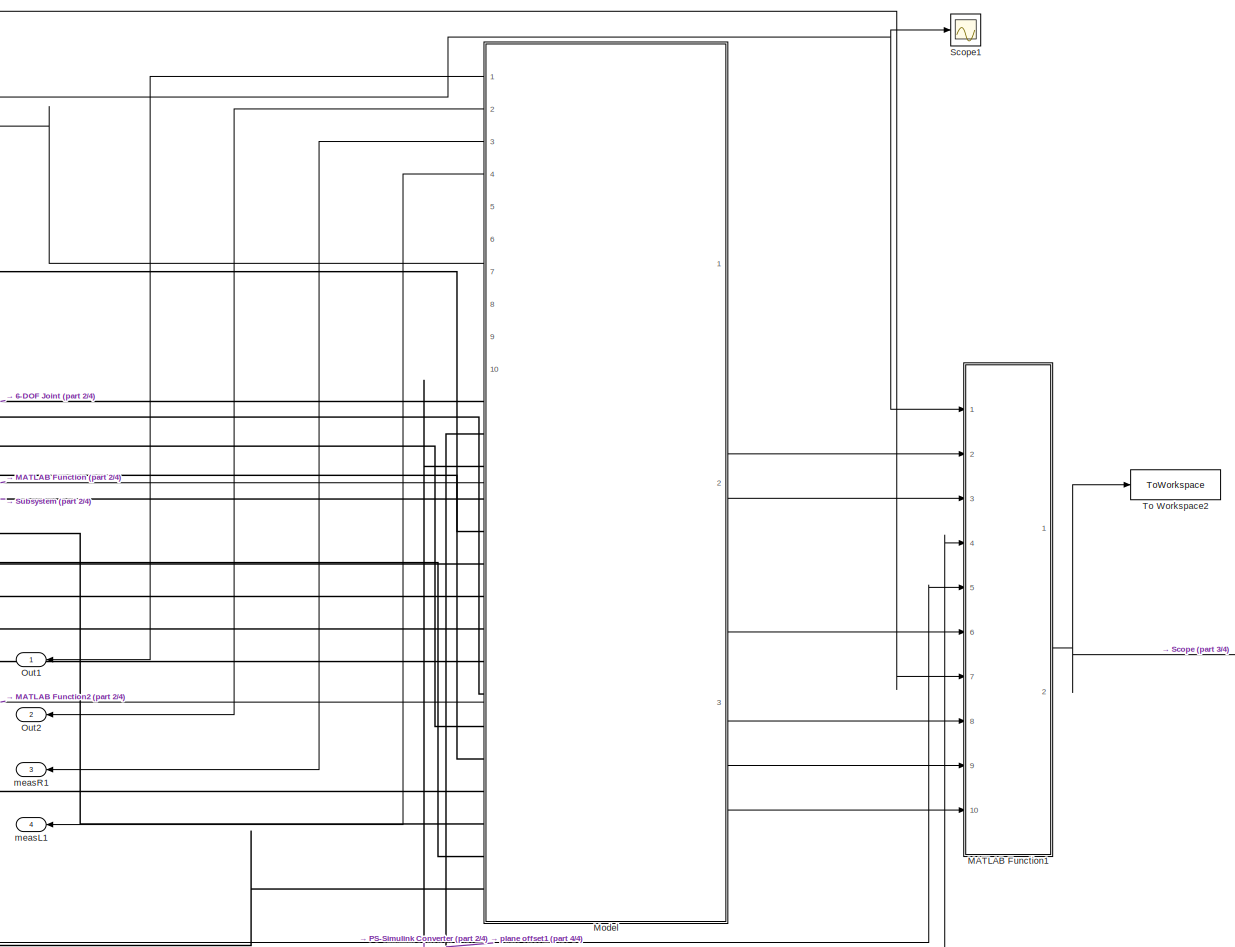
[diagram: root canvas - part 1/4, right side, full height]
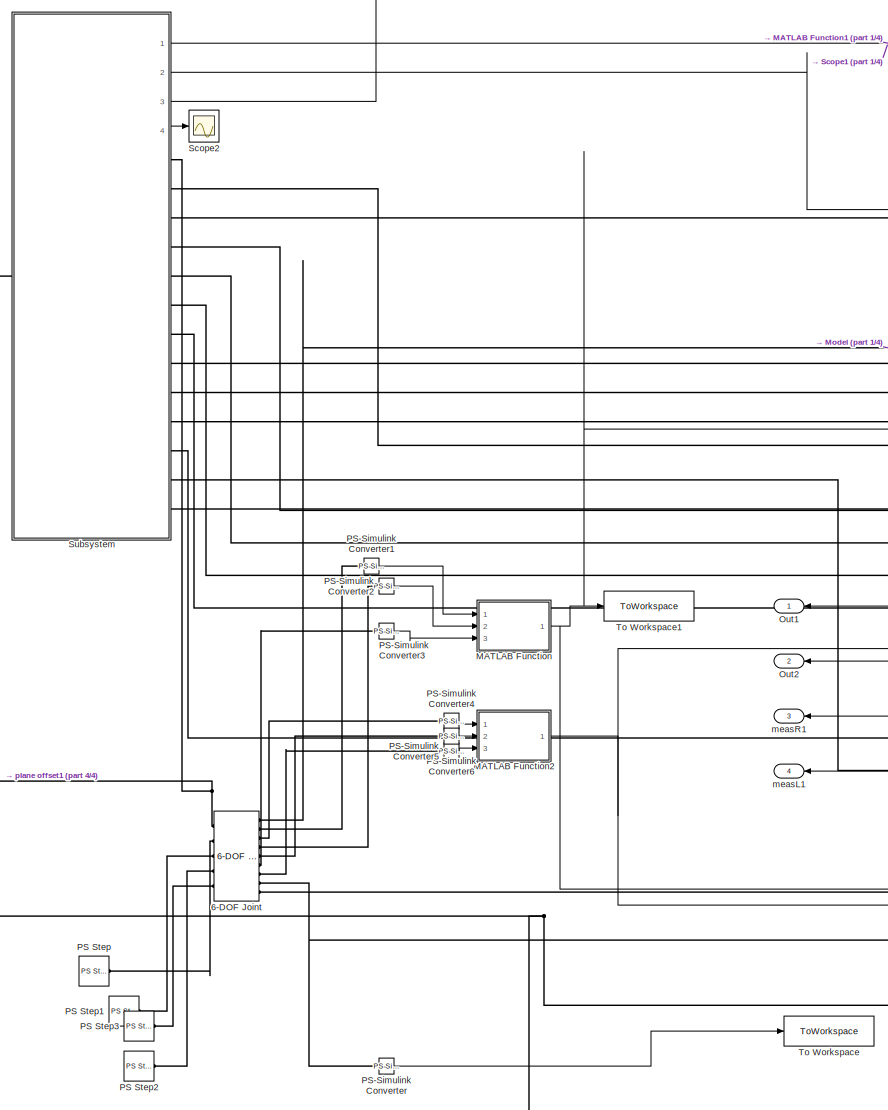
[diagram: root canvas - part 2/4, center side, full height]
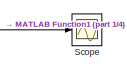
[diagram: root canvas - part 3/4, middle right region]
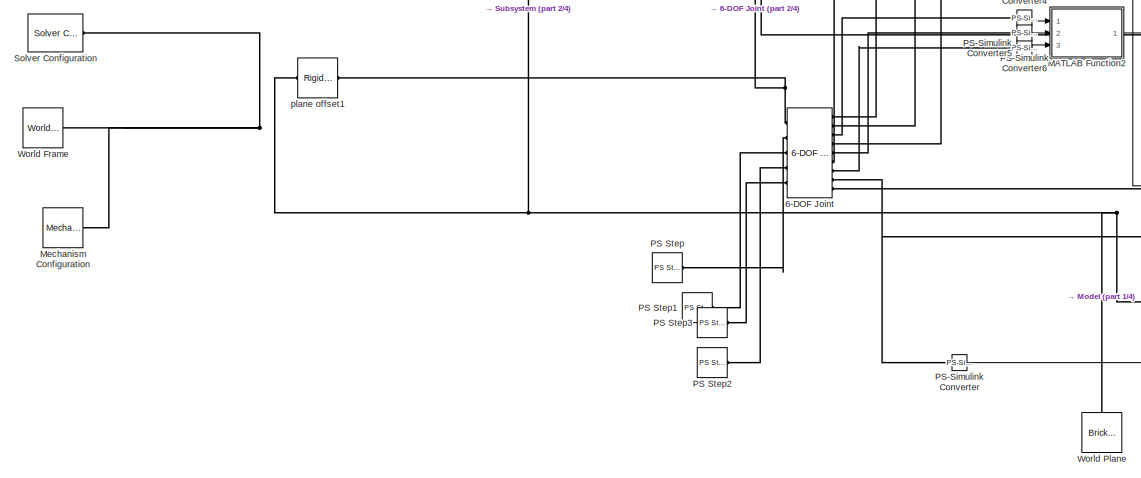
[diagram: root canvas - part 4/4, bottom left region]
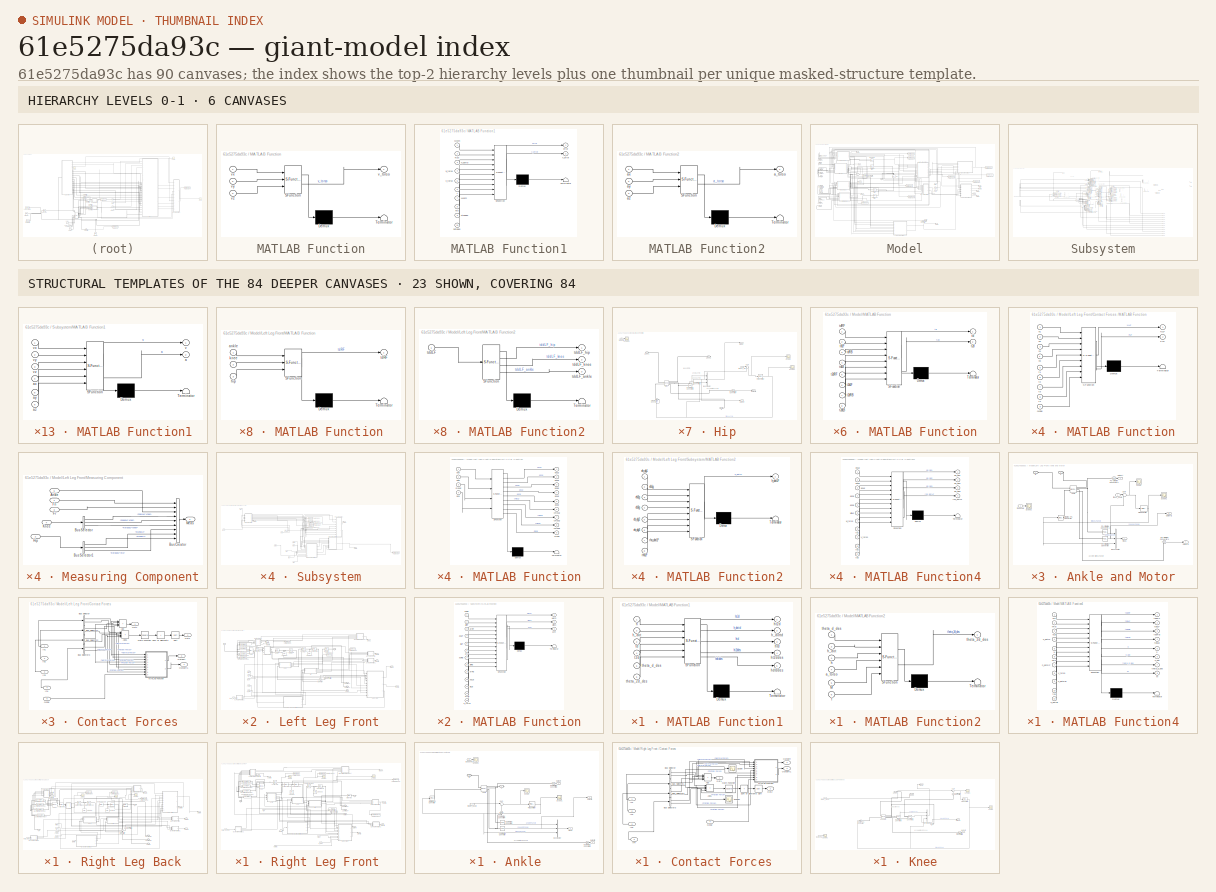
[diagram: thumbnail index - top-2 hierarchy levels (6 canvases) + 23 structural-template representatives of the remaining 84 canvases]
MODEL slx_61e5275da93c
KIND model
CONFIG AbsTol = auto
CONFIG EnableMultiTasking = on
CONFIG FixedStep = 1e-3
CONFIG MaxStep = auto
CONFIG MinStep = auto
CONFIG RelTol = 1e-6
CONFIG SampleTimeConstraint = Unconstrained
CONFIG SolverName = ode14x
CONFIG StartTime = 0.0
CONFIG StopTime = 10
BLOCK [Reference] 6-DOF Joint  REF=sm_lib/Joints/6-DOF Joint
  Ports = [0, 0, 0, 0, 0, 5, 9]
  SourceBlock = sm_lib/Joints/6-DOF Joint
  SourceProductBaseCode = MS
  SourceType = 6-DOF Joint
BLOCK [SubSystem] MATLAB Function
  ErrorFcn = Stateflow.Translate.translate
  PermitHierarchicalResolution = ExplicitOnly
  Ports = [3, 1]
  RequestExecContextInheritance = off
  SFBlockType = MATLAB Function
  TreatAsAtomicUnit = on
BLOCK [Demux] MATLAB Function/ Demux 
  Outputs = 1
  Ports = [1, 1]
BLOCK [S-Function] MATLAB Function/ SFunction 
  EnableBusSupport = on
  FunctionName = sf_sfun
  PortCounts = [3 2]
  Ports = [3, 2]
  SFcnIsStateOwnerBlock = off
  SFunctionDeploymentMode = off
  Tag = Stateflow S-Function 14
BLOCK [Terminator] MATLAB Function/ Terminator 
BLOCK [Outport] MATLAB Function/v_torso
BLOCK [Inport] MATLAB Function/vx
BLOCK [Inport] MATLAB Function/vy
  Port = 2
BLOCK [Inport] MATLAB Function/vz
  Port = 3
BLOCK [SubSystem] MATLAB Function1
  ErrorFcn = Stateflow.Translate.translate
  PermitHierarchicalResolution = ExplicitOnly
  Ports = [10, 2]
  RequestExecContextInheritance = off
  SFBlockType = MATLAB Function
  TreatAsAtomicUnit = on
BLOCK [Demux] MATLAB Function1/ Demux 
  Outputs = 1
  Ports = [1, 1]
BLOCK [S-Function] MATLAB Function1/ SFunction 
  EnableBusSupport = on
  FunctionName = sf_sfun
  PortCounts = [10 3]
  Ports = [10, 3]
  SFcnIsStateOwnerBlock = off
  SFunctionDeploymentMode = off
  Tag = Stateflow S-Function 35
BLOCK [Terminator] MATLAB Function1/ Terminator 
BLOCK [Inport] MATLAB Function1/Macm
  Port = 7
BLOCK [Inport] MATLAB Function1/Mvcm
BLOCK [Inport] MATLAB Function1/a_torso
  Port = 4
BLOCK [Outport] MATLAB Function1/error
BLOCK [Inport] MATLAB Function1/f
  Port = 6
BLOCK [Inport] MATLAB Function1/h_dottd
  Port = 3
BLOCK [Inport] MATLAB Function1/hdtddes
  Port = 10
BLOCK [Inport] MATLAB Function1/ht2d
  Port = 2
BLOCK [Inport] MATLAB Function1/ht2ddes
  Port = 9
BLOCK [Inport] MATLAB Function1/htd
  Port = 8
BLOCK [Outport] MATLAB Function1/v_error
  Port = 2
BLOCK [Inport] MATLAB Function1/v_torso
  Port = 5
BLOCK [SubSystem] MATLAB Function2
  ErrorFcn = Stateflow.Translate.translate
  PermitHierarchicalResolution = ExplicitOnly
  Ports = [3, 1]
  RequestExecContextInheritance = off
  SFBlockType = MATLAB Function
  TreatAsAtomicUnit = on
BLOCK [Demux] MATLAB Function2/ Demux 
  Outputs = 1
  Ports = [1, 1]
BLOCK [S-Function] MATLAB Function2/ SFunction 
  EnableBusSupport = on
  FunctionName = sf_sfun
  PortCounts = [3 2]
  Ports = [3, 2]
  SFcnIsStateOwnerBlock = off
  SFunctionDeploymentMode = off
  Tag = Stateflow S-Function 46
BLOCK [Terminator] MATLAB Function2/ Terminator 
BLOCK [Outport] MATLAB Function2/a_torso
BLOCK [Inport] MATLAB Function2/ax
BLOCK [Inport] MATLAB Function2/ay
  Port = 2
BLOCK [Inport] MATLAB Function2/az
  Port = 3
BLOCK [Reference] Mechanism Configuration  REF=sm_lib/Utilities/Mechanism
Configuration
  Ports = [0, 0, 0, 0, 0, 0, 1]
  SourceBlock = sm_lib/Utilities/Mechanism\nConfiguration
  SourceProductBaseCode = MS
  SourceType = Mechanism\nConfiguration
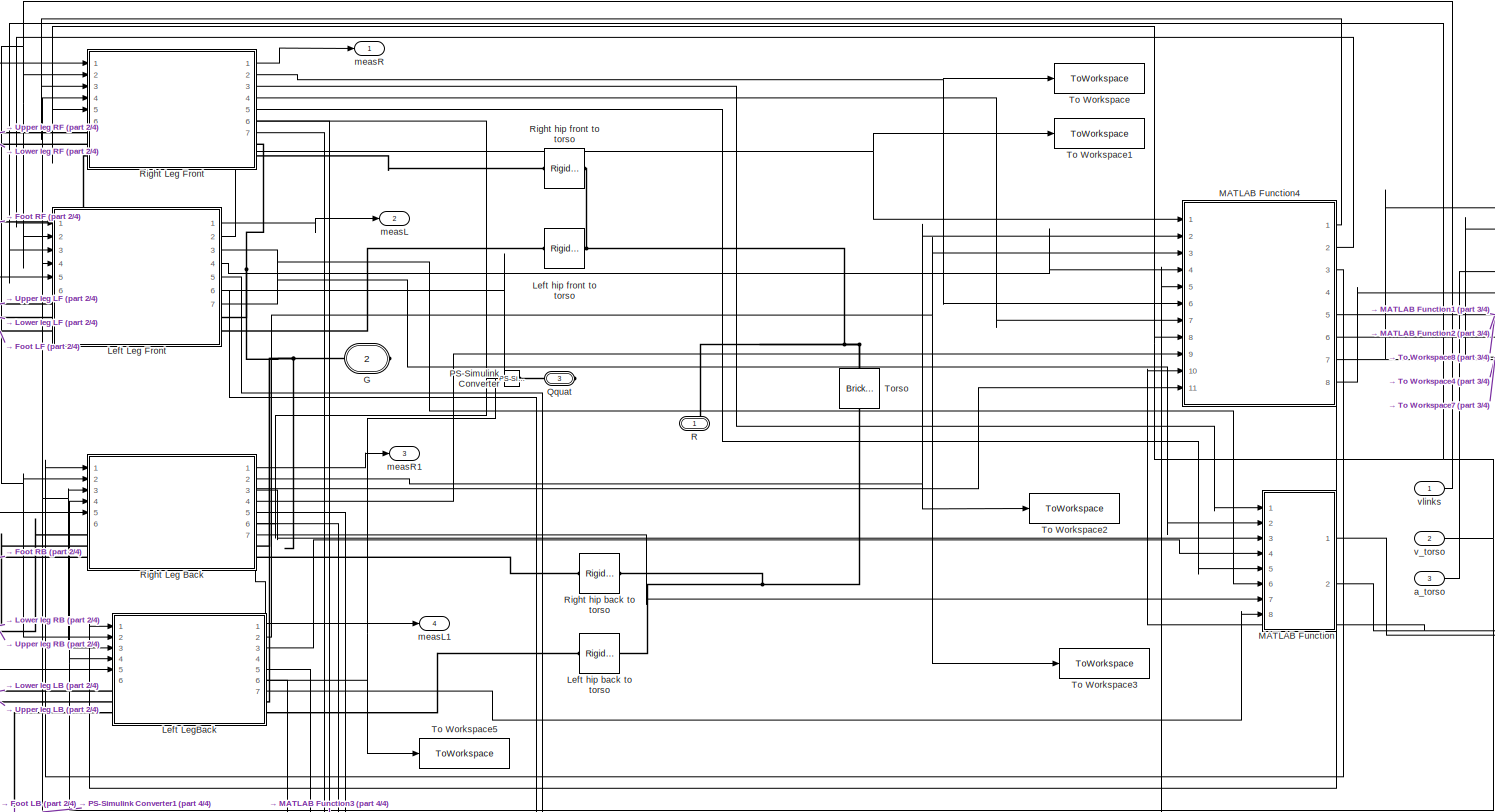
[diagram: Model - part 1/4, central region]
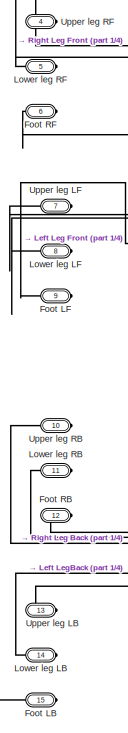
[diagram: Model - part 2/4, middle left region]
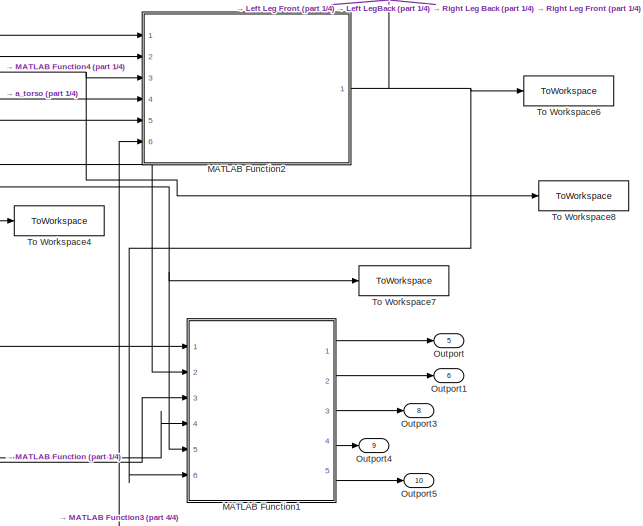
[diagram: Model - part 3/4, middle right region]
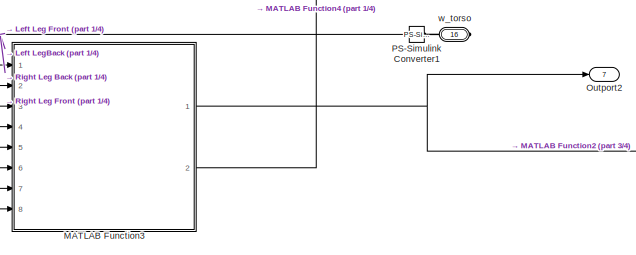
[diagram: Model - part 4/4, bottom center region]
BLOCK [SubSystem] Model
  PortSchema = {"entries":[{"content":{"sides":[{"content":{"connectorIds":["Out5","Out6","Out7","Out8","Out9","Out10"]},"type":"ConnectorPlacement.EquallySpacedRectSide","uuid":"648e0f1c-94fd-432d-b314-f859853b28dc"},{"content":{"connectorIds":["In1","Out1","Out2","In2","Out3","Out4","RConn1","RConn2","RConn3","RConn4","RConn5","RConn6","RConn7","RConn8","RConn9","RConn10","RConn11","RConn12","RConn13","RConn14...<+611ch>
  Ports = [3, 10, 0, 0, 0, 0, 16]
  RequestExecContextInheritance = off
BLOCK [PMIOPort] Model/Foot LB
  Port = 15
  Side = Right
BLOCK [PMIOPort] Model/Foot LF
  Port = 9
  Side = Right
BLOCK [PMIOPort] Model/Foot RB
  Port = 12
  Side = Right
BLOCK [PMIOPort] Model/Foot RF
  Port = 6
  Side = Right
BLOCK [PMIOPort] Model/G
  Port = 2
  Side = Right
BLOCK [SubSystem] Model/Left Leg Front
  PortSchema = {"entries":[{"content":{"sides":[{"content":{"connectorIds":["In1","LConn1","LConn2","In2","In3","In4","In5","LConn3"]},"type":"ConnectorPlacement.EquallySpacedRectSide","uuid":"1507813e-36a9-49af-9b0a-e3846bbe4283"},{"content":{"connectorIds":["Out1","Out2","Out3","In6","RConn1","RConn2","Out4","Out5","Out6","Out7"],"side":"RIGHT"},"type":"ConnectorPlacement.EquallySpacedRectSide","uuid":"5066f35...<+357ch>
  Ports = [6, 7, 0, 0, 0, 3, 2]
  RequestExecContextInheritance = off
BLOCK [SubSystem] Model/Left Leg Front/Ankle and Motor
  PortSchema = {"entries":[{"content":{"sides":[{"content":{"connectorIds":["In1","LConn1","In2"]},"type":"ConnectorPlacement.EquallySpacedRectSide","uuid":"8820d672-3cef-4e81-999d-8ce69d7112c4"},{"content":{"connectorIds":["Out1","Out2","Out3","Out4","RConn1"],"side":"RIGHT"},"type":"ConnectorPlacement.EquallySpacedRectSide","uuid":"2ab010ff-dc37-45a7-8249-0a0b10f28039"},{"content":{"connectorIds":[],"side":"TO...<+285ch>
  Ports = [2, 4, 0, 0, 0, 1, 1]
  RequestExecContextInheritance = off
BLOCK [Reference] Model/Left Leg Front/Ankle and Motor/Ankle  REF=sm_lib/Joints/Revolute Joint
  Ports = [0, 0, 0, 0, 0, 2, 4]
  SourceBlock = sm_lib/Joints/Revolute Joint
  SourceProductBaseCode = MS
  SourceType = Revolute Joint
BLOCK [PMIOPort] Model/Left Leg Front/Ankle and Motor/B
  Side = Left
BLOCK [BusCreator] Model/Left Leg Front/Ankle and Motor/Bus Creator
  DisplayOption = bar
  InheritFromInputs = on
  Inputs = 3
  Ports = [3, 1]
BLOCK [PMIOPort] Model/Left Leg Front/Ankle and Motor/F
  Port = 2
  Side = Right
BLOCK [Outport] Model/Left Leg Front/Ankle and Motor/Outport
  Port = 2
BLOCK [Outport] Model/Left Leg Front/Ankle and Motor/Outport1
  Port = 3
BLOCK [Outport] Model/Left Leg Front/Ankle and Motor/Outport2
  Port = 4
BLOCK [Reference] Model/Left Leg Front/Ankle and Motor/PID Controller  REF=pid_lib/PID Controller
  Ports = [1, 1]
  SourceBlock = pid_lib/PID Controller
  SourceProductBaseCode = SL
  SourceType = PID 1dof
BLOCK [Reference] Model/Left Leg Front/Ankle and Motor/PS-Simulink Converter  REF=nesl_utility/PS-Simulink
Converter
  NameLocation = top
  Ports = [0, 1, 0, 0, 0, 1]
  SourceBlock = nesl_utility/PS-Simulink\nConverter
  SourceProductBaseCode = PW,SS
  SourceType = PS-Simulink\nConverter
BLOCK [Reference] Model/Left Leg Front/Ankle and Motor/PS-Simulink Converter1  REF=nesl_utility/PS-Simulink
Converter
  Ports = [0, 1, 0, 0, 0, 1]
  SourceBlock = nesl_utility/PS-Simulink\nConverter
  SourceProductBaseCode = PW,SS
  SourceType = PS-Simulink\nConverter
BLOCK [Reference] Model/Left Leg Front/Ankle and Motor/PS-Simulink Converter2  REF=nesl_utility/PS-Simulink
Converter
  Ports = [0, 1, 0, 0, 0, 1]
  SourceBlock = nesl_utility/PS-Simulink\nConverter
  SourceProductBaseCode = PW,SS
  SourceType = PS-Simulink\nConverter
BLOCK [Reference] Model/Left Leg Front/Ankle and Motor/PS-Simulink Converter3  REF=nesl_utility/PS-Simulink
Converter
  Ports = [0, 1, 0, 0, 0, 1]
  SourceBlock = nesl_utility/PS-Simulink\nConverter
  SourceProductBaseCode = PW,SS
  SourceType = PS-Simulink\nConverter
BLOCK [Scope] Model/Left Leg Front/Ankle and Motor/Scope
  Floating = off
  NumInputPorts = 1
  Ports = [1]
  ScopeSpecificationString = Simulink.scopes.TimeScopeBlockCfg('CurrentConfiguration', extmgr.ConfigurationSet(extmgr.Configuration('Core','General UI',true),extmgr.Configuration('Core','Source UI',true),extmgr.Configuration('Sources','WiredSimulink',true,'DataLoggingVariableName','ScopeData7'),extmgr.Configuration('Visuals','Time Domain',true,'SerializedDisplays',{struct('MinYLimReal','-0.00596','MaxYLimReal','0.00074','YLab...<+1362ch>
BLOCK [Scope] Model/Left Leg Front/Ankle and Motor/Scope1
  Floating = off
  NumInputPorts = 1
  Ports = [1]
  ScopeSpecificationString = Simulink.scopes.TimeScopeBlockCfg('CurrentConfiguration', extmgr.ConfigurationSet(extmgr.Configuration('Core','General UI',true),extmgr.Configuration('Core','Source UI',true),extmgr.Configuration('Sources','WiredSimulink',true,'DataLoggingVariableName','ScopeData8'),extmgr.Configuration('Visuals','Time Domain',true,'SerializedDisplays',{struct('MinYLimReal','-0.92327','MaxYLimReal','0.26178','YLab...<+1401ch>
BLOCK [Scope] Model/Left Leg Front/Ankle and Motor/Scope2
  Floating = off
  NumInputPorts = 1
  Ports = [1]
  ScopeSpecificationString = Simulink.scopes.TimeScopeBlockCfg('CurrentConfiguration', extmgr.ConfigurationSet(extmgr.Configuration('Core','General UI',true),extmgr.Configuration('Core','Source UI',true),extmgr.Configuration('Sources','WiredSimulink',true,'DataLoggingVariableName','ScopeData7'),extmgr.Configuration('Visuals','Time Domain',true),extmgr.Configuration('Tools','Plot Navigation',true),extmgr.Configuration('Tools',...<+40ch>
BLOCK [Reference] Model/Left Leg Front/Ankle and Motor/Simulink-PS Converter  REF=nesl_utility/Simulink-PS
Converter
  Ports = [1, 0, 0, 0, 0, 0, 1]
  SourceBlock = nesl_utility/Simulink-PS\nConverter
  SourceProductBaseCode = PW,SS
  SourceType = Simulink-PS\nConverter
BLOCK [Sum] Model/Left Leg Front/Ankle and Motor/Sum
  Inputs = |+-
  Ports = [2, 1]
BLOCK [Outport] Model/Left Leg Front/Ankle and Motor/meas
  VectorParamsAs1DForOutWhenUnconnected = off
BLOCK [Inport] Model/Left Leg Front/Ankle and Motor/t2ddankle
  Port = 2
BLOCK [Inport] Model/Left Leg Front/Ankle and Motor/tddLF_ankle
BLOCK [Reference] Model/Left Leg Front/Ankle to Lower Leg1  REF=sm_lib/Frames and
Transforms/Rigid
Transform
  Ports = [0, 0, 0, 0, 0, 1, 1]
  SourceBlock = sm_lib/Frames and\nTransforms/Rigid\nTransform
  SourceProductBaseCode = MS
  SourceType = Rigid\nTransform
BLOCK [SubSystem] Model/Left Leg Front/Contact Forces 
  PortSchema = {"entries":[{"content":{"sides":[{"content":{"connectorIds":["In1","In2","In3","In4"]},"type":"ConnectorPlacement.EquallySpacedRectSide","uuid":"092bab02-781e-4e8b-aeea-5de78c3a7c59"},{"content":{"connectorIds":["Out1","Out2","Out3","Out4"],"side":"RIGHT"},"type":"ConnectorPlacement.EquallySpacedRectSide","uuid":"1414f239-400a-4e7a-8cfa-bc0efd263a34"},{"content":{"connectorIds":[],"side":"TOP"},"t...<+428ch>  <repeated x3 — deduplicated; at blocks: Contact Forces>
  Ports = [5, 4]
  RequestExecContextInheritance = off
BLOCK [Sum] Model/Left Leg Front/Contact Forces /Add
  IconShape = rectangular
  Inputs = ++++
  Ports = [4, 1]
BLOCK [Sum] Model/Left Leg Front/Contact Forces /Add1
  IconShape = rectangular
  Inputs = ++++
  Ports = [4, 1]
BLOCK [BusSelector] Model/Left Leg Front/Contact Forces /Bus Selector
  OutputSignals = Normal Force,Friction Force
  Ports = [1, 2]
BLOCK [BusSelector] Model/Left Leg Front/Contact Forces /Bus Selector1
  OutputSignals = Normal Force,Friction Force
  Ports = [1, 2]
BLOCK [BusSelector] Model/Left Leg Front/Contact Forces /Bus Selector2
  OutputSignals = Normal Force,Friction Force
  Ports = [1, 2]
BLOCK [BusSelector] Model/Left Leg Front/Contact Forces /Bus Selector3
  OutputSignals = Normal Force,Friction Force
  Ports = [1, 2]
BLOCK [Inport] Model/Left Leg Front/Contact Forces /In1
BLOCK [Inport] Model/Left Leg Front/Contact Forces /In2
  Port = 2
BLOCK [Inport] Model/Left Leg Front/Contact Forces /In3
  Port = 3
BLOCK [Inport] Model/Left Leg Front/Contact Forces /In4
  Port = 4
BLOCK [SubSystem] Model/Left Leg Front/Contact Forces /MATLAB Function
  ErrorFcn = Stateflow.Translate.translate
  PermitHierarchicalResolution = ExplicitOnly
  Ports = [9, 2]
  RequestExecContextInheritance = off
  SFBlockType = MATLAB Function
  TreatAsAtomicUnit = on
BLOCK [Demux] Model/Left Leg Front/Contact Forces /MATLAB Function/ Demux 
  Outputs = 1
  Ports = [1, 1]
BLOCK [S-Function] Model/Left Leg Front/Contact Forces /MATLAB Function/ SFunction 
  EnableBusSupport = on
  FunctionName = sf_sfun
  PortCounts = [9 3]
  Ports = [9, 3]
  SFcnIsStateOwnerBlock = off
  SFunctionDeploymentMode = off
  Tag = Stateflow S-Function 47
BLOCK [Terminator] Model/Left Leg Front/Contact Forces /MATLAB Function/ Terminator 
BLOCK [Outport] Model/Left Leg Front/Contact Forces /MATLAB Function/FLF
  Port = 2
BLOCK [Outport] Model/Left Leg Front/Contact Forces /MATLAB Function/NLF
BLOCK [Inport] Model/Left Leg Front/Contact Forces /MATLAB Function/Qd3g
  Port = 9
BLOCK [Inport] Model/Left Leg Front/Contact Forces /MATLAB Function/f1
  Port = 5
BLOCK [Inport] Model/Left Leg Front/Contact Forces /MATLAB Function/f2
  Port = 6
BLOCK [Inport] Model/Left Leg Front/Contact Forces /MATLAB Function/f3
  Port = 7
BLOCK [Inport] Model/Left Leg Front/Contact Forces /MATLAB Function/f4
  Port = 8
BLOCK [Inport] Model/Left Leg Front/Contact Forces /MATLAB Function/n1
BLOCK [Inport] Model/Left Leg Front/Contact Forces /MATLAB Function/n2
  Port = 2
BLOCK [Inport] Model/Left Leg Front/Contact Forces /MATLAB Function/n3
  Port = 4
BLOCK [Inport] Model/Left Leg Front/Contact Forces /MATLAB Function/n4
  Port = 3
BLOCK [Math] Model/Left Leg Front/Contact Forces /Math Function
  Operator = square
  Ports = [1, 1]
  SignedPower = on
BLOCK [Outport] Model/Left Leg Front/Contact Forces /Out1
  VectorParamsAs1DForOutWhenUnconnected = off
BLOCK [Outport] Model/Left Leg Front/Contact Forces /Out2
  Port = 2
  VectorParamsAs1DForOutWhenUnconnected = off
BLOCK [Outport] Model/Left Leg Front/Contact Forces /Outport
  Port = 3
BLOCK [Outport] Model/Left Leg Front/Contact Forces /Outport1
  Port = 4
BLOCK [Inport] Model/Left Leg Front/Contact Forces /Qd3g
  Port = 5
BLOCK [Sqrt] Model/Left Leg Front/Contact Forces /Sqrt
BLOCK [Sum] Model/Left Leg Front/Contact Forces /Sum of Elements
  IconShape = rectangular
  Inputs = +
  Ports = [1, 1]
BLOCK [PMIOPort] Model/Left Leg Front/Foot LF
  NameLocation = top
  Port = 3
  Side = Left
BLOCK [Reference] Model/Left Leg Front/Foot to Ankle1  REF=sm_lib/Frames and
Transforms/Rigid
Transform
  Ports = [0, 0, 0, 0, 0, 1, 1]
  SourceBlock = sm_lib/Frames and\nTransforms/Rigid\nTransform
  SourceProductBaseCode = MS
  SourceType = Rigid\nTransform
BLOCK [Reference] Model/Left Leg Front/Foot1  REF=sm_lib/Body Elements/Brick Solid
  Ports = [0, 0, 0, 0, 0, 3, 2]
  SourceBlock = sm_lib/Body Elements/Brick Solid
  SourceProductBaseCode = MS
  SourceType = Brick Solid
BLOCK [PMIOPort] Model/Left Leg Front/G
  Port = 4
  Side = Right
BLOCK [PMIOPort] Model/Left Leg Front/H
  Port = 5
  Side = Right
BLOCK [SubSystem] Model/Left Leg Front/Hip
  PortSchema = {"entries":[{"content":{"sides":[{"content":{"connectorIds":["LConn1","In1","In2","LConn2"]},"type":"ConnectorPlacement.EquallySpacedRectSide","uuid":"3c672348-e331-4589-83a8-aa84cb04ec22"},{"content":{"connectorIds":["Out1","Out2","Out3","RConn1"],"side":"RIGHT"},"type":"ConnectorPlacement.EquallySpacedRectSide","uuid":"0cc20eac-f861-4ef7-921b-23889a7eea47"},{"content":{"connectorIds":[],"side":"...<+287ch>  <repeated x6 — deduplicated; at blocks: Hip, Knee>
  Ports = [2, 3, 0, 0, 0, 2, 1]
  RequestExecContextInheritance = off
BLOCK [Reference] Model/Left Leg Front/Hip to World1  REF=sm_lib/Frames and
Transforms/Rigid
Transform
  Ports = [0, 0, 0, 0, 0, 1, 1]
  SourceBlock = sm_lib/Frames and\nTransforms/Rigid\nTransform
  SourceProductBaseCode = MS
  SourceType = Rigid\nTransform
BLOCK [BusCreator] Model/Left Leg Front/Hip/Bus Creator
  DisplayOption = bar
  InheritFromInputs = on
  Inputs = 3
  Ports = [3, 1]
BLOCK [PMIOPort] Model/Left Leg Front/Hip/Conn1
  Side = Left
BLOCK [PMIOPort] Model/Left Leg Front/Hip/Conn2
  Port = 2
  Side = Right
BLOCK [Reference] Model/Left Leg Front/Hip/Hip1  REF=sm_lib/Joints/Revolute Joint
  Ports = [0, 0, 0, 0, 0, 2, 4]
  SourceBlock = sm_lib/Joints/Revolute Joint
  SourceProductBaseCode = MS
  SourceType = Revolute Joint
BLOCK [Outport] Model/Left Leg Front/Hip/Outport
  Port = 2
BLOCK [Outport] Model/Left Leg Front/Hip/Outport1
  Port = 3
BLOCK [Reference] Model/Left Leg Front/Hip/PID Controller  REF=pid_lib/PID Controller
  Ports = [1, 1]
  SourceBlock = pid_lib/PID Controller
  SourceProductBaseCode = SL
  SourceType = PID 1dof
BLOCK [Reference] Model/Left Leg Front/Hip/PS-Simulink Converter  REF=nesl_utility/PS-Simulink
Converter
  Ports = [0, 1, 0, 0, 0, 1]
  SourceBlock = nesl_utility/PS-Simulink\nConverter
  SourceProductBaseCode = PW,SS
  SourceType = PS-Simulink\nConverter
BLOCK [Reference] Model/Left Leg Front/Hip/PS-Simulink Converter1  REF=nesl_utility/PS-Simulink
Converter
  Ports = [0, 1, 0, 0, 0, 1]
  SourceBlock = nesl_utility/PS-Simulink\nConverter
  SourceProductBaseCode = PW,SS
  SourceType = PS-Simulink\nConverter
BLOCK [Reference] Model/Left Leg Front/Hip/PS-Simulink Converter3  REF=nesl_utility/PS-Simulink
Converter
  Ports = [0, 1, 0, 0, 0, 1]
  SourceBlock = nesl_utility/PS-Simulink\nConverter
  SourceProductBaseCode = PW,SS
  SourceType = PS-Simulink\nConverter
BLOCK [Scope] Model/Left Leg Front/Hip/Scope
  Floating = off
  NumInputPorts = 1
  Ports = [1]
  ScopeSpecificationString = Simulink.scopes.TimeScopeBlockCfg('CurrentConfiguration', extmgr.ConfigurationSet(extmgr.Configuration('Core','General UI',true),extmgr.Configuration('Core','Source UI',true),extmgr.Configuration('Sources','WiredSimulink',true,'DataLoggingVariableName','ScopeData11'),extmgr.Configuration('Visuals','Time Domain',true),extmgr.Configuration('Tools','Plot Navigation',true),extmgr.Configuration('Tools'...<+41ch>
BLOCK [Scope] Model/Left Leg Front/Hip/Scope1
  Floating = off
  NumInputPorts = 1
  Ports = [1]
  ScopeSpecificationString = Simulink.scopes.TimeScopeBlockCfg('CurrentConfiguration', extmgr.ConfigurationSet(extmgr.Configuration('Core','General UI',true),extmgr.Configuration('Core','Source UI',true),extmgr.Configuration('Sources','WiredSimulink',true,'DataLoggingVariableName','ScopeData12'),extmgr.Configuration('Visuals','Time Domain',true),extmgr.Configuration('Tools','Plot Navigation',true),extmgr.Configuration('Tools'...<+41ch>
BLOCK [Scope] Model/Left Leg Front/Hip/Scope2
  Floating = off
  NumInputPorts = 1
  Ports = [1]
  ScopeSpecificationString = Simulink.scopes.TimeScopeBlockCfg('CurrentConfiguration', extmgr.ConfigurationSet(extmgr.Configuration('Core','General UI',true),extmgr.Configuration('Core','Source UI',true),extmgr.Configuration('Sources','WiredSimulink',true,'DataLoggingVariableName','ScopeData9'),extmgr.Configuration('Visuals','Time Domain',true),extmgr.Configuration('Tools','Plot Navigation',true),extmgr.Configuration('Tools',...<+40ch>
BLOCK [Reference] Model/Left Leg Front/Hip/Simulink-PS Converter  REF=nesl_utility/Simulink-PS
Converter
  NameLocation = top
  Ports = [1, 0, 0, 0, 0, 0, 1]
  SourceBlock = nesl_utility/Simulink-PS\nConverter
  SourceProductBaseCode = PW,SS
  SourceType = Simulink-PS\nConverter
BLOCK [Sum] Model/Left Leg Front/Hip/Sum
  Inputs = |+-
  Ports = [2, 1]
BLOCK [Outport] Model/Left Leg Front/Hip/meas
BLOCK [PMIOPort] Model/Left Leg Front/Hip/q
  Port = 3
  Side = Left
BLOCK [Inport] Model/Left Leg Front/Hip/t2ddhip
  Port = 2
BLOCK [Inport] Model/Left Leg Front/Hip/tddLF_hip
BLOCK [Inport] Model/Left Leg Front/In2
  Port = 6
BLOCK [SubSystem] Model/Left Leg Front/Knee
  Ports = [2, 3, 0, 0, 0, 2, 1]
  RequestExecContextInheritance = off
BLOCK [Reference] Model/Left Leg Front/Knee to Upper Leg1  REF=sm_lib/Frames and
Transforms/Rigid
Transform
  Ports = [0, 0, 0, 0, 0, 1, 1]
  SourceBlock = sm_lib/Frames and\nTransforms/Rigid\nTransform
  SourceProductBaseCode = MS
  SourceType = Rigid\nTransform
BLOCK [BusCreator] Model/Left Leg Front/Knee/Bus Creator
  DisplayOption = bar
  InheritFromInputs = on
  Inputs = 3
  Ports = [3, 1]
BLOCK [PMIOPort] Model/Left Leg Front/Knee/Conn1
  Side = Right
BLOCK [PMIOPort] Model/Left Leg Front/Knee/Conn2
  Port = 2
  Side = Left
BLOCK [Reference] Model/Left Leg Front/Knee/Knee1  REF=sm_lib/Joints/Revolute Joint
  Ports = [0, 0, 0, 0, 0, 2, 4]
  SourceBlock = sm_lib/Joints/Revolute Joint
  SourceProductBaseCode = MS
  SourceType = Revolute Joint
BLOCK [Outport] Model/Left Leg Front/Knee/Outport
  Port = 2
BLOCK [Outport] Model/Left Leg Front/Knee/Outport1
  Port = 3
BLOCK [Reference] Model/Left Leg Front/Knee/PID Controller  REF=pid_lib/PID Controller
  Ports = [1, 1]
  SourceBlock = pid_lib/PID Controller
  SourceProductBaseCode = SL
  SourceType = PID 1dof
BLOCK [Reference] Model/Left Leg Front/Knee/PS-Simulink Converter  REF=nesl_utility/PS-Simulink
Converter
  Ports = [0, 1, 0, 0, 0, 1]
  SourceBlock = nesl_utility/PS-Simulink\nConverter
  SourceProductBaseCode = PW,SS
  SourceType = PS-Simulink\nConverter
BLOCK [Reference] Model/Left Leg Front/Knee/PS-Simulink Converter1  REF=nesl_utility/PS-Simulink
Converter
  Ports = [0, 1, 0, 0, 0, 1]
  SourceBlock = nesl_utility/PS-Simulink\nConverter
  SourceProductBaseCode = PW,SS
  SourceType = PS-Simulink\nConverter
BLOCK [Reference] Model/Left Leg Front/Knee/PS-Simulink Converter3  REF=nesl_utility/PS-Simulink
Converter
  Ports = [0, 1, 0, 0, 0, 1]
  SourceBlock = nesl_utility/PS-Simulink\nConverter
  SourceProductBaseCode = PW,SS
  SourceType = PS-Simulink\nConverter
BLOCK [Scope] Model/Left Leg Front/Knee/Scope
  Floating = off
  NumInputPorts = 1
  Ports = [1]
  ScopeSpecificationString = Simulink.scopes.TimeScopeBlockCfg('CurrentConfiguration', extmgr.ConfigurationSet(extmgr.Configuration('Core','General UI',true),extmgr.Configuration('Core','Source UI',true),extmgr.Configuration('Sources','WiredSimulink',true,'DataLoggingVariableName','ScopeData9'),extmgr.Configuration('Visuals','Time Domain',true,'SerializedDisplays',{struct('MinYLimReal','-4.53027','MaxYLimReal','0.50337','YLab...<+1362ch>
BLOCK [Scope] Model/Left Leg Front/Knee/Scope1
  Floating = off
  NumInputPorts = 1
  Ports = [1]
  ScopeSpecificationString = Simulink.scopes.TimeScopeBlockCfg('CurrentConfiguration', extmgr.ConfigurationSet(extmgr.Configuration('Core','General UI',true),extmgr.Configuration('Core','Source UI',true),extmgr.Configuration('Sources','WiredSimulink',true,'DataLoggingVariableName','ScopeData10'),extmgr.Configuration('Visuals','Time Domain',true,'SerializedDisplays',{struct('MinYLimReal','-30667.71655','MaxYLimReal','3407.653'...<+1396ch>
BLOCK [Scope] Model/Left Leg Front/Knee/Scope2
  Floating = off
  NumInputPorts = 1
  Ports = [1]
  ScopeSpecificationString = Simulink.scopes.TimeScopeBlockCfg('CurrentConfiguration', extmgr.ConfigurationSet(extmgr.Configuration('Core','General UI',true),extmgr.Configuration('Core','Source UI',true),extmgr.Configuration('Sources','WiredSimulink',true,'DataLoggingVariableName','ScopeData8'),extmgr.Configuration('Visuals','Time Domain',true),extmgr.Configuration('Tools','Plot Navigation',true),extmgr.Configuration('Tools',...<+40ch>
BLOCK [Reference] Model/Left Leg Front/Knee/Simulink-PS Converter  REF=nesl_utility/Simulink-PS
Converter
  NameLocation = top
  Ports = [1, 0, 0, 0, 0, 0, 1]
  SourceBlock = nesl_utility/Simulink-PS\nConverter
  SourceProductBaseCode = PW,SS
  SourceType = Simulink-PS\nConverter
BLOCK [Sum] Model/Left Leg Front/Knee/Sum
  Inputs = |+-
  Ports = [2, 1]
BLOCK [Outport] Model/Left Leg Front/Knee/meas
BLOCK [PMIOPort] Model/Left Leg Front/Knee/q
  Port = 3
  Side = Left
BLOCK [Inport] Model/Left Leg Front/Knee/t2ddknee
  Port = 2
BLOCK [Inport] Model/Left Leg Front/Knee/tddLF_knee
BLOCK [Reference] Model/Left Leg Front/Lower Leg to Knee1  REF=sm_lib/Frames and
Transforms/Rigid
Transform
  Ports = [0, 0, 0, 0, 0, 1, 1]
  SourceBlock = sm_lib/Frames and\nTransforms/Rigid\nTransform
  SourceProductBaseCode = MS
  SourceType = Rigid\nTransform
BLOCK [Reference] Model/Left Leg Front/Lower Leg1  REF=sm_lib/Body Elements/Cylindrical Solid
  NameLocation = right
  Ports = [0, 0, 0, 0, 0, 0, 1]
  SourceBlock = sm_lib/Body Elements/Cylindrical Solid
  SourceProductBaseCode = MS
  SourceType = Cylindrical Solid
BLOCK [PMIOPort] Model/Left Leg Front/Lower leg LF
  NameLocation = top
  Port = 2
  Side = Left
BLOCK [SubSystem] Model/Left Leg Front/MATLAB Function
  ErrorFcn = Stateflow.Translate.translate
  PermitHierarchicalResolution = ExplicitOnly
  Ports = [3, 1]
  RequestExecContextInheritance = off
  SFBlockType = MATLAB Function
  TreatAsAtomicUnit = on
BLOCK [Demux] Model/Left Leg Front/MATLAB Function/ Demux 
  Outputs = 1
  Ports = [1, 1]
BLOCK [S-Function] Model/Left Leg Front/MATLAB Function/ SFunction 
  EnableBusSupport = on
  FunctionName = sf_sfun
  PortCounts = [3 2]
  Ports = [3, 2]
  SFcnIsStateOwnerBlock = off
  SFunctionDeploymentMode = off
  Tag = Stateflow S-Function 30
BLOCK [Terminator] Model/Left Leg Front/MATLAB Function/ Terminator 
BLOCK [Inport] Model/Left Leg Front/MATLAB Function/ankle
BLOCK [Inport] Model/Left Leg Front/MATLAB Function/hip
  Port = 3
BLOCK [Inport] Model/Left Leg Front/MATLAB Function/knee
  Port = 2
BLOCK [Outport] Model/Left Leg Front/MATLAB Function/tdRF
BLOCK [SubSystem] Model/Left Leg Front/MATLAB Function1
  ErrorFcn = Stateflow.Translate.translate
  PermitHierarchicalResolution = ExplicitOnly
  Ports = [3, 1]
  RequestExecContextInheritance = off
  SFBlockType = MATLAB Function
  TreatAsAtomicUnit = on
BLOCK [Demux] Model/Left Leg Front/MATLAB Function1/ Demux 
  Outputs = 1
  Ports = [1, 1]
BLOCK [S-Function] Model/Left Leg Front/MATLAB Function1/ SFunction 
  EnableBusSupport = on
  FunctionName = sf_sfun
  PortCounts = [3 2]
  Ports = [3, 2]
  SFcnIsStateOwnerBlock = off
  SFunctionDeploymentMode = off
  Tag = Stateflow S-Function 44
BLOCK [Terminator] Model/Left Leg Front/MATLAB Function1/ Terminator 
BLOCK [Inport] Model/Left Leg Front/MATLAB Function1/ankle
BLOCK [Inport] Model/Left Leg Front/MATLAB Function1/hip
  Port = 3
BLOCK [Inport] Model/Left Leg Front/MATLAB Function1/knee
  Port = 2
BLOCK [Outport] Model/Left Leg Front/MATLAB Function1/t2dLF
BLOCK [SubSystem] Model/Left Leg Front/MATLAB Function2
  ErrorFcn = Stateflow.Translate.translate
  PermitHierarchicalResolution = ExplicitOnly
  Ports = [1, 3]
  RequestExecContextInheritance = off
  SFBlockType = MATLAB Function
  TreatAsAtomicUnit = on
BLOCK [Demux] Model/Left Leg Front/MATLAB Function2/ Demux 
  Outputs = 1
  Ports = [1, 1]
BLOCK [S-Function] Model/Left Leg Front/MATLAB Function2/ SFunction 
  EnableBusSupport = on
  FunctionName = sf_sfun
  PortCounts = [1 4]
  Ports = [1, 4]
  SFcnIsStateOwnerBlock = off
  SFunctionDeploymentMode = off
  Tag = Stateflow S-Function 16
BLOCK [Terminator] Model/Left Leg Front/MATLAB Function2/ Terminator 
BLOCK [Inport] Model/Left Leg Front/MATLAB Function2/tddLF
BLOCK [Outport] Model/Left Leg Front/MATLAB Function2/tddLF_ankle
  Port = 3
BLOCK [Outport] Model/Left Leg Front/MATLAB Function2/tddLF_hip
BLOCK [Outport] Model/Left Leg Front/MATLAB Function2/tddLF_knee
  Port = 2
BLOCK [SubSystem] Model/Left Leg Front/MATLAB Function3
  ErrorFcn = Stateflow.Translate.translate
  PermitHierarchicalResolution = ExplicitOnly
  Ports = [1, 3]
  RequestExecContextInheritance = off
  SFBlockType = MATLAB Function
  TreatAsAtomicUnit = on
BLOCK [Demux] Model/Left Leg Front/MATLAB Function3/ Demux 
  Outputs = 1
  Ports = [1, 1]
BLOCK [S-Function] Model/Left Leg Front/MATLAB Function3/ SFunction 
  EnableBusSupport = on
  FunctionName = sf_sfun
  PortCounts = [1 4]
  Ports = [1, 4]
  SFcnIsStateOwnerBlock = off
  SFunctionDeploymentMode = off
  Tag = Stateflow S-Function 54
BLOCK [Terminator] Model/Left Leg Front/MATLAB Function3/ Terminator 
BLOCK [Outport] Model/Left Leg Front/MATLAB Function3/t2ddankle
  Port = 3
BLOCK [Outport] Model/Left Leg Front/MATLAB Function3/t2ddhip
BLOCK [Outport] Model/Left Leg Front/MATLAB Function3/t2ddknee
  Port = 2
BLOCK [Inport] Model/Left Leg Front/MATLAB Function3/theta_2d_des
BLOCK [Outport] Model/Left Leg Front/Meas L 
  VectorParamsAs1DForOutWhenUnconnected = off
BLOCK [SubSystem] Model/Left Leg Front/Measuring Component
  Ports = [5, 1]
  RequestExecContextInheritance = off
BLOCK [Inport] Model/Left Leg Front/Measuring Component/Ankle
  Port = 5
BLOCK [BusCreator] Model/Left Leg Front/Measuring Component/Bus Creator
  DisplayOption = bar
  InheritFromInputs = on
  Inputs = 9
  Ports = [9, 1]
BLOCK [BusSelector] Model/Left Leg Front/Measuring Component/Bus Selector
  OutputSignals = angleLFknee,speedLFknee,torqueLFknee
  Ports = [1, 3]
BLOCK [BusSelector] Model/Left Leg Front/Measuring Component/Bus Selector1
  OutputSignals = signal1,signal2,torqueLFhip
  Ports = [1, 3]
BLOCK [Inport] Model/Left Leg Front/Measuring Component/Fn
BLOCK [Inport] Model/Left Leg Front/Measuring Component/Fr
  Port = 3
BLOCK [Inport] Model/Left Leg Front/Measuring Component/Hip
  Port = 2
BLOCK [Inport] Model/Left Leg Front/Measuring Component/Knee
  Port = 4
BLOCK [Outport] Model/Left Leg Front/Measuring Component/Meas
  VectorParamsAs1DForOutWhenUnconnected = off
BLOCK [Outport] Model/Left Leg Front/Outport
  Port = 2
BLOCK [Outport] Model/Left Leg Front/Outport1
  Port = 3
BLOCK [Outport] Model/Left Leg Front/Outport2
  Port = 4
BLOCK [Outport] Model/Left Leg Front/Outport3
  Port = 7
BLOCK [Outport] Model/Left Leg Front/Outport4
  Port = 5
BLOCK [Outport] Model/Left Leg Front/Outport5
  Port = 6
BLOCK [Reference] Model/Left Leg Front/PS-Simulink Converter  REF=nesl_utility/PS-Simulink
Converter
  NameLocation = right
  Ports = [0, 1, 0, 0, 0, 1]
  SourceBlock = nesl_utility/PS-Simulink\nConverter
  SourceProductBaseCode = PW,SS
  SourceType = PS-Simulink\nConverter
BLOCK [Reference] Model/Left Leg Front/PS-Simulink Converter1  REF=nesl_utility/PS-Simulink
Converter
  NameLocation = right
  Ports = [0, 1, 0, 0, 0, 1]
  SourceBlock = nesl_utility/PS-Simulink\nConverter
  SourceProductBaseCode = PW,SS
  SourceType = PS-Simulink\nConverter
BLOCK [Reference] Model/Left Leg Front/Sphere to Plane Force1  REF=Contact_Forces_Lib/3D/Sphere to Plane Force
  Ports = [0, 1, 0, 0, 0, 1, 1]
  SourceBlock = Contact_Forces_Lib/3D/Sphere to Plane Force
  SourceProductName = Simscape Multibody Contact Forces Library
  SourceType = Sphere to Plane Force
BLOCK [Reference] Model/Left Leg Front/Sphere to Plane Force2  REF=Contact_Forces_Lib/3D/Sphere to Plane Force
  Ports = [0, 1, 0, 0, 0, 1, 1]
  SourceBlock = Contact_Forces_Lib/3D/Sphere to Plane Force
  SourceProductName = Simscape Multibody Contact Forces Library
  SourceType = Sphere to Plane Force
BLOCK [Reference] Model/Left Leg Front/Sphere to Plane Force3  REF=Contact_Forces_Lib/3D/Sphere to Plane Force
  Ports = [0, 1, 0, 0, 0, 1, 1]
  SourceBlock = Contact_Forces_Lib/3D/Sphere to Plane Force
  SourceProductName = Simscape Multibody Contact Forces Library
  SourceType = Sphere to Plane Force
BLOCK [Reference] Model/Left Leg Front/Sphere to Plane Force4  REF=Contact_Forces_Lib/3D/Sphere to Plane Force
  Ports = [0, 1, 0, 0, 0, 1, 1]
  SourceBlock = Contact_Forces_Lib/3D/Sphere to Plane Force
  SourceProductName = Simscape Multibody Contact Forces Library
  SourceType = Sphere to Plane Force
BLOCK [SubSystem] Model/Left Leg Front/Subsystem
  Ports = [10, 3]
  RequestExecContextInheritance = off
BLOCK [SubSystem] Model/Left Leg Front/Subsystem/MATLAB Function
  ErrorFcn = Stateflow.Translate.translate
  PermitHierarchicalResolution = ExplicitOnly
  Ports = [4, 9]
  RequestExecContextInheritance = off
  SFBlockType = MATLAB Function
  TreatAsAtomicUnit = on
BLOCK [Demux] Model/Left Leg Front/Subsystem/MATLAB Function/ Demux 
  Outputs = 1
  Ports = [1, 1]
BLOCK [S-Function] Model/Left Leg Front/Subsystem/MATLAB Function/ SFunction 
  EnableBusSupport = on
  FunctionName = sf_sfun
  PortCounts = [4 10]
  Ports = [4, 10]
  SFcnIsStateOwnerBlock = off
  SFunctionDeploymentMode = off
  Tag = Stateflow S-Function 6
BLOCK [Terminator] Model/Left Leg Front/Subsystem/MATLAB Function/ Terminator 
BLOCK [Outport] Model/Left Leg Front/Subsystem/MATLAB Function/Qd3g
  Port = 9
BLOCK [Inport] Model/Left Leg Front/Subsystem/MATLAB Function/Qquat
  Port = 3
BLOCK [Outport] Model/Left Leg Front/Subsystem/MATLAB Function/ab1g
  Port = 4
BLOCK [Outport] Model/Left Leg Front/Subsystem/MATLAB Function/ab2g
  Port = 5
BLOCK [Outport] Model/Left Leg Front/Subsystem/MATLAB Function/cmb1g
  Port = 6
BLOCK [Outport] Model/Left Leg Front/Subsystem/MATLAB Function/cmb2g
  Port = 7
BLOCK [Outport] Model/Left Leg Front/Subsystem/MATLAB Function/cmb3g
  Port = 8
BLOCK [Outport] Model/Left Leg Front/Subsystem/MATLAB Function/eb1g
BLOCK [Outport] Model/Left Leg Front/Subsystem/MATLAB Function/eb2g
  Port = 2
BLOCK [Outport] Model/Left Leg Front/Subsystem/MATLAB Function/eb3g
  Port = 3
BLOCK [Inport] Model/Left Leg Front/Subsystem/MATLAB Function/qab
  Port = 2
BLOCK [Inport] Model/Left Leg Front/Subsystem/MATLAB Function/qhb
BLOCK [Inport] Model/Left Leg Front/Subsystem/MATLAB Function/qkb
  Port = 4
BLOCK [SubSystem] Model/Left Leg Front/Subsystem/MATLAB Function1
  ErrorFcn = Stateflow.Translate.translate
  PermitHierarchicalResolution = ExplicitOnly
  Ports = [8, 2]
  RequestExecContextInheritance = off
  SFBlockType = MATLAB Function
  TreatAsAtomicUnit = on
BLOCK [Demux] Model/Left Leg Front/Subsystem/MATLAB Function1/ Demux 
  Outputs = 1
  Ports = [1, 1]
BLOCK [S-Function] Model/Left Leg Front/Subsystem/MATLAB Function1/ SFunction 
  EnableBusSupport = on
  FunctionName = sf_sfun
  PortCounts = [8 3]
  Ports = [8, 3]
  SFcnIsStateOwnerBlock = off
  SFunctionDeploymentMode = off
  Tag = Stateflow S-Function 11
BLOCK [Terminator] Model/Left Leg Front/Subsystem/MATLAB Function1/ Terminator 
BLOCK [Inport] Model/Left Leg Front/Subsystem/MATLAB Function1/ab10g
  Port = 3
BLOCK [Inport] Model/Left Leg Front/Subsystem/MATLAB Function1/ab20g
  Port = 8
BLOCK [Inport] Model/Left Leg Front/Subsystem/MATLAB Function1/cmb1
  Port = 5
BLOCK [Inport] Model/Left Leg Front/Subsystem/MATLAB Function1/cmb2
  Port = 4
BLOCK [Inport] Model/Left Leg Front/Subsystem/MATLAB Function1/cmb3
  Port = 6
BLOCK [Inport] Model/Left Leg Front/Subsystem/MATLAB Function1/eb10g
BLOCK [Inport] Model/Left Leg Front/Subsystem/MATLAB Function1/eb20g
  Port = 2
BLOCK [Inport] Model/Left Leg Front/Subsystem/MATLAB Function1/eb30g
  Port = 7
BLOCK [Outport] Model/Left Leg Front/Subsystem/MATLAB Function1/hLF
BLOCK [Outport] Model/Left Leg Front/Subsystem/MATLAB Function1/rhoLF
  Port = 2
BLOCK [SubSystem] Model/Left Leg Front/Subsystem/MATLAB Function2
  ErrorFcn = Stateflow.Translate.translate
  PermitHierarchicalResolution = ExplicitOnly
  Ports = [8, 1]
  RequestExecContextInheritance = off
  SFBlockType = MATLAB Function
  TreatAsAtomicUnit = on
BLOCK [Demux] Model/Left Leg Front/Subsystem/MATLAB Function2/ Demux 
  Outputs = 1
  Ports = [1, 1]
BLOCK [S-Function] Model/Left Leg Front/Subsystem/MATLAB Function2/ SFunction 
  EnableBusSupport = on
  FunctionName = sf_sfun
  PortCounts = [8 2]
  Ports = [8, 2]
  SFcnIsStateOwnerBlock = off
  SFunctionDeploymentMode = off
  Tag = Stateflow S-Function 37
BLOCK [Terminator] Model/Left Leg Front/Subsystem/MATLAB Function2/ Terminator 
BLOCK [Inport] Model/Left Leg Front/Subsystem/MATLAB Function2/eb1g
  Port = 2
BLOCK [Inport] Model/Left Leg Front/Subsystem/MATLAB Function2/eb2g
  Port = 3
BLOCK [Inport] Model/Left Leg Front/Subsystem/MATLAB Function2/eb3g
  Port = 4
BLOCK [Inport] Model/Left Leg Front/Subsystem/MATLAB Function2/eb_dg1
BLOCK [Inport] Model/Left Leg Front/Subsystem/MATLAB Function2/eb_dg2
  Port = 5
BLOCK [Inport] Model/Left Leg Front/Subsystem/MATLAB Function2/eb_dg3
  Port = 6
BLOCK [Outport] Model/Left Leg Front/Subsystem/MATLAB Function2/h_dotLF
BLOCK [Inport] Model/Left Leg Front/Subsystem/MATLAB Function2/rhoLF
  Port = 8
BLOCK [Inport] Model/Left Leg Front/Subsystem/MATLAB Function2/rho_dotLF
  Port = 7
BLOCK [SubSystem] Model/Left Leg Front/Subsystem/MATLAB Function4
  ErrorFcn = Stateflow.Translate.translate
  PermitHierarchicalResolution = ExplicitOnly
  Ports = [11, 4]
  RequestExecContextInheritance = off
  SFBlockType = MATLAB Function
  TreatAsAtomicUnit = on
BLOCK [Demux] Model/Left Leg Front/Subsystem/MATLAB Function4/ Demux 
  Outputs = 1
  Ports = [1, 1]
BLOCK [S-Function] Model/Left Leg Front/Subsystem/MATLAB Function4/ SFunction 
  EnableBusSupport = on
  FunctionName = sf_sfun
  PortCounts = [11 5]
  Ports = [11, 5]
  SFcnIsStateOwnerBlock = off
  SFunctionDeploymentMode = off
  Tag = Stateflow S-Function 39
BLOCK [Terminator] Model/Left Leg Front/Subsystem/MATLAB Function4/ Terminator 
BLOCK [Inport] Model/Left Leg Front/Subsystem/MATLAB Function4/ab1g
  Port = 3
BLOCK [Inport] Model/Left Leg Front/Subsystem/MATLAB Function4/ab2g
  Port = 4
BLOCK [Inport] Model/Left Leg Front/Subsystem/MATLAB Function4/eb1g
BLOCK [Inport] Model/Left Leg Front/Subsystem/MATLAB Function4/eb2g
  Port = 2
BLOCK [Inport] Model/Left Leg Front/Subsystem/MATLAB Function4/eb3g
  Port = 5
BLOCK [Outport] Model/Left Leg Front/Subsystem/MATLAB Function4/eb_dg1
BLOCK [Outport] Model/Left Leg Front/Subsystem/MATLAB Function4/eb_dg2
  Port = 2
BLOCK [Outport] Model/Left Leg Front/Subsystem/MATLAB Function4/eb_dg3
  Port = 3
BLOCK [Outport] Model/Left Leg Front/Subsystem/MATLAB Function4/rho_dotLF
  Port = 4
BLOCK [Inport] Model/Left Leg Front/Subsystem/MATLAB Function4/td1
  Port = 8
BLOCK [Inport] Model/Left Leg Front/Subsystem/MATLAB Function4/td2
  Port = 10
BLOCK [Inport] Model/Left Leg Front/Subsystem/MATLAB Function4/td3
  Port = 11
BLOCK [Inport] Model/Left Leg Front/Subsystem/MATLAB Function4/v_torso
  Port = 9
BLOCK [Inport] Model/Left Leg Front/Subsystem/MATLAB Function4/vlinks
  Port = 6
BLOCK [Inport] Model/Left Leg Front/Subsystem/MATLAB Function4/w_torso
  Port = 7
BLOCK [Outport] Model/Left Leg Front/Subsystem/Outport
BLOCK [Outport] Model/Left Leg Front/Subsystem/Outport1
  Port = 2
BLOCK [Outport] Model/Left Leg Front/Subsystem/Outport2
  Port = 3
BLOCK [Inport] Model/Left Leg Front/Subsystem/Qquat
  Port = 2
BLOCK [ToWorkspace] Model/Left Leg Front/Subsystem/To Workspace
  FixptAsFi = on
  MaxDataPoints = inf
  Ports = [1]
  SampleTime = -1
  SaveFormat = Timeseries
  VariableName = h_dotLF
BLOCK [ToWorkspace] Model/Left Leg Front/Subsystem/To Workspace3
  FixptAsFi = on
  MaxDataPoints = inf
  Ports = [1]
  SampleTime = -1
  SaveFormat = Timeseries
  VariableName = eb10g
BLOCK [ToWorkspace] Model/Left Leg Front/Subsystem/To Workspace4
  FixptAsFi = on
  MaxDataPoints = inf
  Ports = [1]
  SampleTime = -1
  SaveFormat = Timeseries
  VariableName = eb20g
BLOCK [ToWorkspace] Model/Left Leg Front/Subsystem/To Workspace5
  FixptAsFi = on
  MaxDataPoints = inf
  Ports = [1]
  SampleTime = -1
  SaveFormat = Timeseries
  VariableName = ab10g
BLOCK [ToWorkspace] Model/Left Leg Front/Subsystem/To Workspace6
  FixptAsFi = on
  MaxDataPoints = inf
  Ports = [1]
  SampleTime = -1
  SaveFormat = Timeseries
  VariableName = ab20g
BLOCK [ToWorkspace] Model/Left Leg Front/Subsystem/To Workspace7
  FixptAsFi = on
  MaxDataPoints = inf
  Ports = [1]
  SampleTime = -1
  SaveFormat = Timeseries
  VariableName = cmb1
BLOCK [ToWorkspace] Model/Left Leg Front/Subsystem/To Workspace8
  FixptAsFi = on
  MaxDataPoints = inf
  Ports = [1]
  SampleTime = -1
  SaveFormat = Timeseries
  VariableName = cmb2
BLOCK [Inport] Model/Left Leg Front/Subsystem/qab
BLOCK [Inport] Model/Left Leg Front/Subsystem/qhb
  Port = 4
BLOCK [Inport] Model/Left Leg Front/Subsystem/qkb
  Port = 3
BLOCK [Inport] Model/Left Leg Front/Subsystem/td1
  Port = 5
BLOCK [Inport] Model/Left Leg Front/Subsystem/td2
  Port = 6
BLOCK [Inport] Model/Left Leg Front/Subsystem/td3
  Port = 7
BLOCK [Inport] Model/Left Leg Front/Subsystem/v_torso
  Port = 10
BLOCK [Inport] Model/Left Leg Front/Subsystem/vlinks
  Port = 9
BLOCK [Inport] Model/Left Leg Front/Subsystem/w_torso
  Port = 8
BLOCK [ToWorkspace] Model/Left Leg Front/To Workspace
  FixptAsFi = on
  MaxDataPoints = inf
  Ports = [1]
  SampleTime = -1
  SaveFormat = Timeseries
  VariableName = LFAnkle_measures
BLOCK [ToWorkspace] Model/Left Leg Front/To Workspace1
  FixptAsFi = on
  MaxDataPoints = inf
  Ports = [1]
  SampleTime = -1
  SaveFormat = Timeseries
  VariableName = LFKnee_measures
BLOCK [ToWorkspace] Model/Left Leg Front/To Workspace2
  FixptAsFi = on
  MaxDataPoints = inf
  Ports = [1]
  SampleTime = -1
  SaveFormat = Timeseries
  VariableName = LFHip_measures
BLOCK [Reference] Model/Left Leg Front/Upper Leg1  REF=sm_lib/Body Elements/Cylindrical Solid
  NameLocation = right
  Ports = [0, 0, 0, 0, 0, 0, 1]
  SourceBlock = sm_lib/Body Elements/Cylindrical Solid
  SourceProductBaseCode = MS
  SourceType = Cylindrical Solid
BLOCK [PMIOPort] Model/Left Leg Front/Upper leg LF
  NameLocation = top
  Side = Left
BLOCK [Reference] Model/Left Leg Front/Upper leg to Hip1  REF=sm_lib/Frames and
Transforms/Rigid
Transform
  Ports = [0, 0, 0, 0, 0, 1, 1]
  SourceBlock = sm_lib/Frames and\nTransforms/Rigid\nTransform
  SourceProductBaseCode = MS
  SourceType = Rigid\nTransform
BLOCK [Inport] Model/Left Leg Front/tddLF
BLOCK [Inport] Model/Left Leg Front/theta_2d_des
  Port = 5
BLOCK [Inport] Model/Left Leg Front/v_torso
  Port = 3
BLOCK [Inport] Model/Left Leg Front/vlinks
  Port = 2
BLOCK [Inport] Model/Left Leg Front/w_torso
  Port = 4
BLOCK [SubSystem] Model/Left LegBack
  PortSchema = {"entries":[{"content":{"sides":[{"content":{"connectorIds":["In1","In2","In3","In4","LConn1","In5","LConn2","LConn3"]},"type":"ConnectorPlacement.EquallySpacedRectSide","uuid":"22ee734e-d516-4767-9dd7-a84a6d7499a1"},{"content":{"connectorIds":["Out1","In6","Out2","Out3","Out4","Out5","Out6","Out7","RConn1","RConn2"],"side":"RIGHT"},"type":"ConnectorPlacement.EquallySpacedRectSide","uuid":"10c942f...<+357ch>
  Ports = [6, 7, 0, 0, 0, 3, 2]
  RequestExecContextInheritance = off
BLOCK [SubSystem] Model/Left LegBack/Ankle and Motor
  Ports = [2, 4, 0, 0, 0, 1, 1]
  RequestExecContextInheritance = off
BLOCK [Reference] Model/Left LegBack/Ankle and Motor/Ankle  REF=sm_lib/Joints/Revolute Joint
  Ports = [0, 0, 0, 0, 0, 2, 4]
  SourceBlock = sm_lib/Joints/Revolute Joint
  SourceProductBaseCode = MS
  SourceType = Revolute Joint
BLOCK [PMIOPort] Model/Left LegBack/Ankle and Motor/B
  Side = Left
BLOCK [BusCreator] Model/Left LegBack/Ankle and Motor/Bus Creator
  DisplayOption = bar
  InheritFromInputs = on
  Inputs = 3
  Ports = [3, 1]
BLOCK [PMIOPort] Model/Left LegBack/Ankle and Motor/F
  Port = 2
  Side = Right
BLOCK [Outport] Model/Left LegBack/Ankle and Motor/Outport
  Port = 2
BLOCK [Outport] Model/Left LegBack/Ankle and Motor/Outport1
  Port = 3
BLOCK [Outport] Model/Left LegBack/Ankle and Motor/Outport2
  Port = 4
BLOCK [Reference] Model/Left LegBack/Ankle and Motor/PID Controller  REF=pid_lib/PID Controller
  Ports = [1, 1]
  SourceBlock = pid_lib/PID Controller
  SourceProductBaseCode = SL
  SourceType = PID 1dof
BLOCK [Reference] Model/Left LegBack/Ankle and Motor/PS-Simulink Converter  REF=nesl_utility/PS-Simulink
Converter
  NameLocation = top
  Ports = [0, 1, 0, 0, 0, 1]
  SourceBlock = nesl_utility/PS-Simulink\nConverter
  SourceProductBaseCode = PW,SS
  SourceType = PS-Simulink\nConverter
BLOCK [Reference] Model/Left LegBack/Ankle and Motor/PS-Simulink Converter1  REF=nesl_utility/PS-Simulink
Converter
  Ports = [0, 1, 0, 0, 0, 1]
  SourceBlock = nesl_utility/PS-Simulink\nConverter
  SourceProductBaseCode = PW,SS
  SourceType = PS-Simulink\nConverter
BLOCK [Reference] Model/Left LegBack/Ankle and Motor/PS-Simulink Converter2  REF=nesl_utility/PS-Simulink
Converter
  Ports = [0, 1, 0, 0, 0, 1]
  SourceBlock = nesl_utility/PS-Simulink\nConverter
  SourceProductBaseCode = PW,SS
  SourceType = PS-Simulink\nConverter
BLOCK [Reference] Model/Left LegBack/Ankle and Motor/PS-Simulink Converter3  REF=nesl_utility/PS-Simulink
Converter
  Ports = [0, 1, 0, 0, 0, 1]
  SourceBlock = nesl_utility/PS-Simulink\nConverter
  SourceProductBaseCode = PW,SS
  SourceType = PS-Simulink\nConverter
BLOCK [Scope] Model/Left LegBack/Ankle and Motor/Scope
  Floating = off
  NumInputPorts = 1
  Ports = [1]
  ScopeSpecificationString = Simulink.scopes.TimeScopeBlockCfg('CurrentConfiguration', extmgr.ConfigurationSet(extmgr.Configuration('Core','General UI',true),extmgr.Configuration('Core','Source UI',true),extmgr.Configuration('Sources','WiredSimulink',true,'DataLoggingVariableName','ScopeData19'),extmgr.Configuration('Visuals','Time Domain',true,'SerializedDisplays',{struct('MinYLimReal','-0.0048','MaxYLimReal','0.00667','YLab...<+1361ch>
BLOCK [Scope] Model/Left LegBack/Ankle and Motor/Scope1
  Floating = off
  NumInputPorts = 1
  Ports = [1]
  ScopeSpecificationString = Simulink.scopes.TimeScopeBlockCfg('CurrentConfiguration', extmgr.ConfigurationSet(extmgr.Configuration('Core','General UI',true),extmgr.Configuration('Core','Source UI',true),extmgr.Configuration('Sources','WiredSimulink',true,'DataLoggingVariableName','ScopeData20'),extmgr.Configuration('Visuals','Time Domain',true,'SerializedDisplays',{struct('MinYLimReal','-0.48193','MaxYLimReal','0.89232','YLa...<+1373ch>
BLOCK [Scope] Model/Left LegBack/Ankle and Motor/Scope2
  Floating = off
  NumInputPorts = 1
  Ports = [1]
  ScopeSpecificationString = Simulink.scopes.TimeScopeBlockCfg('CurrentConfiguration', extmgr.ConfigurationSet(extmgr.Configuration('Core','General UI',true),extmgr.Configuration('Core','Source UI',true),extmgr.Configuration('Sources','WiredSimulink',true,'DataLoggingVariableName','ScopeData13'),extmgr.Configuration('Visuals','Time Domain',true),extmgr.Configuration('Tools','Plot Navigation',true),extmgr.Configuration('Tools'...<+41ch>
BLOCK [Reference] Model/Left LegBack/Ankle and Motor/Simulink-PS Converter  REF=nesl_utility/Simulink-PS
Converter
  Ports = [1, 0, 0, 0, 0, 0, 1]
  SourceBlock = nesl_utility/Simulink-PS\nConverter
  SourceProductBaseCode = PW,SS
  SourceType = Simulink-PS\nConverter
BLOCK [Sum] Model/Left LegBack/Ankle and Motor/Sum
  Inputs = |+-
  Ports = [2, 1]
BLOCK [Outport] Model/Left LegBack/Ankle and Motor/meas
  VectorParamsAs1DForOutWhenUnconnected = off
BLOCK [Inport] Model/Left LegBack/Ankle and Motor/t2ddankle
  Port = 2
BLOCK [Inport] Model/Left LegBack/Ankle and Motor/tddLB_ankle
BLOCK [Reference] Model/Left LegBack/Ankle to Lower Leg1  REF=sm_lib/Frames and
Transforms/Rigid
Transform
  Ports = [0, 0, 0, 0, 0, 1, 1]
  SourceBlock = sm_lib/Frames and\nTransforms/Rigid\nTransform
  SourceProductBaseCode = MS
  SourceType = Rigid\nTransform
BLOCK [SubSystem] Model/Left LegBack/Contact Forces 
  Ports = [5, 4]
  RequestExecContextInheritance = off
BLOCK [Sum] Model/Left LegBack/Contact Forces /Add
  IconShape = rectangular
  Inputs = ++++
  Ports = [4, 1]
BLOCK [Sum] Model/Left LegBack/Contact Forces /Add1
  IconShape = rectangular
  Inputs = ++++
  Ports = [4, 1]
BLOCK [BusSelector] Model/Left LegBack/Contact Forces /Bus Selector
  OutputSignals = Normal Force,Friction Force
  Ports = [1, 2]
BLOCK [BusSelector] Model/Left LegBack/Contact Forces /Bus Selector1
  OutputSignals = Normal Force,Friction Force
  Ports = [1, 2]
BLOCK [BusSelector] Model/Left LegBack/Contact Forces /Bus Selector2
  OutputSignals = Normal Force,Friction Force
  Ports = [1, 2]
BLOCK [BusSelector] Model/Left LegBack/Contact Forces /Bus Selector3
  OutputSignals = Normal Force,Friction Force
  Ports = [1, 2]
BLOCK [Inport] Model/Left LegBack/Contact Forces /In1
BLOCK [Inport] Model/Left LegBack/Contact Forces /In2
  Port = 2
BLOCK [Inport] Model/Left LegBack/Contact Forces /In3
  Port = 3
BLOCK [Inport] Model/Left LegBack/Contact Forces /In4
  Port = 4
BLOCK [SubSystem] Model/Left LegBack/Contact Forces /MATLAB Function
  ErrorFcn = Stateflow.Translate.translate
  PermitHierarchicalResolution = ExplicitOnly
  Ports = [9, 2]
  RequestExecContextInheritance = off
  SFBlockType = MATLAB Function
  TreatAsAtomicUnit = on
BLOCK [Demux] Model/Left LegBack/Contact Forces /MATLAB Function/ Demux 
  Outputs = 1
  Ports = [1, 1]
BLOCK [S-Function] Model/Left LegBack/Contact Forces /MATLAB Function/ SFunction 
  EnableBusSupport = on
  FunctionName = sf_sfun
  PortCounts = [9 3]
  Ports = [9, 3]
  SFcnIsStateOwnerBlock = off
  SFunctionDeploymentMode = off
  Tag = Stateflow S-Function 51
BLOCK [Terminator] Model/Left LegBack/Contact Forces /MATLAB Function/ Terminator 
BLOCK [Outport] Model/Left LegBack/Contact Forces /MATLAB Function/FLB
  Port = 2
BLOCK [Outport] Model/Left LegBack/Contact Forces /MATLAB Function/NLB
BLOCK [Inport] Model/Left LegBack/Contact Forces /MATLAB Function/Qd3g
  Port = 9
BLOCK [Inport] Model/Left LegBack/Contact Forces /MATLAB Function/f1
  Port = 5
BLOCK [Inport] Model/Left LegBack/Contact Forces /MATLAB Function/f2
  Port = 6
BLOCK [Inport] Model/Left LegBack/Contact Forces /MATLAB Function/f3
  Port = 7
BLOCK [Inport] Model/Left LegBack/Contact Forces /MATLAB Function/f4
  Port = 8
BLOCK [Inport] Model/Left LegBack/Contact Forces /MATLAB Function/n1
BLOCK [Inport] Model/Left LegBack/Contact Forces /MATLAB Function/n2
  Port = 2
BLOCK [Inport] Model/Left LegBack/Contact Forces /MATLAB Function/n3
  Port = 4
BLOCK [Inport] Model/Left LegBack/Contact Forces /MATLAB Function/n4
  Port = 3
BLOCK [Math] Model/Left LegBack/Contact Forces /Math Function
  Operator = square
  Ports = [1, 1]
  SignedPower = on
BLOCK [Outport] Model/Left LegBack/Contact Forces /Out1
  VectorParamsAs1DForOutWhenUnconnected = off
BLOCK [Outport] Model/Left LegBack/Contact Forces /Out2
  Port = 2
  VectorParamsAs1DForOutWhenUnconnected = off
BLOCK [Outport] Model/Left LegBack/Contact Forces /Outport
  Port = 3
BLOCK [Outport] Model/Left LegBack/Contact Forces /Outport1
  Port = 4
BLOCK [Inport] Model/Left LegBack/Contact Forces /Qd3g
  Port = 5
BLOCK [Sqrt] Model/Left LegBack/Contact Forces /Sqrt
BLOCK [Sum] Model/Left LegBack/Contact Forces /Sum of Elements
  IconShape = rectangular
  Inputs = +
  Ports = [1, 1]
BLOCK [PMIOPort] Model/Left LegBack/Foot RB
  NameLocation = top
  Port = 3
  Side = Left
BLOCK [Reference] Model/Left LegBack/Foot to Ankle1  REF=sm_lib/Frames and
Transforms/Rigid
Transform
  Ports = [0, 0, 0, 0, 0, 1, 1]
  SourceBlock = sm_lib/Frames and\nTransforms/Rigid\nTransform
  SourceProductBaseCode = MS
  SourceType = Rigid\nTransform
BLOCK [Reference] Model/Left LegBack/Foot1  REF=sm_lib/Body Elements/Brick Solid
  Ports = [0, 0, 0, 0, 0, 3, 2]
  SourceBlock = sm_lib/Body Elements/Brick Solid
  SourceProductBaseCode = MS
  SourceType = Brick Solid
BLOCK [PMIOPort] Model/Left LegBack/G
  Port = 4
  Side = Right
BLOCK [PMIOPort] Model/Left LegBack/H
  Port = 5
  Side = Right
BLOCK [SubSystem] Model/Left LegBack/Hip
  PortSchema = {"entries":[{"content":{"sides":[{"content":{"connectorIds":["LConn1","In1","In2"]},"type":"ConnectorPlacement.EquallySpacedRectSide","uuid":"4d4ebd28-d0c8-444f-8227-1e194932c587"},{"content":{"connectorIds":["Out1","Out2","Out3","RConn1","RConn2"],"side":"RIGHT"},"type":"ConnectorPlacement.EquallySpacedRectSide","uuid":"f6065d0d-4ba0-476d-80c1-279dbebfc67e"},{"content":{"connectorIds":[],"side":"...<+287ch>
  Ports = [2, 3, 0, 0, 0, 1, 2]
  RequestExecContextInheritance = off
BLOCK [Reference] Model/Left LegBack/Hip to World1  REF=sm_lib/Frames and
Transforms/Rigid
Transform
  Ports = [0, 0, 0, 0, 0, 1, 1]
  SourceBlock = sm_lib/Frames and\nTransforms/Rigid\nTransform
  SourceProductBaseCode = MS
  SourceType = Rigid\nTransform
BLOCK [PMIOPort] Model/Left LegBack/Hip/B
  Side = Left
BLOCK [BusCreator] Model/Left LegBack/Hip/Bus Creator
  DisplayOption = bar
  InheritFromInputs = on
  Inputs = 3
  Ports = [3, 1]
BLOCK [PMIOPort] Model/Left LegBack/Hip/F
  Port = 2
  Side = Right
BLOCK [Reference] Model/Left LegBack/Hip/Hip1  REF=sm_lib/Joints/Revolute Joint
  Ports = [0, 0, 0, 0, 0, 2, 4]
  SourceBlock = sm_lib/Joints/Revolute Joint
  SourceProductBaseCode = MS
  SourceType = Revolute Joint
BLOCK [Outport] Model/Left LegBack/Hip/Outport
  Port = 2
BLOCK [Outport] Model/Left LegBack/Hip/Outport1
  Port = 3
BLOCK [Reference] Model/Left LegBack/Hip/PID Controller  REF=pid_lib/PID Controller
  Ports = [1, 1]
  SourceBlock = pid_lib/PID Controller
  SourceProductBaseCode = SL
  SourceType = PID 1dof
BLOCK [Reference] Model/Left LegBack/Hip/PS-Simulink Converter  REF=nesl_utility/PS-Simulink
Converter
  Ports = [0, 1, 0, 0, 0, 1]
  SourceBlock = nesl_utility/PS-Simulink\nConverter
  SourceProductBaseCode = PW,SS
  SourceType = PS-Simulink\nConverter
BLOCK [Reference] Model/Left LegBack/Hip/PS-Simulink Converter1  REF=nesl_utility/PS-Simulink
Converter
  Ports = [0, 1, 0, 0, 0, 1]
  SourceBlock = nesl_utility/PS-Simulink\nConverter
  SourceProductBaseCode = PW,SS
  SourceType = PS-Simulink\nConverter
BLOCK [Reference] Model/Left LegBack/Hip/PS-Simulink Converter3  REF=nesl_utility/PS-Simulink
Converter
  Ports = [0, 1, 0, 0, 0, 1]
  SourceBlock = nesl_utility/PS-Simulink\nConverter
  SourceProductBaseCode = PW,SS
  SourceType = PS-Simulink\nConverter
BLOCK [Scope] Model/Left LegBack/Hip/Scope
  Floating = off
  NumInputPorts = 1
  Ports = [1]
  ScopeSpecificationString = Simulink.scopes.TimeScopeBlockCfg('CurrentConfiguration', extmgr.ConfigurationSet(extmgr.Configuration('Core','General UI',true),extmgr.Configuration('Core','Source UI',true),extmgr.Configuration('Sources','WiredSimulink',true,'DataLoggingVariableName','ScopeData23'),extmgr.Configuration('Visuals','Time Domain',true),extmgr.Configuration('Tools','Plot Navigation',true),extmgr.Configuration('Tools'...<+41ch>
BLOCK [Scope] Model/Left LegBack/Hip/Scope1
  Floating = off
  NumInputPorts = 1
  Ports = [1]
  ScopeSpecificationString = Simulink.scopes.TimeScopeBlockCfg('CurrentConfiguration', extmgr.ConfigurationSet(extmgr.Configuration('Core','General UI',true),extmgr.Configuration('Core','Source UI',true),extmgr.Configuration('Sources','WiredSimulink',true,'DataLoggingVariableName','ScopeData24'),extmgr.Configuration('Visuals','Time Domain',true),extmgr.Configuration('Tools','Plot Navigation',true),extmgr.Configuration('Tools'...<+41ch>
BLOCK [Scope] Model/Left LegBack/Hip/Scope2
  Floating = off
  NumInputPorts = 1
  Ports = [1]
  ScopeSpecificationString = Simulink.scopes.TimeScopeBlockCfg('CurrentConfiguration', extmgr.ConfigurationSet(extmgr.Configuration('Core','General UI',true),extmgr.Configuration('Core','Source UI',true),extmgr.Configuration('Sources','WiredSimulink',true,'DataLoggingVariableName','ScopeData15'),extmgr.Configuration('Visuals','Time Domain',true),extmgr.Configuration('Tools','Plot Navigation',true),extmgr.Configuration('Tools'...<+41ch>
BLOCK [Reference] Model/Left LegBack/Hip/Simulink-PS Converter  REF=nesl_utility/Simulink-PS
Converter
  Ports = [1, 0, 0, 0, 0, 0, 1]
  SourceBlock = nesl_utility/Simulink-PS\nConverter
  SourceProductBaseCode = PW,SS
  SourceType = Simulink-PS\nConverter
BLOCK [Sum] Model/Left LegBack/Hip/Sum
  Inputs = |+-
  Ports = [2, 1]
BLOCK [Outport] Model/Left LegBack/Hip/meas
BLOCK [PMIOPort] Model/Left LegBack/Hip/q
  Port = 3
  Side = Right
BLOCK [Inport] Model/Left LegBack/Hip/t2ddhip
BLOCK [Inport] Model/Left LegBack/Hip/tddLB_hip
  Port = 2
BLOCK [Inport] Model/Left LegBack/In2
  Port = 6
BLOCK [SubSystem] Model/Left LegBack/Knee
  PortSchema = {"entries":[{"content":{"sides":[{"content":{"connectorIds":["LConn1","In1","In2"]},"type":"ConnectorPlacement.EquallySpacedRectSide","uuid":"4d4ebd28-d0c8-444f-8227-1e194932c587"},{"content":{"connectorIds":["Out1","Out2","Out3","RConn1","RConn2"],"side":"RIGHT"},"type":"ConnectorPlacement.EquallySpacedRectSide","uuid":"f6065d0d-4ba0-476d-80c1-279dbebfc67e"},{"content":{"connectorIds":[],"side":"...<+287ch>
  Ports = [2, 3, 0, 0, 0, 1, 2]
  RequestExecContextInheritance = off
BLOCK [Reference] Model/Left LegBack/Knee to Upper Leg1  REF=sm_lib/Frames and
Transforms/Rigid
Transform
  Ports = [0, 0, 0, 0, 0, 1, 1]
  SourceBlock = sm_lib/Frames and\nTransforms/Rigid\nTransform
  SourceProductBaseCode = MS
  SourceType = Rigid\nTransform
BLOCK [PMIOPort] Model/Left LegBack/Knee/B
  Side = Left
BLOCK [BusCreator] Model/Left LegBack/Knee/Bus Creator
  DisplayOption = bar
  InheritFromInputs = on
  Inputs = 3
  Ports = [3, 1]
BLOCK [PMIOPort] Model/Left LegBack/Knee/F
  Port = 2
  Side = Right
BLOCK [Reference] Model/Left LegBack/Knee/Knee1  REF=sm_lib/Joints/Revolute Joint
  Ports = [0, 0, 0, 0, 0, 2, 4]
  SourceBlock = sm_lib/Joints/Revolute Joint
  SourceProductBaseCode = MS
  SourceType = Revolute Joint
BLOCK [Outport] Model/Left LegBack/Knee/Outport
  Port = 2
BLOCK [Outport] Model/Left LegBack/Knee/Outport1
  Port = 3
BLOCK [Reference] Model/Left LegBack/Knee/PID Controller  REF=pid_lib/PID Controller
  Ports = [1, 1]
  SourceBlock = pid_lib/PID Controller
  SourceProductBaseCode = SL
  SourceType = PID 1dof
BLOCK [Reference] Model/Left LegBack/Knee/PS-Simulink Converter  REF=nesl_utility/PS-Simulink
Converter
  Ports = [0, 1, 0, 0, 0, 1]
  SourceBlock = nesl_utility/PS-Simulink\nConverter
  SourceProductBaseCode = PW,SS
  SourceType = PS-Simulink\nConverter
BLOCK [Reference] Model/Left LegBack/Knee/PS-Simulink Converter1  REF=nesl_utility/PS-Simulink
Converter
  Ports = [0, 1, 0, 0, 0, 1]
  SourceBlock = nesl_utility/PS-Simulink\nConverter
  SourceProductBaseCode = PW,SS
  SourceType = PS-Simulink\nConverter
BLOCK [Reference] Model/Left LegBack/Knee/PS-Simulink Converter3  REF=nesl_utility/PS-Simulink
Converter
  Ports = [0, 1, 0, 0, 0, 1]
  SourceBlock = nesl_utility/PS-Simulink\nConverter
  SourceProductBaseCode = PW,SS
  SourceType = PS-Simulink\nConverter
BLOCK [Scope] Model/Left LegBack/Knee/Scope
  Floating = off
  NumInputPorts = 1
  Ports = [1]
  ScopeSpecificationString = Simulink.scopes.TimeScopeBlockCfg('CurrentConfiguration', extmgr.ConfigurationSet(extmgr.Configuration('Core','General UI',true),extmgr.Configuration('Core','Source UI',true),extmgr.Configuration('Sources','WiredSimulink',true,'DataLoggingVariableName','ScopeData21'),extmgr.Configuration('Visuals','Time Domain',true),extmgr.Configuration('Tools','Plot Navigation',true),extmgr.Configuration('Tools'...<+41ch>
BLOCK [Scope] Model/Left LegBack/Knee/Scope1
  Floating = off
  NumInputPorts = 1
  Ports = [1]
  ScopeSpecificationString = Simulink.scopes.TimeScopeBlockCfg('CurrentConfiguration', extmgr.ConfigurationSet(extmgr.Configuration('Core','General UI',true),extmgr.Configuration('Core','Source UI',true),extmgr.Configuration('Sources','WiredSimulink',true,'DataLoggingVariableName','ScopeData22'),extmgr.Configuration('Visuals','Time Domain',true),extmgr.Configuration('Tools','Plot Navigation',true),extmgr.Configuration('Tools'...<+41ch>
BLOCK [Scope] Model/Left LegBack/Knee/Scope2
  Floating = off
  NumInputPorts = 1
  Ports = [1]
  ScopeSpecificationString = Simulink.scopes.TimeScopeBlockCfg('CurrentConfiguration', extmgr.ConfigurationSet(extmgr.Configuration('Core','General UI',true),extmgr.Configuration('Core','Source UI',true),extmgr.Configuration('Sources','WiredSimulink',true,'DataLoggingVariableName','ScopeData14'),extmgr.Configuration('Visuals','Time Domain',true),extmgr.Configuration('Tools','Plot Navigation',true),extmgr.Configuration('Tools'...<+41ch>
BLOCK [Reference] Model/Left LegBack/Knee/Simulink-PS Converter  REF=nesl_utility/Simulink-PS
Converter
  Ports = [1, 0, 0, 0, 0, 0, 1]
  SourceBlock = nesl_utility/Simulink-PS\nConverter
  SourceProductBaseCode = PW,SS
  SourceType = Simulink-PS\nConverter
BLOCK [Sum] Model/Left LegBack/Knee/Sum
  Inputs = |+-
  Ports = [2, 1]
BLOCK [Outport] Model/Left LegBack/Knee/meas
BLOCK [PMIOPort] Model/Left LegBack/Knee/q
  Port = 3
  Side = Right
BLOCK [Inport] Model/Left LegBack/Knee/t2ddknee
BLOCK [Inport] Model/Left LegBack/Knee/tddLB_knee
  Port = 2
BLOCK [Reference] Model/Left LegBack/Lower Leg to Knee1  REF=sm_lib/Frames and
Transforms/Rigid
Transform
  Ports = [0, 0, 0, 0, 0, 1, 1]
  SourceBlock = sm_lib/Frames and\nTransforms/Rigid\nTransform
  SourceProductBaseCode = MS
  SourceType = Rigid\nTransform
BLOCK [Reference] Model/Left LegBack/Lower Leg1  REF=sm_lib/Body Elements/Cylindrical Solid
  NameLocation = right
  Ports = [0, 0, 0, 0, 0, 0, 1]
  SourceBlock = sm_lib/Body Elements/Cylindrical Solid
  SourceProductBaseCode = MS
  SourceType = Cylindrical Solid
BLOCK [PMIOPort] Model/Left LegBack/Lower leg RB
  NameLocation = top
  Side = Left
BLOCK [SubSystem] Model/Left LegBack/MATLAB Function
  ErrorFcn = Stateflow.Translate.translate
  PermitHierarchicalResolution = ExplicitOnly
  Ports = [3, 1]
  RequestExecContextInheritance = off
  SFBlockType = MATLAB Function
  TreatAsAtomicUnit = on
BLOCK [Demux] Model/Left LegBack/MATLAB Function/ Demux 
  Outputs = 1
  Ports = [1, 1]
BLOCK [S-Function] Model/Left LegBack/MATLAB Function/ SFunction 
  EnableBusSupport = on
  FunctionName = sf_sfun
  PortCounts = [3 2]
  Ports = [3, 2]
  SFcnIsStateOwnerBlock = off
  SFunctionDeploymentMode = off
  Tag = Stateflow S-Function 32
BLOCK [Terminator] Model/Left LegBack/MATLAB Function/ Terminator 
BLOCK [Inport] Model/Left LegBack/MATLAB Function/ankle
BLOCK [Inport] Model/Left LegBack/MATLAB Function/hip
  Port = 3
BLOCK [Inport] Model/Left LegBack/MATLAB Function/knee
  Port = 2
BLOCK [Outport] Model/Left LegBack/MATLAB Function/tdLB
BLOCK [SubSystem] Model/Left LegBack/MATLAB Function1
  ErrorFcn = Stateflow.Translate.translate
  PermitHierarchicalResolution = ExplicitOnly
  Ports = [3, 1]
  RequestExecContextInheritance = off
  SFBlockType = MATLAB Function
  TreatAsAtomicUnit = on
BLOCK [Demux] Model/Left LegBack/MATLAB Function1/ Demux 
  Outputs = 1
  Ports = [1, 1]
BLOCK [S-Function] Model/Left LegBack/MATLAB Function1/ SFunction 
  EnableBusSupport = on
  FunctionName = sf_sfun
  PortCounts = [3 2]
  Ports = [3, 2]
  SFcnIsStateOwnerBlock = off
  SFunctionDeploymentMode = off
  Tag = Stateflow S-Function 58
BLOCK [Terminator] Model/Left LegBack/MATLAB Function1/ Terminator 
BLOCK [Inport] Model/Left LegBack/MATLAB Function1/ankle
BLOCK [Inport] Model/Left LegBack/MATLAB Function1/hip
  Port = 3
BLOCK [Inport] Model/Left LegBack/MATLAB Function1/knee
  Port = 2
BLOCK [Outport] Model/Left LegBack/MATLAB Function1/t2dLB
BLOCK [SubSystem] Model/Left LegBack/MATLAB Function2
  ErrorFcn = Stateflow.Translate.translate
  PermitHierarchicalResolution = ExplicitOnly
  Ports = [1, 3]
  RequestExecContextInheritance = off
  SFBlockType = MATLAB Function
  TreatAsAtomicUnit = on
BLOCK [Demux] Model/Left LegBack/MATLAB Function2/ Demux 
  Outputs = 1
  Ports = [1, 1]
BLOCK [S-Function] Model/Left LegBack/MATLAB Function2/ SFunction 
  EnableBusSupport = on
  FunctionName = sf_sfun
  PortCounts = [1 4]
  Ports = [1, 4]
  SFcnIsStateOwnerBlock = off
  SFunctionDeploymentMode = off
  Tag = Stateflow S-Function 18
BLOCK [Terminator] Model/Left LegBack/MATLAB Function2/ Terminator 
BLOCK [Inport] Model/Left LegBack/MATLAB Function2/tddLB
BLOCK [Outport] Model/Left LegBack/MATLAB Function2/tddLB_ankle
  Port = 3
BLOCK [Outport] Model/Left LegBack/MATLAB Function2/tddLB_hip
BLOCK [Outport] Model/Left LegBack/MATLAB Function2/tddLB_knee
  Port = 2
BLOCK [SubSystem] Model/Left LegBack/MATLAB Function3
  ErrorFcn = Stateflow.Translate.translate
  PermitHierarchicalResolution = ExplicitOnly
  Ports = [1, 3]
  RequestExecContextInheritance = off
  SFBlockType = MATLAB Function
  TreatAsAtomicUnit = on
BLOCK [Demux] Model/Left LegBack/MATLAB Function3/ Demux 
  Outputs = 1
  Ports = [1, 1]
BLOCK [S-Function] Model/Left LegBack/MATLAB Function3/ SFunction 
  EnableBusSupport = on
  FunctionName = sf_sfun
  PortCounts = [1 4]
  Ports = [1, 4]
  SFcnIsStateOwnerBlock = off
  SFunctionDeploymentMode = off
  Tag = Stateflow S-Function 56
BLOCK [Terminator] Model/Left LegBack/MATLAB Function3/ Terminator 
BLOCK [Outport] Model/Left LegBack/MATLAB Function3/t2ddankle
  Port = 3
BLOCK [Outport] Model/Left LegBack/MATLAB Function3/t2ddhip
BLOCK [Outport] Model/Left LegBack/MATLAB Function3/t2ddknee
  Port = 2
BLOCK [Inport] Model/Left LegBack/MATLAB Function3/theta_2d_des
BLOCK [Outport] Model/Left LegBack/Meas L 
  VectorParamsAs1DForOutWhenUnconnected = off
BLOCK [SubSystem] Model/Left LegBack/Measuring Component
  Ports = [5, 1]
  RequestExecContextInheritance = off
BLOCK [Inport] Model/Left LegBack/Measuring Component/Ankle
  Port = 5
BLOCK [BusCreator] Model/Left LegBack/Measuring Component/Bus Creator
  DisplayOption = bar
  InheritFromInputs = on
  Inputs = 9
  Ports = [9, 1]
BLOCK [BusSelector] Model/Left LegBack/Measuring Component/Bus Selector
  OutputSignals = angleLBknee,speedLBknee,torqueLBankle
  Ports = [1, 3]
BLOCK [BusSelector] Model/Left LegBack/Measuring Component/Bus Selector1
  OutputSignals = angleLBhip,speedLBhip,torqueLBhip
  Ports = [1, 3]
BLOCK [Inport] Model/Left LegBack/Measuring Component/Fn
BLOCK [Inport] Model/Left LegBack/Measuring Component/Fr
  Port = 3
BLOCK [Inport] Model/Left LegBack/Measuring Component/Hip
  Port = 2
BLOCK [Inport] Model/Left LegBack/Measuring Component/Knee
  Port = 4
BLOCK [Outport] Model/Left LegBack/Measuring Component/Meas
  VectorParamsAs1DForOutWhenUnconnected = off
BLOCK [Outport] Model/Left LegBack/Outport
  Port = 2
BLOCK [Outport] Model/Left LegBack/Outport1
  Port = 3
BLOCK [Outport] Model/Left LegBack/Outport2
  Port = 4
BLOCK [Outport] Model/Left LegBack/Outport3
  Port = 7
BLOCK [Outport] Model/Left LegBack/Outport4
  Port = 5
BLOCK [Outport] Model/Left LegBack/Outport5
  Port = 6
BLOCK [Reference] Model/Left LegBack/PS-Simulink Converter  REF=nesl_utility/PS-Simulink
Converter
  NameLocation = right
  Ports = [0, 1, 0, 0, 0, 1]
  SourceBlock = nesl_utility/PS-Simulink\nConverter
  SourceProductBaseCode = PW,SS
  SourceType = PS-Simulink\nConverter
BLOCK [Reference] Model/Left LegBack/PS-Simulink Converter1  REF=nesl_utility/PS-Simulink
Converter
  NameLocation = right
  Ports = [0, 1, 0, 0, 0, 1]
  SourceBlock = nesl_utility/PS-Simulink\nConverter
  SourceProductBaseCode = PW,SS
  SourceType = PS-Simulink\nConverter
BLOCK [Reference] Model/Left LegBack/Sphere to Plane Force1  REF=Contact_Forces_Lib/3D/Sphere to Plane Force
  Ports = [0, 1, 0, 0, 0, 1, 1]
  SourceBlock = Contact_Forces_Lib/3D/Sphere to Plane Force
  SourceProductName = Simscape Multibody Contact Forces Library
  SourceType = Sphere to Plane Force
BLOCK [Reference] Model/Left LegBack/Sphere to Plane Force2  REF=Contact_Forces_Lib/3D/Sphere to Plane Force
  Ports = [0, 1, 0, 0, 0, 1, 1]
  SourceBlock = Contact_Forces_Lib/3D/Sphere to Plane Force
  SourceProductName = Simscape Multibody Contact Forces Library
  SourceType = Sphere to Plane Force
BLOCK [Reference] Model/Left LegBack/Sphere to Plane Force3  REF=Contact_Forces_Lib/3D/Sphere to Plane Force
  Ports = [0, 1, 0, 0, 0, 1, 1]
  SourceBlock = Contact_Forces_Lib/3D/Sphere to Plane Force
  SourceProductName = Simscape Multibody Contact Forces Library
  SourceType = Sphere to Plane Force
BLOCK [Reference] Model/Left LegBack/Sphere to Plane Force4  REF=Contact_Forces_Lib/3D/Sphere to Plane Force
  Ports = [0, 1, 0, 0, 0, 1, 1]
  SourceBlock = Contact_Forces_Lib/3D/Sphere to Plane Force
  SourceProductName = Simscape Multibody Contact Forces Library
  SourceType = Sphere to Plane Force
BLOCK [SubSystem] Model/Left LegBack/Subsystem
  Ports = [10, 3]
  RequestExecContextInheritance = off
BLOCK [SubSystem] Model/Left LegBack/Subsystem/MATLAB Function
  ErrorFcn = Stateflow.Translate.translate
  PermitHierarchicalResolution = ExplicitOnly
  Ports = [4, 9]
  RequestExecContextInheritance = off
  SFBlockType = MATLAB Function
  TreatAsAtomicUnit = on
BLOCK [Demux] Model/Left LegBack/Subsystem/MATLAB Function/ Demux 
  Outputs = 1
  Ports = [1, 1]
BLOCK [S-Function] Model/Left LegBack/Subsystem/MATLAB Function/ SFunction 
  EnableBusSupport = on
  FunctionName = sf_sfun
  PortCounts = [4 10]
  Ports = [4, 10]
  SFcnIsStateOwnerBlock = off
  SFunctionDeploymentMode = off
  Tag = Stateflow S-Function 8
BLOCK [Terminator] Model/Left LegBack/Subsystem/MATLAB Function/ Terminator 
BLOCK [Outport] Model/Left LegBack/Subsystem/MATLAB Function/Qd3g
  Port = 9
BLOCK [Inport] Model/Left LegBack/Subsystem/MATLAB Function/Qquat
  Port = 3
BLOCK [Outport] Model/Left LegBack/Subsystem/MATLAB Function/ad1g
  Port = 4
BLOCK [Outport] Model/Left LegBack/Subsystem/MATLAB Function/ad2g
  Port = 5
BLOCK [Outport] Model/Left LegBack/Subsystem/MATLAB Function/cmd1g
  Port = 6
BLOCK [Outport] Model/Left LegBack/Subsystem/MATLAB Function/cmd2g
  Port = 7
BLOCK [Outport] Model/Left LegBack/Subsystem/MATLAB Function/cmd3g
  Port = 8
BLOCK [Outport] Model/Left LegBack/Subsystem/MATLAB Function/ed1g
BLOCK [Outport] Model/Left LegBack/Subsystem/MATLAB Function/ed2g
  Port = 2
BLOCK [Outport] Model/Left LegBack/Subsystem/MATLAB Function/ed3g
  Port = 3
BLOCK [Inport] Model/Left LegBack/Subsystem/MATLAB Function/qad
  Port = 2
BLOCK [Inport] Model/Left LegBack/Subsystem/MATLAB Function/qhd
BLOCK [Inport] Model/Left LegBack/Subsystem/MATLAB Function/qkd
  Port = 4
BLOCK [SubSystem] Model/Left LegBack/Subsystem/MATLAB Function1
  ErrorFcn = Stateflow.Translate.translate
  PermitHierarchicalResolution = ExplicitOnly
  Ports = [8, 2]
  RequestExecContextInheritance = off
  SFBlockType = MATLAB Function
  TreatAsAtomicUnit = on
BLOCK [Demux] Model/Left LegBack/Subsystem/MATLAB Function1/ Demux 
  Outputs = 1
  Ports = [1, 1]
BLOCK [S-Function] Model/Left LegBack/Subsystem/MATLAB Function1/ SFunction 
  EnableBusSupport = on
  FunctionName = sf_sfun
  PortCounts = [8 3]
  Ports = [8, 3]
  SFcnIsStateOwnerBlock = off
  SFunctionDeploymentMode = off
  Tag = Stateflow S-Function 13
BLOCK [Terminator] Model/Left LegBack/Subsystem/MATLAB Function1/ Terminator 
BLOCK [Inport] Model/Left LegBack/Subsystem/MATLAB Function1/ad10g
  Port = 3
BLOCK [Inport] Model/Left LegBack/Subsystem/MATLAB Function1/ad20g
  Port = 8
BLOCK [Inport] Model/Left LegBack/Subsystem/MATLAB Function1/cmd1
  Port = 5
BLOCK [Inport] Model/Left LegBack/Subsystem/MATLAB Function1/cmd2
  Port = 4
BLOCK [Inport] Model/Left LegBack/Subsystem/MATLAB Function1/cmd3
  Port = 6
BLOCK [Inport] Model/Left LegBack/Subsystem/MATLAB Function1/ed10g
BLOCK [Inport] Model/Left LegBack/Subsystem/MATLAB Function1/ed20g
  Port = 2
BLOCK [Inport] Model/Left LegBack/Subsystem/MATLAB Function1/ed30g
  Port = 7
BLOCK [Outport] Model/Left LegBack/Subsystem/MATLAB Function1/hLB
BLOCK [Outport] Model/Left LegBack/Subsystem/MATLAB Function1/rhoLB
  Port = 2
BLOCK [SubSystem] Model/Left LegBack/Subsystem/MATLAB Function2
  ErrorFcn = Stateflow.Translate.translate
  PermitHierarchicalResolution = ExplicitOnly
  Ports = [8, 1]
  RequestExecContextInheritance = off
  SFBlockType = MATLAB Function
  TreatAsAtomicUnit = on
BLOCK [Demux] Model/Left LegBack/Subsystem/MATLAB Function2/ Demux 
  Outputs = 1
  Ports = [1, 1]
BLOCK [S-Function] Model/Left LegBack/Subsystem/MATLAB Function2/ SFunction 
  EnableBusSupport = on
  FunctionName = sf_sfun
  PortCounts = [8 2]
  Ports = [8, 2]
  SFcnIsStateOwnerBlock = off
  SFunctionDeploymentMode = off
  Tag = Stateflow S-Function 42
BLOCK [Terminator] Model/Left LegBack/Subsystem/MATLAB Function2/ Terminator 
BLOCK [Inport] Model/Left LegBack/Subsystem/MATLAB Function2/ed1g
  Port = 2
BLOCK [Inport] Model/Left LegBack/Subsystem/MATLAB Function2/ed2g
  Port = 3
BLOCK [Inport] Model/Left LegBack/Subsystem/MATLAB Function2/ed3g
  Port = 4
BLOCK [Inport] Model/Left LegBack/Subsystem/MATLAB Function2/ed_dg1
BLOCK [Inport] Model/Left LegBack/Subsystem/MATLAB Function2/ed_dg2
  Port = 5
BLOCK [Inport] Model/Left LegBack/Subsystem/MATLAB Function2/ed_dg3
  Port = 6
BLOCK [Outport] Model/Left LegBack/Subsystem/MATLAB Function2/h_dotLB
BLOCK [Inport] Model/Left LegBack/Subsystem/MATLAB Function2/rhoLB
  Port = 8
BLOCK [Inport] Model/Left LegBack/Subsystem/MATLAB Function2/rho_dotLB
  Port = 7
BLOCK [SubSystem] Model/Left LegBack/Subsystem/MATLAB Function4
  ErrorFcn = Stateflow.Translate.translate
  PermitHierarchicalResolution = ExplicitOnly
  Ports = [11, 4]
  RequestExecContextInheritance = off
  SFBlockType = MATLAB Function
  TreatAsAtomicUnit = on
BLOCK [Demux] Model/Left LegBack/Subsystem/MATLAB Function4/ Demux 
  Outputs = 1
  Ports = [1, 1]
BLOCK [S-Function] Model/Left LegBack/Subsystem/MATLAB Function4/ SFunction 
  EnableBusSupport = on
  FunctionName = sf_sfun
  PortCounts = [11 5]
  Ports = [11, 5]
  SFcnIsStateOwnerBlock = off
  SFunctionDeploymentMode = off
  Tag = Stateflow S-Function 43
BLOCK [Terminator] Model/Left LegBack/Subsystem/MATLAB Function4/ Terminator 
BLOCK [Inport] Model/Left LegBack/Subsystem/MATLAB Function4/ad1g
  Port = 3
BLOCK [Inport] Model/Left LegBack/Subsystem/MATLAB Function4/ad2g
  Port = 4
BLOCK [Inport] Model/Left LegBack/Subsystem/MATLAB Function4/ed1g
BLOCK [Inport] Model/Left LegBack/Subsystem/MATLAB Function4/ed2g
  Port = 2
BLOCK [Inport] Model/Left LegBack/Subsystem/MATLAB Function4/ed3g
  Port = 5
BLOCK [Outport] Model/Left LegBack/Subsystem/MATLAB Function4/ed_dg1
BLOCK [Outport] Model/Left LegBack/Subsystem/MATLAB Function4/ed_dg2
  Port = 2
BLOCK [Outport] Model/Left LegBack/Subsystem/MATLAB Function4/ed_dg3
  Port = 3
BLOCK [Outport] Model/Left LegBack/Subsystem/MATLAB Function4/rho_dotLB
  Port = 4
BLOCK [Inport] Model/Left LegBack/Subsystem/MATLAB Function4/td1
  Port = 8
BLOCK [Inport] Model/Left LegBack/Subsystem/MATLAB Function4/td2
  Port = 10
BLOCK [Inport] Model/Left LegBack/Subsystem/MATLAB Function4/td3
  Port = 11
BLOCK [Inport] Model/Left LegBack/Subsystem/MATLAB Function4/v_torso
  Port = 9
BLOCK [Inport] Model/Left LegBack/Subsystem/MATLAB Function4/vlinks
  Port = 6
BLOCK [Inport] Model/Left LegBack/Subsystem/MATLAB Function4/w_torso
  Port = 7
BLOCK [Outport] Model/Left LegBack/Subsystem/Outport
BLOCK [Outport] Model/Left LegBack/Subsystem/Outport1
  Port = 2
BLOCK [Outport] Model/Left LegBack/Subsystem/Outport2
  Port = 3
BLOCK [Inport] Model/Left LegBack/Subsystem/Qquat
  Port = 2
BLOCK [ToWorkspace] Model/Left LegBack/Subsystem/To Workspace
  FixptAsFi = on
  MaxDataPoints = inf
  Ports = [1]
  SampleTime = -1
  SaveFormat = Timeseries
  VariableName = h_dotLB
BLOCK [ToWorkspace] Model/Left LegBack/Subsystem/To Workspace3
  FixptAsFi = on
  MaxDataPoints = inf
  Ports = [1]
  SampleTime = -1
  SaveFormat = Timeseries
  VariableName = ed10g
BLOCK [ToWorkspace] Model/Left LegBack/Subsystem/To Workspace4
  FixptAsFi = on
  MaxDataPoints = inf
  Ports = [1]
  SampleTime = -1
  SaveFormat = Timeseries
  VariableName = ed20g
BLOCK [ToWorkspace] Model/Left LegBack/Subsystem/To Workspace5
  FixptAsFi = on
  MaxDataPoints = inf
  Ports = [1]
  SampleTime = -1
  SaveFormat = Timeseries
  VariableName = ad10g
BLOCK [ToWorkspace] Model/Left LegBack/Subsystem/To Workspace6
  FixptAsFi = on
  MaxDataPoints = inf
  Ports = [1]
  SampleTime = -1
  SaveFormat = Timeseries
  VariableName = ad20g
BLOCK [ToWorkspace] Model/Left LegBack/Subsystem/To Workspace7
  FixptAsFi = on
  MaxDataPoints = inf
  Ports = [1]
  SampleTime = -1
  SaveFormat = Timeseries
  VariableName = cmd1
BLOCK [ToWorkspace] Model/Left LegBack/Subsystem/To Workspace8
  FixptAsFi = on
  MaxDataPoints = inf
  Ports = [1]
  SampleTime = -1
  SaveFormat = Timeseries
  VariableName = cmd2
BLOCK [Inport] Model/Left LegBack/Subsystem/qad
BLOCK [Inport] Model/Left LegBack/Subsystem/qhd
  Port = 4
BLOCK [Inport] Model/Left LegBack/Subsystem/qkd
  Port = 3
BLOCK [Inport] Model/Left LegBack/Subsystem/td1
  Port = 5
BLOCK [Inport] Model/Left LegBack/Subsystem/td2
  Port = 6
BLOCK [Inport] Model/Left LegBack/Subsystem/td3
  Port = 7
BLOCK [Inport] Model/Left LegBack/Subsystem/v_torso
  Port = 10
BLOCK [Inport] Model/Left LegBack/Subsystem/vlinks
  Port = 9
BLOCK [Inport] Model/Left LegBack/Subsystem/w_torso
  Port = 8
BLOCK [ToWorkspace] Model/Left LegBack/To Workspace
  FixptAsFi = on
  MaxDataPoints = inf
  Ports = [1]
  SampleTime = -1
  SaveFormat = Timeseries
  VariableName = LBAnkle_measures
BLOCK [ToWorkspace] Model/Left LegBack/To Workspace1
  FixptAsFi = on
  MaxDataPoints = inf
  Ports = [1]
  SampleTime = -1
  SaveFormat = Timeseries
  VariableName = LBKnee_measures
BLOCK [ToWorkspace] Model/Left LegBack/To Workspace2
  FixptAsFi = on
  MaxDataPoints = inf
  Ports = [1]
  SampleTime = -1
  SaveFormat = Timeseries
  VariableName = LBHip_measures
BLOCK [Reference] Model/Left LegBack/Upper Leg1  REF=sm_lib/Body Elements/Cylindrical Solid
  NameLocation = right
  Ports = [0, 0, 0, 0, 0, 0, 1]
  SourceBlock = sm_lib/Body Elements/Cylindrical Solid
  SourceProductBaseCode = MS
  SourceType = Cylindrical Solid
BLOCK [PMIOPort] Model/Left LegBack/Upper leg RB
  NameLocation = top
  Port = 2
  Side = Left
BLOCK [Reference] Model/Left LegBack/Upper leg to Hip1  REF=sm_lib/Frames and
Transforms/Rigid
Transform
  Ports = [0, 0, 0, 0, 0, 1, 1]
  SourceBlock = sm_lib/Frames and\nTransforms/Rigid\nTransform
  SourceProductBaseCode = MS
  SourceType = Rigid\nTransform
BLOCK [Inport] Model/Left LegBack/tddLB
BLOCK [Inport] Model/Left LegBack/theta_2d_des
  Port = 5
BLOCK [Inport] Model/Left LegBack/v_torso
  Port = 4
BLOCK [Inport] Model/Left LegBack/vlinks
  Port = 2
BLOCK [Inport] Model/Left LegBack/w_torso
  Port = 3
BLOCK [Reference] Model/Left hip back to torso  REF=sm_lib/Frames and
Transforms/Rigid
Transform
  Ports = [0, 0, 0, 0, 0, 1, 1]
  SourceBlock = sm_lib/Frames and\nTransforms/Rigid\nTransform
  SourceProductBaseCode = MS
  SourceType = Rigid\nTransform
BLOCK [Reference] Model/Left hip front to torso  REF=sm_lib/Frames and
Transforms/Rigid
Transform
  Ports = [0, 0, 0, 0, 0, 1, 1]
  SourceBlock = sm_lib/Frames and\nTransforms/Rigid\nTransform
  SourceProductBaseCode = MS
  SourceType = Rigid\nTransform
BLOCK [PMIOPort] Model/Lower leg LB
  Port = 14
  Side = Right
BLOCK [PMIOPort] Model/Lower leg LF
  Port = 8
  Side = Right
BLOCK [PMIOPort] Model/Lower leg RB
  Port = 11
  Side = Right
BLOCK [PMIOPort] Model/Lower leg RF
  Port = 5
  Side = Right
BLOCK [SubSystem] Model/MATLAB Function
  ErrorFcn = Stateflow.Translate.translate
  PermitHierarchicalResolution = ExplicitOnly
  Ports = [8, 2]
  RequestExecContextInheritance = off
  SFBlockType = MATLAB Function
  TreatAsAtomicUnit = on
BLOCK [Demux] Model/MATLAB Function/ Demux 
  Outputs = 1
  Ports = [1, 1]
BLOCK [S-Function] Model/MATLAB Function/ SFunction 
  EnableBusSupport = on
  FunctionName = sf_sfun
  PortCounts = [8 3]
  Ports = [8, 3]
  SFcnIsStateOwnerBlock = off
  SFunctionDeploymentMode = off
  Tag = Stateflow S-Function 33
BLOCK [Terminator] Model/MATLAB Function/ Terminator 
BLOCK [Outport] Model/MATLAB Function/t2d
  Port = 2
BLOCK [Inport] Model/MATLAB Function/t2dLB
  Port = 8
BLOCK [Inport] Model/MATLAB Function/t2dLF
  Port = 6
BLOCK [Inport] Model/MATLAB Function/t2dRB
  Port = 7
BLOCK [Inport] Model/MATLAB Function/t2dRF
  Port = 5
BLOCK [Outport] Model/MATLAB Function/td
BLOCK [Inport] Model/MATLAB Function/tdLB
  Port = 4
BLOCK [Inport] Model/MATLAB Function/tdLF
  Port = 2
BLOCK [Inport] Model/MATLAB Function/tdRB
  Port = 3
BLOCK [Inport] Model/MATLAB Function/tdRF
BLOCK [SubSystem] Model/MATLAB Function1
  ErrorFcn = Stateflow.Translate.translate
  PermitHierarchicalResolution = ExplicitOnly
  Ports = [6, 5]
  RequestExecContextInheritance = off
  SFBlockType = MATLAB Function
  TreatAsAtomicUnit = on
BLOCK [Demux] Model/MATLAB Function1/ Demux 
  Outputs = 1
  Ports = [1, 1]
BLOCK [S-Function] Model/MATLAB Function1/ SFunction 
  EnableBusSupport = on
  FunctionName = sf_sfun
  PortCounts = [6 6]
  Ports = [6, 6]
  SFcnIsStateOwnerBlock = off
  SFunctionDeploymentMode = off
  Tag = Stateflow S-Function 34
BLOCK [Terminator] Model/MATLAB Function1/ Terminator 
BLOCK [Inport] Model/MATLAB Function1/h
BLOCK [Inport] Model/MATLAB Function1/h_dot
  Port = 2
BLOCK [Outport] Model/MATLAB Function1/h_dottd
  Port = 2
BLOCK [Outport] Model/MATLAB Function1/hdtddes
  Port = 5
BLOCK [Outport] Model/MATLAB Function1/ht2d
BLOCK [Outport] Model/MATLAB Function1/ht2ddes
  Port = 4
BLOCK [Outport] Model/MATLAB Function1/htd
  Port = 3
BLOCK [Inport] Model/MATLAB Function1/t2d
  Port = 4
BLOCK [Inport] Model/MATLAB Function1/td
  Port = 3
BLOCK [Inport] Model/MATLAB Function1/theta_2d_des
  Port = 6
BLOCK [Inport] Model/MATLAB Function1/theta_d_des
  Port = 5
BLOCK [SubSystem] Model/MATLAB Function2
  ErrorFcn = Stateflow.Translate.translate
  PermitHierarchicalResolution = ExplicitOnly
  Ports = [6, 1]
  RequestExecContextInheritance = off
  SFBlockType = MATLAB Function
  TreatAsAtomicUnit = on
BLOCK [Demux] Model/MATLAB Function2/ Demux 
  Outputs = 1
  Ports = [1, 1]
BLOCK [S-Function] Model/MATLAB Function2/ SFunction 
  EnableBusSupport = on
  FunctionName = sf_sfun
  PortCounts = [6 2]
  Ports = [6, 2]
  SFcnIsStateOwnerBlock = off
  SFunctionDeploymentMode = off
  Tag = Stateflow S-Function 48
BLOCK [Terminator] Model/MATLAB Function2/ Terminator 
BLOCK [Inport] Model/MATLAB Function2/M
  Port = 5
BLOCK [Inport] Model/MATLAB Function2/a_torso
  Port = 4
BLOCK [Inport] Model/MATLAB Function2/f
  Port = 6
BLOCK [Inport] Model/MATLAB Function2/h
  Port = 3
BLOCK [Inport] Model/MATLAB Function2/h_dot
  Port = 2
BLOCK [Outport] Model/MATLAB Function2/theta_2d_des
BLOCK [Inport] Model/MATLAB Function2/theta_d_des
BLOCK [SubSystem] Model/MATLAB Function3
  ErrorFcn = Stateflow.Translate.translate
  PermitHierarchicalResolution = ExplicitOnly
  Ports = [8, 2]
  RequestExecContextInheritance = off
  SFBlockType = MATLAB Function
  TreatAsAtomicUnit = on
BLOCK [Demux] Model/MATLAB Function3/ Demux 
  Outputs = 1
  Ports = [1, 1]
BLOCK [S-Function] Model/MATLAB Function3/ SFunction 
  EnableBusSupport = on
  FunctionName = sf_sfun
  PortCounts = [8 3]
  Ports = [8, 3]
  SFcnIsStateOwnerBlock = off
  SFunctionDeploymentMode = off
  Tag = Stateflow S-Function 52
BLOCK [Terminator] Model/MATLAB Function3/ Terminator 
BLOCK [Inport] Model/MATLAB Function3/FLB
  Port = 8
BLOCK [Inport] Model/MATLAB Function3/FLF
  Port = 4
BLOCK [Inport] Model/MATLAB Function3/FRB
  Port = 6
BLOCK [Inport] Model/MATLAB Function3/FRF
  Port = 2
BLOCK [Outport] Model/MATLAB Function3/N
  Port = 2
BLOCK [Inport] Model/MATLAB Function3/NLB
  Port = 7
BLOCK [Inport] Model/MATLAB Function3/NLF
  Port = 3
BLOCK [Inport] Model/MATLAB Function3/NRB
  Port = 5
BLOCK [Inport] Model/MATLAB Function3/NRF
BLOCK [Outport] Model/MATLAB Function3/f
BLOCK [SubSystem] Model/MATLAB Function4
  ErrorFcn = Stateflow.Translate.translate
  PermitHierarchicalResolution = ExplicitOnly
  Ports = [11, 8]
  RequestExecContextInheritance = off
  SFBlockType = MATLAB Function
  TreatAsAtomicUnit = on
BLOCK [Demux] Model/MATLAB Function4/ Demux 
  Outputs = 1
  Ports = [1, 1]
BLOCK [S-Function] Model/MATLAB Function4/ SFunction 
  EnableBusSupport = on
  FunctionName = sf_sfun
  PortCounts = [11 9]
  Ports = [11, 9]
  SFcnIsStateOwnerBlock = off
  SFunctionDeploymentMode = off
  Tag = Stateflow S-Function 9
BLOCK [Terminator] Model/MATLAB Function4/ Terminator 
BLOCK [Outport] Model/MATLAB Function4/M
  Port = 8
BLOCK [Inport] Model/MATLAB Function4/N
  Port = 5
BLOCK [Outport] Model/MATLAB Function4/h
  Port = 5
BLOCK [Inport] Model/MATLAB Function4/hLB
  Port = 3
BLOCK [Inport] Model/MATLAB Function4/hLF
BLOCK [Inport] Model/MATLAB Function4/hRB
  Port = 2
BLOCK [Inport] Model/MATLAB Function4/hRF
  Port = 6
BLOCK [Outport] Model/MATLAB Function4/h_dot
  Port = 6
BLOCK [Inport] Model/MATLAB Function4/h_dotLB
  Port = 11
BLOCK [Inport] Model/MATLAB Function4/h_dotLF
  Port = 4
BLOCK [Inport] Model/MATLAB Function4/h_dotRB
  Port = 9
BLOCK [Inport] Model/MATLAB Function4/h_dotRF
  Port = 7
BLOCK [Inport] Model/MATLAB Function4/t2d
  Port = 10
BLOCK [Outport] Model/MATLAB Function4/tddLB
  Port = 4
BLOCK [Outport] Model/MATLAB Function4/tddLF
  Port = 2
BLOCK [Outport] Model/MATLAB Function4/tddRB
  Port = 3
BLOCK [Outport] Model/MATLAB Function4/tddRF
BLOCK [Outport] Model/MATLAB Function4/theta_d_des
  Port = 7
BLOCK [Inport] Model/MATLAB Function4/v_torso
  Port = 8
BLOCK [Outport] Model/Outport
  Port = 5
BLOCK [Outport] Model/Outport1
  Port = 6
BLOCK [Outport] Model/Outport2
  Port = 7
BLOCK [Outport] Model/Outport3
  Port = 8
BLOCK [Outport] Model/Outport4
  Port = 9
BLOCK [Outport] Model/Outport5
  Port = 10
BLOCK [Reference] Model/PS-Simulink Converter  REF=nesl_utility/PS-Simulink
Converter
  NameLocation = top
  Ports = [0, 1, 0, 0, 0, 1]
  SourceBlock = nesl_utility/PS-Simulink\nConverter
  SourceProductBaseCode = PW,SS
  SourceType = PS-Simulink\nConverter
BLOCK [Reference] Model/PS-Simulink Converter1  REF=nesl_utility/PS-Simulink
Converter
  NameLocation = top
  Ports = [0, 1, 0, 0, 0, 1]
  SourceBlock = nesl_utility/PS-Simulink\nConverter
  SourceProductBaseCode = PW,SS
  SourceType = PS-Simulink\nConverter
BLOCK [PMIOPort] Model/Qquat
  Port = 3
  Side = Right
BLOCK [PMIOPort] Model/R
  Side = Right
BLOCK [SubSystem] Model/Right Leg Back
  PortSchema = {"entries":[{"content":{"sides":[{"content":{"connectorIds":["In1","In2","In3","In4","LConn1","LConn2","In5","LConn3"]},"type":"ConnectorPlacement.EquallySpacedRectSide","uuid":"22ee734e-d516-4767-9dd7-a84a6d7499a1"},{"content":{"connectorIds":["Out1","Out2","Out3","Out4","Out5","Out6","Out7","In6","RConn1","RConn2"],"side":"RIGHT"},"type":"ConnectorPlacement.EquallySpacedRectSide","uuid":"10c942f...<+357ch>
  Ports = [6, 7, 0, 0, 0, 3, 2]
  RequestExecContextInheritance = off
BLOCK [SubSystem] Model/Right Leg Back/Ankle 
  Ports = [2, 4, 0, 0, 0, 1, 1]
  RequestExecContextInheritance = off
BLOCK [Reference] Model/Right Leg Back/Ankle /Ankle  REF=sm_lib/Joints/Revolute Joint
  Ports = [0, 0, 0, 0, 0, 2, 4]
  SourceBlock = sm_lib/Joints/Revolute Joint
  SourceProductBaseCode = MS
  SourceType = Revolute Joint
BLOCK [PMIOPort] Model/Right Leg Back/Ankle /B
  Side = Left
BLOCK [BusCreator] Model/Right Leg Back/Ankle /Bus Creator
  DisplayOption = bar
  InheritFromInputs = on
  Inputs = 3
  Ports = [3, 1]
BLOCK [PMIOPort] Model/Right Leg Back/Ankle /F
  Port = 2
  Side = Right
BLOCK [Outport] Model/Right Leg Back/Ankle /Outport
  Port = 2
BLOCK [Outport] Model/Right Leg Back/Ankle /Outport1
  Port = 3
BLOCK [Outport] Model/Right Leg Back/Ankle /Outport2
  Port = 4
BLOCK [Reference] Model/Right Leg Back/Ankle /PID Controller  REF=pid_lib/PID Controller
  Ports = [1, 1]
  SourceBlock = pid_lib/PID Controller
  SourceProductBaseCode = SL
  SourceType = PID 1dof
BLOCK [Reference] Model/Right Leg Back/Ankle /PS-Simulink Converter  REF=nesl_utility/PS-Simulink
Converter
  NameLocation = top
  Ports = [0, 1, 0, 0, 0, 1]
  SourceBlock = nesl_utility/PS-Simulink\nConverter
  SourceProductBaseCode = PW,SS
  SourceType = PS-Simulink\nConverter
BLOCK [Reference] Model/Right Leg Back/Ankle /PS-Simulink Converter1  REF=nesl_utility/PS-Simulink
Converter
  Ports = [0, 1, 0, 0, 0, 1]
  SourceBlock = nesl_utility/PS-Simulink\nConverter
  SourceProductBaseCode = PW,SS
  SourceType = PS-Simulink\nConverter
BLOCK [Reference] Model/Right Leg Back/Ankle /PS-Simulink Converter2  REF=nesl_utility/PS-Simulink
Converter
  Ports = [0, 1, 0, 0, 0, 1]
  SourceBlock = nesl_utility/PS-Simulink\nConverter
  SourceProductBaseCode = PW,SS
  SourceType = PS-Simulink\nConverter
BLOCK [Reference] Model/Right Leg Back/Ankle /PS-Simulink Converter3  REF=nesl_utility/PS-Simulink
Converter
  Ports = [0, 1, 0, 0, 0, 1]
  SourceBlock = nesl_utility/PS-Simulink\nConverter
  SourceProductBaseCode = PW,SS
  SourceType = PS-Simulink\nConverter
BLOCK [Scope] Model/Right Leg Back/Ankle /Scope
  Floating = off
  NumInputPorts = 1
  Ports = [1]
  ScopeSpecificationString = Simulink.scopes.TimeScopeBlockCfg('CurrentConfiguration', extmgr.ConfigurationSet(extmgr.Configuration('Core','General UI',true),extmgr.Configuration('Core','Source UI',true),extmgr.Configuration('Sources','WiredSimulink',true,'DataLoggingVariableName','ScopeData13'),extmgr.Configuration('Visuals','Time Domain',true,'SerializedDisplays',{struct('MinYLimReal','0.0000002','MaxYLimReal','0.00000111',...<+1381ch>
BLOCK [Scope] Model/Right Leg Back/Ankle /Scope1
  Floating = off
  NumInputPorts = 1
  Ports = [1]
  ScopeSpecificationString = Simulink.scopes.TimeScopeBlockCfg('CurrentConfiguration', extmgr.ConfigurationSet(extmgr.Configuration('Core','General UI',true),extmgr.Configuration('Core','Source UI',true),extmgr.Configuration('Sources','WiredSimulink',true,'DataLoggingVariableName','ScopeData14'),extmgr.Configuration('Visuals','Time Domain',true),extmgr.Configuration('Tools','Plot Navigation',true),extmgr.Configuration('Tools'...<+41ch>
BLOCK [Scope] Model/Right Leg Back/Ankle /Scope2
  Floating = off
  NumInputPorts = 1
  Ports = [1]
  ScopeSpecificationString = Simulink.scopes.TimeScopeBlockCfg('CurrentConfiguration', extmgr.ConfigurationSet(extmgr.Configuration('Core','General UI',true),extmgr.Configuration('Core','Source UI',true),extmgr.Configuration('Sources','WiredSimulink',true,'DataLoggingVariableName','ScopeData10'),extmgr.Configuration('Visuals','Time Domain',true),extmgr.Configuration('Tools','Plot Navigation',true),extmgr.Configuration('Tools'...<+41ch>
BLOCK [Reference] Model/Right Leg Back/Ankle /Simulink-PS Converter  REF=nesl_utility/Simulink-PS
Converter
  Ports = [1, 0, 0, 0, 0, 0, 1]
  SourceBlock = nesl_utility/Simulink-PS\nConverter
  SourceProductBaseCode = PW,SS
  SourceType = Simulink-PS\nConverter
BLOCK [Sum] Model/Right Leg Back/Ankle /Sum
  Inputs = |+-
  Ports = [2, 1]
BLOCK [Outport] Model/Right Leg Back/Ankle /meas
  VectorParamsAs1DForOutWhenUnconnected = off
BLOCK [Inport] Model/Right Leg Back/Ankle /t2ddankle
  Port = 2
BLOCK [Inport] Model/Right Leg Back/Ankle /tddRB_ankle
BLOCK [Reference] Model/Right Leg Back/Ankle to Lower Leg  REF=sm_lib/Frames and
Transforms/Rigid
Transform
  Ports = [0, 0, 0, 0, 0, 1, 1]
  SourceBlock = sm_lib/Frames and\nTransforms/Rigid\nTransform
  SourceProductBaseCode = MS
  SourceType = Rigid\nTransform
BLOCK [SubSystem] Model/Right Leg Back/Contact Forces 
  Ports = [5, 4]
  RequestExecContextInheritance = off
BLOCK [Sum] Model/Right Leg Back/Contact Forces /Add
  IconShape = rectangular
  Inputs = ++++
  Ports = [4, 1]
BLOCK [Sum] Model/Right Leg Back/Contact Forces /Add1
  IconShape = rectangular
  Inputs = ++++
  Ports = [4, 1]
BLOCK [BusSelector] Model/Right Leg Back/Contact Forces /Bus Selector
  OutputSignals = Normal Force,Friction Force
  Ports = [1, 2]
BLOCK [BusSelector] Model/Right Leg Back/Contact Forces /Bus Selector1
  OutputSignals = Normal Force,Friction Force
  Ports = [1, 2]
BLOCK [BusSelector] Model/Right Leg Back/Contact Forces /Bus Selector2
  OutputSignals = Normal Force,Friction Force
  Ports = [1, 2]
BLOCK [BusSelector] Model/Right Leg Back/Contact Forces /Bus Selector3
  OutputSignals = Normal Force,Friction Force
  Ports = [1, 2]
BLOCK [Inport] Model/Right Leg Back/Contact Forces /In1
BLOCK [Inport] Model/Right Leg Back/Contact Forces /In2
  Port = 2
BLOCK [Inport] Model/Right Leg Back/Contact Forces /In3
  Port = 3
BLOCK [Inport] Model/Right Leg Back/Contact Forces /In4
  Port = 4
BLOCK [Inport] Model/Right Leg Back/Contact Forces /In5
  Port = 5
BLOCK [SubSystem] Model/Right Leg Back/Contact Forces /MATLAB Function
  ErrorFcn = Stateflow.Translate.translate
  PermitHierarchicalResolution = ExplicitOnly
  Ports = [9, 2]
  RequestExecContextInheritance = off
  SFBlockType = MATLAB Function
  TreatAsAtomicUnit = on
BLOCK [Demux] Model/Right Leg Back/Contact Forces /MATLAB Function/ Demux 
  Outputs = 1
  Ports = [1, 1]
BLOCK [S-Function] Model/Right Leg Back/Contact Forces /MATLAB Function/ SFunction 
  EnableBusSupport = on
  FunctionName = sf_sfun
  PortCounts = [9 3]
  Ports = [9, 3]
  SFcnIsStateOwnerBlock = off
  SFunctionDeploymentMode = off
  Tag = Stateflow S-Function 50
BLOCK [Terminator] Model/Right Leg Back/Contact Forces /MATLAB Function/ Terminator 
BLOCK [Outport] Model/Right Leg Back/Contact Forces /MATLAB Function/FRB
  Port = 2
BLOCK [Outport] Model/Right Leg Back/Contact Forces /MATLAB Function/NRB
BLOCK [Inport] Model/Right Leg Back/Contact Forces /MATLAB Function/Qd3g
  Port = 9
BLOCK [Inport] Model/Right Leg Back/Contact Forces /MATLAB Function/f1
  Port = 5
BLOCK [Inport] Model/Right Leg Back/Contact Forces /MATLAB Function/f2
  Port = 6
BLOCK [Inport] Model/Right Leg Back/Contact Forces /MATLAB Function/f3
  Port = 7
BLOCK [Inport] Model/Right Leg Back/Contact Forces /MATLAB Function/f4
  Port = 8
BLOCK [Inport] Model/Right Leg Back/Contact Forces /MATLAB Function/n1
BLOCK [Inport] Model/Right Leg Back/Contact Forces /MATLAB Function/n2
  Port = 2
BLOCK [Inport] Model/Right Leg Back/Contact Forces /MATLAB Function/n3
  Port = 4
BLOCK [Inport] Model/Right Leg Back/Contact Forces /MATLAB Function/n4
  Port = 3
BLOCK [Math] Model/Right Leg Back/Contact Forces /Math Function
  Operator = square
  Ports = [1, 1]
  SignedPower = on
BLOCK [Outport] Model/Right Leg Back/Contact Forces /Out1
  VectorParamsAs1DForOutWhenUnconnected = off
BLOCK [Outport] Model/Right Leg Back/Contact Forces /Out2
  Port = 2
  VectorParamsAs1DForOutWhenUnconnected = off
BLOCK [Outport] Model/Right Leg Back/Contact Forces /Outport
  Port = 3
BLOCK [Outport] Model/Right Leg Back/Contact Forces /Outport1
  Port = 4
BLOCK [Sqrt] Model/Right Leg Back/Contact Forces /Sqrt
BLOCK [Sum] Model/Right Leg Back/Contact Forces /Sum of Elements
  IconShape = rectangular
  Inputs = +
  Ports = [1, 1]
BLOCK [Reference] Model/Right Leg Back/Foot  REF=sm_lib/Body Elements/Brick Solid
  Ports = [0, 0, 0, 0, 0, 3, 2]
  SourceBlock = sm_lib/Body Elements/Brick Solid
  SourceProductBaseCode = MS
  SourceType = Brick Solid
BLOCK [PMIOPort] Model/Right Leg Back/Foot RB
  NameLocation = top
  Port = 5
  Side = Left
BLOCK [Reference] Model/Right Leg Back/Foot to Ankle  REF=sm_lib/Frames and
Transforms/Rigid
Transform
  Ports = [0, 0, 0, 0, 0, 1, 1]
  SourceBlock = sm_lib/Frames and\nTransforms/Rigid\nTransform
  SourceProductBaseCode = MS
  SourceType = Rigid\nTransform
BLOCK [PMIOPort] Model/Right Leg Back/G 
  Side = Right
BLOCK [PMIOPort] Model/Right Leg Back/H
  Port = 2
  Side = Right
BLOCK [SubSystem] Model/Right Leg Back/Hip
  Ports = [2, 3, 0, 0, 0, 2, 1]
  RequestExecContextInheritance = off
BLOCK [Reference] Model/Right Leg Back/Hip to World  REF=sm_lib/Frames and
Transforms/Rigid
Transform
  Ports = [0, 0, 0, 0, 0, 1, 1]
  SourceBlock = sm_lib/Frames and\nTransforms/Rigid\nTransform
  SourceProductBaseCode = MS
  SourceType = Rigid\nTransform
BLOCK [BusCreator] Model/Right Leg Back/Hip/Bus Creator
  DisplayOption = bar
  InheritFromInputs = on
  Inputs = 3
  Ports = [3, 1]
BLOCK [PMIOPort] Model/Right Leg Back/Hip/Conn1
  Side = Left
BLOCK [PMIOPort] Model/Right Leg Back/Hip/Conn2
  Port = 2
  Side = Right
BLOCK [Reference] Model/Right Leg Back/Hip/Hip joint  REF=sm_lib/Joints/Revolute Joint
  Ports = [0, 0, 0, 0, 0, 2, 4]
  SourceBlock = sm_lib/Joints/Revolute Joint
  SourceProductBaseCode = MS
  SourceType = Revolute Joint
BLOCK [Outport] Model/Right Leg Back/Hip/Outport
  Port = 2
BLOCK [Outport] Model/Right Leg Back/Hip/Outport1
  Port = 3
BLOCK [Reference] Model/Right Leg Back/Hip/PID Controller  REF=pid_lib/PID Controller
  Ports = [1, 1]
  SourceBlock = pid_lib/PID Controller
  SourceProductBaseCode = SL
  SourceType = PID 1dof
BLOCK [Reference] Model/Right Leg Back/Hip/PS-Simulink Converter  REF=nesl_utility/PS-Simulink
Converter
  Ports = [0, 1, 0, 0, 0, 1]
  SourceBlock = nesl_utility/PS-Simulink\nConverter
  SourceProductBaseCode = PW,SS
  SourceType = PS-Simulink\nConverter
BLOCK [Reference] Model/Right Leg Back/Hip/PS-Simulink Converter1  REF=nesl_utility/PS-Simulink
Converter
  Ports = [0, 1, 0, 0, 0, 1]
  SourceBlock = nesl_utility/PS-Simulink\nConverter
  SourceProductBaseCode = PW,SS
  SourceType = PS-Simulink\nConverter
BLOCK [Reference] Model/Right Leg Back/Hip/PS-Simulink Converter3  REF=nesl_utility/PS-Simulink
Converter
  Ports = [0, 1, 0, 0, 0, 1]
  SourceBlock = nesl_utility/PS-Simulink\nConverter
  SourceProductBaseCode = PW,SS
  SourceType = PS-Simulink\nConverter
BLOCK [Scope] Model/Right Leg Back/Hip/Scope
  Floating = off
  NumInputPorts = 1
  Ports = [1]
  ScopeSpecificationString = Simulink.scopes.TimeScopeBlockCfg('CurrentConfiguration', extmgr.ConfigurationSet(extmgr.Configuration('Core','General UI',true),extmgr.Configuration('Core','Source UI',true),extmgr.Configuration('Sources','WiredSimulink',true,'DataLoggingVariableName','ScopeData17'),extmgr.Configuration('Visuals','Time Domain',true),extmgr.Configuration('Tools','Plot Navigation',true),extmgr.Configuration('Tools'...<+41ch>
BLOCK [Scope] Model/Right Leg Back/Hip/Scope1
  Floating = off
  NumInputPorts = 1
  Ports = [1]
  ScopeSpecificationString = Simulink.scopes.TimeScopeBlockCfg('CurrentConfiguration', extmgr.ConfigurationSet(extmgr.Configuration('Core','General UI',true),extmgr.Configuration('Core','Source UI',true),extmgr.Configuration('Sources','WiredSimulink',true,'DataLoggingVariableName','ScopeData18'),extmgr.Configuration('Visuals','Time Domain',true),extmgr.Configuration('Tools','Plot Navigation',true),extmgr.Configuration('Tools'...<+41ch>
BLOCK [Scope] Model/Right Leg Back/Hip/Scope2
  Floating = off
  NumInputPorts = 1
  Ports = [1]
  ScopeSpecificationString = Simulink.scopes.TimeScopeBlockCfg('CurrentConfiguration', extmgr.ConfigurationSet(extmgr.Configuration('Core','General UI',true),extmgr.Configuration('Core','Source UI',true),extmgr.Configuration('Sources','WiredSimulink',true,'DataLoggingVariableName','ScopeData12'),extmgr.Configuration('Visuals','Time Domain',true),extmgr.Configuration('Tools','Plot Navigation',true),extmgr.Configuration('Tools'...<+41ch>
BLOCK [Reference] Model/Right Leg Back/Hip/Simulink-PS Converter  REF=nesl_utility/Simulink-PS
Converter
  NameLocation = top
  Ports = [1, 0, 0, 0, 0, 0, 1]
  SourceBlock = nesl_utility/Simulink-PS\nConverter
  SourceProductBaseCode = PW,SS
  SourceType = Simulink-PS\nConverter
BLOCK [Sum] Model/Right Leg Back/Hip/Sum
  Inputs = |+-
  Ports = [2, 1]
BLOCK [Outport] Model/Right Leg Back/Hip/meas
BLOCK [PMIOPort] Model/Right Leg Back/Hip/q
  Port = 3
  Side = Left
BLOCK [Inport] Model/Right Leg Back/Hip/t2ddhip
  Port = 2
BLOCK [Inport] Model/Right Leg Back/Hip/tddRB_hip
BLOCK [Inport] Model/Right Leg Back/In2
  Port = 6
BLOCK [SubSystem] Model/Right Leg Back/Knee
  Ports = [2, 3, 0, 0, 0, 2, 1]
  RequestExecContextInheritance = off
BLOCK [Reference] Model/Right Leg Back/Knee to Upper Leg  REF=sm_lib/Frames and
Transforms/Rigid
Transform
  Ports = [0, 0, 0, 0, 0, 1, 1]
  SourceBlock = sm_lib/Frames and\nTransforms/Rigid\nTransform
  SourceProductBaseCode = MS
  SourceType = Rigid\nTransform
BLOCK [BusCreator] Model/Right Leg Back/Knee/Bus Creator
  DisplayOption = bar
  InheritFromInputs = on
  Inputs = 3
  Ports = [3, 1]
BLOCK [PMIOPort] Model/Right Leg Back/Knee/Conn1
  Side = Left
BLOCK [PMIOPort] Model/Right Leg Back/Knee/Conn2
  Port = 2
  Side = Right
BLOCK [Reference] Model/Right Leg Back/Knee/Knee joint  REF=sm_lib/Joints/Revolute Joint
  Ports = [0, 0, 0, 0, 0, 2, 4]
  SourceBlock = sm_lib/Joints/Revolute Joint
  SourceProductBaseCode = MS
  SourceType = Revolute Joint
BLOCK [Outport] Model/Right Leg Back/Knee/Outport
  Port = 2
BLOCK [Outport] Model/Right Leg Back/Knee/Outport1
  Port = 3
BLOCK [Reference] Model/Right Leg Back/Knee/PID Controller  REF=pid_lib/PID Controller
  Ports = [1, 1]
  SourceBlock = pid_lib/PID Controller
  SourceProductBaseCode = SL
  SourceType = PID 1dof
BLOCK [Reference] Model/Right Leg Back/Knee/PS-Simulink Converter  REF=nesl_utility/PS-Simulink
Converter
  Ports = [0, 1, 0, 0, 0, 1]
  SourceBlock = nesl_utility/PS-Simulink\nConverter
  SourceProductBaseCode = PW,SS
  SourceType = PS-Simulink\nConverter
BLOCK [Reference] Model/Right Leg Back/Knee/PS-Simulink Converter1  REF=nesl_utility/PS-Simulink
Converter
  Ports = [0, 1, 0, 0, 0, 1]
  SourceBlock = nesl_utility/PS-Simulink\nConverter
  SourceProductBaseCode = PW,SS
  SourceType = PS-Simulink\nConverter
BLOCK [Reference] Model/Right Leg Back/Knee/PS-Simulink Converter3  REF=nesl_utility/PS-Simulink
Converter
  Ports = [0, 1, 0, 0, 0, 1]
  SourceBlock = nesl_utility/PS-Simulink\nConverter
  SourceProductBaseCode = PW,SS
  SourceType = PS-Simulink\nConverter
BLOCK [Scope] Model/Right Leg Back/Knee/Scope
  Floating = off
  NumInputPorts = 1
  Ports = [1]
  ScopeSpecificationString = Simulink.scopes.TimeScopeBlockCfg('CurrentConfiguration', extmgr.ConfigurationSet(extmgr.Configuration('Core','General UI',true),extmgr.Configuration('Core','Source UI',true),extmgr.Configuration('Sources','WiredSimulink',true,'DataLoggingVariableName','ScopeData15'),extmgr.Configuration('Visuals','Time Domain',true,'SerializedDisplays',{struct('MinYLimReal','-4.53021','MaxYLimReal','0.50336','YLa...<+1363ch>
BLOCK [Scope] Model/Right Leg Back/Knee/Scope1
  Floating = off
  NumInputPorts = 1
  Ports = [1]
  ScopeSpecificationString = Simulink.scopes.TimeScopeBlockCfg('CurrentConfiguration', extmgr.ConfigurationSet(extmgr.Configuration('Core','General UI',true),extmgr.Configuration('Core','Source UI',true),extmgr.Configuration('Sources','WiredSimulink',true,'DataLoggingVariableName','ScopeData16'),extmgr.Configuration('Visuals','Time Domain',true,'SerializedDisplays',{struct('MinYLimReal','-30667.51723','MaxYLimReal','3407.6332...<+1398ch>
BLOCK [Scope] Model/Right Leg Back/Knee/Scope2
  Floating = off
  NumInputPorts = 1
  Ports = [1]
  ScopeSpecificationString = Simulink.scopes.TimeScopeBlockCfg('CurrentConfiguration', extmgr.ConfigurationSet(extmgr.Configuration('Core','General UI',true),extmgr.Configuration('Core','Source UI',true),extmgr.Configuration('Sources','WiredSimulink',true,'DataLoggingVariableName','ScopeData11'),extmgr.Configuration('Visuals','Time Domain',true),extmgr.Configuration('Tools','Plot Navigation',true),extmgr.Configuration('Tools'...<+41ch>
BLOCK [Reference] Model/Right Leg Back/Knee/Simulink-PS Converter  REF=nesl_utility/Simulink-PS
Converter
  NameLocation = top
  Ports = [1, 0, 0, 0, 0, 0, 1]
  SourceBlock = nesl_utility/Simulink-PS\nConverter
  SourceProductBaseCode = PW,SS
  SourceType = Simulink-PS\nConverter
BLOCK [Sum] Model/Right Leg Back/Knee/Sum
  Inputs = |+-
  Ports = [2, 1]
BLOCK [Outport] Model/Right Leg Back/Knee/meas
BLOCK [PMIOPort] Model/Right Leg Back/Knee/q
  Port = 3
  Side = Left
BLOCK [Inport] Model/Right Leg Back/Knee/t2ddknee
  Port = 2
BLOCK [Inport] Model/Right Leg Back/Knee/tddRB_knee
BLOCK [Reference] Model/Right Leg Back/Lower Leg  REF=sm_lib/Body Elements/Cylindrical Solid
  NameLocation = right
  Ports = [0, 0, 0, 0, 0, 0, 1]
  SourceBlock = sm_lib/Body Elements/Cylindrical Solid
  SourceProductBaseCode = MS
  SourceType = Cylindrical Solid
BLOCK [Reference] Model/Right Leg Back/Lower Leg to Knee  REF=sm_lib/Frames and
Transforms/Rigid
Transform
  Ports = [0, 0, 0, 0, 0, 1, 1]
  SourceBlock = sm_lib/Frames and\nTransforms/Rigid\nTransform
  SourceProductBaseCode = MS
  SourceType = Rigid\nTransform
BLOCK [PMIOPort] Model/Right Leg Back/Lower leg RB
  NameLocation = top
  Port = 4
  Side = Left
BLOCK [SubSystem] Model/Right Leg Back/MATLAB Function
  ErrorFcn = Stateflow.Translate.translate
  PermitHierarchicalResolution = ExplicitOnly
  Ports = [3, 1]
  RequestExecContextInheritance = off
  SFBlockType = MATLAB Function
  TreatAsAtomicUnit = on
BLOCK [Demux] Model/Right Leg Back/MATLAB Function/ Demux 
  Outputs = 1
  Ports = [1, 1]
BLOCK [S-Function] Model/Right Leg Back/MATLAB Function/ SFunction 
  EnableBusSupport = on
  FunctionName = sf_sfun
  PortCounts = [3 2]
  Ports = [3, 2]
  SFcnIsStateOwnerBlock = off
  SFunctionDeploymentMode = off
  Tag = Stateflow S-Function 31
BLOCK [Terminator] Model/Right Leg Back/MATLAB Function/ Terminator 
BLOCK [Inport] Model/Right Leg Back/MATLAB Function/ankle
BLOCK [Inport] Model/Right Leg Back/MATLAB Function/hip
  Port = 3
BLOCK [Inport] Model/Right Leg Back/MATLAB Function/knee
  Port = 2
BLOCK [Outport] Model/Right Leg Back/MATLAB Function/tdRF
BLOCK [SubSystem] Model/Right Leg Back/MATLAB Function1
  ErrorFcn = Stateflow.Translate.translate
  PermitHierarchicalResolution = ExplicitOnly
  Ports = [3, 1]
  RequestExecContextInheritance = off
  SFBlockType = MATLAB Function
  TreatAsAtomicUnit = on
BLOCK [Demux] Model/Right Leg Back/MATLAB Function1/ Demux 
  Outputs = 1
  Ports = [1, 1]
BLOCK [S-Function] Model/Right Leg Back/MATLAB Function1/ SFunction 
  EnableBusSupport = on
  FunctionName = sf_sfun
  PortCounts = [3 2]
  Ports = [3, 2]
  SFcnIsStateOwnerBlock = off
  SFunctionDeploymentMode = off
  Tag = Stateflow S-Function 57
BLOCK [Terminator] Model/Right Leg Back/MATLAB Function1/ Terminator 
BLOCK [Inport] Model/Right Leg Back/MATLAB Function1/ankle
BLOCK [Inport] Model/Right Leg Back/MATLAB Function1/hip
  Port = 3
BLOCK [Inport] Model/Right Leg Back/MATLAB Function1/knee
  Port = 2
BLOCK [Outport] Model/Right Leg Back/MATLAB Function1/t2dRF
BLOCK [SubSystem] Model/Right Leg Back/MATLAB Function2
  ErrorFcn = Stateflow.Translate.translate
  PermitHierarchicalResolution = ExplicitOnly
  Ports = [1, 3]
  RequestExecContextInheritance = off
  SFBlockType = MATLAB Function
  TreatAsAtomicUnit = on
BLOCK [Demux] Model/Right Leg Back/MATLAB Function2/ Demux 
  Outputs = 1
  Ports = [1, 1]
BLOCK [S-Function] Model/Right Leg Back/MATLAB Function2/ SFunction 
  EnableBusSupport = on
  FunctionName = sf_sfun
  PortCounts = [1 4]
  Ports = [1, 4]
  SFcnIsStateOwnerBlock = off
  SFunctionDeploymentMode = off
  Tag = Stateflow S-Function 17
BLOCK [Terminator] Model/Right Leg Back/MATLAB Function2/ Terminator 
BLOCK [Inport] Model/Right Leg Back/MATLAB Function2/tddRB
BLOCK [Outport] Model/Right Leg Back/MATLAB Function2/tddRB_ankle
  Port = 3
BLOCK [Outport] Model/Right Leg Back/MATLAB Function2/tddRB_hip
BLOCK [Outport] Model/Right Leg Back/MATLAB Function2/tddRB_knee
  Port = 2
BLOCK [SubSystem] Model/Right Leg Back/MATLAB Function3
  ErrorFcn = Stateflow.Translate.translate
  PermitHierarchicalResolution = ExplicitOnly
  Ports = [1, 3]
  RequestExecContextInheritance = off
  SFBlockType = MATLAB Function
  TreatAsAtomicUnit = on
BLOCK [Demux] Model/Right Leg Back/MATLAB Function3/ Demux 
  Outputs = 1
  Ports = [1, 1]
BLOCK [S-Function] Model/Right Leg Back/MATLAB Function3/ SFunction 
  EnableBusSupport = on
  FunctionName = sf_sfun
  PortCounts = [1 4]
  Ports = [1, 4]
  SFcnIsStateOwnerBlock = off
  SFunctionDeploymentMode = off
  Tag = Stateflow S-Function 55
BLOCK [Terminator] Model/Right Leg Back/MATLAB Function3/ Terminator 
BLOCK [Outport] Model/Right Leg Back/MATLAB Function3/t2ddankle
  Port = 3
BLOCK [Outport] Model/Right Leg Back/MATLAB Function3/t2ddhip
BLOCK [Outport] Model/Right Leg Back/MATLAB Function3/t2ddknee
  Port = 2
BLOCK [Inport] Model/Right Leg Back/MATLAB Function3/theta_2d_des
BLOCK [Outport] Model/Right Leg Back/MeasR
  VectorParamsAs1DForOutWhenUnconnected = off
BLOCK [SubSystem] Model/Right Leg Back/Measuring Component
  Ports = [5, 1]
  RequestExecContextInheritance = off
BLOCK [Inport] Model/Right Leg Back/Measuring Component/Ankle
  Port = 5
BLOCK [BusCreator] Model/Right Leg Back/Measuring Component/Bus Creator
  DisplayOption = bar
  InheritFromInputs = on
  Inputs = 9
  Ports = [9, 1]
BLOCK [BusSelector] Model/Right Leg Back/Measuring Component/Bus Selector
  OutputSignals = angleRBknee,speedRBknee,torqueRBknee
  Ports = [1, 3]
BLOCK [BusSelector] Model/Right Leg Back/Measuring Component/Bus Selector1
  OutputSignals = angleRBhip,speedRBhip,torqueRBhip
  Ports = [1, 3]
BLOCK [Inport] Model/Right Leg Back/Measuring Component/Fn
BLOCK [Inport] Model/Right Leg Back/Measuring Component/Fr
  Port = 3
BLOCK [Inport] Model/Right Leg Back/Measuring Component/Hip
  Port = 2
BLOCK [Inport] Model/Right Leg Back/Measuring Component/Knee
  Port = 4
BLOCK [Outport] Model/Right Leg Back/Measuring Component/Meas
  VectorParamsAs1DForOutWhenUnconnected = off
BLOCK [Outport] Model/Right Leg Back/Outport
  Port = 2
BLOCK [Outport] Model/Right Leg Back/Outport1
  Port = 3
BLOCK [Outport] Model/Right Leg Back/Outport2
  Port = 4
BLOCK [Outport] Model/Right Leg Back/Outport3
  Port = 7
BLOCK [Outport] Model/Right Leg Back/Outport4
  Port = 5
BLOCK [Outport] Model/Right Leg Back/Outport5
  Port = 6
BLOCK [Reference] Model/Right Leg Back/PS-Simulink Converter  REF=nesl_utility/PS-Simulink
Converter
  NameLocation = right
  Ports = [0, 1, 0, 0, 0, 1]
  SourceBlock = nesl_utility/PS-Simulink\nConverter
  SourceProductBaseCode = PW,SS
  SourceType = PS-Simulink\nConverter
BLOCK [Reference] Model/Right Leg Back/PS-Simulink Converter1  REF=nesl_utility/PS-Simulink
Converter
  NameLocation = right
  Ports = [0, 1, 0, 0, 0, 1]
  SourceBlock = nesl_utility/PS-Simulink\nConverter
  SourceProductBaseCode = PW,SS
  SourceType = PS-Simulink\nConverter
BLOCK [Scope] Model/Right Leg Back/Scope
  Floating = off
  NumInputPorts = 1
  Ports = [1]
  ScopeSpecificationString = Simulink.scopes.TimeScopeBlockCfg('CurrentConfiguration', extmgr.ConfigurationSet(extmgr.Configuration('Core','General UI',true),extmgr.Configuration('Core','Source UI',true),extmgr.Configuration('Sources','WiredSimulink',true),extmgr.Configuration('Visuals','Time Domain',true,'SerializedDisplays',{struct('MinYLimReal','-4.59525','MaxYLimReal','5.86763','YLabelReal','','MinYLimMag','0.00000','MaxY...<+1774ch>
BLOCK [Scope] Model/Right Leg Back/Scope1
  Floating = off
  NumInputPorts = 1
  Ports = [1]
  ScopeSpecificationString = Simulink.scopes.TimeScopeBlockCfg('CurrentConfiguration', extmgr.ConfigurationSet(extmgr.Configuration('Core','General UI',true),extmgr.Configuration('Core','Source UI',true),extmgr.Configuration('Sources','WiredSimulink',true,'DataLoggingVariableName','ScopeData1'),extmgr.Configuration('Visuals','Time Domain',true,'SerializedDisplays',{struct('MinYLimReal','-4.59525','MaxYLimReal','5.86763','YLab...<+1855ch>
BLOCK [Scope] Model/Right Leg Back/Scope3
  Floating = off
  NumInputPorts = 1
  Ports = [1]
  ScopeSpecificationString = Simulink.scopes.TimeScopeBlockCfg('CurrentConfiguration', extmgr.ConfigurationSet(extmgr.Configuration('Core','General UI',true),extmgr.Configuration('Core','Source UI',true),extmgr.Configuration('Sources','WiredSimulink',true,'DataLoggingVariableName','ScopeData3'),extmgr.Configuration('Visuals','Time Domain',true,'SerializedDisplays',{struct('MinYLimReal','-4.59525','MaxYLimReal','5.86763','YLab...<+1816ch>
BLOCK [Reference] Model/Right Leg Back/Sphere to Plane Force  REF=Contact_Forces_Lib/3D/Sphere to Plane Force
  Ports = [0, 1, 0, 0, 0, 1, 1]
  SourceBlock = Contact_Forces_Lib/3D/Sphere to Plane Force
  SourceProductName = Simscape Multibody Contact Forces Library
  SourceType = Sphere to Plane Force
BLOCK [Reference] Model/Right Leg Back/Sphere to Plane Force1  REF=Contact_Forces_Lib/3D/Sphere to Plane Force
  Ports = [0, 1, 0, 0, 0, 1, 1]
  SourceBlock = Contact_Forces_Lib/3D/Sphere to Plane Force
  SourceProductName = Simscape Multibody Contact Forces Library
  SourceType = Sphere to Plane Force
BLOCK [Reference] Model/Right Leg Back/Sphere to Plane Force2  REF=Contact_Forces_Lib/3D/Sphere to Plane Force
  Ports = [0, 1, 0, 0, 0, 1, 1]
  SourceBlock = Contact_Forces_Lib/3D/Sphere to Plane Force
  SourceProductName = Simscape Multibody Contact Forces Library
  SourceType = Sphere to Plane Force
BLOCK [Reference] Model/Right Leg Back/Sphere to Plane Force4  REF=Contact_Forces_Lib/3D/Sphere to Plane Force
  Ports = [0, 1, 0, 0, 0, 1, 1]
  SourceBlock = Contact_Forces_Lib/3D/Sphere to Plane Force
  SourceProductName = Simscape Multibody Contact Forces Library
  SourceType = Sphere to Plane Force
BLOCK [SubSystem] Model/Right Leg Back/Subsystem
  Ports = [10, 3]
  RequestExecContextInheritance = off
BLOCK [SubSystem] Model/Right Leg Back/Subsystem/MATLAB Function
  ErrorFcn = Stateflow.Translate.translate
  PermitHierarchicalResolution = ExplicitOnly
  Ports = [4, 9]
  RequestExecContextInheritance = off
  SFBlockType = MATLAB Function
  TreatAsAtomicUnit = on
BLOCK [Demux] Model/Right Leg Back/Subsystem/MATLAB Function/ Demux 
  Outputs = 1
  Ports = [1, 1]
BLOCK [S-Function] Model/Right Leg Back/Subsystem/MATLAB Function/ SFunction 
  EnableBusSupport = on
  FunctionName = sf_sfun
  PortCounts = [4 10]
  Ports = [4, 10]
  SFcnIsStateOwnerBlock = off
  SFunctionDeploymentMode = off
  Tag = Stateflow S-Function 7
BLOCK [Terminator] Model/Right Leg Back/Subsystem/MATLAB Function/ Terminator 
BLOCK [Outport] Model/Right Leg Back/Subsystem/MATLAB Function/Qd3g
  Port = 9
BLOCK [Inport] Model/Right Leg Back/Subsystem/MATLAB Function/Qquat
  Port = 3
BLOCK [Outport] Model/Right Leg Back/Subsystem/MATLAB Function/ac1g
  Port = 4
BLOCK [Outport] Model/Right Leg Back/Subsystem/MATLAB Function/ac2g
  Port = 5
BLOCK [Outport] Model/Right Leg Back/Subsystem/MATLAB Function/cmc1g
  Port = 6
BLOCK [Outport] Model/Right Leg Back/Subsystem/MATLAB Function/cmc2g
  Port = 7
BLOCK [Outport] Model/Right Leg Back/Subsystem/MATLAB Function/cmc3g
  Port = 8
BLOCK [Outport] Model/Right Leg Back/Subsystem/MATLAB Function/ec1g
BLOCK [Outport] Model/Right Leg Back/Subsystem/MATLAB Function/ec2g
  Port = 2
BLOCK [Outport] Model/Right Leg Back/Subsystem/MATLAB Function/ec3g
  Port = 3
BLOCK [Inport] Model/Right Leg Back/Subsystem/MATLAB Function/qac
  Port = 2
BLOCK [Inport] Model/Right Leg Back/Subsystem/MATLAB Function/qhc
BLOCK [Inport] Model/Right Leg Back/Subsystem/MATLAB Function/qkc
  Port = 4
BLOCK [SubSystem] Model/Right Leg Back/Subsystem/MATLAB Function1
  ErrorFcn = Stateflow.Translate.translate
  PermitHierarchicalResolution = ExplicitOnly
  Ports = [8, 2]
  RequestExecContextInheritance = off
  SFBlockType = MATLAB Function
  TreatAsAtomicUnit = on
BLOCK [Demux] Model/Right Leg Back/Subsystem/MATLAB Function1/ Demux 
  Outputs = 1
  Ports = [1, 1]
BLOCK [S-Function] Model/Right Leg Back/Subsystem/MATLAB Function1/ SFunction 
  EnableBusSupport = on
  FunctionName = sf_sfun
  PortCounts = [8 3]
  Ports = [8, 3]
  SFcnIsStateOwnerBlock = off
  SFunctionDeploymentMode = off
  Tag = Stateflow S-Function 12
BLOCK [Terminator] Model/Right Leg Back/Subsystem/MATLAB Function1/ Terminator 
BLOCK [Inport] Model/Right Leg Back/Subsystem/MATLAB Function1/ac10g
  Port = 3
BLOCK [Inport] Model/Right Leg Back/Subsystem/MATLAB Function1/ac20g
  Port = 8
BLOCK [Inport] Model/Right Leg Back/Subsystem/MATLAB Function1/cmc1
  Port = 5
BLOCK [Inport] Model/Right Leg Back/Subsystem/MATLAB Function1/cmc2
  Port = 4
BLOCK [Inport] Model/Right Leg Back/Subsystem/MATLAB Function1/cmc3
  Port = 6
BLOCK [Inport] Model/Right Leg Back/Subsystem/MATLAB Function1/ec10g
BLOCK [Inport] Model/Right Leg Back/Subsystem/MATLAB Function1/ec20g
  Port = 2
BLOCK [Inport] Model/Right Leg Back/Subsystem/MATLAB Function1/ec30g
  Port = 7
BLOCK [Outport] Model/Right Leg Back/Subsystem/MATLAB Function1/hRB
BLOCK [Outport] Model/Right Leg Back/Subsystem/MATLAB Function1/rhoRB
  Port = 2
BLOCK [SubSystem] Model/Right Leg Back/Subsystem/MATLAB Function2
  ErrorFcn = Stateflow.Translate.translate
  PermitHierarchicalResolution = ExplicitOnly
  Ports = [8, 1]
  RequestExecContextInheritance = off
  SFBlockType = MATLAB Function
  TreatAsAtomicUnit = on
BLOCK [Demux] Model/Right Leg Back/Subsystem/MATLAB Function2/ Demux 
  Outputs = 1
  Ports = [1, 1]
BLOCK [S-Function] Model/Right Leg Back/Subsystem/MATLAB Function2/ SFunction 
  EnableBusSupport = on
  FunctionName = sf_sfun
  PortCounts = [8 2]
  Ports = [8, 2]
  SFcnIsStateOwnerBlock = off
  SFunctionDeploymentMode = off
  Tag = Stateflow S-Function 40
BLOCK [Terminator] Model/Right Leg Back/Subsystem/MATLAB Function2/ Terminator 
BLOCK [Inport] Model/Right Leg Back/Subsystem/MATLAB Function2/ec1g
  Port = 2
BLOCK [Inport] Model/Right Leg Back/Subsystem/MATLAB Function2/ec2g
  Port = 3
BLOCK [Inport] Model/Right Leg Back/Subsystem/MATLAB Function2/ec3g
  Port = 4
BLOCK [Inport] Model/Right Leg Back/Subsystem/MATLAB Function2/ec_dg1
BLOCK [Inport] Model/Right Leg Back/Subsystem/MATLAB Function2/ec_dg2
  Port = 5
BLOCK [Inport] Model/Right Leg Back/Subsystem/MATLAB Function2/ec_dg3
  Port = 6
BLOCK [Outport] Model/Right Leg Back/Subsystem/MATLAB Function2/h_dotRB
BLOCK [Inport] Model/Right Leg Back/Subsystem/MATLAB Function2/rhoRB
  Port = 8
BLOCK [Inport] Model/Right Leg Back/Subsystem/MATLAB Function2/rho_dotRB
  Port = 7
BLOCK [SubSystem] Model/Right Leg Back/Subsystem/MATLAB Function4
  ErrorFcn = Stateflow.Translate.translate
  PermitHierarchicalResolution = ExplicitOnly
  Ports = [11, 4]
  RequestExecContextInheritance = off
  SFBlockType = MATLAB Function
  TreatAsAtomicUnit = on
BLOCK [Demux] Model/Right Leg Back/Subsystem/MATLAB Function4/ Demux 
  Outputs = 1
  Ports = [1, 1]
BLOCK [S-Function] Model/Right Leg Back/Subsystem/MATLAB Function4/ SFunction 
  EnableBusSupport = on
  FunctionName = sf_sfun
  PortCounts = [11 5]
  Ports = [11, 5]
  SFcnIsStateOwnerBlock = off
  SFunctionDeploymentMode = off
  Tag = Stateflow S-Function 41
BLOCK [Terminator] Model/Right Leg Back/Subsystem/MATLAB Function4/ Terminator 
BLOCK [Inport] Model/Right Leg Back/Subsystem/MATLAB Function4/ac1g
  Port = 3
BLOCK [Inport] Model/Right Leg Back/Subsystem/MATLAB Function4/ac2g
  Port = 4
BLOCK [Inport] Model/Right Leg Back/Subsystem/MATLAB Function4/ec1g
BLOCK [Inport] Model/Right Leg Back/Subsystem/MATLAB Function4/ec2g
  Port = 2
BLOCK [Inport] Model/Right Leg Back/Subsystem/MATLAB Function4/ec3g
  Port = 5
BLOCK [Outport] Model/Right Leg Back/Subsystem/MATLAB Function4/ec_dg1
BLOCK [Outport] Model/Right Leg Back/Subsystem/MATLAB Function4/ec_dg2
  Port = 2
BLOCK [Outport] Model/Right Leg Back/Subsystem/MATLAB Function4/ec_dg3
  Port = 3
BLOCK [Outport] Model/Right Leg Back/Subsystem/MATLAB Function4/rho_dotRB
  Port = 4
BLOCK [Inport] Model/Right Leg Back/Subsystem/MATLAB Function4/td1
  Port = 8
BLOCK [Inport] Model/Right Leg Back/Subsystem/MATLAB Function4/td2
  Port = 10
BLOCK [Inport] Model/Right Leg Back/Subsystem/MATLAB Function4/td3
  Port = 11
BLOCK [Inport] Model/Right Leg Back/Subsystem/MATLAB Function4/v_torso
  Port = 9
BLOCK [Inport] Model/Right Leg Back/Subsystem/MATLAB Function4/vlinks
  Port = 6
BLOCK [Inport] Model/Right Leg Back/Subsystem/MATLAB Function4/w_torso
  Port = 7
BLOCK [Outport] Model/Right Leg Back/Subsystem/Outport
  Port = 2
BLOCK [Outport] Model/Right Leg Back/Subsystem/Outport1
  Port = 3
BLOCK [Inport] Model/Right Leg Back/Subsystem/Qquat
  Port = 3
BLOCK [ToWorkspace] Model/Right Leg Back/Subsystem/To Workspace
  FixptAsFi = on
  MaxDataPoints = inf
  Ports = [1]
  SampleTime = -1
  SaveFormat = Timeseries
  VariableName = h_dotRB
BLOCK [ToWorkspace] Model/Right Leg Back/Subsystem/To Workspace2
  FixptAsFi = on
  MaxDataPoints = inf
  Ports = [1]
  SampleTime = -1
  SaveFormat = Timeseries
  VariableName = ec10g
BLOCK [ToWorkspace] Model/Right Leg Back/Subsystem/To Workspace4
  FixptAsFi = on
  MaxDataPoints = inf
  Ports = [1]
  SampleTime = -1
  SaveFormat = Timeseries
  VariableName = ec20g
BLOCK [ToWorkspace] Model/Right Leg Back/Subsystem/To Workspace5
  FixptAsFi = on
  MaxDataPoints = inf
  Ports = [1]
  SampleTime = -1
  SaveFormat = Timeseries
  VariableName = cmc2
BLOCK [ToWorkspace] Model/Right Leg Back/Subsystem/To Workspace6
  FixptAsFi = on
  MaxDataPoints = inf
  Ports = [1]
  SampleTime = -1
  SaveFormat = Timeseries
  VariableName = ac10g
BLOCK [ToWorkspace] Model/Right Leg Back/Subsystem/To Workspace7
  FixptAsFi = on
  MaxDataPoints = inf
  Ports = [1]
  SampleTime = -1
  SaveFormat = Timeseries
  VariableName = ac20g
BLOCK [ToWorkspace] Model/Right Leg Back/Subsystem/To Workspace8
  FixptAsFi = on
  MaxDataPoints = inf
  Ports = [1]
  SampleTime = -1
  SaveFormat = Timeseries
  VariableName = cmc1
BLOCK [Outport] Model/Right Leg Back/Subsystem/hRB
BLOCK [Inport] Model/Right Leg Back/Subsystem/qac
BLOCK [Inport] Model/Right Leg Back/Subsystem/qhc
  Port = 4
BLOCK [Inport] Model/Right Leg Back/Subsystem/qkc
  Port = 2
BLOCK [Inport] Model/Right Leg Back/Subsystem/td1
  Port = 5
BLOCK [Inport] Model/Right Leg Back/Subsystem/td2
  Port = 6
BLOCK [Inport] Model/Right Leg Back/Subsystem/td3
  Port = 7
BLOCK [Inport] Model/Right Leg Back/Subsystem/v_torso
  Port = 10
BLOCK [Inport] Model/Right Leg Back/Subsystem/vlinks
  Port = 9
BLOCK [Inport] Model/Right Leg Back/Subsystem/w_torso
  Port = 8
BLOCK [ToWorkspace] Model/Right Leg Back/To Workspace
  FixptAsFi = on
  MaxDataPoints = inf
  Ports = [1]
  SampleTime = -1
  SaveFormat = Timeseries
  VariableName = RBAnkle_measures
BLOCK [ToWorkspace] Model/Right Leg Back/To Workspace1
  FixptAsFi = on
  MaxDataPoints = inf
  Ports = [1]
  SampleTime = -1
  SaveFormat = Timeseries
  VariableName = RBKnee_measures
BLOCK [ToWorkspace] Model/Right Leg Back/To Workspace3
  FixptAsFi = on
  MaxDataPoints = inf
  Ports = [1]
  SampleTime = -1
  SaveFormat = Timeseries
  VariableName = RBHip_measures
BLOCK [Reference] Model/Right Leg Back/Upper Leg  REF=sm_lib/Body Elements/Cylindrical Solid
  NameLocation = right
  Ports = [0, 0, 0, 0, 0, 0, 1]
  SourceBlock = sm_lib/Body Elements/Cylindrical Solid
  SourceProductBaseCode = MS
  SourceType = Cylindrical Solid
BLOCK [PMIOPort] Model/Right Leg Back/Upper leg RB
  NameLocation = top
  Port = 3
  Side = Left
BLOCK [Reference] Model/Right Leg Back/Upper leg to Hip  REF=sm_lib/Frames and
Transforms/Rigid
Transform
  Ports = [0, 0, 0, 0, 0, 1, 1]
  SourceBlock = sm_lib/Frames and\nTransforms/Rigid\nTransform
  SourceProductBaseCode = MS
  SourceType = Rigid\nTransform
BLOCK [Inport] Model/Right Leg Back/tddRB
BLOCK [Inport] Model/Right Leg Back/theta_2d_des
  Port = 5
BLOCK [Inport] Model/Right Leg Back/v_torso
  Port = 4
BLOCK [Inport] Model/Right Leg Back/vlinks
  Port = 2
BLOCK [Inport] Model/Right Leg Back/w_torso
  Port = 3
BLOCK [SubSystem] Model/Right Leg Front 
  PortSchema = {"entries":[{"content":{"sides":[{"content":{"connectorIds":["LConn1","LConn2","In1","In2","LConn3","In3","In4","In5"]},"type":"ConnectorPlacement.EquallySpacedRectSide","uuid":"22ee734e-d516-4767-9dd7-a84a6d7499a1"},{"content":{"connectorIds":["Out1","Out2","Out3","Out4","Out5","Out6","Out7","In6","RConn1","RConn2"],"side":"RIGHT"},"type":"ConnectorPlacement.EquallySpacedRectSide","uuid":"10c942f...<+357ch>
  Ports = [6, 7, 0, 0, 0, 3, 2]
  RequestExecContextInheritance = off
BLOCK [SubSystem] Model/Right Leg Front /Ankle 
  PortSchema = {"entries":[{"content":{"sides":[{"content":{"connectorIds":["In1","LConn1","In2"]},"type":"ConnectorPlacement.EquallySpacedRectSide","uuid":"8820d672-3cef-4e81-999d-8ce69d7112c4"},{"content":{"connectorIds":["Out1","Out2","Out3","Out4","RConn1"],"side":"RIGHT"},"type":"ConnectorPlacement.EquallySpacedRectSide","uuid":"2ab010ff-dc37-45a7-8249-0a0b10f28039"},{"content":{"connectorIds":[],"side":"TO...<+285ch>
  Ports = [2, 4, 0, 0, 0, 1, 1]
  RequestExecContextInheritance = off
BLOCK [Reference] Model/Right Leg Front /Ankle /Ankle  REF=sm_lib/Joints/Revolute Joint
  Ports = [0, 0, 0, 0, 0, 2, 4]
  SourceBlock = sm_lib/Joints/Revolute Joint
  SourceProductBaseCode = MS
  SourceType = Revolute Joint
BLOCK [PMIOPort] Model/Right Leg Front /Ankle /B
  Side = Left
BLOCK [BusCreator] Model/Right Leg Front /Ankle /Bus Creator
  DisplayOption = bar
  InheritFromInputs = on
  Inputs = 3
  Ports = [3, 1]
BLOCK [PMIOPort] Model/Right Leg Front /Ankle /F
  Port = 2
  Side = Right
BLOCK [Outport] Model/Right Leg Front /Ankle /Outport
  Port = 2
BLOCK [Outport] Model/Right Leg Front /Ankle /Outport1
  Port = 3
BLOCK [Outport] Model/Right Leg Front /Ankle /Outport2
  Port = 4
BLOCK [Reference] Model/Right Leg Front /Ankle /PID Controller  REF=pid_lib/PID Controller
  Ports = [1, 1]
  SourceBlock = pid_lib/PID Controller
  SourceProductBaseCode = SL
  SourceType = PID 1dof
BLOCK [Reference] Model/Right Leg Front /Ankle /PS-Simulink Converter  REF=nesl_utility/PS-Simulink
Converter
  NameLocation = top
  Ports = [0, 1, 0, 0, 0, 1]
  SourceBlock = nesl_utility/PS-Simulink\nConverter
  SourceProductBaseCode = PW,SS
  SourceType = PS-Simulink\nConverter
BLOCK [Reference] Model/Right Leg Front /Ankle /PS-Simulink Converter1  REF=nesl_utility/PS-Simulink
Converter
  Ports = [0, 1, 0, 0, 0, 1]
  SourceBlock = nesl_utility/PS-Simulink\nConverter
  SourceProductBaseCode = PW,SS
  SourceType = PS-Simulink\nConverter
BLOCK [Reference] Model/Right Leg Front /Ankle /PS-Simulink Converter2  REF=nesl_utility/PS-Simulink
Converter
  Ports = [0, 1, 0, 0, 0, 1]
  SourceBlock = nesl_utility/PS-Simulink\nConverter
  SourceProductBaseCode = PW,SS
  SourceType = PS-Simulink\nConverter
BLOCK [Reference] Model/Right Leg Front /Ankle /PS-Simulink Converter3  REF=nesl_utility/PS-Simulink
Converter
  Ports = [0, 1, 0, 0, 0, 1]
  SourceBlock = nesl_utility/PS-Simulink\nConverter
  SourceProductBaseCode = PW,SS
  SourceType = PS-Simulink\nConverter
BLOCK [Reference] Model/Right Leg Front /Ankle /PS-Simulink Converter4  REF=nesl_utility/PS-Simulink
Converter
  NameLocation = right
  Ports = [0, 1, 0, 0, 0, 1]
  SourceBlock = nesl_utility/PS-Simulink\nConverter
  SourceProductBaseCode = PW,SS
  SourceType = PS-Simulink\nConverter
BLOCK [Scope] Model/Right Leg Front /Ankle /Scope
  Floating = off
  NumInputPorts = 1
  Ports = [1]
  ScopeSpecificationString = Simulink.scopes.TimeScopeBlockCfg('CurrentConfiguration', extmgr.ConfigurationSet(extmgr.Configuration('Core','General UI',true),extmgr.Configuration('Core','Source UI',true),extmgr.Configuration('Sources','WiredSimulink',true,'DataLoggingVariableName','ScopeData1'),extmgr.Configuration('Visuals','Time Domain',true,'SerializedDisplays',{struct('MinYLimReal','-50.74829','MaxYLimReal','52.50975','YL...<+1387ch>
BLOCK [Scope] Model/Right Leg Front /Ankle /Scope1
  Floating = off
  NumInputPorts = 1
  Ports = [1]
  ScopeSpecificationString = Simulink.scopes.TimeScopeBlockCfg('CurrentConfiguration', extmgr.ConfigurationSet(extmgr.Configuration('Core','General UI',true),extmgr.Configuration('Core','Source UI',true),extmgr.Configuration('Sources','WiredSimulink',true,'DataLoggingVariableName','ScopeData2'),extmgr.Configuration('Visuals','Time Domain',true,'SerializedDisplays',{struct('MinYLimReal','0.00408','MaxYLimReal','0.46441','YLabe...<+1370ch>
BLOCK [Scope] Model/Right Leg Front /Ankle /Scope2
  Floating = off
  NumInputPorts = 1
  Ports = [1]
  ScopeSpecificationString = Simulink.scopes.TimeScopeBlockCfg('CurrentConfiguration', extmgr.ConfigurationSet(extmgr.Configuration('Core','General UI',true),extmgr.Configuration('Core','Source UI',true),extmgr.Configuration('Sources','WiredSimulink',true,'DataLoggingVariableName','ScopeData4'),extmgr.Configuration('Visuals','Time Domain',true),extmgr.Configuration('Tools','Plot Navigation',true),extmgr.Configuration('Tools',...<+40ch>
BLOCK [Reference] Model/Right Leg Front /Ankle /Simulink-PS Converter  REF=nesl_utility/Simulink-PS
Converter
  Ports = [1, 0, 0, 0, 0, 0, 1]
  SourceBlock = nesl_utility/Simulink-PS\nConverter
  SourceProductBaseCode = PW,SS
  SourceType = Simulink-PS\nConverter
BLOCK [Sum] Model/Right Leg Front /Ankle /Sum
  Inputs = |+-
  Ports = [2, 1]
BLOCK [Outport] Model/Right Leg Front /Ankle /meas
  VectorParamsAs1DForOutWhenUnconnected = off
BLOCK [Inport] Model/Right Leg Front /Ankle /t2ddankle
  Port = 2
BLOCK [Inport] Model/Right Leg Front /Ankle /tddRF_ankle
BLOCK [Reference] Model/Right Leg Front /Ankle to Lower Leg  REF=sm_lib/Frames and
Transforms/Rigid
Transform
  Ports = [0, 0, 0, 0, 0, 1, 1]
  SourceBlock = sm_lib/Frames and\nTransforms/Rigid\nTransform
  SourceProductBaseCode = MS
  SourceType = Rigid\nTransform
BLOCK [SubSystem] Model/Right Leg Front /Contact Forces 
  Ports = [5, 4]
  RequestExecContextInheritance = off
BLOCK [Sum] Model/Right Leg Front /Contact Forces /Add
  IconShape = rectangular
  Inputs = ++++
  Ports = [4, 1]
BLOCK [Sum] Model/Right Leg Front /Contact Forces /Add1
  IconShape = rectangular
  Inputs = ++++
  Ports = [4, 1]
BLOCK [BusSelector] Model/Right Leg Front /Contact Forces /Bus Selector
  OutputSignals = Normal Force,Friction Force
  Ports = [1, 2]
BLOCK [BusSelector] Model/Right Leg Front /Contact Forces /Bus Selector1
  OutputSignals = Normal Force,Friction Force
  Ports = [1, 2]
BLOCK [BusSelector] Model/Right Leg Front /Contact Forces /Bus Selector2
  OutputSignals = Normal Force,Friction Force
  Ports = [1, 2]
BLOCK [BusSelector] Model/Right Leg Front /Contact Forces /Bus Selector3
  OutputSignals = Normal Force,Friction Force
  Ports = [1, 2]
BLOCK [Inport] Model/Right Leg Front /Contact Forces /In1
BLOCK [Inport] Model/Right Leg Front /Contact Forces /In2
  Port = 2
BLOCK [Inport] Model/Right Leg Front /Contact Forces /In3
  Port = 3
BLOCK [Inport] Model/Right Leg Front /Contact Forces /In4
  Port = 5
BLOCK [SubSystem] Model/Right Leg Front /Contact Forces /MATLAB Function
  ErrorFcn = Stateflow.Translate.translate
  PermitHierarchicalResolution = ExplicitOnly
  Ports = [9, 2]
  RequestExecContextInheritance = off
  SFBlockType = MATLAB Function
  TreatAsAtomicUnit = on
BLOCK [Demux] Model/Right Leg Front /Contact Forces /MATLAB Function/ Demux 
  Outputs = 1
  Ports = [1, 1]
BLOCK [S-Function] Model/Right Leg Front /Contact Forces /MATLAB Function/ SFunction 
  EnableBusSupport = on
  FunctionName = sf_sfun
  PortCounts = [9 3]
  Ports = [9, 3]
  SFcnIsStateOwnerBlock = off
  SFunctionDeploymentMode = off
  Tag = Stateflow S-Function 49
BLOCK [Terminator] Model/Right Leg Front /Contact Forces /MATLAB Function/ Terminator 
BLOCK [Outport] Model/Right Leg Front /Contact Forces /MATLAB Function/FRF
  Port = 2
BLOCK [Outport] Model/Right Leg Front /Contact Forces /MATLAB Function/NRF
BLOCK [Inport] Model/Right Leg Front /Contact Forces /MATLAB Function/Qd3g
  Port = 9
BLOCK [Inport] Model/Right Leg Front /Contact Forces /MATLAB Function/f1
  Port = 5
BLOCK [Inport] Model/Right Leg Front /Contact Forces /MATLAB Function/f2
  Port = 6
BLOCK [Inport] Model/Right Leg Front /Contact Forces /MATLAB Function/f3
  Port = 7
BLOCK [Inport] Model/Right Leg Front /Contact Forces /MATLAB Function/f4
  Port = 8
BLOCK [Inport] Model/Right Leg Front /Contact Forces /MATLAB Function/n1
BLOCK [Inport] Model/Right Leg Front /Contact Forces /MATLAB Function/n2
  Port = 2
BLOCK [Inport] Model/Right Leg Front /Contact Forces /MATLAB Function/n3
  Port = 4
BLOCK [Inport] Model/Right Leg Front /Contact Forces /MATLAB Function/n4
  Port = 3
BLOCK [Math] Model/Right Leg Front /Contact Forces /Math Function
  Operator = square
  Ports = [1, 1]
  SignedPower = on
BLOCK [Outport] Model/Right Leg Front /Contact Forces /Out1
  VectorParamsAs1DForOutWhenUnconnected = off
BLOCK [Outport] Model/Right Leg Front /Contact Forces /Out2
  Port = 2
  VectorParamsAs1DForOutWhenUnconnected = off
BLOCK [Outport] Model/Right Leg Front /Contact Forces /Outport
  Port = 3
BLOCK [Outport] Model/Right Leg Front /Contact Forces /Outport1
  Port = 4
BLOCK [Inport] Model/Right Leg Front /Contact Forces /Qd3g
  Port = 4
BLOCK [Scope] Model/Right Leg Front /Contact Forces /Scope
  Floating = off
  NumInputPorts = 1
  Ports = [1]
  ScopeSpecificationString = Simulink.scopes.TimeScopeBlockCfg('CurrentConfiguration', extmgr.ConfigurationSet(extmgr.Configuration('Core','General UI',true),extmgr.Configuration('Core','Source UI',true),extmgr.Configuration('Sources','WiredSimulink',true,'DataLoggingVariableName','ScopeData1'),extmgr.Configuration('Visuals','Time Domain',true,'SerializedDisplays',{struct('MinYLimReal','1.13436','MaxYLimReal','4.67734','YLabe...<+1371ch>
BLOCK [Scope] Model/Right Leg Front /Contact Forces /Scope1
  Floating = off
  NumInputPorts = 1
  Ports = [1]
  ScopeSpecificationString = Simulink.scopes.TimeScopeBlockCfg('CurrentConfiguration', extmgr.ConfigurationSet(extmgr.Configuration('Core','General UI',true),extmgr.Configuration('Core','Source UI',true),extmgr.Configuration('Sources','WiredSimulink',true,'DataLoggingVariableName','ScopeData2'),extmgr.Configuration('Visuals','Time Domain',true,'SerializedDisplays',{struct('MinYLimReal','-0.01466','MaxYLimReal','0.13197','YLab...<+1540ch>
BLOCK [Sqrt] Model/Right Leg Front /Contact Forces /Sqrt
BLOCK [Sum] Model/Right Leg Front /Contact Forces /Sum of Elements
  IconShape = rectangular
  Inputs = +
  Ports = [1, 1]
BLOCK [Reference] Model/Right Leg Front /Foot  REF=sm_lib/Body Elements/Brick Solid
  Ports = [0, 0, 0, 0, 0, 3, 2]
  SourceBlock = sm_lib/Body Elements/Brick Solid
  SourceProductBaseCode = MS
  SourceType = Brick Solid
BLOCK [PMIOPort] Model/Right Leg Front /Foot RF
  NameLocation = top
  Port = 3
  Side = Left
BLOCK [Reference] Model/Right Leg Front /Foot to Ankle  REF=sm_lib/Frames and
Transforms/Rigid
Transform
  Ports = [0, 0, 0, 0, 0, 1, 1]
  SourceBlock = sm_lib/Frames and\nTransforms/Rigid\nTransform
  SourceProductBaseCode = MS
  SourceType = Rigid\nTransform
BLOCK [PMIOPort] Model/Right Leg Front /G 
  Port = 4
  Side = Right
BLOCK [PMIOPort] Model/Right Leg Front /H
  Port = 5
  Side = Right
BLOCK [SubSystem] Model/Right Leg Front /Hip
  Ports = [2, 3, 0, 0, 0, 2, 1]
  RequestExecContextInheritance = off
BLOCK [Reference] Model/Right Leg Front /Hip to Torso  REF=sm_lib/Frames and
Transforms/Rigid
Transform
  Ports = [0, 0, 0, 0, 0, 1, 1]
  SourceBlock = sm_lib/Frames and\nTransforms/Rigid\nTransform
  SourceProductBaseCode = MS
  SourceType = Rigid\nTransform
BLOCK [BusCreator] Model/Right Leg Front /Hip/Bus Creator
  DisplayOption = bar
  InheritFromInputs = on
  Inputs = 3
  Ports = [3, 1]
BLOCK [PMIOPort] Model/Right Leg Front /Hip/Conn1
  Side = Left
BLOCK [PMIOPort] Model/Right Leg Front /Hip/Conn2
  Port = 2
  Side = Right
BLOCK [Reference] Model/Right Leg Front /Hip/Hip joint  REF=sm_lib/Joints/Revolute Joint
  Ports = [0, 0, 0, 0, 0, 2, 4]
  SourceBlock = sm_lib/Joints/Revolute Joint
  SourceProductBaseCode = MS
  SourceType = Revolute Joint
BLOCK [Outport] Model/Right Leg Front /Hip/Outport
  Port = 2
BLOCK [Outport] Model/Right Leg Front /Hip/Outport2
  Port = 3
BLOCK [Reference] Model/Right Leg Front /Hip/PID Controller  REF=pid_lib/PID Controller
  Ports = [1, 1]
  SourceBlock = pid_lib/PID Controller
  SourceProductBaseCode = SL
  SourceType = PID 1dof
BLOCK [Reference] Model/Right Leg Front /Hip/PS-Simulink Converter1  REF=nesl_utility/PS-Simulink
Converter
  Ports = [0, 1, 0, 0, 0, 1]
  SourceBlock = nesl_utility/PS-Simulink\nConverter
  SourceProductBaseCode = PW,SS
  SourceType = PS-Simulink\nConverter
BLOCK [Reference] Model/Right Leg Front /Hip/PS-Simulink Converter2  REF=nesl_utility/PS-Simulink
Converter
  Ports = [0, 1, 0, 0, 0, 1]
  SourceBlock = nesl_utility/PS-Simulink\nConverter
  SourceProductBaseCode = PW,SS
  SourceType = PS-Simulink\nConverter
BLOCK [Reference] Model/Right Leg Front /Hip/PS-Simulink Converter3  REF=nesl_utility/PS-Simulink
Converter
  Ports = [0, 1, 0, 0, 0, 1]
  SourceBlock = nesl_utility/PS-Simulink\nConverter
  SourceProductBaseCode = PW,SS
  SourceType = PS-Simulink\nConverter
BLOCK [Scope] Model/Right Leg Front /Hip/Scope
  Floating = off
  NumInputPorts = 1
  Ports = [1]
  ScopeSpecificationString = Simulink.scopes.TimeScopeBlockCfg('CurrentConfiguration', extmgr.ConfigurationSet(extmgr.Configuration('Core','General UI',true),extmgr.Configuration('Core','Source UI',true),extmgr.Configuration('Sources','WiredSimulink',true,'DataLoggingVariableName','ScopeData5'),extmgr.Configuration('Visuals','Time Domain',true,'SerializedDisplays',{struct('MinYLimReal','-0.00002','MaxYLimReal','0.00016','YLab...<+1362ch>
BLOCK [Scope] Model/Right Leg Front /Hip/Scope1
  Floating = off
  NumInputPorts = 1
  Ports = [1]
  ScopeSpecificationString = Simulink.scopes.TimeScopeBlockCfg('CurrentConfiguration', extmgr.ConfigurationSet(extmgr.Configuration('Core','General UI',true),extmgr.Configuration('Core','Source UI',true),extmgr.Configuration('Sources','WiredSimulink',true,'DataLoggingVariableName','ScopeData6'),extmgr.Configuration('Visuals','Time Domain',true,'SerializedDisplays',{struct('MinYLimReal','-0.04079','MaxYLimReal','0.37302','YLab...<+1370ch>
BLOCK [Scope] Model/Right Leg Front /Hip/Scope2
  Floating = off
  NumInputPorts = 1
  Ports = [1]
  ScopeSpecificationString = Simulink.scopes.TimeScopeBlockCfg('CurrentConfiguration', extmgr.ConfigurationSet(extmgr.Configuration('Core','General UI',true),extmgr.Configuration('Core','Source UI',true),extmgr.Configuration('Sources','WiredSimulink',true,'DataLoggingVariableName','ScopeData6'),extmgr.Configuration('Visuals','Time Domain',true),extmgr.Configuration('Tools','Plot Navigation',true),extmgr.Configuration('Tools',...<+40ch>
BLOCK [Reference] Model/Right Leg Front /Hip/Simulink-PS Converter  REF=nesl_utility/Simulink-PS
Converter
  Ports = [1, 0, 0, 0, 0, 0, 1]
  SourceBlock = nesl_utility/Simulink-PS\nConverter
  SourceProductBaseCode = PW,SS
  SourceType = Simulink-PS\nConverter
BLOCK [Sum] Model/Right Leg Front /Hip/Sum
  Inputs = |+-
  Ports = [2, 1]
BLOCK [Outport] Model/Right Leg Front /Hip/meas
BLOCK [PMIOPort] Model/Right Leg Front /Hip/q
  Port = 3
  Side = Left
BLOCK [Inport] Model/Right Leg Front /Hip/t2ddhip
BLOCK [Inport] Model/Right Leg Front /Hip/tddRF_hip
  Port = 2
BLOCK [Inport] Model/Right Leg Front /In2
  Port = 6
BLOCK [SubSystem] Model/Right Leg Front /Knee
  Ports = [2, 3, 0, 0, 0, 2, 1]
  RequestExecContextInheritance = off
BLOCK [Reference] Model/Right Leg Front /Knee to Upper Leg  REF=sm_lib/Frames and
Transforms/Rigid
Transform
  Ports = [0, 0, 0, 0, 0, 1, 1]
  SourceBlock = sm_lib/Frames and\nTransforms/Rigid\nTransform
  SourceProductBaseCode = MS
  SourceType = Rigid\nTransform
BLOCK [BusCreator] Model/Right Leg Front /Knee/Bus Creator
  DisplayOption = bar
  InheritFromInputs = on
  Inputs = 3
  Ports = [3, 1]
BLOCK [PMIOPort] Model/Right Leg Front /Knee/Conn1
  Side = Left
BLOCK [PMIOPort] Model/Right Leg Front /Knee/Conn2
  Port = 2
  Side = Right
BLOCK [Reference] Model/Right Leg Front /Knee/Knee joint  REF=sm_lib/Joints/Revolute Joint
  Ports = [0, 0, 0, 0, 0, 2, 4]
  SourceBlock = sm_lib/Joints/Revolute Joint
  SourceProductBaseCode = MS
  SourceType = Revolute Joint
BLOCK [Outport] Model/Right Leg Front /Knee/Outport
  Port = 2
BLOCK [Outport] Model/Right Leg Front /Knee/Outport2
  Port = 3
BLOCK [Reference] Model/Right Leg Front /Knee/PID Controller  REF=pid_lib/PID Controller
  Ports = [1, 1]
  SourceBlock = pid_lib/PID Controller
  SourceProductBaseCode = SL
  SourceType = PID 1dof
BLOCK [Reference] Model/Right Leg Front /Knee/PS-Simulink Converter  REF=nesl_utility/PS-Simulink
Converter
  NameLocation = right
  Ports = [0, 1, 0, 0, 0, 1]
  SourceBlock = nesl_utility/PS-Simulink\nConverter
  SourceProductBaseCode = PW,SS
  SourceType = PS-Simulink\nConverter
BLOCK [Reference] Model/Right Leg Front /Knee/PS-Simulink Converter1  REF=nesl_utility/PS-Simulink
Converter
  Ports = [0, 1, 0, 0, 0, 1]
  SourceBlock = nesl_utility/PS-Simulink\nConverter
  SourceProductBaseCode = PW,SS
  SourceType = PS-Simulink\nConverter
BLOCK [Reference] Model/Right Leg Front /Knee/PS-Simulink Converter2  REF=nesl_utility/PS-Simulink
Converter
  Ports = [0, 1, 0, 0, 0, 1]
  SourceBlock = nesl_utility/PS-Simulink\nConverter
  SourceProductBaseCode = PW,SS
  SourceType = PS-Simulink\nConverter
BLOCK [Reference] Model/Right Leg Front /Knee/PS-Simulink Converter3  REF=nesl_utility/PS-Simulink
Converter
  Ports = [0, 1, 0, 0, 0, 1]
  SourceBlock = nesl_utility/PS-Simulink\nConverter
  SourceProductBaseCode = PW,SS
  SourceType = PS-Simulink\nConverter
BLOCK [Scope] Model/Right Leg Front /Knee/Scope
  Floating = off
  NumInputPorts = 1
  Ports = [1]
  ScopeSpecificationString = Simulink.scopes.TimeScopeBlockCfg('CurrentConfiguration', extmgr.ConfigurationSet(extmgr.Configuration('Core','General UI',true),extmgr.Configuration('Core','Source UI',true),extmgr.Configuration('Sources','WiredSimulink',true,'DataLoggingVariableName','ScopeData3'),extmgr.Configuration('Visuals','Time Domain',true,'SerializedDisplays',{struct('MinYLimReal','-30667.71496','MaxYLimReal','3407.65282...<+1399ch>
BLOCK [Scope] Model/Right Leg Front /Knee/Scope1
  Floating = off
  NumInputPorts = 1
  Ports = [1]
  ScopeSpecificationString = Simulink.scopes.TimeScopeBlockCfg('CurrentConfiguration', extmgr.ConfigurationSet(extmgr.Configuration('Core','General UI',true),extmgr.Configuration('Core','Source UI',true),extmgr.Configuration('Sources','WiredSimulink',true,'DataLoggingVariableName','ScopeData4'),extmgr.Configuration('Visuals','Time Domain',true,'SerializedDisplays',{struct('MinYLimReal','-4.51084','MaxYLimReal','0.50121','YLab...<+1362ch>
BLOCK [Scope] Model/Right Leg Front /Knee/Scope2
  Floating = off
  NumInputPorts = 1
  Ports = [1]
  ScopeSpecificationString = Simulink.scopes.TimeScopeBlockCfg('CurrentConfiguration', extmgr.ConfigurationSet(extmgr.Configuration('Core','General UI',true),extmgr.Configuration('Core','Source UI',true),extmgr.Configuration('Sources','WiredSimulink',true,'DataLoggingVariableName','ScopeData5'),extmgr.Configuration('Visuals','Time Domain',true,'SerializedDisplays',{struct('MinYLimReal','-1.1631','MaxYLimReal','0.37895','YLabe...<+1365ch>
BLOCK [Reference] Model/Right Leg Front /Knee/Simulink-PS Converter  REF=nesl_utility/Simulink-PS
Converter
  Ports = [1, 0, 0, 0, 0, 0, 1]
  SourceBlock = nesl_utility/Simulink-PS\nConverter
  SourceProductBaseCode = PW,SS
  SourceType = Simulink-PS\nConverter
BLOCK [Sum] Model/Right Leg Front /Knee/Sum
  Inputs = |+-
  Ports = [2, 1]
BLOCK [Outport] Model/Right Leg Front /Knee/meas
BLOCK [PMIOPort] Model/Right Leg Front /Knee/q
  Port = 3
  Side = Left
BLOCK [Inport] Model/Right Leg Front /Knee/t2ddknee
  Port = 2
BLOCK [Inport] Model/Right Leg Front /Knee/tddRF_knee
BLOCK [Reference] Model/Right Leg Front /Lower Leg  REF=sm_lib/Body Elements/Cylindrical Solid
  NameLocation = right
  Ports = [0, 0, 0, 0, 0, 0, 1]
  SourceBlock = sm_lib/Body Elements/Cylindrical Solid
  SourceProductBaseCode = MS
  SourceType = Cylindrical Solid
BLOCK [Reference] Model/Right Leg Front /Lower Leg to Knee  REF=sm_lib/Frames and
Transforms/Rigid
Transform
  Ports = [0, 0, 0, 0, 0, 1, 1]
  SourceBlock = sm_lib/Frames and\nTransforms/Rigid\nTransform
  SourceProductBaseCode = MS
  SourceType = Rigid\nTransform
BLOCK [PMIOPort] Model/Right Leg Front /Lower leg RF
  NameLocation = top
  Port = 2
  Side = Left
BLOCK [SubSystem] Model/Right Leg Front /MATLAB Function
  ErrorFcn = Stateflow.Translate.translate
  PermitHierarchicalResolution = ExplicitOnly
  Ports = [3, 1]
  RequestExecContextInheritance = off
  SFBlockType = MATLAB Function
  TreatAsAtomicUnit = on
BLOCK [Demux] Model/Right Leg Front /MATLAB Function/ Demux 
  Outputs = 1
  Ports = [1, 1]
BLOCK [S-Function] Model/Right Leg Front /MATLAB Function/ SFunction 
  EnableBusSupport = on
  FunctionName = sf_sfun
  PortCounts = [3 2]
  Ports = [3, 2]
  SFcnIsStateOwnerBlock = off
  SFunctionDeploymentMode = off
  Tag = Stateflow S-Function 29
BLOCK [Terminator] Model/Right Leg Front /MATLAB Function/ Terminator 
BLOCK [Inport] Model/Right Leg Front /MATLAB Function/ankle
BLOCK [Inport] Model/Right Leg Front /MATLAB Function/hip
  Port = 3
BLOCK [Inport] Model/Right Leg Front /MATLAB Function/knee
  Port = 2
BLOCK [Outport] Model/Right Leg Front /MATLAB Function/tdRF
BLOCK [SubSystem] Model/Right Leg Front /MATLAB Function1
  ErrorFcn = Stateflow.Translate.translate
  PermitHierarchicalResolution = ExplicitOnly
  Ports = [3, 1]
  RequestExecContextInheritance = off
  SFBlockType = MATLAB Function
  TreatAsAtomicUnit = on
BLOCK [Demux] Model/Right Leg Front /MATLAB Function1/ Demux 
  Outputs = 1
  Ports = [1, 1]
BLOCK [S-Function] Model/Right Leg Front /MATLAB Function1/ SFunction 
  EnableBusSupport = on
  FunctionName = sf_sfun
  PortCounts = [3 2]
  Ports = [3, 2]
  SFcnIsStateOwnerBlock = off
  SFunctionDeploymentMode = off
  Tag = Stateflow S-Function 45
BLOCK [Terminator] Model/Right Leg Front /MATLAB Function1/ Terminator 
BLOCK [Inport] Model/Right Leg Front /MATLAB Function1/ankle
BLOCK [Inport] Model/Right Leg Front /MATLAB Function1/hip
  Port = 3
BLOCK [Inport] Model/Right Leg Front /MATLAB Function1/knee
  Port = 2
BLOCK [Outport] Model/Right Leg Front /MATLAB Function1/t2dRF
BLOCK [SubSystem] Model/Right Leg Front /MATLAB Function2
  ErrorFcn = Stateflow.Translate.translate
  PermitHierarchicalResolution = ExplicitOnly
  Ports = [1, 3]
  RequestExecContextInheritance = off
  SFBlockType = MATLAB Function
  TreatAsAtomicUnit = on
BLOCK [Demux] Model/Right Leg Front /MATLAB Function2/ Demux 
  Outputs = 1
  Ports = [1, 1]
BLOCK [S-Function] Model/Right Leg Front /MATLAB Function2/ SFunction 
  EnableBusSupport = on
  FunctionName = sf_sfun
  PortCounts = [1 4]
  Ports = [1, 4]
  SFcnIsStateOwnerBlock = off
  SFunctionDeploymentMode = off
  Tag = Stateflow S-Function 15
BLOCK [Terminator] Model/Right Leg Front /MATLAB Function2/ Terminator 
BLOCK [Inport] Model/Right Leg Front /MATLAB Function2/tddRF
BLOCK [Outport] Model/Right Leg Front /MATLAB Function2/tddRF_ankle
  Port = 3
BLOCK [Outport] Model/Right Leg Front /MATLAB Function2/tddRF_hip
BLOCK [Outport] Model/Right Leg Front /MATLAB Function2/tddRF_knee
  Port = 2
BLOCK [SubSystem] Model/Right Leg Front /MATLAB Function3
  ErrorFcn = Stateflow.Translate.translate
  PermitHierarchicalResolution = ExplicitOnly
  Ports = [1, 3]
  RequestExecContextInheritance = off
  SFBlockType = MATLAB Function
  TreatAsAtomicUnit = on
BLOCK [Demux] Model/Right Leg Front /MATLAB Function3/ Demux 
  Outputs = 1
  Ports = [1, 1]
BLOCK [S-Function] Model/Right Leg Front /MATLAB Function3/ SFunction 
  EnableBusSupport = on
  FunctionName = sf_sfun
  PortCounts = [1 4]
  Ports = [1, 4]
  SFcnIsStateOwnerBlock = off
  SFunctionDeploymentMode = off
  Tag = Stateflow S-Function 53
BLOCK [Terminator] Model/Right Leg Front /MATLAB Function3/ Terminator 
BLOCK [Outport] Model/Right Leg Front /MATLAB Function3/t2ddankle
  Port = 3
BLOCK [Outport] Model/Right Leg Front /MATLAB Function3/t2ddhip
BLOCK [Outport] Model/Right Leg Front /MATLAB Function3/t2ddknee
  Port = 2
BLOCK [Inport] Model/Right Leg Front /MATLAB Function3/theta_2d_des
BLOCK [Outport] Model/Right Leg Front /MeasR
  VectorParamsAs1DForOutWhenUnconnected = off
BLOCK [SubSystem] Model/Right Leg Front /Measuring Component
  Ports = [5, 1]
  RequestExecContextInheritance = off
BLOCK [Inport] Model/Right Leg Front /Measuring Component/Ankle
  Port = 5
BLOCK [BusCreator] Model/Right Leg Front /Measuring Component/Bus Creator
  DisplayOption = bar
  InheritFromInputs = on
  Inputs = 9
  Ports = [9, 1]
BLOCK [BusSelector] Model/Right Leg Front /Measuring Component/Bus Selector
  OutputSignals = angleRFknee,speedRFknee,torqueRFknee
  Ports = [1, 3]
BLOCK [BusSelector] Model/Right Leg Front /Measuring Component/Bus Selector1
  OutputSignals = angleRFhip,speedRFhip,torqueRFhip
  Ports = [1, 3]
BLOCK [Inport] Model/Right Leg Front /Measuring Component/Fn
BLOCK [Inport] Model/Right Leg Front /Measuring Component/Fr
  Port = 3
BLOCK [Inport] Model/Right Leg Front /Measuring Component/Hip
  Port = 2
BLOCK [Inport] Model/Right Leg Front /Measuring Component/Knee
  Port = 4
BLOCK [Outport] Model/Right Leg Front /Measuring Component/Meas
  VectorParamsAs1DForOutWhenUnconnected = off
BLOCK [Outport] Model/Right Leg Front /Outport
  Port = 2
BLOCK [Outport] Model/Right Leg Front /Outport1
  Port = 3
BLOCK [Outport] Model/Right Leg Front /Outport2
  Port = 4
BLOCK [Outport] Model/Right Leg Front /Outport3
  Port = 5
BLOCK [Outport] Model/Right Leg Front /Outport4
  Port = 6
BLOCK [Outport] Model/Right Leg Front /Outport5
  Port = 7
BLOCK [Reference] Model/Right Leg Front /PS-Simulink Converter  REF=nesl_utility/PS-Simulink
Converter
  NameLocation = right
  Ports = [0, 1, 0, 0, 0, 1]
  SourceBlock = nesl_utility/PS-Simulink\nConverter
  SourceProductBaseCode = PW,SS
  SourceType = PS-Simulink\nConverter
BLOCK [Reference] Model/Right Leg Front /PS-Simulink Converter1  REF=nesl_utility/PS-Simulink
Converter
  NameLocation = right
  Ports = [0, 1, 0, 0, 0, 1]
  SourceBlock = nesl_utility/PS-Simulink\nConverter
  SourceProductBaseCode = PW,SS
  SourceType = PS-Simulink\nConverter
BLOCK [Scope] Model/Right Leg Front /Scope
  Floating = off
  NumInputPorts = 1
  Ports = [1]
  ScopeSpecificationString = Simulink.scopes.TimeScopeBlockCfg('CurrentConfiguration', extmgr.ConfigurationSet(extmgr.Configuration('Core','General UI',true),extmgr.Configuration('Core','Source UI',true),extmgr.Configuration('Sources','WiredSimulink',true),extmgr.Configuration('Visuals','Time Domain',true,'SerializedDisplays',{struct('MinYLimReal','-4.59525','MaxYLimReal','5.86763','YLabelReal','','MinYLimMag','0.00000','MaxY...<+1856ch>
BLOCK [Scope] Model/Right Leg Front /Scope1
  Floating = off
  NumInputPorts = 1
  Ports = [1]
  ScopeSpecificationString = Simulink.scopes.TimeScopeBlockCfg('CurrentConfiguration', extmgr.ConfigurationSet(extmgr.Configuration('Core','General UI',true),extmgr.Configuration('Core','Source UI',true),extmgr.Configuration('Sources','WiredSimulink',true,'DataLoggingVariableName','ScopeData1'),extmgr.Configuration('Visuals','Time Domain',true,'SerializedDisplays',{struct('MinYLimReal','-4.59525','MaxYLimReal','5.86763','YLab...<+1890ch>
BLOCK [Scope] Model/Right Leg Front /Scope3
  Floating = off
  NumInputPorts = 1
  Ports = [1]
  ScopeSpecificationString = Simulink.scopes.TimeScopeBlockCfg('CurrentConfiguration', extmgr.ConfigurationSet(extmgr.Configuration('Core','General UI',true),extmgr.Configuration('Core','Source UI',true),extmgr.Configuration('Sources','WiredSimulink',true,'DataLoggingVariableName','ScopeData3'),extmgr.Configuration('Visuals','Time Domain',true,'SerializedDisplays',{struct('MinYLimReal','-4.59525','MaxYLimReal','5.86763','YLab...<+1852ch>
BLOCK [Reference] Model/Right Leg Front /Sphere to Plane Force  REF=Contact_Forces_Lib/3D/Sphere to Plane Force
  Ports = [0, 1, 0, 0, 0, 1, 1]
  SourceBlock = Contact_Forces_Lib/3D/Sphere to Plane Force
  SourceProductName = Simscape Multibody Contact Forces Library
  SourceType = Sphere to Plane Force
BLOCK [Reference] Model/Right Leg Front /Sphere to Plane Force1  REF=Contact_Forces_Lib/3D/Sphere to Plane Force
  Ports = [0, 1, 0, 0, 0, 1, 1]
  SourceBlock = Contact_Forces_Lib/3D/Sphere to Plane Force
  SourceProductName = Simscape Multibody Contact Forces Library
  SourceType = Sphere to Plane Force
BLOCK [Reference] Model/Right Leg Front /Sphere to Plane Force2  REF=Contact_Forces_Lib/3D/Sphere to Plane Force
  Ports = [0, 1, 0, 0, 0, 1, 1]
  SourceBlock = Contact_Forces_Lib/3D/Sphere to Plane Force
  SourceProductName = Simscape Multibody Contact Forces Library
  SourceType = Sphere to Plane Force
BLOCK [Reference] Model/Right Leg Front /Sphere to Plane Force4  REF=Contact_Forces_Lib/3D/Sphere to Plane Force
  Ports = [0, 1, 0, 0, 0, 1, 1]
  SourceBlock = Contact_Forces_Lib/3D/Sphere to Plane Force
  SourceProductName = Simscape Multibody Contact Forces Library
  SourceType = Sphere to Plane Force
BLOCK [SubSystem] Model/Right Leg Front /Subsystem
  Ports = [10, 3]
  RequestExecContextInheritance = off
BLOCK [SubSystem] Model/Right Leg Front /Subsystem/MATLAB Function
  ErrorFcn = Stateflow.Translate.translate
  PermitHierarchicalResolution = ExplicitOnly
  Ports = [4, 9]
  RequestExecContextInheritance = off
  SFBlockType = MATLAB Function
  TreatAsAtomicUnit = on
BLOCK [Demux] Model/Right Leg Front /Subsystem/MATLAB Function/ Demux 
  Outputs = 1
  Ports = [1, 1]
BLOCK [S-Function] Model/Right Leg Front /Subsystem/MATLAB Function/ SFunction 
  EnableBusSupport = on
  FunctionName = sf_sfun
  PortCounts = [4 10]
  Ports = [4, 10]
  SFcnIsStateOwnerBlock = off
  SFunctionDeploymentMode = off
  Tag = Stateflow S-Function 5
BLOCK [Terminator] Model/Right Leg Front /Subsystem/MATLAB Function/ Terminator 
BLOCK [Outport] Model/Right Leg Front /Subsystem/MATLAB Function/Qd3g
  Port = 9
BLOCK [Inport] Model/Right Leg Front /Subsystem/MATLAB Function/Qquat
  Port = 3
BLOCK [Outport] Model/Right Leg Front /Subsystem/MATLAB Function/aa1g
  Port = 4
BLOCK [Outport] Model/Right Leg Front /Subsystem/MATLAB Function/aa2g
  Port = 5
BLOCK [Outport] Model/Right Leg Front /Subsystem/MATLAB Function/cma1g
  Port = 6
BLOCK [Outport] Model/Right Leg Front /Subsystem/MATLAB Function/cma2g
  Port = 7
BLOCK [Outport] Model/Right Leg Front /Subsystem/MATLAB Function/cma3g
  Port = 8
BLOCK [Outport] Model/Right Leg Front /Subsystem/MATLAB Function/ea1g
BLOCK [Outport] Model/Right Leg Front /Subsystem/MATLAB Function/ea2g
  Port = 2
BLOCK [Outport] Model/Right Leg Front /Subsystem/MATLAB Function/ea3g
  Port = 3
BLOCK [Inport] Model/Right Leg Front /Subsystem/MATLAB Function/qaa
  Port = 2
BLOCK [Inport] Model/Right Leg Front /Subsystem/MATLAB Function/qha
BLOCK [Inport] Model/Right Leg Front /Subsystem/MATLAB Function/qka
  Port = 4
BLOCK [SubSystem] Model/Right Leg Front /Subsystem/MATLAB Function1
  ErrorFcn = Stateflow.Translate.translate
  PermitHierarchicalResolution = ExplicitOnly
  Ports = [8, 2]
  RequestExecContextInheritance = off
  SFBlockType = MATLAB Function
  TreatAsAtomicUnit = on
BLOCK [Demux] Model/Right Leg Front /Subsystem/MATLAB Function1/ Demux 
  Outputs = 1
  Ports = [1, 1]
BLOCK [S-Function] Model/Right Leg Front /Subsystem/MATLAB Function1/ SFunction 
  EnableBusSupport = on
  FunctionName = sf_sfun
  PortCounts = [8 3]
  Ports = [8, 3]
  SFcnIsStateOwnerBlock = off
  SFunctionDeploymentMode = off
  Tag = Stateflow S-Function 10
BLOCK [Terminator] Model/Right Leg Front /Subsystem/MATLAB Function1/ Terminator 
BLOCK [Inport] Model/Right Leg Front /Subsystem/MATLAB Function1/aa10g
  Port = 3
BLOCK [Inport] Model/Right Leg Front /Subsystem/MATLAB Function1/aa20g
  Port = 8
BLOCK [Inport] Model/Right Leg Front /Subsystem/MATLAB Function1/cma1
  Port = 5
BLOCK [Inport] Model/Right Leg Front /Subsystem/MATLAB Function1/cma2
  Port = 4
BLOCK [Inport] Model/Right Leg Front /Subsystem/MATLAB Function1/cma3
  Port = 6
BLOCK [Inport] Model/Right Leg Front /Subsystem/MATLAB Function1/ea10g
BLOCK [Inport] Model/Right Leg Front /Subsystem/MATLAB Function1/ea20g
  Port = 2
BLOCK [Inport] Model/Right Leg Front /Subsystem/MATLAB Function1/ea30g
  Port = 7
BLOCK [Outport] Model/Right Leg Front /Subsystem/MATLAB Function1/hRF
BLOCK [Outport] Model/Right Leg Front /Subsystem/MATLAB Function1/rhoRF
  Port = 2
BLOCK [SubSystem] Model/Right Leg Front /Subsystem/MATLAB Function2
  ErrorFcn = Stateflow.Translate.translate
  PermitHierarchicalResolution = ExplicitOnly
  Ports = [8, 1]
  RequestExecContextInheritance = off
  SFBlockType = MATLAB Function
  TreatAsAtomicUnit = on
BLOCK [Demux] Model/Right Leg Front /Subsystem/MATLAB Function2/ Demux 
  Outputs = 1
  Ports = [1, 1]
BLOCK [S-Function] Model/Right Leg Front /Subsystem/MATLAB Function2/ SFunction 
  EnableBusSupport = on
  FunctionName = sf_sfun
  PortCounts = [8 2]
  Ports = [8, 2]
  SFcnIsStateOwnerBlock = off
  SFunctionDeploymentMode = off
  Tag = Stateflow S-Function 36
BLOCK [Terminator] Model/Right Leg Front /Subsystem/MATLAB Function2/ Terminator 
BLOCK [Inport] Model/Right Leg Front /Subsystem/MATLAB Function2/ea1g
  Port = 2
BLOCK [Inport] Model/Right Leg Front /Subsystem/MATLAB Function2/ea2g
  Port = 3
BLOCK [Inport] Model/Right Leg Front /Subsystem/MATLAB Function2/ea3g
  Port = 4
BLOCK [Inport] Model/Right Leg Front /Subsystem/MATLAB Function2/ea_dg1
BLOCK [Inport] Model/Right Leg Front /Subsystem/MATLAB Function2/ea_dg2
  Port = 5
BLOCK [Inport] Model/Right Leg Front /Subsystem/MATLAB Function2/ea_dg3
  Port = 6
BLOCK [Outport] Model/Right Leg Front /Subsystem/MATLAB Function2/h_dotRF
BLOCK [Inport] Model/Right Leg Front /Subsystem/MATLAB Function2/rhoRF
  Port = 8
BLOCK [Inport] Model/Right Leg Front /Subsystem/MATLAB Function2/rho_dotRF
  Port = 7
BLOCK [SubSystem] Model/Right Leg Front /Subsystem/MATLAB Function4
  ErrorFcn = Stateflow.Translate.translate
  PermitHierarchicalResolution = ExplicitOnly
  Ports = [11, 4]
  RequestExecContextInheritance = off
  SFBlockType = MATLAB Function
  TreatAsAtomicUnit = on
BLOCK [Demux] Model/Right Leg Front /Subsystem/MATLAB Function4/ Demux 
  Outputs = 1
  Ports = [1, 1]
BLOCK [S-Function] Model/Right Leg Front /Subsystem/MATLAB Function4/ SFunction 
  EnableBusSupport = on
  FunctionName = sf_sfun
  PortCounts = [11 5]
  Ports = [11, 5]
  SFcnIsStateOwnerBlock = off
  SFunctionDeploymentMode = off
  Tag = Stateflow S-Function 38
BLOCK [Terminator] Model/Right Leg Front /Subsystem/MATLAB Function4/ Terminator 
BLOCK [Inport] Model/Right Leg Front /Subsystem/MATLAB Function4/aa1g
  Port = 3
BLOCK [Inport] Model/Right Leg Front /Subsystem/MATLAB Function4/aa2g
  Port = 4
BLOCK [Inport] Model/Right Leg Front /Subsystem/MATLAB Function4/ea1g
BLOCK [Inport] Model/Right Leg Front /Subsystem/MATLAB Function4/ea2g
  Port = 2
BLOCK [Inport] Model/Right Leg Front /Subsystem/MATLAB Function4/ea3g
  Port = 5
BLOCK [Outport] Model/Right Leg Front /Subsystem/MATLAB Function4/ea_dg1
BLOCK [Outport] Model/Right Leg Front /Subsystem/MATLAB Function4/ea_dg2
  Port = 2
BLOCK [Outport] Model/Right Leg Front /Subsystem/MATLAB Function4/ea_dg3
  Port = 3
BLOCK [Outport] Model/Right Leg Front /Subsystem/MATLAB Function4/rho_dotRF
  Port = 4
BLOCK [Inport] Model/Right Leg Front /Subsystem/MATLAB Function4/td1
  Port = 8
BLOCK [Inport] Model/Right Leg Front /Subsystem/MATLAB Function4/td2
  Port = 10
BLOCK [Inport] Model/Right Leg Front /Subsystem/MATLAB Function4/td3
  Port = 11
BLOCK [Inport] Model/Right Leg Front /Subsystem/MATLAB Function4/v_torso
  Port = 9
BLOCK [Inport] Model/Right Leg Front /Subsystem/MATLAB Function4/vlinks
  Port = 6
BLOCK [Inport] Model/Right Leg Front /Subsystem/MATLAB Function4/w_torso
  Port = 7
BLOCK [Outport] Model/Right Leg Front /Subsystem/Outport
BLOCK [Outport] Model/Right Leg Front /Subsystem/Outport1
  Port = 2
BLOCK [Outport] Model/Right Leg Front /Subsystem/Outport2
  Port = 3
BLOCK [Inport] Model/Right Leg Front /Subsystem/Qquat
  Port = 3
BLOCK [ToWorkspace] Model/Right Leg Front /Subsystem/To Workspace
  FixptAsFi = on
  MaxDataPoints = inf
  Ports = [1]
  SampleTime = -1
  SaveFormat = Timeseries
  VariableName = h_dotRF
BLOCK [ToWorkspace] Model/Right Leg Front /Subsystem/To Workspace2
  FixptAsFi = on
  MaxDataPoints = inf
  Ports = [1]
  SampleTime = -1
  SaveFormat = Timeseries
  VariableName = ea10g
BLOCK [ToWorkspace] Model/Right Leg Front /Subsystem/To Workspace4
  FixptAsFi = on
  MaxDataPoints = inf
  Ports = [1]
  SampleTime = -1
  SaveFormat = Timeseries
  VariableName = ea20g
BLOCK [ToWorkspace] Model/Right Leg Front /Subsystem/To Workspace5
  FixptAsFi = on
  MaxDataPoints = inf
  Ports = [1]
  SampleTime = -1
  SaveFormat = Timeseries
  VariableName = cma1
BLOCK [ToWorkspace] Model/Right Leg Front /Subsystem/To Workspace6
  FixptAsFi = on
  MaxDataPoints = inf
  Ports = [1]
  SampleTime = -1
  SaveFormat = Timeseries
  VariableName = aa10g
BLOCK [ToWorkspace] Model/Right Leg Front /Subsystem/To Workspace7
  FixptAsFi = on
  MaxDataPoints = inf
  Ports = [1]
  SampleTime = -1
  SaveFormat = Timeseries
  VariableName = aa20g
BLOCK [ToWorkspace] Model/Right Leg Front /Subsystem/To Workspace8
  FixptAsFi = on
  MaxDataPoints = inf
  Ports = [1]
  SampleTime = -1
  SaveFormat = Timeseries
  VariableName = cma2
BLOCK [Inport] Model/Right Leg Front /Subsystem/qaa
BLOCK [Inport] Model/Right Leg Front /Subsystem/qha
  Port = 2
BLOCK [Inport] Model/Right Leg Front /Subsystem/qka
  Port = 4
BLOCK [Inport] Model/Right Leg Front /Subsystem/td1
  Port = 5
BLOCK [Inport] Model/Right Leg Front /Subsystem/td2
  Port = 6
BLOCK [Inport] Model/Right Leg Front /Subsystem/td3
  Port = 7
BLOCK [Inport] Model/Right Leg Front /Subsystem/v_torso
  Port = 10
BLOCK [Inport] Model/Right Leg Front /Subsystem/vlinks
  Port = 9
BLOCK [Inport] Model/Right Leg Front /Subsystem/w_torso
  Port = 8
BLOCK [ToWorkspace] Model/Right Leg Front /To Workspace
  FixptAsFi = on
  MaxDataPoints = inf
  Ports = [1]
  SampleTime = -1
  SaveFormat = Timeseries
  VariableName = RFAnkle_measures
BLOCK [ToWorkspace] Model/Right Leg Front /To Workspace1
  FixptAsFi = on
  MaxDataPoints = inf
  Ports = [1]
  SampleTime = -1
  SaveFormat = Timeseries
  VariableName = RFKnee_measures
BLOCK [ToWorkspace] Model/Right Leg Front /To Workspace2
  FixptAsFi = on
  MaxDataPoints = inf
  Ports = [1]
  SampleTime = -1
  SaveFormat = Timeseries
  VariableName = tdRF
BLOCK [ToWorkspace] Model/Right Leg Front /To Workspace3
  FixptAsFi = on
  MaxDataPoints = inf
  Ports = [1]
  SampleTime = -1
  SaveFormat = Timeseries
  VariableName = RFHip_measures
BLOCK [Reference] Model/Right Leg Front /Upper Leg  REF=sm_lib/Body Elements/Cylindrical Solid
  NameLocation = right
  Ports = [0, 0, 0, 0, 0, 0, 1]
  SourceBlock = sm_lib/Body Elements/Cylindrical Solid
  SourceProductBaseCode = MS
  SourceType = Cylindrical Solid
BLOCK [PMIOPort] Model/Right Leg Front /Upper leg RF
  NameLocation = top
  Side = Left
BLOCK [Reference] Model/Right Leg Front /Upper leg to Hip  REF=sm_lib/Frames and
Transforms/Rigid
Transform
  Ports = [0, 0, 0, 0, 0, 1, 1]
  SourceBlock = sm_lib/Frames and\nTransforms/Rigid\nTransform
  SourceProductBaseCode = MS
  SourceType = Rigid\nTransform
BLOCK [Inport] Model/Right Leg Front /tddRF
  Port = 3
BLOCK [Inport] Model/Right Leg Front /theta_2d_des
BLOCK [Inport] Model/Right Leg Front /v_torso
  Port = 5
BLOCK [Inport] Model/Right Leg Front /vlinks
  Port = 2
BLOCK [Inport] Model/Right Leg Front /w_torso
  Port = 4
BLOCK [Reference] Model/Right hip back to torso  REF=sm_lib/Frames and
Transforms/Rigid
Transform
  Ports = [0, 0, 0, 0, 0, 1, 1]
  SourceBlock = sm_lib/Frames and\nTransforms/Rigid\nTransform
  SourceProductBaseCode = MS
  SourceType = Rigid\nTransform
BLOCK [Reference] Model/Right hip front to torso  REF=sm_lib/Frames and
Transforms/Rigid
Transform
  Ports = [0, 0, 0, 0, 0, 1, 1]
  SourceBlock = sm_lib/Frames and\nTransforms/Rigid\nTransform
  SourceProductBaseCode = MS
  SourceType = Rigid\nTransform
BLOCK [ToWorkspace] Model/To Workspace
  FixptAsFi = on
  MaxDataPoints = inf
  Ports = [1]
  SampleTime = -1
  SaveFormat = Timeseries
  VariableName = hRF
BLOCK [ToWorkspace] Model/To Workspace1
  FixptAsFi = on
  MaxDataPoints = inf
  Ports = [1]
  SampleTime = -1
  SaveFormat = Timeseries
  VariableName = hLF
BLOCK [ToWorkspace] Model/To Workspace2
  FixptAsFi = on
  MaxDataPoints = inf
  Ports = [1]
  SampleTime = -1
  SaveFormat = Timeseries
  VariableName = hRB
BLOCK [ToWorkspace] Model/To Workspace3
  FixptAsFi = on
  MaxDataPoints = inf
  Ports = [1]
  SampleTime = -1
  SaveFormat = Timeseries
  VariableName = hLB
BLOCK [ToWorkspace] Model/To Workspace4
  FixptAsFi = on
  MaxDataPoints = inf
  Ports = [1]
  SampleTime = -1
  SaveFormat = Timeseries
  VariableName = h_dot
BLOCK [ToWorkspace] Model/To Workspace5
  FixptAsFi = on
  MaxDataPoints = inf
  Ports = [1]
  SampleTime = -1
  SaveFormat = Timeseries
  VariableName = qtrial
BLOCK [ToWorkspace] Model/To Workspace6
  FixptAsFi = on
  MaxDataPoints = inf
  Ports = [1]
  SampleTime = -1
  SaveFormat = Timeseries
  VariableName = theta_2d_des
BLOCK [ToWorkspace] Model/To Workspace7
  FixptAsFi = on
  MaxDataPoints = inf
  Ports = [1]
  SampleTime = -1
  SaveFormat = Timeseries
  VariableName = theta_d_des
BLOCK [ToWorkspace] Model/To Workspace8
  FixptAsFi = on
  MaxDataPoints = inf
  Ports = [1]
  SampleTime = -1
  SaveFormat = Timeseries
  VariableName = h
BLOCK [Reference] Model/Torso  REF=sm_lib/Body Elements/Brick Solid
  NameLocation = right
  Ports = [0, 0, 0, 0, 0, 0, 1]
  SourceBlock = sm_lib/Body Elements/Brick Solid
  SourceProductBaseCode = MS
  SourceType = Brick Solid
BLOCK [PMIOPort] Model/Upper leg LB
  Port = 13
  Side = Right
BLOCK [PMIOPort] Model/Upper leg LF
  Port = 7
  Side = Right
BLOCK [PMIOPort] Model/Upper leg RB
  Port = 10
  Side = Right
BLOCK [PMIOPort] Model/Upper leg RF
  Port = 4
  Side = Right
BLOCK [Inport] Model/a_torso
  Port = 3
BLOCK [Outport] Model/measL
  Port = 2
  VectorParamsAs1DForOutWhenUnconnected = off
BLOCK [Outport] Model/measL1
  Port = 4
  VectorParamsAs1DForOutWhenUnconnected = off
BLOCK [Outport] Model/measR
  VectorParamsAs1DForOutWhenUnconnected = off
BLOCK [Outport] Model/measR1
  Port = 3
  VectorParamsAs1DForOutWhenUnconnected = off
BLOCK [Inport] Model/v_torso
  Port = 2
BLOCK [Inport] Model/vlinks
BLOCK [PMIOPort] Model/w_torso
  Port = 16
  Side = Right
BLOCK [Outport] Out1
  NameLocation = top
  VectorParamsAs1DForOutWhenUnconnected = off
BLOCK [Outport] Out2
  NameLocation = top
  Port = 2
  VectorParamsAs1DForOutWhenUnconnected = off
BLOCK [Reference] PS Step  REF=fl_lib/Physical Signals/Sources/PS Step
  Ports = [0, 0, 0, 0, 0, 0, 1]
  SourceBlock = fl_lib/Physical Signals/Sources/PS Step
  SourceProductBaseCode = SS
  SourceType = PS Step
BLOCK [Reference] PS Step1  REF=fl_lib/Physical Signals/Sources/PS Step
  Ports = [0, 0, 0, 0, 0, 0, 1]
  SourceBlock = fl_lib/Physical Signals/Sources/PS Step
  SourceProductBaseCode = SS
  SourceType = PS Step
BLOCK [Reference] PS Step2  REF=fl_lib/Physical Signals/Sources/PS Step
  Ports = [0, 0, 0, 0, 0, 0, 1]
  SourceBlock = fl_lib/Physical Signals/Sources/PS Step
  SourceProductBaseCode = SS
  SourceType = PS Step
BLOCK [Reference] PS Step3  REF=fl_lib/Physical Signals/Sources/PS Step
  Ports = [0, 0, 0, 0, 0, 0, 1]
  SourceBlock = fl_lib/Physical Signals/Sources/PS Step
  SourceProductBaseCode = SS
  SourceType = PS Step
BLOCK [Reference] PS-Simulink Converter  REF=nesl_utility/PS-Simulink
Converter
  Ports = [0, 1, 0, 0, 0, 1]
  SourceBlock = nesl_utility/PS-Simulink\nConverter
  SourceProductBaseCode = PW,SS
  SourceType = PS-Simulink\nConverter
BLOCK [Reference] PS-Simulink Converter1  REF=nesl_utility/PS-Simulink
Converter
  Ports = [0, 1, 0, 0, 0, 1]
  SourceBlock = nesl_utility/PS-Simulink\nConverter
  SourceProductBaseCode = PW,SS
  SourceType = PS-Simulink\nConverter
BLOCK [Reference] PS-Simulink Converter2  REF=nesl_utility/PS-Simulink
Converter
  Ports = [0, 1, 0, 0, 0, 1]
  SourceBlock = nesl_utility/PS-Simulink\nConverter
  SourceProductBaseCode = PW,SS
  SourceType = PS-Simulink\nConverter
BLOCK [Reference] PS-Simulink Converter3  REF=nesl_utility/PS-Simulink
Converter
  Ports = [0, 1, 0, 0, 0, 1]
  SourceBlock = nesl_utility/PS-Simulink\nConverter
  SourceProductBaseCode = PW,SS
  SourceType = PS-Simulink\nConverter
BLOCK [Reference] PS-Simulink Converter4  REF=nesl_utility/PS-Simulink
Converter
  Ports = [0, 1, 0, 0, 0, 1]
  SourceBlock = nesl_utility/PS-Simulink\nConverter
  SourceProductBaseCode = PW,SS
  SourceType = PS-Simulink\nConverter
BLOCK [Reference] PS-Simulink Converter5  REF=nesl_utility/PS-Simulink
Converter
  Ports = [0, 1, 0, 0, 0, 1]
  SourceBlock = nesl_utility/PS-Simulink\nConverter
  SourceProductBaseCode = PW,SS
  SourceType = PS-Simulink\nConverter
BLOCK [Reference] PS-Simulink Converter6  REF=nesl_utility/PS-Simulink
Converter
  Ports = [0, 1, 0, 0, 0, 1]
  SourceBlock = nesl_utility/PS-Simulink\nConverter
  SourceProductBaseCode = PW,SS
  SourceType = PS-Simulink\nConverter
BLOCK [Scope] Scope
  Floating = off
  NumInputPorts = 1
  Ports = [1]
  ScopeSpecificationString = Simulink.scopes.TimeScopeBlockCfg('CurrentConfiguration', extmgr.ConfigurationSet(extmgr.Configuration('Core','General UI',true),extmgr.Configuration('Core','Source UI',true),extmgr.Configuration('Sources','WiredSimulink',true,'DataLoggingVariableName','ScopeData1'),extmgr.Configuration('Visuals','Time Domain',true,'SerializedDisplays',{struct('MinYLimReal','-2.32735','MaxYLimReal','4.04589','YLab...<+1569ch>
BLOCK [Scope] Scope1
  Floating = off
  NumInputPorts = 1
  Ports = [1]
  ScopeSpecificationString = Simulink.scopes.TimeScopeBlockCfg('CurrentConfiguration', extmgr.ConfigurationSet(extmgr.Configuration('Core','General UI',true),extmgr.Configuration('Core','Source UI',true),extmgr.Configuration('Sources','WiredSimulink',true,'DataLoggingVariableName','ScopeData2'),extmgr.Configuration('Visuals','Time Domain',true,'SerializedDisplays',{struct('MinYLimReal','-0.01474','MaxYLimReal','0.02765','YLab...<+1519ch>
BLOCK [Scope] Scope2
  Floating = off
  NumInputPorts = 1
  Ports = [1]
  ScopeSpecificationString = Simulink.scopes.TimeScopeBlockCfg('CurrentConfiguration', extmgr.ConfigurationSet(extmgr.Configuration('Core','General UI',true),extmgr.Configuration('Core','Source UI',true),extmgr.Configuration('Sources','WiredSimulink',true,'DataLoggingVariableName','ScopeData1'),extmgr.Configuration('Visuals','Time Domain',true,'SerializedDisplays',{struct('MinYLimReal','-5.6061','MaxYLimReal','6.77343','YLabe...<+2138ch>
BLOCK [Reference] Solver Configuration  REF=nesl_utility/Solver
Configuration
  Ports = [0, 0, 0, 0, 0, 0, 1]
  SourceBlock = nesl_utility/Solver\nConfiguration
  SourceProductBaseCode = PW,SS
  SourceType = Solver\nConfiguration
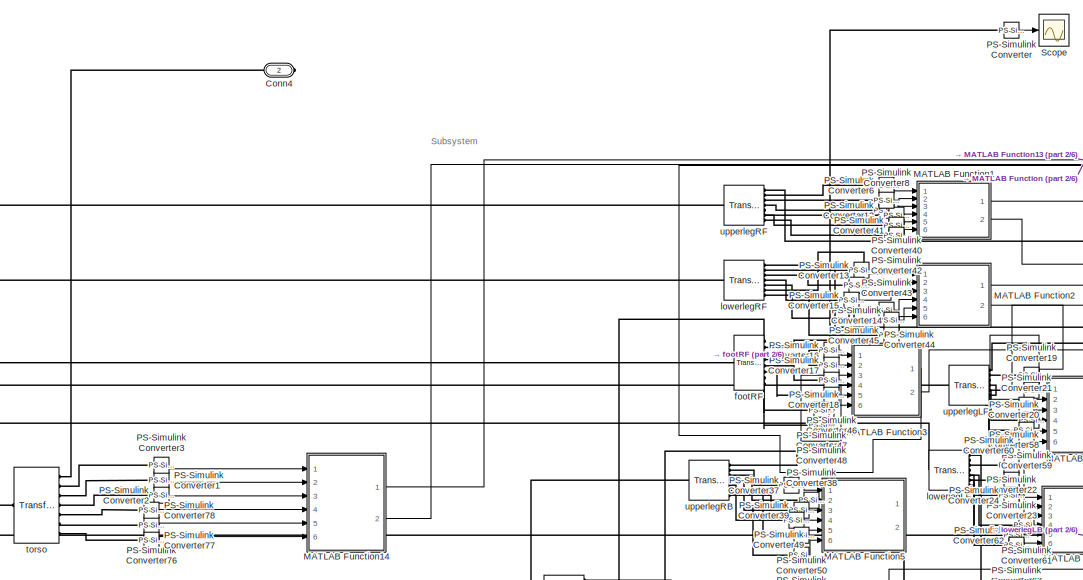
[diagram: Subsystem - part 1/6, top center region]
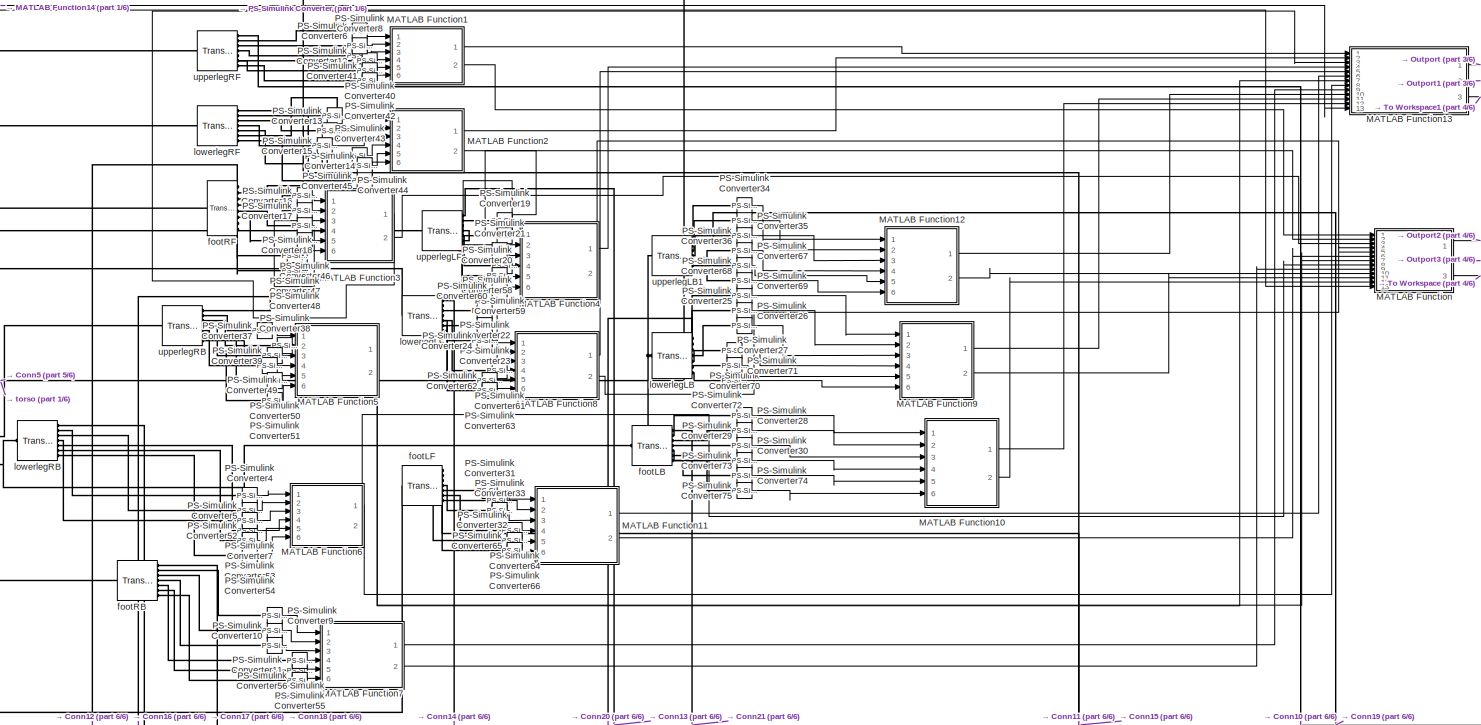
[diagram: Subsystem - part 2/6, central region]
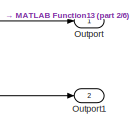
[diagram: Subsystem - part 3/6, top right region]
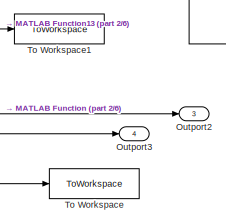
[diagram: Subsystem - part 4/6, top right region]
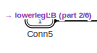
[diagram: Subsystem - part 5/6, middle left region]
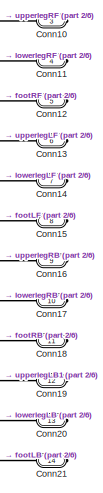
[diagram: Subsystem - part 6/6, bottom right region]
BLOCK [SubSystem] Subsystem
  Ports = [0, 4, 0, 0, 0, 1, 13]
  RequestExecContextInheritance = off
BLOCK [PMIOPort] Subsystem/Conn10
  Port = 3
  Side = Right
BLOCK [PMIOPort] Subsystem/Conn11
  Port = 4
  Side = Right
BLOCK [PMIOPort] Subsystem/Conn12
  Port = 5
  Side = Right
BLOCK [PMIOPort] Subsystem/Conn13
  Port = 6
  Side = Right
BLOCK [PMIOPort] Subsystem/Conn14
  Port = 7
  Side = Right
BLOCK [PMIOPort] Subsystem/Conn15
  Port = 8
  Side = Right
BLOCK [PMIOPort] Subsystem/Conn16
  Port = 9
  Side = Right
BLOCK [PMIOPort] Subsystem/Conn17
  Port = 10
  Side = Right
BLOCK [PMIOPort] Subsystem/Conn18
  Port = 11
  Side = Right
BLOCK [PMIOPort] Subsystem/Conn19
  Port = 12
  Side = Right
BLOCK [PMIOPort] Subsystem/Conn20
  Port = 13
  Side = Right
BLOCK [PMIOPort] Subsystem/Conn21
  Port = 14
  Side = Right
BLOCK [PMIOPort] Subsystem/Conn4
  Port = 2
  Side = Right
BLOCK [PMIOPort] Subsystem/Conn5
  NameLocation = top
  Side = Left
BLOCK [SubSystem] Subsystem/MATLAB Function
  ErrorFcn = Stateflow.Translate.translate
  PermitHierarchicalResolution = ExplicitOnly
  Ports = [13, 3]
  RequestExecContextInheritance = off
  SFBlockType = MATLAB Function
  TreatAsAtomicUnit = on
BLOCK [Demux] Subsystem/MATLAB Function/ Demux 
  Outputs = 1
  Ports = [1, 1]
BLOCK [S-Function] Subsystem/MATLAB Function/ SFunction 
  EnableBusSupport = on
  FunctionName = sf_sfun
  PortCounts = [13 4]
  Ports = [13, 4]
  SFcnIsStateOwnerBlock = off
  SFunctionDeploymentMode = off
  Tag = Stateflow S-Function 59
BLOCK [Terminator] Subsystem/MATLAB Function/ Terminator 
BLOCK [Outport] Subsystem/MATLAB Function/Macm
BLOCK [Inport] Subsystem/MATLAB Function/a_torso
  Port = 13
BLOCK [Outport] Subsystem/MATLAB Function/acm
  Port = 3
BLOCK [Inport] Subsystem/MATLAB Function/afLB
  Port = 12
BLOCK [Inport] Subsystem/MATLAB Function/afLF
  Port = 6
BLOCK [Inport] Subsystem/MATLAB Function/afRB
  Port = 9
BLOCK [Inport] Subsystem/MATLAB Function/afRF
  Port = 3
BLOCK [Outport] Subsystem/MATLAB Function/alinks
  Port = 2
BLOCK [Inport] Subsystem/MATLAB Function/allLB
  Port = 11
BLOCK [Inport] Subsystem/MATLAB Function/allLF
  Port = 5
BLOCK [Inport] Subsystem/MATLAB Function/allRB
  Port = 8
BLOCK [Inport] Subsystem/MATLAB Function/allRF
  Port = 2
BLOCK [Inport] Subsystem/MATLAB Function/aulLB
  Port = 10
BLOCK [Inport] Subsystem/MATLAB Function/aulLF
  Port = 4
BLOCK [Inport] Subsystem/MATLAB Function/aulRB
  Port = 7
BLOCK [Inport] Subsystem/MATLAB Function/aulRF
BLOCK [SubSystem] Subsystem/MATLAB Function1
  ErrorFcn = Stateflow.Translate.translate
  PermitHierarchicalResolution = ExplicitOnly
  Ports = [6, 2]
  RequestExecContextInheritance = off
  SFBlockType = MATLAB Function
  TreatAsAtomicUnit = on
BLOCK [Demux] Subsystem/MATLAB Function1/ Demux 
  Outputs = 1
  Ports = [1, 1]
BLOCK [S-Function] Subsystem/MATLAB Function1/ SFunction 
  EnableBusSupport = on
  FunctionName = sf_sfun
  PortCounts = [6 3]
  Ports = [6, 3]
  SFcnIsStateOwnerBlock = off
  SFunctionDeploymentMode = off
  Tag = Stateflow S-Function 1
BLOCK [Terminator] Subsystem/MATLAB Function1/ Terminator 
BLOCK [Outport] Subsystem/MATLAB Function1/a
  Port = 2
BLOCK [Inport] Subsystem/MATLAB Function1/ax
  Port = 4
BLOCK [Inport] Subsystem/MATLAB Function1/ay
  Port = 5
BLOCK [Inport] Subsystem/MATLAB Function1/az
  Port = 6
BLOCK [Outport] Subsystem/MATLAB Function1/v
BLOCK [Inport] Subsystem/MATLAB Function1/vx
BLOCK [Inport] Subsystem/MATLAB Function1/vy
  Port = 2
BLOCK [Inport] Subsystem/MATLAB Function1/vz
  Port = 3
BLOCK [SubSystem] Subsystem/MATLAB Function10
  ErrorFcn = Stateflow.Translate.translate
  PermitHierarchicalResolution = ExplicitOnly
  Ports = [6, 2]
  RequestExecContextInheritance = off
  SFBlockType = MATLAB Function
  TreatAsAtomicUnit = on
BLOCK [Demux] Subsystem/MATLAB Function10/ Demux 
  Outputs = 1
  Ports = [1, 1]
BLOCK [S-Function] Subsystem/MATLAB Function10/ SFunction 
  EnableBusSupport = on
  FunctionName = sf_sfun
  PortCounts = [6 3]
  Ports = [6, 3]
  SFcnIsStateOwnerBlock = off
  SFunctionDeploymentMode = off
  Tag = Stateflow S-Function 25
BLOCK [Terminator] Subsystem/MATLAB Function10/ Terminator 
BLOCK [Outport] Subsystem/MATLAB Function10/a
  Port = 2
BLOCK [Inport] Subsystem/MATLAB Function10/ax
  Port = 4
BLOCK [Inport] Subsystem/MATLAB Function10/ay
  Port = 5
BLOCK [Inport] Subsystem/MATLAB Function10/az
  Port = 6
BLOCK [Outport] Subsystem/MATLAB Function10/v
BLOCK [Inport] Subsystem/MATLAB Function10/vx
BLOCK [Inport] Subsystem/MATLAB Function10/vy
  Port = 2
BLOCK [Inport] Subsystem/MATLAB Function10/vz
  Port = 3
BLOCK [SubSystem] Subsystem/MATLAB Function11
  ErrorFcn = Stateflow.Translate.translate
  PermitHierarchicalResolution = ExplicitOnly
  Ports = [6, 2]
  RequestExecContextInheritance = off
  SFBlockType = MATLAB Function
  TreatAsAtomicUnit = on
BLOCK [Demux] Subsystem/MATLAB Function11/ Demux 
  Outputs = 1
  Ports = [1, 1]
BLOCK [S-Function] Subsystem/MATLAB Function11/ SFunction 
  EnableBusSupport = on
  FunctionName = sf_sfun
  PortCounts = [6 3]
  Ports = [6, 3]
  SFcnIsStateOwnerBlock = off
  SFunctionDeploymentMode = off
  Tag = Stateflow S-Function 26
BLOCK [Terminator] Subsystem/MATLAB Function11/ Terminator 
BLOCK [Outport] Subsystem/MATLAB Function11/a
  Port = 2
BLOCK [Inport] Subsystem/MATLAB Function11/ax
  Port = 4
BLOCK [Inport] Subsystem/MATLAB Function11/ay
  Port = 5
BLOCK [Inport] Subsystem/MATLAB Function11/az
  Port = 6
BLOCK [Outport] Subsystem/MATLAB Function11/v
BLOCK [Inport] Subsystem/MATLAB Function11/vx
BLOCK [Inport] Subsystem/MATLAB Function11/vy
  Port = 2
BLOCK [Inport] Subsystem/MATLAB Function11/vz
  Port = 3
BLOCK [SubSystem] Subsystem/MATLAB Function12
  ErrorFcn = Stateflow.Translate.translate
  PermitHierarchicalResolution = ExplicitOnly
  Ports = [6, 2]
  RequestExecContextInheritance = off
  SFBlockType = MATLAB Function
  TreatAsAtomicUnit = on
BLOCK [Demux] Subsystem/MATLAB Function12/ Demux 
  Outputs = 1
  Ports = [1, 1]
BLOCK [S-Function] Subsystem/MATLAB Function12/ SFunction 
  EnableBusSupport = on
  FunctionName = sf_sfun
  PortCounts = [6 3]
  Ports = [6, 3]
  SFcnIsStateOwnerBlock = off
  SFunctionDeploymentMode = off
  Tag = Stateflow S-Function 27
BLOCK [Terminator] Subsystem/MATLAB Function12/ Terminator 
BLOCK [Outport] Subsystem/MATLAB Function12/a
  Port = 2
BLOCK [Inport] Subsystem/MATLAB Function12/ax
  Port = 4
BLOCK [Inport] Subsystem/MATLAB Function12/ay
  Port = 5
BLOCK [Inport] Subsystem/MATLAB Function12/az
  Port = 6
BLOCK [Outport] Subsystem/MATLAB Function12/v
BLOCK [Inport] Subsystem/MATLAB Function12/vx
BLOCK [Inport] Subsystem/MATLAB Function12/vy
  Port = 2
BLOCK [Inport] Subsystem/MATLAB Function12/vz
  Port = 3
BLOCK [SubSystem] Subsystem/MATLAB Function13
  ErrorFcn = Stateflow.Translate.translate
  PermitHierarchicalResolution = ExplicitOnly
  Ports = [13, 3]
  RequestExecContextInheritance = off
  SFBlockType = MATLAB Function
  TreatAsAtomicUnit = on
BLOCK [Demux] Subsystem/MATLAB Function13/ Demux 
  Outputs = 1
  Ports = [1, 1]
BLOCK [S-Function] Subsystem/MATLAB Function13/ SFunction 
  EnableBusSupport = on
  FunctionName = sf_sfun
  PortCounts = [13 4]
  Ports = [13, 4]
  SFcnIsStateOwnerBlock = off
  SFunctionDeploymentMode = off
  Tag = Stateflow S-Function 2
BLOCK [Terminator] Subsystem/MATLAB Function13/ Terminator 
BLOCK [Outport] Subsystem/MATLAB Function13/Mvcm
BLOCK [Inport] Subsystem/MATLAB Function13/v_torso
  Port = 13
BLOCK [Outport] Subsystem/MATLAB Function13/vcm
  Port = 3
BLOCK [Inport] Subsystem/MATLAB Function13/vfLB
  Port = 12
BLOCK [Inport] Subsystem/MATLAB Function13/vfLF
  Port = 6
BLOCK [Inport] Subsystem/MATLAB Function13/vfRB
  Port = 9
BLOCK [Inport] Subsystem/MATLAB Function13/vfRF
  Port = 3
BLOCK [Outport] Subsystem/MATLAB Function13/vlinks
  Port = 2
BLOCK [Inport] Subsystem/MATLAB Function13/vllLB
  Port = 11
BLOCK [Inport] Subsystem/MATLAB Function13/vllLF
  Port = 5
BLOCK [Inport] Subsystem/MATLAB Function13/vllRB
  Port = 8
BLOCK [Inport] Subsystem/MATLAB Function13/vllRF
  Port = 2
BLOCK [Inport] Subsystem/MATLAB Function13/vulLB
  Port = 10
BLOCK [Inport] Subsystem/MATLAB Function13/vulLF
  Port = 4
BLOCK [Inport] Subsystem/MATLAB Function13/vulRB
  Port = 7
BLOCK [Inport] Subsystem/MATLAB Function13/vulRF
BLOCK [SubSystem] Subsystem/MATLAB Function14
  ErrorFcn = Stateflow.Translate.translate
  PermitHierarchicalResolution = ExplicitOnly
  Ports = [6, 2]
  RequestExecContextInheritance = off
  SFBlockType = MATLAB Function
  TreatAsAtomicUnit = on
BLOCK [Demux] Subsystem/MATLAB Function14/ Demux 
  Outputs = 1
  Ports = [1, 1]
BLOCK [S-Function] Subsystem/MATLAB Function14/ SFunction 
  EnableBusSupport = on
  FunctionName = sf_sfun
  PortCounts = [6 3]
  Ports = [6, 3]
  SFcnIsStateOwnerBlock = off
  SFunctionDeploymentMode = off
  Tag = Stateflow S-Function 28
BLOCK [Terminator] Subsystem/MATLAB Function14/ Terminator 
BLOCK [Outport] Subsystem/MATLAB Function14/a
  Port = 2
BLOCK [Inport] Subsystem/MATLAB Function14/ax
  Port = 4
BLOCK [Inport] Subsystem/MATLAB Function14/ay
  Port = 5
BLOCK [Inport] Subsystem/MATLAB Function14/az
  Port = 6
BLOCK [Outport] Subsystem/MATLAB Function14/v
BLOCK [Inport] Subsystem/MATLAB Function14/vx
BLOCK [Inport] Subsystem/MATLAB Function14/vy
  Port = 2
BLOCK [Inport] Subsystem/MATLAB Function14/vz
  Port = 3
BLOCK [SubSystem] Subsystem/MATLAB Function2
  ErrorFcn = Stateflow.Translate.translate
  PermitHierarchicalResolution = ExplicitOnly
  Ports = [6, 2]
  RequestExecContextInheritance = off
  SFBlockType = MATLAB Function
  TreatAsAtomicUnit = on
BLOCK [Demux] Subsystem/MATLAB Function2/ Demux 
  Outputs = 1
  Ports = [1, 1]
BLOCK [S-Function] Subsystem/MATLAB Function2/ SFunction 
  EnableBusSupport = on
  FunctionName = sf_sfun
  PortCounts = [6 3]
  Ports = [6, 3]
  SFcnIsStateOwnerBlock = off
  SFunctionDeploymentMode = off
  Tag = Stateflow S-Function 3
BLOCK [Terminator] Subsystem/MATLAB Function2/ Terminator 
BLOCK [Outport] Subsystem/MATLAB Function2/a
  Port = 2
BLOCK [Inport] Subsystem/MATLAB Function2/ax
  Port = 4
BLOCK [Inport] Subsystem/MATLAB Function2/ay
  Port = 5
BLOCK [Inport] Subsystem/MATLAB Function2/az
  Port = 6
BLOCK [Outport] Subsystem/MATLAB Function2/v
BLOCK [Inport] Subsystem/MATLAB Function2/vx
BLOCK [Inport] Subsystem/MATLAB Function2/vy
  Port = 2
BLOCK [Inport] Subsystem/MATLAB Function2/vz
  Port = 3
BLOCK [SubSystem] Subsystem/MATLAB Function3
  ErrorFcn = Stateflow.Translate.translate
  PermitHierarchicalResolution = ExplicitOnly
  Ports = [6, 2]
  RequestExecContextInheritance = off
  SFBlockType = MATLAB Function
  TreatAsAtomicUnit = on
BLOCK [Demux] Subsystem/MATLAB Function3/ Demux 
  Outputs = 1
  Ports = [1, 1]
BLOCK [S-Function] Subsystem/MATLAB Function3/ SFunction 
  EnableBusSupport = on
  FunctionName = sf_sfun
  PortCounts = [6 3]
  Ports = [6, 3]
  SFcnIsStateOwnerBlock = off
  SFunctionDeploymentMode = off
  Tag = Stateflow S-Function 4
BLOCK [Terminator] Subsystem/MATLAB Function3/ Terminator 
BLOCK [Outport] Subsystem/MATLAB Function3/a
  Port = 2
BLOCK [Inport] Subsystem/MATLAB Function3/ax
  Port = 4
BLOCK [Inport] Subsystem/MATLAB Function3/ay
  Port = 5
BLOCK [Inport] Subsystem/MATLAB Function3/az
  Port = 6
BLOCK [Outport] Subsystem/MATLAB Function3/v
BLOCK [Inport] Subsystem/MATLAB Function3/vx
BLOCK [Inport] Subsystem/MATLAB Function3/vy
  Port = 2
BLOCK [Inport] Subsystem/MATLAB Function3/vz
  Port = 3
BLOCK [SubSystem] Subsystem/MATLAB Function4
  ErrorFcn = Stateflow.Translate.translate
  PermitHierarchicalResolution = ExplicitOnly
  Ports = [6, 2]
  RequestExecContextInheritance = off
  SFBlockType = MATLAB Function
  TreatAsAtomicUnit = on
BLOCK [Demux] Subsystem/MATLAB Function4/ Demux 
  Outputs = 1
  Ports = [1, 1]
BLOCK [S-Function] Subsystem/MATLAB Function4/ SFunction 
  EnableBusSupport = on
  FunctionName = sf_sfun
  PortCounts = [6 3]
  Ports = [6, 3]
  SFcnIsStateOwnerBlock = off
  SFunctionDeploymentMode = off
  Tag = Stateflow S-Function 19
BLOCK [Terminator] Subsystem/MATLAB Function4/ Terminator 
BLOCK [Outport] Subsystem/MATLAB Function4/a
  Port = 2
BLOCK [Inport] Subsystem/MATLAB Function4/ax
  Port = 4
BLOCK [Inport] Subsystem/MATLAB Function4/ay
  Port = 5
BLOCK [Inport] Subsystem/MATLAB Function4/az
  Port = 6
BLOCK [Outport] Subsystem/MATLAB Function4/v
BLOCK [Inport] Subsystem/MATLAB Function4/vx
BLOCK [Inport] Subsystem/MATLAB Function4/vy
  Port = 2
BLOCK [Inport] Subsystem/MATLAB Function4/vz
  Port = 3
BLOCK [SubSystem] Subsystem/MATLAB Function5
  ErrorFcn = Stateflow.Translate.translate
  PermitHierarchicalResolution = ExplicitOnly
  Ports = [6, 2]
  RequestExecContextInheritance = off
  SFBlockType = MATLAB Function
  TreatAsAtomicUnit = on
BLOCK [Demux] Subsystem/MATLAB Function5/ Demux 
  Outputs = 1
  Ports = [1, 1]
BLOCK [S-Function] Subsystem/MATLAB Function5/ SFunction 
  EnableBusSupport = on
  FunctionName = sf_sfun
  PortCounts = [6 3]
  Ports = [6, 3]
  SFcnIsStateOwnerBlock = off
  SFunctionDeploymentMode = off
  Tag = Stateflow S-Function 20
BLOCK [Terminator] Subsystem/MATLAB Function5/ Terminator 
BLOCK [Outport] Subsystem/MATLAB Function5/a
  Port = 2
BLOCK [Inport] Subsystem/MATLAB Function5/ax
  Port = 4
BLOCK [Inport] Subsystem/MATLAB Function5/ay
  Port = 5
BLOCK [Inport] Subsystem/MATLAB Function5/az
  Port = 6
BLOCK [Outport] Subsystem/MATLAB Function5/v
BLOCK [Inport] Subsystem/MATLAB Function5/vx
BLOCK [Inport] Subsystem/MATLAB Function5/vy
  Port = 2
BLOCK [Inport] Subsystem/MATLAB Function5/vz
  Port = 3
BLOCK [SubSystem] Subsystem/MATLAB Function6
  ErrorFcn = Stateflow.Translate.translate
  PermitHierarchicalResolution = ExplicitOnly
  Ports = [6, 2]
  RequestExecContextInheritance = off
  SFBlockType = MATLAB Function
  TreatAsAtomicUnit = on
BLOCK [Demux] Subsystem/MATLAB Function6/ Demux 
  Outputs = 1
  Ports = [1, 1]
BLOCK [S-Function] Subsystem/MATLAB Function6/ SFunction 
  EnableBusSupport = on
  FunctionName = sf_sfun
  PortCounts = [6 3]
  Ports = [6, 3]
  SFcnIsStateOwnerBlock = off
  SFunctionDeploymentMode = off
  Tag = Stateflow S-Function 21
BLOCK [Terminator] Subsystem/MATLAB Function6/ Terminator 
BLOCK [Outport] Subsystem/MATLAB Function6/a
  Port = 2
BLOCK [Inport] Subsystem/MATLAB Function6/ax
  Port = 4
BLOCK [Inport] Subsystem/MATLAB Function6/ay
  Port = 5
BLOCK [Inport] Subsystem/MATLAB Function6/az
  Port = 6
BLOCK [Outport] Subsystem/MATLAB Function6/v
BLOCK [Inport] Subsystem/MATLAB Function6/vx
BLOCK [Inport] Subsystem/MATLAB Function6/vy
  Port = 2
BLOCK [Inport] Subsystem/MATLAB Function6/vz
  Port = 3
BLOCK [SubSystem] Subsystem/MATLAB Function7
  ErrorFcn = Stateflow.Translate.translate
  PermitHierarchicalResolution = ExplicitOnly
  Ports = [6, 2]
  RequestExecContextInheritance = off
  SFBlockType = MATLAB Function
  TreatAsAtomicUnit = on
BLOCK [Demux] Subsystem/MATLAB Function7/ Demux 
  Outputs = 1
  Ports = [1, 1]
BLOCK [S-Function] Subsystem/MATLAB Function7/ SFunction 
  EnableBusSupport = on
  FunctionName = sf_sfun
  PortCounts = [6 3]
  Ports = [6, 3]
  SFcnIsStateOwnerBlock = off
  SFunctionDeploymentMode = off
  Tag = Stateflow S-Function 22
BLOCK [Terminator] Subsystem/MATLAB Function7/ Terminator 
BLOCK [Outport] Subsystem/MATLAB Function7/a
  Port = 2
BLOCK [Inport] Subsystem/MATLAB Function7/ax
  Port = 4
BLOCK [Inport] Subsystem/MATLAB Function7/ay
  Port = 5
BLOCK [Inport] Subsystem/MATLAB Function7/az
  Port = 6
BLOCK [Outport] Subsystem/MATLAB Function7/v
BLOCK [Inport] Subsystem/MATLAB Function7/vx
BLOCK [Inport] Subsystem/MATLAB Function7/vy
  Port = 2
BLOCK [Inport] Subsystem/MATLAB Function7/vz
  Port = 3
BLOCK [SubSystem] Subsystem/MATLAB Function8
  ErrorFcn = Stateflow.Translate.translate
  PermitHierarchicalResolution = ExplicitOnly
  Ports = [6, 2]
  RequestExecContextInheritance = off
  SFBlockType = MATLAB Function
  TreatAsAtomicUnit = on
BLOCK [Demux] Subsystem/MATLAB Function8/ Demux 
  Outputs = 1
  Ports = [1, 1]
BLOCK [S-Function] Subsystem/MATLAB Function8/ SFunction 
  EnableBusSupport = on
  FunctionName = sf_sfun
  PortCounts = [6 3]
  Ports = [6, 3]
  SFcnIsStateOwnerBlock = off
  SFunctionDeploymentMode = off
  Tag = Stateflow S-Function 23
BLOCK [Terminator] Subsystem/MATLAB Function8/ Terminator 
BLOCK [Outport] Subsystem/MATLAB Function8/a
  Port = 2
BLOCK [Inport] Subsystem/MATLAB Function8/ax
  Port = 4
BLOCK [Inport] Subsystem/MATLAB Function8/ay
  Port = 5
BLOCK [Inport] Subsystem/MATLAB Function8/az
  Port = 6
BLOCK [Outport] Subsystem/MATLAB Function8/v
BLOCK [Inport] Subsystem/MATLAB Function8/vx
BLOCK [Inport] Subsystem/MATLAB Function8/vy
  Port = 2
BLOCK [Inport] Subsystem/MATLAB Function8/vz
  Port = 3
BLOCK [SubSystem] Subsystem/MATLAB Function9
  ErrorFcn = Stateflow.Translate.translate
  PermitHierarchicalResolution = ExplicitOnly
  Ports = [6, 2]
  RequestExecContextInheritance = off
  SFBlockType = MATLAB Function
  TreatAsAtomicUnit = on
BLOCK [Demux] Subsystem/MATLAB Function9/ Demux 
  Outputs = 1
  Ports = [1, 1]
BLOCK [S-Function] Subsystem/MATLAB Function9/ SFunction 
  EnableBusSupport = on
  FunctionName = sf_sfun
  PortCounts = [6 3]
  Ports = [6, 3]
  SFcnIsStateOwnerBlock = off
  SFunctionDeploymentMode = off
  Tag = Stateflow S-Function 24
BLOCK [Terminator] Subsystem/MATLAB Function9/ Terminator 
BLOCK [Outport] Subsystem/MATLAB Function9/a
  Port = 2
BLOCK [Inport] Subsystem/MATLAB Function9/ax
  Port = 4
BLOCK [Inport] Subsystem/MATLAB Function9/ay
  Port = 5
BLOCK [Inport] Subsystem/MATLAB Function9/az
  Port = 6
BLOCK [Outport] Subsystem/MATLAB Function9/v
BLOCK [Inport] Subsystem/MATLAB Function9/vx
BLOCK [Inport] Subsystem/MATLAB Function9/vy
  Port = 2
BLOCK [Inport] Subsystem/MATLAB Function9/vz
  Port = 3
BLOCK [Outport] Subsystem/Outport
BLOCK [Outport] Subsystem/Outport1
  Port = 2
BLOCK [Outport] Subsystem/Outport2
  Port = 3
BLOCK [Outport] Subsystem/Outport3
  Port = 4
BLOCK [Reference] Subsystem/PS-Simulink Converter  REF=nesl_utility/PS-Simulink
Converter
  Ports = [0, 1, 0, 0, 0, 1]
  SourceBlock = nesl_utility/PS-Simulink\nConverter
  SourceProductBaseCode = PW,SS
  SourceType = PS-Simulink\nConverter
BLOCK [Reference] Subsystem/PS-Simulink Converter1  REF=nesl_utility/PS-Simulink
Converter
  Ports = [0, 1, 0, 0, 0, 1]
  SourceBlock = nesl_utility/PS-Simulink\nConverter
  SourceProductBaseCode = PW,SS
  SourceType = PS-Simulink\nConverter
BLOCK [Reference] Subsystem/PS-Simulink Converter10  REF=nesl_utility/PS-Simulink
Converter
  Ports = [0, 1, 0, 0, 0, 1]
  SourceBlock = nesl_utility/PS-Simulink\nConverter
  SourceProductBaseCode = PW,SS
  SourceType = PS-Simulink\nConverter
BLOCK [Reference] Subsystem/PS-Simulink Converter11  REF=nesl_utility/PS-Simulink
Converter
  Ports = [0, 1, 0, 0, 0, 1]
  SourceBlock = nesl_utility/PS-Simulink\nConverter
  SourceProductBaseCode = PW,SS
  SourceType = PS-Simulink\nConverter
BLOCK [Reference] Subsystem/PS-Simulink Converter12  REF=nesl_utility/PS-Simulink
Converter
  Ports = [0, 1, 0, 0, 0, 1]
  SourceBlock = nesl_utility/PS-Simulink\nConverter
  SourceProductBaseCode = PW,SS
  SourceType = PS-Simulink\nConverter
BLOCK [Reference] Subsystem/PS-Simulink Converter13  REF=nesl_utility/PS-Simulink
Converter
  Ports = [0, 1, 0, 0, 0, 1]
  SourceBlock = nesl_utility/PS-Simulink\nConverter
  SourceProductBaseCode = PW,SS
  SourceType = PS-Simulink\nConverter
BLOCK [Reference] Subsystem/PS-Simulink Converter14  REF=nesl_utility/PS-Simulink
Converter
  Ports = [0, 1, 0, 0, 0, 1]
  SourceBlock = nesl_utility/PS-Simulink\nConverter
  SourceProductBaseCode = PW,SS
  SourceType = PS-Simulink\nConverter
BLOCK [Reference] Subsystem/PS-Simulink Converter15  REF=nesl_utility/PS-Simulink
Converter
  Ports = [0, 1, 0, 0, 0, 1]
  SourceBlock = nesl_utility/PS-Simulink\nConverter
  SourceProductBaseCode = PW,SS
  SourceType = PS-Simulink\nConverter
BLOCK [Reference] Subsystem/PS-Simulink Converter16  REF=nesl_utility/PS-Simulink
Converter
  Ports = [0, 1, 0, 0, 0, 1]
  SourceBlock = nesl_utility/PS-Simulink\nConverter
  SourceProductBaseCode = PW,SS
  SourceType = PS-Simulink\nConverter
BLOCK [Reference] Subsystem/PS-Simulink Converter17  REF=nesl_utility/PS-Simulink
Converter
  Ports = [0, 1, 0, 0, 0, 1]
  SourceBlock = nesl_utility/PS-Simulink\nConverter
  SourceProductBaseCode = PW,SS
  SourceType = PS-Simulink\nConverter
BLOCK [Reference] Subsystem/PS-Simulink Converter18  REF=nesl_utility/PS-Simulink
Converter
  Ports = [0, 1, 0, 0, 0, 1]
  SourceBlock = nesl_utility/PS-Simulink\nConverter
  SourceProductBaseCode = PW,SS
  SourceType = PS-Simulink\nConverter
BLOCK [Reference] Subsystem/PS-Simulink Converter19  REF=nesl_utility/PS-Simulink
Converter
  Ports = [0, 1, 0, 0, 0, 1]
  SourceBlock = nesl_utility/PS-Simulink\nConverter
  SourceProductBaseCode = PW,SS
  SourceType = PS-Simulink\nConverter
BLOCK [Reference] Subsystem/PS-Simulink Converter2  REF=nesl_utility/PS-Simulink
Converter
  Ports = [0, 1, 0, 0, 0, 1]
  SourceBlock = nesl_utility/PS-Simulink\nConverter
  SourceProductBaseCode = PW,SS
  SourceType = PS-Simulink\nConverter
BLOCK [Reference] Subsystem/PS-Simulink Converter20  REF=nesl_utility/PS-Simulink
Converter
  Ports = [0, 1, 0, 0, 0, 1]
  SourceBlock = nesl_utility/PS-Simulink\nConverter
  SourceProductBaseCode = PW,SS
  SourceType = PS-Simulink\nConverter
BLOCK [Reference] Subsystem/PS-Simulink Converter21  REF=nesl_utility/PS-Simulink
Converter
  Ports = [0, 1, 0, 0, 0, 1]
  SourceBlock = nesl_utility/PS-Simulink\nConverter
  SourceProductBaseCode = PW,SS
  SourceType = PS-Simulink\nConverter
BLOCK [Reference] Subsystem/PS-Simulink Converter22  REF=nesl_utility/PS-Simulink
Converter
  Ports = [0, 1, 0, 0, 0, 1]
  SourceBlock = nesl_utility/PS-Simulink\nConverter
  SourceProductBaseCode = PW,SS
  SourceType = PS-Simulink\nConverter
BLOCK [Reference] Subsystem/PS-Simulink Converter23  REF=nesl_utility/PS-Simulink
Converter
  Ports = [0, 1, 0, 0, 0, 1]
  SourceBlock = nesl_utility/PS-Simulink\nConverter
  SourceProductBaseCode = PW,SS
  SourceType = PS-Simulink\nConverter
BLOCK [Reference] Subsystem/PS-Simulink Converter24  REF=nesl_utility/PS-Simulink
Converter
  Ports = [0, 1, 0, 0, 0, 1]
  SourceBlock = nesl_utility/PS-Simulink\nConverter
  SourceProductBaseCode = PW,SS
  SourceType = PS-Simulink\nConverter
BLOCK [Reference] Subsystem/PS-Simulink Converter25  REF=nesl_utility/PS-Simulink
Converter
  Ports = [0, 1, 0, 0, 0, 1]
  SourceBlock = nesl_utility/PS-Simulink\nConverter
  SourceProductBaseCode = PW,SS
  SourceType = PS-Simulink\nConverter
BLOCK [Reference] Subsystem/PS-Simulink Converter26  REF=nesl_utility/PS-Simulink
Converter
  Ports = [0, 1, 0, 0, 0, 1]
  SourceBlock = nesl_utility/PS-Simulink\nConverter
  SourceProductBaseCode = PW,SS
  SourceType = PS-Simulink\nConverter
BLOCK [Reference] Subsystem/PS-Simulink Converter27  REF=nesl_utility/PS-Simulink
Converter
  Ports = [0, 1, 0, 0, 0, 1]
  SourceBlock = nesl_utility/PS-Simulink\nConverter
  SourceProductBaseCode = PW,SS
  SourceType = PS-Simulink\nConverter
BLOCK [Reference] Subsystem/PS-Simulink Converter28  REF=nesl_utility/PS-Simulink
Converter
  Ports = [0, 1, 0, 0, 0, 1]
  SourceBlock = nesl_utility/PS-Simulink\nConverter
  SourceProductBaseCode = PW,SS
  SourceType = PS-Simulink\nConverter
BLOCK [Reference] Subsystem/PS-Simulink Converter29  REF=nesl_utility/PS-Simulink
Converter
  Ports = [0, 1, 0, 0, 0, 1]
  SourceBlock = nesl_utility/PS-Simulink\nConverter
  SourceProductBaseCode = PW,SS
  SourceType = PS-Simulink\nConverter
BLOCK [Reference] Subsystem/PS-Simulink Converter3  REF=nesl_utility/PS-Simulink
Converter
  Ports = [0, 1, 0, 0, 0, 1]
  SourceBlock = nesl_utility/PS-Simulink\nConverter
  SourceProductBaseCode = PW,SS
  SourceType = PS-Simulink\nConverter
BLOCK [Reference] Subsystem/PS-Simulink Converter30  REF=nesl_utility/PS-Simulink
Converter
  Ports = [0, 1, 0, 0, 0, 1]
  SourceBlock = nesl_utility/PS-Simulink\nConverter
  SourceProductBaseCode = PW,SS
  SourceType = PS-Simulink\nConverter
BLOCK [Reference] Subsystem/PS-Simulink Converter31  REF=nesl_utility/PS-Simulink
Converter
  Ports = [0, 1, 0, 0, 0, 1]
  SourceBlock = nesl_utility/PS-Simulink\nConverter
  SourceProductBaseCode = PW,SS
  SourceType = PS-Simulink\nConverter
BLOCK [Reference] Subsystem/PS-Simulink Converter32  REF=nesl_utility/PS-Simulink
Converter
  Ports = [0, 1, 0, 0, 0, 1]
  SourceBlock = nesl_utility/PS-Simulink\nConverter
  SourceProductBaseCode = PW,SS
  SourceType = PS-Simulink\nConverter
BLOCK [Reference] Subsystem/PS-Simulink Converter33  REF=nesl_utility/PS-Simulink
Converter
  Ports = [0, 1, 0, 0, 0, 1]
  SourceBlock = nesl_utility/PS-Simulink\nConverter
  SourceProductBaseCode = PW,SS
  SourceType = PS-Simulink\nConverter
BLOCK [Reference] Subsystem/PS-Simulink Converter34  REF=nesl_utility/PS-Simulink
Converter
  Ports = [0, 1, 0, 0, 0, 1]
  SourceBlock = nesl_utility/PS-Simulink\nConverter
  SourceProductBaseCode = PW,SS
  SourceType = PS-Simulink\nConverter
BLOCK [Reference] Subsystem/PS-Simulink Converter35  REF=nesl_utility/PS-Simulink
Converter
  Ports = [0, 1, 0, 0, 0, 1]
  SourceBlock = nesl_utility/PS-Simulink\nConverter
  SourceProductBaseCode = PW,SS
  SourceType = PS-Simulink\nConverter
BLOCK [Reference] Subsystem/PS-Simulink Converter36  REF=nesl_utility/PS-Simulink
Converter
  Ports = [0, 1, 0, 0, 0, 1]
  SourceBlock = nesl_utility/PS-Simulink\nConverter
  SourceProductBaseCode = PW,SS
  SourceType = PS-Simulink\nConverter
BLOCK [Reference] Subsystem/PS-Simulink Converter37  REF=nesl_utility/PS-Simulink
Converter
  Ports = [0, 1, 0, 0, 0, 1]
  SourceBlock = nesl_utility/PS-Simulink\nConverter
  SourceProductBaseCode = PW,SS
  SourceType = PS-Simulink\nConverter
BLOCK [Reference] Subsystem/PS-Simulink Converter38  REF=nesl_utility/PS-Simulink
Converter
  Ports = [0, 1, 0, 0, 0, 1]
  SourceBlock = nesl_utility/PS-Simulink\nConverter
  SourceProductBaseCode = PW,SS
  SourceType = PS-Simulink\nConverter
BLOCK [Reference] Subsystem/PS-Simulink Converter39  REF=nesl_utility/PS-Simulink
Converter
  Ports = [0, 1, 0, 0, 0, 1]
  SourceBlock = nesl_utility/PS-Simulink\nConverter
  SourceProductBaseCode = PW,SS
  SourceType = PS-Simulink\nConverter
BLOCK [Reference] Subsystem/PS-Simulink Converter4  REF=nesl_utility/PS-Simulink
Converter
  Ports = [0, 1, 0, 0, 0, 1]
  SourceBlock = nesl_utility/PS-Simulink\nConverter
  SourceProductBaseCode = PW,SS
  SourceType = PS-Simulink\nConverter
BLOCK [Reference] Subsystem/PS-Simulink Converter40  REF=nesl_utility/PS-Simulink
Converter
  Ports = [0, 1, 0, 0, 0, 1]
  SourceBlock = nesl_utility/PS-Simulink\nConverter
  SourceProductBaseCode = PW,SS
  SourceType = PS-Simulink\nConverter
BLOCK [Reference] Subsystem/PS-Simulink Converter41  REF=nesl_utility/PS-Simulink
Converter
  Ports = [0, 1, 0, 0, 0, 1]
  SourceBlock = nesl_utility/PS-Simulink\nConverter
  SourceProductBaseCode = PW,SS
  SourceType = PS-Simulink\nConverter
BLOCK [Reference] Subsystem/PS-Simulink Converter42  REF=nesl_utility/PS-Simulink
Converter
  Ports = [0, 1, 0, 0, 0, 1]
  SourceBlock = nesl_utility/PS-Simulink\nConverter
  SourceProductBaseCode = PW,SS
  SourceType = PS-Simulink\nConverter
BLOCK [Reference] Subsystem/PS-Simulink Converter43  REF=nesl_utility/PS-Simulink
Converter
  Ports = [0, 1, 0, 0, 0, 1]
  SourceBlock = nesl_utility/PS-Simulink\nConverter
  SourceProductBaseCode = PW,SS
  SourceType = PS-Simulink\nConverter
BLOCK [Reference] Subsystem/PS-Simulink Converter44  REF=nesl_utility/PS-Simulink
Converter
  Ports = [0, 1, 0, 0, 0, 1]
  SourceBlock = nesl_utility/PS-Simulink\nConverter
  SourceProductBaseCode = PW,SS
  SourceType = PS-Simulink\nConverter
BLOCK [Reference] Subsystem/PS-Simulink Converter45  REF=nesl_utility/PS-Simulink
Converter
  Ports = [0, 1, 0, 0, 0, 1]
  SourceBlock = nesl_utility/PS-Simulink\nConverter
  SourceProductBaseCode = PW,SS
  SourceType = PS-Simulink\nConverter
BLOCK [Reference] Subsystem/PS-Simulink Converter46  REF=nesl_utility/PS-Simulink
Converter
  Ports = [0, 1, 0, 0, 0, 1]
  SourceBlock = nesl_utility/PS-Simulink\nConverter
  SourceProductBaseCode = PW,SS
  SourceType = PS-Simulink\nConverter
BLOCK [Reference] Subsystem/PS-Simulink Converter47  REF=nesl_utility/PS-Simulink
Converter
  Ports = [0, 1, 0, 0, 0, 1]
  SourceBlock = nesl_utility/PS-Simulink\nConverter
  SourceProductBaseCode = PW,SS
  SourceType = PS-Simulink\nConverter
BLOCK [Reference] Subsystem/PS-Simulink Converter48  REF=nesl_utility/PS-Simulink
Converter
  Ports = [0, 1, 0, 0, 0, 1]
  SourceBlock = nesl_utility/PS-Simulink\nConverter
  SourceProductBaseCode = PW,SS
  SourceType = PS-Simulink\nConverter
BLOCK [Reference] Subsystem/PS-Simulink Converter49  REF=nesl_utility/PS-Simulink
Converter
  Ports = [0, 1, 0, 0, 0, 1]
  SourceBlock = nesl_utility/PS-Simulink\nConverter
  SourceProductBaseCode = PW,SS
  SourceType = PS-Simulink\nConverter
BLOCK [Reference] Subsystem/PS-Simulink Converter5  REF=nesl_utility/PS-Simulink
Converter
  Ports = [0, 1, 0, 0, 0, 1]
  SourceBlock = nesl_utility/PS-Simulink\nConverter
  SourceProductBaseCode = PW,SS
  SourceType = PS-Simulink\nConverter
BLOCK [Reference] Subsystem/PS-Simulink Converter50  REF=nesl_utility/PS-Simulink
Converter
  Ports = [0, 1, 0, 0, 0, 1]
  SourceBlock = nesl_utility/PS-Simulink\nConverter
  SourceProductBaseCode = PW,SS
  SourceType = PS-Simulink\nConverter
BLOCK [Reference] Subsystem/PS-Simulink Converter51  REF=nesl_utility/PS-Simulink
Converter
  Ports = [0, 1, 0, 0, 0, 1]
  SourceBlock = nesl_utility/PS-Simulink\nConverter
  SourceProductBaseCode = PW,SS
  SourceType = PS-Simulink\nConverter
BLOCK [Reference] Subsystem/PS-Simulink Converter52  REF=nesl_utility/PS-Simulink
Converter
  Ports = [0, 1, 0, 0, 0, 1]
  SourceBlock = nesl_utility/PS-Simulink\nConverter
  SourceProductBaseCode = PW,SS
  SourceType = PS-Simulink\nConverter
BLOCK [Reference] Subsystem/PS-Simulink Converter53  REF=nesl_utility/PS-Simulink
Converter
  Ports = [0, 1, 0, 0, 0, 1]
  SourceBlock = nesl_utility/PS-Simulink\nConverter
  SourceProductBaseCode = PW,SS
  SourceType = PS-Simulink\nConverter
BLOCK [Reference] Subsystem/PS-Simulink Converter54  REF=nesl_utility/PS-Simulink
Converter
  Ports = [0, 1, 0, 0, 0, 1]
  SourceBlock = nesl_utility/PS-Simulink\nConverter
  SourceProductBaseCode = PW,SS
  SourceType = PS-Simulink\nConverter
BLOCK [Reference] Subsystem/PS-Simulink Converter55  REF=nesl_utility/PS-Simulink
Converter
  Ports = [0, 1, 0, 0, 0, 1]
  SourceBlock = nesl_utility/PS-Simulink\nConverter
  SourceProductBaseCode = PW,SS
  SourceType = PS-Simulink\nConverter
BLOCK [Reference] Subsystem/PS-Simulink Converter56  REF=nesl_utility/PS-Simulink
Converter
  Ports = [0, 1, 0, 0, 0, 1]
  SourceBlock = nesl_utility/PS-Simulink\nConverter
  SourceProductBaseCode = PW,SS
  SourceType = PS-Simulink\nConverter
BLOCK [Reference] Subsystem/PS-Simulink Converter57  REF=nesl_utility/PS-Simulink
Converter
  Ports = [0, 1, 0, 0, 0, 1]
  SourceBlock = nesl_utility/PS-Simulink\nConverter
  SourceProductBaseCode = PW,SS
  SourceType = PS-Simulink\nConverter
BLOCK [Reference] Subsystem/PS-Simulink Converter58  REF=nesl_utility/PS-Simulink
Converter
  Ports = [0, 1, 0, 0, 0, 1]
  SourceBlock = nesl_utility/PS-Simulink\nConverter
  SourceProductBaseCode = PW,SS
  SourceType = PS-Simulink\nConverter
BLOCK [Reference] Subsystem/PS-Simulink Converter59  REF=nesl_utility/PS-Simulink
Converter
  Ports = [0, 1, 0, 0, 0, 1]
  SourceBlock = nesl_utility/PS-Simulink\nConverter
  SourceProductBaseCode = PW,SS
  SourceType = PS-Simulink\nConverter
BLOCK [Reference] Subsystem/PS-Simulink Converter6  REF=nesl_utility/PS-Simulink
Converter
  Ports = [0, 1, 0, 0, 0, 1]
  SourceBlock = nesl_utility/PS-Simulink\nConverter
  SourceProductBaseCode = PW,SS
  SourceType = PS-Simulink\nConverter
BLOCK [Reference] Subsystem/PS-Simulink Converter60  REF=nesl_utility/PS-Simulink
Converter
  Ports = [0, 1, 0, 0, 0, 1]
  SourceBlock = nesl_utility/PS-Simulink\nConverter
  SourceProductBaseCode = PW,SS
  SourceType = PS-Simulink\nConverter
BLOCK [Reference] Subsystem/PS-Simulink Converter61  REF=nesl_utility/PS-Simulink
Converter
  Ports = [0, 1, 0, 0, 0, 1]
  SourceBlock = nesl_utility/PS-Simulink\nConverter
  SourceProductBaseCode = PW,SS
  SourceType = PS-Simulink\nConverter
BLOCK [Reference] Subsystem/PS-Simulink Converter62  REF=nesl_utility/PS-Simulink
Converter
  Ports = [0, 1, 0, 0, 0, 1]
  SourceBlock = nesl_utility/PS-Simulink\nConverter
  SourceProductBaseCode = PW,SS
  SourceType = PS-Simulink\nConverter
BLOCK [Reference] Subsystem/PS-Simulink Converter63  REF=nesl_utility/PS-Simulink
Converter
  Ports = [0, 1, 0, 0, 0, 1]
  SourceBlock = nesl_utility/PS-Simulink\nConverter
  SourceProductBaseCode = PW,SS
  SourceType = PS-Simulink\nConverter
BLOCK [Reference] Subsystem/PS-Simulink Converter64  REF=nesl_utility/PS-Simulink
Converter
  Ports = [0, 1, 0, 0, 0, 1]
  SourceBlock = nesl_utility/PS-Simulink\nConverter
  SourceProductBaseCode = PW,SS
  SourceType = PS-Simulink\nConverter
BLOCK [Reference] Subsystem/PS-Simulink Converter65  REF=nesl_utility/PS-Simulink
Converter
  Ports = [0, 1, 0, 0, 0, 1]
  SourceBlock = nesl_utility/PS-Simulink\nConverter
  SourceProductBaseCode = PW,SS
  SourceType = PS-Simulink\nConverter
BLOCK [Reference] Subsystem/PS-Simulink Converter66  REF=nesl_utility/PS-Simulink
Converter
  Ports = [0, 1, 0, 0, 0, 1]
  SourceBlock = nesl_utility/PS-Simulink\nConverter
  SourceProductBaseCode = PW,SS
  SourceType = PS-Simulink\nConverter
BLOCK [Reference] Subsystem/PS-Simulink Converter67  REF=nesl_utility/PS-Simulink
Converter
  Ports = [0, 1, 0, 0, 0, 1]
  SourceBlock = nesl_utility/PS-Simulink\nConverter
  SourceProductBaseCode = PW,SS
  SourceType = PS-Simulink\nConverter
BLOCK [Reference] Subsystem/PS-Simulink Converter68  REF=nesl_utility/PS-Simulink
Converter
  Ports = [0, 1, 0, 0, 0, 1]
  SourceBlock = nesl_utility/PS-Simulink\nConverter
  SourceProductBaseCode = PW,SS
  SourceType = PS-Simulink\nConverter
BLOCK [Reference] Subsystem/PS-Simulink Converter69  REF=nesl_utility/PS-Simulink
Converter
  Ports = [0, 1, 0, 0, 0, 1]
  SourceBlock = nesl_utility/PS-Simulink\nConverter
  SourceProductBaseCode = PW,SS
  SourceType = PS-Simulink\nConverter
BLOCK [Reference] Subsystem/PS-Simulink Converter7  REF=nesl_utility/PS-Simulink
Converter
  Ports = [0, 1, 0, 0, 0, 1]
  SourceBlock = nesl_utility/PS-Simulink\nConverter
  SourceProductBaseCode = PW,SS
  SourceType = PS-Simulink\nConverter
BLOCK [Reference] Subsystem/PS-Simulink Converter70  REF=nesl_utility/PS-Simulink
Converter
  Ports = [0, 1, 0, 0, 0, 1]
  SourceBlock = nesl_utility/PS-Simulink\nConverter
  SourceProductBaseCode = PW,SS
  SourceType = PS-Simulink\nConverter
BLOCK [Reference] Subsystem/PS-Simulink Converter71  REF=nesl_utility/PS-Simulink
Converter
  Ports = [0, 1, 0, 0, 0, 1]
  SourceBlock = nesl_utility/PS-Simulink\nConverter
  SourceProductBaseCode = PW,SS
  SourceType = PS-Simulink\nConverter
BLOCK [Reference] Subsystem/PS-Simulink Converter72  REF=nesl_utility/PS-Simulink
Converter
  Ports = [0, 1, 0, 0, 0, 1]
  SourceBlock = nesl_utility/PS-Simulink\nConverter
  SourceProductBaseCode = PW,SS
  SourceType = PS-Simulink\nConverter
BLOCK [Reference] Subsystem/PS-Simulink Converter73  REF=nesl_utility/PS-Simulink
Converter
  Ports = [0, 1, 0, 0, 0, 1]
  SourceBlock = nesl_utility/PS-Simulink\nConverter
  SourceProductBaseCode = PW,SS
  SourceType = PS-Simulink\nConverter
BLOCK [Reference] Subsystem/PS-Simulink Converter74  REF=nesl_utility/PS-Simulink
Converter
  Ports = [0, 1, 0, 0, 0, 1]
  SourceBlock = nesl_utility/PS-Simulink\nConverter
  SourceProductBaseCode = PW,SS
  SourceType = PS-Simulink\nConverter
BLOCK [Reference] Subsystem/PS-Simulink Converter75  REF=nesl_utility/PS-Simulink
Converter
  Ports = [0, 1, 0, 0, 0, 1]
  SourceBlock = nesl_utility/PS-Simulink\nConverter
  SourceProductBaseCode = PW,SS
  SourceType = PS-Simulink\nConverter
BLOCK [Reference] Subsystem/PS-Simulink Converter76  REF=nesl_utility/PS-Simulink
Converter
  Ports = [0, 1, 0, 0, 0, 1]
  SourceBlock = nesl_utility/PS-Simulink\nConverter
  SourceProductBaseCode = PW,SS
  SourceType = PS-Simulink\nConverter
BLOCK [Reference] Subsystem/PS-Simulink Converter77  REF=nesl_utility/PS-Simulink
Converter
  Ports = [0, 1, 0, 0, 0, 1]
  SourceBlock = nesl_utility/PS-Simulink\nConverter
  SourceProductBaseCode = PW,SS
  SourceType = PS-Simulink\nConverter
BLOCK [Reference] Subsystem/PS-Simulink Converter78  REF=nesl_utility/PS-Simulink
Converter
  Ports = [0, 1, 0, 0, 0, 1]
  SourceBlock = nesl_utility/PS-Simulink\nConverter
  SourceProductBaseCode = PW,SS
  SourceType = PS-Simulink\nConverter
BLOCK [Reference] Subsystem/PS-Simulink Converter8  REF=nesl_utility/PS-Simulink
Converter
  Ports = [0, 1, 0, 0, 0, 1]
  SourceBlock = nesl_utility/PS-Simulink\nConverter
  SourceProductBaseCode = PW,SS
  SourceType = PS-Simulink\nConverter
BLOCK [Reference] Subsystem/PS-Simulink Converter9  REF=nesl_utility/PS-Simulink
Converter
  Ports = [0, 1, 0, 0, 0, 1]
  SourceBlock = nesl_utility/PS-Simulink\nConverter
  SourceProductBaseCode = PW,SS
  SourceType = PS-Simulink\nConverter
BLOCK [Scope] Subsystem/Scope
  Floating = off
  NumInputPorts = 1
  Ports = [1]
  ScopeSpecificationString = Simulink.scopes.TimeScopeBlockCfg('CurrentConfiguration', extmgr.ConfigurationSet(extmgr.Configuration('Core','General UI',true),extmgr.Configuration('Core','Source UI',true),extmgr.Configuration('Sources','WiredSimulink',true,'DataLoggingVariableName','ScopeData3'),extmgr.Configuration('Visuals','Time Domain',true),extmgr.Configuration('Tools','Plot Navigation',true),extmgr.Configuration('Tools',...<+40ch>
BLOCK [ToWorkspace] Subsystem/To Workspace
  FixptAsFi = on
  MaxDataPoints = inf
  Ports = [1]
  SampleTime = -1
  SaveFormat = Timeseries
  VariableName = acm
BLOCK [ToWorkspace] Subsystem/To Workspace1
  FixptAsFi = on
  MaxDataPoints = inf
  Ports = [1]
  SampleTime = -1
  SaveFormat = Timeseries
  VariableName = vcm
BLOCK [Reference] Subsystem/footLB  REF=sm_lib/Frames and
Transforms/Transform
Sensor
  Ports = [0, 0, 0, 0, 0, 1, 7]
  SourceBlock = sm_lib/Frames and\nTransforms/Transform\nSensor
  SourceProductBaseCode = MS
  SourceType = Transform\nSensor
BLOCK [Reference] Subsystem/footLF  REF=sm_lib/Frames and
Transforms/Transform
Sensor
  Ports = [0, 0, 0, 0, 0, 1, 7]
  SourceBlock = sm_lib/Frames and\nTransforms/Transform\nSensor
  SourceProductBaseCode = MS
  SourceType = Transform\nSensor
BLOCK [Reference] Subsystem/footRB  REF=sm_lib/Frames and
Transforms/Transform
Sensor
  Ports = [0, 0, 0, 0, 0, 1, 7]
  SourceBlock = sm_lib/Frames and\nTransforms/Transform\nSensor
  SourceProductBaseCode = MS
  SourceType = Transform\nSensor
BLOCK [Reference] Subsystem/footRF  REF=sm_lib/Frames and
Transforms/Transform
Sensor
  Ports = [0, 0, 0, 0, 0, 1, 8]
  SourceBlock = sm_lib/Frames and\nTransforms/Transform\nSensor
  SourceProductBaseCode = MS
  SourceType = Transform\nSensor
BLOCK [Reference] Subsystem/lowerlegLB  REF=sm_lib/Frames and
Transforms/Transform
Sensor
  Ports = [0, 0, 0, 0, 0, 1, 7]
  SourceBlock = sm_lib/Frames and\nTransforms/Transform\nSensor
  SourceProductBaseCode = MS
  SourceType = Transform\nSensor
BLOCK [Reference] Subsystem/lowerlegLF  REF=sm_lib/Frames and
Transforms/Transform
Sensor
  Ports = [0, 0, 0, 0, 0, 1, 7]
  SourceBlock = sm_lib/Frames and\nTransforms/Transform\nSensor
  SourceProductBaseCode = MS
  SourceType = Transform\nSensor
BLOCK [Reference] Subsystem/lowerlegRB  REF=sm_lib/Frames and
Transforms/Transform
Sensor
  Ports = [0, 0, 0, 0, 0, 1, 7]
  SourceBlock = sm_lib/Frames and\nTransforms/Transform\nSensor
  SourceProductBaseCode = MS
  SourceType = Transform\nSensor
BLOCK [Reference] Subsystem/lowerlegRF  REF=sm_lib/Frames and
Transforms/Transform
Sensor
  Ports = [0, 0, 0, 0, 0, 1, 7]
  SourceBlock = sm_lib/Frames and\nTransforms/Transform\nSensor
  SourceProductBaseCode = MS
  SourceType = Transform\nSensor
BLOCK [Reference] Subsystem/torso  REF=sm_lib/Frames and
Transforms/Transform
Sensor
  Ports = [0, 0, 0, 0, 0, 1, 7]
  SourceBlock = sm_lib/Frames and\nTransforms/Transform\nSensor
  SourceProductBaseCode = MS
  SourceType = Transform\nSensor
BLOCK [Reference] Subsystem/upperlegLB1  REF=sm_lib/Frames and
Transforms/Transform
Sensor
  Ports = [0, 0, 0, 0, 0, 1, 7]
  SourceBlock = sm_lib/Frames and\nTransforms/Transform\nSensor
  SourceProductBaseCode = MS
  SourceType = Transform\nSensor
BLOCK [Reference] Subsystem/upperlegLF  REF=sm_lib/Frames and
Transforms/Transform
Sensor
  Ports = [0, 0, 0, 0, 0, 1, 7]
  SourceBlock = sm_lib/Frames and\nTransforms/Transform\nSensor
  SourceProductBaseCode = MS
  SourceType = Transform\nSensor
BLOCK [Reference] Subsystem/upperlegRB  REF=sm_lib/Frames and
Transforms/Transform
Sensor
  Ports = [0, 0, 0, 0, 0, 1, 7]
  SourceBlock = sm_lib/Frames and\nTransforms/Transform\nSensor
  SourceProductBaseCode = MS
  SourceType = Transform\nSensor
BLOCK [Reference] Subsystem/upperlegRF  REF=sm_lib/Frames and
Transforms/Transform
Sensor
  Ports = [0, 0, 0, 0, 0, 1, 7]
  SourceBlock = sm_lib/Frames and\nTransforms/Transform\nSensor
  SourceProductBaseCode = MS
  SourceType = Transform\nSensor
BLOCK [ToWorkspace] To Workspace
  FixptAsFi = on
  MaxDataPoints = inf
  Ports = [1]
  SampleTime = -1
  SaveFormat = Timeseries
  VariableName = Qquat
BLOCK [ToWorkspace] To Workspace1
  FixptAsFi = on
  MaxDataPoints = inf
  Ports = [1]
  SampleTime = -1
  SaveFormat = Timeseries
  VariableName = v_torso
BLOCK [ToWorkspace] To Workspace2
  FixptAsFi = on
  MaxDataPoints = inf
  Ports = [1]
  SampleTime = -1
  SaveFormat = Timeseries
  VariableName = a_error
BLOCK [Reference] World Frame  REF=sm_lib/Frames and
Transforms/World Frame
  Ports = [0, 0, 0, 0, 0, 0, 1]
  SourceBlock = sm_lib/Frames and\nTransforms/World Frame
  SourceProductBaseCode = MS
  SourceType = World Frame
BLOCK [Reference] World Plane  REF=sm_lib/Body Elements/Brick Solid
  NameLocation = right
  Ports = [0, 0, 0, 0, 0, 0, 1]
  SourceBlock = sm_lib/Body Elements/Brick Solid
  SourceProductBaseCode = MS
  SourceType = Brick Solid
BLOCK [Outport] measL1
  NameLocation = top
  Port = 4
  VectorParamsAs1DForOutWhenUnconnected = off
BLOCK [Outport] measR1
  NameLocation = top
  Port = 3
  VectorParamsAs1DForOutWhenUnconnected = off
BLOCK [Reference] plane offset1  REF=sm_lib/Frames and
Transforms/Rigid
Transform
  Ports = [0, 0, 0, 0, 0, 1, 1]
  SourceBlock = sm_lib/Frames and\nTransforms/Rigid\nTransform
  SourceProductBaseCode = MS
  SourceType = Rigid\nTransform
ANNOTATION Model/Left Leg Front/Ankle and Motor: accelerationLFankle
ANNOTATION Model/Left Leg Front/Hip: angleLFhip
ANNOTATION Model/Left Leg Front/Hip: speedLFhip
ANNOTATION Model/Left Leg Front/Hip: Meas for hip
ANNOTATION Model/Left Leg Front/Hip: accelerationLFhip
ANNOTATION Model/Left Leg Front/Knee: Meas for knee
ANNOTATION Model/Left Leg Front/Knee: accelerationLFknee
ANNOTATION Model/Left LegBack/Ankle and Motor: accelerationLBankle
ANNOTATION Model/Left LegBack/Hip: Meas for hip
ANNOTATION Model/Left LegBack/Hip: accelerationLBhip
ANNOTATION Model/Left LegBack/Knee: Knee
ANNOTATION Model/Left LegBack/Knee: Meas for knee
ANNOTATION Model/Left LegBack/Knee: accelerationLBknee
ANNOTATION Model/Right Leg Back/Ankle : accelerationRBankle
ANNOTATION Model/Right Leg Back/Hip: Meas for hip
ANNOTATION Model/Right Leg Back/Hip: accelerationRBhip
ANNOTATION Model/Right Leg Back/Knee: Meas for knee
ANNOTATION Model/Right Leg Back/Knee: accelerationRBknee
ANNOTATION Model/Right Leg Front /Ankle : accelerationRFankle
ANNOTATION Model/Right Leg Front /Hip: Meas for hip
ANNOTATION Model/Right Leg Front /Hip: accelerationRFhip
ANNOTATION Model/Right Leg Front /Knee: Meas for knee
ANNOTATION Model/Right Leg Front /Knee: accelerationRFknee
ANNOTATION Subsystem: Subsystem
NET MATLAB Function1:1 -> Scope:1, To Workspace2:1
NET MATLAB Function2:1 -> MATLAB Function1:4, Model:3
NET MATLAB Function:1 -> MATLAB Function1:5, Model:2, To Workspace1:1
LINE Model/Left Leg Front/Ankle and Motor/Bus Creator:1 -> Model/Left Leg Front/Ankle and Motor/meas:1
NET Model/Left Leg Front/Ankle and Motor/PID Controller:1 -> Model/Left Leg Front/Ankle and Motor/Bus Creator:3, Model/Left Leg Front/Ankle and Motor/Scope1:1, Model/Left Leg Front/Ankle and Motor/Simulink-PS Converter:1
LINE Model/Left Leg Front/Ankle and Motor/PS-Simulink Converter1:1 -> Model/Left Leg Front/Ankle and Motor/Bus Creator:1
LINE Model/Left Leg Front/Ankle and Motor/PS-Simulink Converter2:1 -> Model/Left Leg Front/Ankle and Motor/Outport:1
LINE Model/Left Leg Front/Ankle and Motor/PS-Simulink Converter3:1 -> Model/Left Leg Front/Ankle and Motor/Outport2:1
NET Model/Left Leg Front/Ankle and Motor/PS-Simulink Converter:1 -> Model/Left Leg Front/Ankle and Motor/Bus Creator:2, Model/Left Leg Front/Ankle and Motor/Outport1:1, Model/Left Leg Front/Ankle and Motor/Sum:2
NET Model/Left Leg Front/Ankle and Motor/Sum:1 -> Model/Left Leg Front/Ankle and Motor/PID Controller:1, Model/Left Leg Front/Ankle and Motor/Scope:1
LINE Model/Left Leg Front/Ankle and Motor/t2ddankle:1 -> Model/Left Leg Front/Ankle and Motor/Scope2:1
LINE Model/Left Leg Front/Ankle and Motor/tddLF_ankle:1 -> Model/Left Leg Front/Ankle and Motor/Sum:1
NET Model/Left Leg Front/Ankle and Motor:1 -> Model/Left Leg Front/Measuring Component:5, Model/Left Leg Front/To Workspace:1
LINE Model/Left Leg Front/Ankle and Motor:2 -> Model/Left Leg Front/Subsystem:1
NET Model/Left Leg Front/Ankle and Motor:3 -> Model/Left Leg Front/MATLAB Function:1, Model/Left Leg Front/Subsystem:7
LINE Model/Left Leg Front/Ankle and Motor:4 -> Model/Left Leg Front/MATLAB Function1:1
LINE Model/Left Leg Front/Contact Forces /Add1:1 -> Model/Left Leg Front/Contact Forces /Math Function:1
LINE Model/Left Leg Front/Contact Forces /Add:1 -> Model/Left Leg Front/Contact Forces /Out1:1
NET Model/Left Leg Front/Contact Forces /Bus Selector1:1 -> Model/Left Leg Front/Contact Forces /Add:2, Model/Left Leg Front/Contact Forces /MATLAB Function:2
NET Model/Left Leg Front/Contact Forces /Bus Selector1:2 -> Model/Left Leg Front/Contact Forces /Add1:2, Model/Left Leg Front/Contact Forces /MATLAB Function:6
NET Model/Left Leg Front/Contact Forces /Bus Selector2:1 -> Model/Left Leg Front/Contact Forces /Add:3, Model/Left Leg Front/Contact Forces /MATLAB Function:4
NET Model/Left Leg Front/Contact Forces /Bus Selector2:2 -> Model/Left Leg Front/Contact Forces /Add1:3, Model/Left Leg Front/Contact Forces /MATLAB Function:7
NET Model/Left Leg Front/Contact Forces /Bus Selector3:1 -> Model/Left Leg Front/Contact Forces /Add:4, Model/Left Leg Front/Contact Forces /MATLAB Function:3
NET Model/Left Leg Front/Contact Forces /Bus Selector3:2 -> Model/Left Leg Front/Contact Forces /Add1:4, Model/Left Leg Front/Contact Forces /MATLAB Function:8
NET Model/Left Leg Front/Contact Forces /Bus Selector:1 -> Model/Left Leg Front/Contact Forces /Add:1, Model/Left Leg Front/Contact Forces /MATLAB Function:1
NET Model/Left Leg Front/Contact Forces /Bus Selector:2 -> Model/Left Leg Front/Contact Forces /Add1:1, Model/Left Leg Front/Contact Forces /MATLAB Function:5
LINE Model/Left Leg Front/Contact Forces /In1:1 -> Model/Left Leg Front/Contact Forces /Bus Selector:1
LINE Model/Left Leg Front/Contact Forces /In2:1 -> Model/Left Leg Front/Contact Forces /Bus Selector1:1
LINE Model/Left Leg Front/Contact Forces /In3:1 -> Model/Left Leg Front/Contact Forces /Bus Selector2:1
LINE Model/Left Leg Front/Contact Forces /In4:1 -> Model/Left Leg Front/Contact Forces /Bus Selector3:1
LINE Model/Left Leg Front/Contact Forces /MATLAB Function:1 -> Model/Left Leg Front/Contact Forces /Outport:1
LINE Model/Left Leg Front/Contact Forces /MATLAB Function:2 -> Model/Left Leg Front/Contact Forces /Outport1:1
LINE Model/Left Leg Front/Contact Forces /Math Function:1 -> Model/Left Leg Front/Contact Forces /Sum of Elements:1
LINE Model/Left Leg Front/Contact Forces /Qd3g:1 -> Model/Left Leg Front/Contact Forces /MATLAB Function:9
LINE Model/Left Leg Front/Contact Forces /Sqrt:1 -> Model/Left Leg Front/Contact Forces /Out2:1
LINE Model/Left Leg Front/Contact Forces /Sum of Elements:1 -> Model/Left Leg Front/Contact Forces /Sqrt:1
LINE Model/Left Leg Front/Contact Forces :1 -> Model/Left Leg Front/Measuring Component:1
LINE Model/Left Leg Front/Contact Forces :2 -> Model/Left Leg Front/Measuring Component:3
LINE Model/Left Leg Front/Contact Forces :3 -> Model/Left Leg Front/Outport4:1
LINE Model/Left Leg Front/Contact Forces :4 -> Model/Left Leg Front/Outport5:1
LINE Model/Left Leg Front/Hip/Bus Creator:1 -> Model/Left Leg Front/Hip/meas:1
NET Model/Left Leg Front/Hip/PID Controller:1 -> Model/Left Leg Front/Hip/Bus Creator:3, Model/Left Leg Front/Hip/Scope1:1, Model/Left Leg Front/Hip/Simulink-PS Converter:1
NET Model/Left Leg Front/Hip/PS-Simulink Converter1:1 -> Model/Left Leg Front/Hip/Bus Creator:2, Model/Left Leg Front/Hip/Outport:1, Model/Left Leg Front/Hip/Sum:2
LINE Model/Left Leg Front/Hip/PS-Simulink Converter3:1 -> Model/Left Leg Front/Hip/Bus Creator:1
LINE Model/Left Leg Front/Hip/PS-Simulink Converter:1 -> Model/Left Leg Front/Hip/Outport1:1
NET Model/Left Leg Front/Hip/Sum:1 -> Model/Left Leg Front/Hip/PID Controller:1, Model/Left Leg Front/Hip/Scope:1
LINE Model/Left Leg Front/Hip/t2ddhip:1 -> Model/Left Leg Front/Hip/Scope2:1
LINE Model/Left Leg Front/Hip/tddLF_hip:1 -> Model/Left Leg Front/Hip/Sum:1
NET Model/Left Leg Front/Hip:1 -> Model/Left Leg Front/Measuring Component:2, Model/Left Leg Front/To Workspace2:1
NET Model/Left Leg Front/Hip:2 -> Model/Left Leg Front/MATLAB Function:3, Model/Left Leg Front/Subsystem:5
LINE Model/Left Leg Front/Hip:3 -> Model/Left Leg Front/MATLAB Function1:3
LINE Model/Left Leg Front/In2:1 -> Model/Left Leg Front/Subsystem:2
LINE Model/Left Leg Front/Knee/Bus Creator:1 -> Model/Left Leg Front/Knee/meas:1
NET Model/Left Leg Front/Knee/PID Controller:1 -> Model/Left Leg Front/Knee/Bus Creator:3, Model/Left Leg Front/Knee/Scope1:1, Model/Left Leg Front/Knee/Simulink-PS Converter:1
NET Model/Left Leg Front/Knee/PS-Simulink Converter1:1 -> Model/Left Leg Front/Knee/Bus Creator:2, Model/Left Leg Front/Knee/Outport:1, Model/Left Leg Front/Knee/Sum:2
LINE Model/Left Leg Front/Knee/PS-Simulink Converter3:1 -> Model/Left Leg Front/Knee/Bus Creator:1
LINE Model/Left Leg Front/Knee/PS-Simulink Converter:1 -> Model/Left Leg Front/Knee/Outport1:1
NET Model/Left Leg Front/Knee/Sum:1 -> Model/Left Leg Front/Knee/PID Controller:1, Model/Left Leg Front/Knee/Scope:1
LINE Model/Left Leg Front/Knee/t2ddknee:1 -> Model/Left Leg Front/Knee/Scope2:1
LINE Model/Left Leg Front/Knee/tddLF_knee:1 -> Model/Left Leg Front/Knee/Sum:1
NET Model/Left Leg Front/Knee:1 -> Model/Left Leg Front/Measuring Component:4, Model/Left Leg Front/To Workspace1:1
NET Model/Left Leg Front/Knee:2 -> Model/Left Leg Front/MATLAB Function:2, Model/Left Leg Front/Subsystem:6
LINE Model/Left Leg Front/Knee:3 -> Model/Left Leg Front/MATLAB Function1:2
LINE Model/Left Leg Front/MATLAB Function1:1 -> Model/Left Leg Front/Outport3:1
LINE Model/Left Leg Front/MATLAB Function2:1 -> Model/Left Leg Front/Hip:1
LINE Model/Left Leg Front/MATLAB Function2:2 -> Model/Left Leg Front/Knee:1
LINE Model/Left Leg Front/MATLAB Function2:3 -> Model/Left Leg Front/Ankle and Motor:1
LINE Model/Left Leg Front/MATLAB Function3:1 -> Model/Left Leg Front/Hip:2
LINE Model/Left Leg Front/MATLAB Function3:2 -> Model/Left Leg Front/Knee:2
LINE Model/Left Leg Front/MATLAB Function3:3 -> Model/Left Leg Front/Ankle and Motor:2
LINE Model/Left Leg Front/MATLAB Function:1 -> Model/Left Leg Front/Outport1:1
LINE Model/Left Leg Front/Measuring Component/Ankle:1 -> Model/Left Leg Front/Measuring Component/Bus Creator:3
LINE Model/Left Leg Front/Measuring Component/Bus Creator:1 -> Model/Left Leg Front/Measuring Component/Meas:1
LINE Model/Left Leg Front/Measuring Component/Bus Selector1:1 -> Model/Left Leg Front/Measuring Component/Bus Creator:9
LINE Model/Left Leg Front/Measuring Component/Bus Selector1:2 -> Model/Left Leg Front/Measuring Component/Bus Creator:8
LINE Model/Left Leg Front/Measuring Component/Bus Selector1:3 -> Model/Left Leg Front/Measuring Component/Bus Creator:7
LINE Model/Left Leg Front/Measuring Component/Bus Selector:1 -> Model/Left Leg Front/Measuring Component/Bus Creator:4
LINE Model/Left Leg Front/Measuring Component/Bus Selector:2 -> Model/Left Leg Front/Measuring Component/Bus Creator:5
LINE Model/Left Leg Front/Measuring Component/Bus Selector:3 -> Model/Left Leg Front/Measuring Component/Bus Creator:6
LINE Model/Left Leg Front/Measuring Component/Fn:1 -> Model/Left Leg Front/Measuring Component/Bus Creator:1
LINE Model/Left Leg Front/Measuring Component/Fr:1 -> Model/Left Leg Front/Measuring Component/Bus Creator:2
LINE Model/Left Leg Front/Measuring Component/Hip:1 -> Model/Left Leg Front/Measuring Component/Bus Selector1:1
LINE Model/Left Leg Front/Measuring Component/Knee:1 -> Model/Left Leg Front/Measuring Component/Bus Selector:1
LINE Model/Left Leg Front/Measuring Component:1 -> Model/Left Leg Front/Meas L :1
LINE Model/Left Leg Front/PS-Simulink Converter1:1 -> Model/Left Leg Front/Subsystem:3
LINE Model/Left Leg Front/PS-Simulink Converter:1 -> Model/Left Leg Front/Subsystem:4
LINE Model/Left Leg Front/Sphere to Plane Force1:1 -> Model/Left Leg Front/Contact Forces :1
LINE Model/Left Leg Front/Sphere to Plane Force2:1 -> Model/Left Leg Front/Contact Forces :4
LINE Model/Left Leg Front/Sphere to Plane Force3:1 -> Model/Left Leg Front/Contact Forces :2
LINE Model/Left Leg Front/Sphere to Plane Force4:1 -> Model/Left Leg Front/Contact Forces :3
LINE Model/Left Leg Front/Subsystem/MATLAB Function1:1 -> Model/Left Leg Front/Subsystem/Outport:1
LINE Model/Left Leg Front/Subsystem/MATLAB Function1:2 -> Model/Left Leg Front/Subsystem/MATLAB Function2:8
NET Model/Left Leg Front/Subsystem/MATLAB Function2:1 -> Model/Left Leg Front/Subsystem/Outport1:1, Model/Left Leg Front/Subsystem/To Workspace:1
LINE Model/Left Leg Front/Subsystem/MATLAB Function4:1 -> Model/Left Leg Front/Subsystem/MATLAB Function2:1
LINE Model/Left Leg Front/Subsystem/MATLAB Function4:2 -> Model/Left Leg Front/Subsystem/MATLAB Function2:5
LINE Model/Left Leg Front/Subsystem/MATLAB Function4:3 -> Model/Left Leg Front/Subsystem/MATLAB Function2:6
LINE Model/Left Leg Front/Subsystem/MATLAB Function4:4 -> Model/Left Leg Front/Subsystem/MATLAB Function2:7
NET Model/Left Leg Front/Subsystem/MATLAB Function:1 -> Model/Left Leg Front/Subsystem/MATLAB Function1:1, Model/Left Leg Front/Subsystem/MATLAB Function2:2, Model/Left Leg Front/Subsystem/MATLAB Function4:1, Model/Left Leg Front/Subsystem/To Workspace3:1
NET Model/Left Leg Front/Subsystem/MATLAB Function:2 -> Model/Left Leg Front/Subsystem/MATLAB Function1:2, Model/Left Leg Front/Subsystem/MATLAB Function2:3, Model/Left Leg Front/Subsystem/MATLAB Function4:2, Model/Left Leg Front/Subsystem/To Workspace4:1
NET Model/Left Leg Front/Subsystem/MATLAB Function:3 -> Model/Left Leg Front/Subsystem/MATLAB Function1:7, Model/Left Leg Front/Subsystem/MATLAB Function2:4, Model/Left Leg Front/Subsystem/MATLAB Function4:5
NET Model/Left Leg Front/Subsystem/MATLAB Function:4 -> Model/Left Leg Front/Subsystem/MATLAB Function1:3, Model/Left Leg Front/Subsystem/MATLAB Function4:3, Model/Left Leg Front/Subsystem/To Workspace5:1
NET Model/Left Leg Front/Subsystem/MATLAB Function:5 -> Model/Left Leg Front/Subsystem/MATLAB Function1:8, Model/Left Leg Front/Subsystem/MATLAB Function4:4, Model/Left Leg Front/Subsystem/To Workspace6:1
NET Model/Left Leg Front/Subsystem/MATLAB Function:6 -> Model/Left Leg Front/Subsystem/MATLAB Function1:5, Model/Left Leg Front/Subsystem/To Workspace7:1
NET Model/Left Leg Front/Subsystem/MATLAB Function:7 -> Model/Left Leg Front/Subsystem/MATLAB Function1:4, Model/Left Leg Front/Subsystem/To Workspace8:1
LINE Model/Left Leg Front/Subsystem/MATLAB Function:8 -> Model/Left Leg Front/Subsystem/MATLAB Function1:6
LINE Model/Left Leg Front/Subsystem/MATLAB Function:9 -> Model/Left Leg Front/Subsystem/Outport2:1
LINE Model/Left Leg Front/Subsystem/Qquat:1 -> Model/Left Leg Front/Subsystem/MATLAB Function:3
LINE Model/Left Leg Front/Subsystem/qab:1 -> Model/Left Leg Front/Subsystem/MATLAB Function:2
LINE Model/Left Leg Front/Subsystem/qhb:1 -> Model/Left Leg Front/Subsystem/MATLAB Function:1
LINE Model/Left Leg Front/Subsystem/qkb:1 -> Model/Left Leg Front/Subsystem/MATLAB Function:4
LINE Model/Left Leg Front/Subsystem/td1:1 -> Model/Left Leg Front/Subsystem/MATLAB Function4:8
LINE Model/Left Leg Front/Subsystem/td2:1 -> Model/Left Leg Front/Subsystem/MATLAB Function4:10
LINE Model/Left Leg Front/Subsystem/td3:1 -> Model/Left Leg Front/Subsystem/MATLAB Function4:11
LINE Model/Left Leg Front/Subsystem/v_torso:1 -> Model/Left Leg Front/Subsystem/MATLAB Function4:9
LINE Model/Left Leg Front/Subsystem/vlinks:1 -> Model/Left Leg Front/Subsystem/MATLAB Function4:6
LINE Model/Left Leg Front/Subsystem/w_torso:1 -> Model/Left Leg Front/Subsystem/MATLAB Function4:7
LINE Model/Left Leg Front/Subsystem:1 -> Model/Left Leg Front/Outport:1
LINE Model/Left Leg Front/Subsystem:2 -> Model/Left Leg Front/Outport2:1
LINE Model/Left Leg Front/Subsystem:3 -> Model/Left Leg Front/Contact Forces :5
LINE Model/Left Leg Front/tddLF:1 -> Model/Left Leg Front/MATLAB Function2:1
LINE Model/Left Leg Front/theta_2d_des:1 -> Model/Left Leg Front/MATLAB Function3:1
LINE Model/Left Leg Front/v_torso:1 -> Model/Left Leg Front/Subsystem:10
LINE Model/Left Leg Front/vlinks:1 -> Model/Left Leg Front/Subsystem:9
LINE Model/Left Leg Front/w_torso:1 -> Model/Left Leg Front/Subsystem:8
LINE Model/Left Leg Front:1 -> Model/measL:1
NET Model/Left Leg Front:2 -> Model/MATLAB Function4:1, Model/To Workspace1:1
LINE Model/Left Leg Front:3 -> Model/MATLAB Function:2
LINE Model/Left Leg Front:4 -> Model/MATLAB Function4:4
LINE Model/Left Leg Front:5 -> Model/MATLAB Function3:3
LINE Model/Left Leg Front:6 -> Model/MATLAB Function3:4
LINE Model/Left Leg Front:7 -> Model/MATLAB Function:6
LINE Model/Left LegBack/Ankle and Motor/Bus Creator:1 -> Model/Left LegBack/Ankle and Motor/meas:1
NET Model/Left LegBack/Ankle and Motor/PID Controller:1 -> Model/Left LegBack/Ankle and Motor/Bus Creator:3, Model/Left LegBack/Ankle and Motor/Scope1:1, Model/Left LegBack/Ankle and Motor/Simulink-PS Converter:1
LINE Model/Left LegBack/Ankle and Motor/PS-Simulink Converter1:1 -> Model/Left LegBack/Ankle and Motor/Bus Creator:1
LINE Model/Left LegBack/Ankle and Motor/PS-Simulink Converter2:1 -> Model/Left LegBack/Ankle and Motor/Outport:1
LINE Model/Left LegBack/Ankle and Motor/PS-Simulink Converter3:1 -> Model/Left LegBack/Ankle and Motor/Outport2:1
NET Model/Left LegBack/Ankle and Motor/PS-Simulink Converter:1 -> Model/Left LegBack/Ankle and Motor/Bus Creator:2, Model/Left LegBack/Ankle and Motor/Outport1:1, Model/Left LegBack/Ankle and Motor/Sum:2
NET Model/Left LegBack/Ankle and Motor/Sum:1 -> Model/Left LegBack/Ankle and Motor/PID Controller:1, Model/Left LegBack/Ankle and Motor/Scope:1
LINE Model/Left LegBack/Ankle and Motor/t2ddankle:1 -> Model/Left LegBack/Ankle and Motor/Scope2:1
LINE Model/Left LegBack/Ankle and Motor/tddLB_ankle:1 -> Model/Left LegBack/Ankle and Motor/Sum:1
NET Model/Left LegBack/Ankle and Motor:1 -> Model/Left LegBack/Measuring Component:5, Model/Left LegBack/To Workspace:1
LINE Model/Left LegBack/Ankle and Motor:2 -> Model/Left LegBack/Subsystem:1
NET Model/Left LegBack/Ankle and Motor:3 -> Model/Left LegBack/MATLAB Function:1, Model/Left LegBack/Subsystem:7
LINE Model/Left LegBack/Ankle and Motor:4 -> Model/Left LegBack/MATLAB Function1:1
LINE Model/Left LegBack/Contact Forces /Add1:1 -> Model/Left LegBack/Contact Forces /Math Function:1
LINE Model/Left LegBack/Contact Forces /Add:1 -> Model/Left LegBack/Contact Forces /Out1:1
NET Model/Left LegBack/Contact Forces /Bus Selector1:1 -> Model/Left LegBack/Contact Forces /Add:2, Model/Left LegBack/Contact Forces /MATLAB Function:2
NET Model/Left LegBack/Contact Forces /Bus Selector1:2 -> Model/Left LegBack/Contact Forces /Add1:2, Model/Left LegBack/Contact Forces /MATLAB Function:6
NET Model/Left LegBack/Contact Forces /Bus Selector2:1 -> Model/Left LegBack/Contact Forces /Add:3, Model/Left LegBack/Contact Forces /MATLAB Function:4
NET Model/Left LegBack/Contact Forces /Bus Selector2:2 -> Model/Left LegBack/Contact Forces /Add1:3, Model/Left LegBack/Contact Forces /MATLAB Function:7
NET Model/Left LegBack/Contact Forces /Bus Selector3:1 -> Model/Left LegBack/Contact Forces /Add:4, Model/Left LegBack/Contact Forces /MATLAB Function:3
NET Model/Left LegBack/Contact Forces /Bus Selector3:2 -> Model/Left LegBack/Contact Forces /Add1:4, Model/Left LegBack/Contact Forces /MATLAB Function:8
NET Model/Left LegBack/Contact Forces /Bus Selector:1 -> Model/Left LegBack/Contact Forces /Add:1, Model/Left LegBack/Contact Forces /MATLAB Function:1
NET Model/Left LegBack/Contact Forces /Bus Selector:2 -> Model/Left LegBack/Contact Forces /Add1:1, Model/Left LegBack/Contact Forces /MATLAB Function:5
LINE Model/Left LegBack/Contact Forces /In1:1 -> Model/Left LegBack/Contact Forces /Bus Selector:1
LINE Model/Left LegBack/Contact Forces /In2:1 -> Model/Left LegBack/Contact Forces /Bus Selector1:1
LINE Model/Left LegBack/Contact Forces /In3:1 -> Model/Left LegBack/Contact Forces /Bus Selector2:1
LINE Model/Left LegBack/Contact Forces /In4:1 -> Model/Left LegBack/Contact Forces /Bus Selector3:1
LINE Model/Left LegBack/Contact Forces /MATLAB Function:1 -> Model/Left LegBack/Contact Forces /Outport:1
LINE Model/Left LegBack/Contact Forces /MATLAB Function:2 -> Model/Left LegBack/Contact Forces /Outport1:1
LINE Model/Left LegBack/Contact Forces /Math Function:1 -> Model/Left LegBack/Contact Forces /Sum of Elements:1
LINE Model/Left LegBack/Contact Forces /Qd3g:1 -> Model/Left LegBack/Contact Forces /MATLAB Function:9
LINE Model/Left LegBack/Contact Forces /Sqrt:1 -> Model/Left LegBack/Contact Forces /Out2:1
LINE Model/Left LegBack/Contact Forces /Sum of Elements:1 -> Model/Left LegBack/Contact Forces /Sqrt:1
LINE Model/Left LegBack/Contact Forces :1 -> Model/Left LegBack/Measuring Component:1
LINE Model/Left LegBack/Contact Forces :2 -> Model/Left LegBack/Measuring Component:3
LINE Model/Left LegBack/Contact Forces :3 -> Model/Left LegBack/Outport4:1
LINE Model/Left LegBack/Contact Forces :4 -> Model/Left LegBack/Outport5:1
LINE Model/Left LegBack/Hip/Bus Creator:1 -> Model/Left LegBack/Hip/meas:1
NET Model/Left LegBack/Hip/PID Controller:1 -> Model/Left LegBack/Hip/Bus Creator:3, Model/Left LegBack/Hip/Scope1:1, Model/Left LegBack/Hip/Simulink-PS Converter:1
NET Model/Left LegBack/Hip/PS-Simulink Converter1:1 -> Model/Left LegBack/Hip/Bus Creator:2, Model/Left LegBack/Hip/Outport:1, Model/Left LegBack/Hip/Sum:2
LINE Model/Left LegBack/Hip/PS-Simulink Converter3:1 -> Model/Left LegBack/Hip/Bus Creator:1
LINE Model/Left LegBack/Hip/PS-Simulink Converter:1 -> Model/Left LegBack/Hip/Outport1:1
NET Model/Left LegBack/Hip/Sum:1 -> Model/Left LegBack/Hip/PID Controller:1, Model/Left LegBack/Hip/Scope:1
LINE Model/Left LegBack/Hip/t2ddhip:1 -> Model/Left LegBack/Hip/Scope2:1
LINE Model/Left LegBack/Hip/tddLB_hip:1 -> Model/Left LegBack/Hip/Sum:1
NET Model/Left LegBack/Hip:1 -> Model/Left LegBack/Measuring Component:2, Model/Left LegBack/To Workspace2:1
NET Model/Left LegBack/Hip:2 -> Model/Left LegBack/MATLAB Function:3, Model/Left LegBack/Subsystem:5
LINE Model/Left LegBack/Hip:3 -> Model/Left LegBack/MATLAB Function1:3
LINE Model/Left LegBack/In2:1 -> Model/Left LegBack/Subsystem:2
LINE Model/Left LegBack/Knee/Bus Creator:1 -> Model/Left LegBack/Knee/meas:1
NET Model/Left LegBack/Knee/PID Controller:1 -> Model/Left LegBack/Knee/Bus Creator:3, Model/Left LegBack/Knee/Scope1:1, Model/Left LegBack/Knee/Simulink-PS Converter:1
NET Model/Left LegBack/Knee/PS-Simulink Converter1:1 -> Model/Left LegBack/Knee/Bus Creator:2, Model/Left LegBack/Knee/Outport:1, Model/Left LegBack/Knee/Sum:2
LINE Model/Left LegBack/Knee/PS-Simulink Converter3:1 -> Model/Left LegBack/Knee/Bus Creator:1
LINE Model/Left LegBack/Knee/PS-Simulink Converter:1 -> Model/Left LegBack/Knee/Outport1:1
NET Model/Left LegBack/Knee/Sum:1 -> Model/Left LegBack/Knee/PID Controller:1, Model/Left LegBack/Knee/Scope:1
LINE Model/Left LegBack/Knee/t2ddknee:1 -> Model/Left LegBack/Knee/Scope2:1
LINE Model/Left LegBack/Knee/tddLB_knee:1 -> Model/Left LegBack/Knee/Sum:1
NET Model/Left LegBack/Knee:1 -> Model/Left LegBack/Measuring Component:4, Model/Left LegBack/To Workspace1:1
NET Model/Left LegBack/Knee:2 -> Model/Left LegBack/MATLAB Function:2, Model/Left LegBack/Subsystem:6
LINE Model/Left LegBack/Knee:3 -> Model/Left LegBack/MATLAB Function1:2
LINE Model/Left LegBack/MATLAB Function1:1 -> Model/Left LegBack/Outport3:1
LINE Model/Left LegBack/MATLAB Function2:1 -> Model/Left LegBack/Hip:2
LINE Model/Left LegBack/MATLAB Function2:2 -> Model/Left LegBack/Knee:2
LINE Model/Left LegBack/MATLAB Function2:3 -> Model/Left LegBack/Ankle and Motor:1
LINE Model/Left LegBack/MATLAB Function3:1 -> Model/Left LegBack/Hip:1
LINE Model/Left LegBack/MATLAB Function3:2 -> Model/Left LegBack/Knee:1
LINE Model/Left LegBack/MATLAB Function3:3 -> Model/Left LegBack/Ankle and Motor:2
LINE Model/Left LegBack/MATLAB Function:1 -> Model/Left LegBack/Outport1:1
LINE Model/Left LegBack/Measuring Component/Ankle:1 -> Model/Left LegBack/Measuring Component/Bus Creator:3
LINE Model/Left LegBack/Measuring Component/Bus Creator:1 -> Model/Left LegBack/Measuring Component/Meas:1
LINE Model/Left LegBack/Measuring Component/Bus Selector1:1 -> Model/Left LegBack/Measuring Component/Bus Creator:7
LINE Model/Left LegBack/Measuring Component/Bus Selector1:2 -> Model/Left LegBack/Measuring Component/Bus Creator:8
LINE Model/Left LegBack/Measuring Component/Bus Selector1:3 -> Model/Left LegBack/Measuring Component/Bus Creator:9
LINE Model/Left LegBack/Measuring Component/Bus Selector:1 -> Model/Left LegBack/Measuring Component/Bus Creator:4
LINE Model/Left LegBack/Measuring Component/Bus Selector:2 -> Model/Left LegBack/Measuring Component/Bus Creator:5
LINE Model/Left LegBack/Measuring Component/Bus Selector:3 -> Model/Left LegBack/Measuring Component/Bus Creator:6
LINE Model/Left LegBack/Measuring Component/Fn:1 -> Model/Left LegBack/Measuring Component/Bus Creator:1
LINE Model/Left LegBack/Measuring Component/Fr:1 -> Model/Left LegBack/Measuring Component/Bus Creator:2
LINE Model/Left LegBack/Measuring Component/Hip:1 -> Model/Left LegBack/Measuring Component/Bus Selector1:1
LINE Model/Left LegBack/Measuring Component/Knee:1 -> Model/Left LegBack/Measuring Component/Bus Selector:1
LINE Model/Left LegBack/Measuring Component:1 -> Model/Left LegBack/Meas L :1
LINE Model/Left LegBack/PS-Simulink Converter1:1 -> Model/Left LegBack/Subsystem:3
LINE Model/Left LegBack/PS-Simulink Converter:1 -> Model/Left LegBack/Subsystem:4
LINE Model/Left LegBack/Sphere to Plane Force1:1 -> Model/Left LegBack/Contact Forces :1
LINE Model/Left LegBack/Sphere to Plane Force2:1 -> Model/Left LegBack/Contact Forces :4
LINE Model/Left LegBack/Sphere to Plane Force3:1 -> Model/Left LegBack/Contact Forces :2
LINE Model/Left LegBack/Sphere to Plane Force4:1 -> Model/Left LegBack/Contact Forces :3
LINE Model/Left LegBack/Subsystem/MATLAB Function1:1 -> Model/Left LegBack/Subsystem/Outport:1
LINE Model/Left LegBack/Subsystem/MATLAB Function1:2 -> Model/Left LegBack/Subsystem/MATLAB Function2:8
NET Model/Left LegBack/Subsystem/MATLAB Function2:1 -> Model/Left LegBack/Subsystem/Outport1:1, Model/Left LegBack/Subsystem/To Workspace:1
LINE Model/Left LegBack/Subsystem/MATLAB Function4:1 -> Model/Left LegBack/Subsystem/MATLAB Function2:1
LINE Model/Left LegBack/Subsystem/MATLAB Function4:2 -> Model/Left LegBack/Subsystem/MATLAB Function2:5
LINE Model/Left LegBack/Subsystem/MATLAB Function4:3 -> Model/Left LegBack/Subsystem/MATLAB Function2:6
LINE Model/Left LegBack/Subsystem/MATLAB Function4:4 -> Model/Left LegBack/Subsystem/MATLAB Function2:7
NET Model/Left LegBack/Subsystem/MATLAB Function:1 -> Model/Left LegBack/Subsystem/MATLAB Function1:1, Model/Left LegBack/Subsystem/MATLAB Function2:2, Model/Left LegBack/Subsystem/MATLAB Function4:1, Model/Left LegBack/Subsystem/To Workspace3:1
NET Model/Left LegBack/Subsystem/MATLAB Function:2 -> Model/Left LegBack/Subsystem/MATLAB Function1:2, Model/Left LegBack/Subsystem/MATLAB Function2:3, Model/Left LegBack/Subsystem/MATLAB Function4:2, Model/Left LegBack/Subsystem/To Workspace4:1
NET Model/Left LegBack/Subsystem/MATLAB Function:3 -> Model/Left LegBack/Subsystem/MATLAB Function1:7, Model/Left LegBack/Subsystem/MATLAB Function2:4, Model/Left LegBack/Subsystem/MATLAB Function4:5
NET Model/Left LegBack/Subsystem/MATLAB Function:4 -> Model/Left LegBack/Subsystem/MATLAB Function1:3, Model/Left LegBack/Subsystem/MATLAB Function4:3, Model/Left LegBack/Subsystem/To Workspace5:1
NET Model/Left LegBack/Subsystem/MATLAB Function:5 -> Model/Left LegBack/Subsystem/MATLAB Function1:8, Model/Left LegBack/Subsystem/MATLAB Function4:4, Model/Left LegBack/Subsystem/To Workspace6:1
NET Model/Left LegBack/Subsystem/MATLAB Function:6 -> Model/Left LegBack/Subsystem/MATLAB Function1:5, Model/Left LegBack/Subsystem/To Workspace7:1
NET Model/Left LegBack/Subsystem/MATLAB Function:7 -> Model/Left LegBack/Subsystem/MATLAB Function1:4, Model/Left LegBack/Subsystem/To Workspace8:1
LINE Model/Left LegBack/Subsystem/MATLAB Function:8 -> Model/Left LegBack/Subsystem/MATLAB Function1:6
LINE Model/Left LegBack/Subsystem/MATLAB Function:9 -> Model/Left LegBack/Subsystem/Outport2:1
LINE Model/Left LegBack/Subsystem/Qquat:1 -> Model/Left LegBack/Subsystem/MATLAB Function:3
LINE Model/Left LegBack/Subsystem/qad:1 -> Model/Left LegBack/Subsystem/MATLAB Function:2
LINE Model/Left LegBack/Subsystem/qhd:1 -> Model/Left LegBack/Subsystem/MATLAB Function:1
LINE Model/Left LegBack/Subsystem/qkd:1 -> Model/Left LegBack/Subsystem/MATLAB Function:4
LINE Model/Left LegBack/Subsystem/td1:1 -> Model/Left LegBack/Subsystem/MATLAB Function4:8
LINE Model/Left LegBack/Subsystem/td2:1 -> Model/Left LegBack/Subsystem/MATLAB Function4:10
LINE Model/Left LegBack/Subsystem/td3:1 -> Model/Left LegBack/Subsystem/MATLAB Function4:11
LINE Model/Left LegBack/Subsystem/v_torso:1 -> Model/Left LegBack/Subsystem/MATLAB Function4:9
LINE Model/Left LegBack/Subsystem/vlinks:1 -> Model/Left LegBack/Subsystem/MATLAB Function4:6
LINE Model/Left LegBack/Subsystem/w_torso:1 -> Model/Left LegBack/Subsystem/MATLAB Function4:7
LINE Model/Left LegBack/Subsystem:1 -> Model/Left LegBack/Outport:1
LINE Model/Left LegBack/Subsystem:2 -> Model/Left LegBack/Outport2:1
LINE Model/Left LegBack/Subsystem:3 -> Model/Left LegBack/Contact Forces :5
LINE Model/Left LegBack/tddLB:1 -> Model/Left LegBack/MATLAB Function2:1
LINE Model/Left LegBack/theta_2d_des:1 -> Model/Left LegBack/MATLAB Function3:1
LINE Model/Left LegBack/v_torso:1 -> Model/Left LegBack/Subsystem:10
LINE Model/Left LegBack/vlinks:1 -> Model/Left LegBack/Subsystem:9
LINE Model/Left LegBack/w_torso:1 -> Model/Left LegBack/Subsystem:8
LINE Model/Left LegBack:1 -> Model/measL1:1
NET Model/Left LegBack:2 -> Model/MATLAB Function4:3, Model/To Workspace3:1
LINE Model/Left LegBack:3 -> Model/MATLAB Function:4
LINE Model/Left LegBack:4 -> Model/MATLAB Function4:11
LINE Model/Left LegBack:5 -> Model/MATLAB Function3:7
LINE Model/Left LegBack:6 -> Model/MATLAB Function3:8
LINE Model/Left LegBack:7 -> Model/MATLAB Function:8
LINE Model/MATLAB Function1:1 -> Model/Outport:1
LINE Model/MATLAB Function1:2 -> Model/Outport1:1
LINE Model/MATLAB Function1:3 -> Model/Outport3:1
LINE Model/MATLAB Function1:4 -> Model/Outport4:1
LINE Model/MATLAB Function1:5 -> Model/Outport5:1
NET Model/MATLAB Function2:1 -> Model/Left Leg Front:5, Model/Left LegBack:5, Model/MATLAB Function1:6, Model/Right Leg Back:5, Model/Right Leg Front :1, Model/To Workspace6:1
NET Model/MATLAB Function3:1 -> Model/MATLAB Function2:6, Model/Outport2:1
LINE Model/MATLAB Function3:2 -> Model/MATLAB Function4:5
LINE Model/MATLAB Function4:1 -> Model/Right Leg Front :3
LINE Model/MATLAB Function4:2 -> Model/Left Leg Front:1
LINE Model/MATLAB Function4:3 -> Model/Right Leg Back:1
LINE Model/MATLAB Function4:4 -> Model/Left LegBack:1
NET Model/MATLAB Function4:5 -> Model/MATLAB Function1:1, Model/MATLAB Function2:3, Model/To Workspace8:1
NET Model/MATLAB Function4:6 -> Model/MATLAB Function1:2, Model/MATLAB Function2:2, Model/To Workspace4:1
NET Model/MATLAB Function4:7 -> Model/MATLAB Function1:5, Model/MATLAB Function2:1, Model/To Workspace7:1
LINE Model/MATLAB Function4:8 -> Model/MATLAB Function2:5
LINE Model/MATLAB Function:1 -> Model/MATLAB Function1:3
NET Model/MATLAB Function:2 -> Model/MATLAB Function1:4, Model/MATLAB Function4:10
NET Model/PS-Simulink Converter1:1 -> Model/Left Leg Front:4, Model/Left LegBack:3, Model/Right Leg Back:3, Model/Right Leg Front :4
NET Model/PS-Simulink Converter:1 -> Model/Left Leg Front:6, Model/Left LegBack:6, Model/Right Leg Back:6, Model/Right Leg Front :6, Model/To Workspace5:1
LINE Model/Right Leg Back/Ankle /Bus Creator:1 -> Model/Right Leg Back/Ankle /meas:1
NET Model/Right Leg Back/Ankle /PID Controller:1 -> Model/Right Leg Back/Ankle /Bus Creator:3, Model/Right Leg Back/Ankle /Scope1:1, Model/Right Leg Back/Ankle /Simulink-PS Converter:1
LINE Model/Right Leg Back/Ankle /PS-Simulink Converter1:1 -> Model/Right Leg Back/Ankle /Bus Creator:1
LINE Model/Right Leg Back/Ankle /PS-Simulink Converter2:1 -> Model/Right Leg Back/Ankle /Outport:1
LINE Model/Right Leg Back/Ankle /PS-Simulink Converter3:1 -> Model/Right Leg Back/Ankle /Outport2:1
NET Model/Right Leg Back/Ankle /PS-Simulink Converter:1 -> Model/Right Leg Back/Ankle /Bus Creator:2, Model/Right Leg Back/Ankle /Outport1:1, Model/Right Leg Back/Ankle /Sum:2
NET Model/Right Leg Back/Ankle /Sum:1 -> Model/Right Leg Back/Ankle /PID Controller:1, Model/Right Leg Back/Ankle /Scope:1
LINE Model/Right Leg Back/Ankle /t2ddankle:1 -> Model/Right Leg Back/Ankle /Scope2:1
LINE Model/Right Leg Back/Ankle /tddRB_ankle:1 -> Model/Right Leg Back/Ankle /Sum:1
NET Model/Right Leg Back/Ankle :1 -> Model/Right Leg Back/Measuring Component:5, Model/Right Leg Back/Scope:1, Model/Right Leg Back/To Workspace:1
LINE Model/Right Leg Back/Ankle :2 -> Model/Right Leg Back/Subsystem:1
NET Model/Right Leg Back/Ankle :3 -> Model/Right Leg Back/MATLAB Function:1, Model/Right Leg Back/Subsystem:7
LINE Model/Right Leg Back/Ankle :4 -> Model/Right Leg Back/MATLAB Function1:1
LINE Model/Right Leg Back/Contact Forces /Add1:1 -> Model/Right Leg Back/Contact Forces /Math Function:1
LINE Model/Right Leg Back/Contact Forces /Add:1 -> Model/Right Leg Back/Contact Forces /Out1:1
NET Model/Right Leg Back/Contact Forces /Bus Selector1:1 -> Model/Right Leg Back/Contact Forces /Add:2, Model/Right Leg Back/Contact Forces /MATLAB Function:2
NET Model/Right Leg Back/Contact Forces /Bus Selector1:2 -> Model/Right Leg Back/Contact Forces /Add1:2, Model/Right Leg Back/Contact Forces /MATLAB Function:6
NET Model/Right Leg Back/Contact Forces /Bus Selector2:1 -> Model/Right Leg Back/Contact Forces /Add:3, Model/Right Leg Back/Contact Forces /MATLAB Function:4
NET Model/Right Leg Back/Contact Forces /Bus Selector2:2 -> Model/Right Leg Back/Contact Forces /Add1:3, Model/Right Leg Back/Contact Forces /MATLAB Function:7
NET Model/Right Leg Back/Contact Forces /Bus Selector3:1 -> Model/Right Leg Back/Contact Forces /Add:4, Model/Right Leg Back/Contact Forces /MATLAB Function:3
NET Model/Right Leg Back/Contact Forces /Bus Selector3:2 -> Model/Right Leg Back/Contact Forces /Add1:4, Model/Right Leg Back/Contact Forces /MATLAB Function:8
NET Model/Right Leg Back/Contact Forces /Bus Selector:1 -> Model/Right Leg Back/Contact Forces /Add:1, Model/Right Leg Back/Contact Forces /MATLAB Function:1
NET Model/Right Leg Back/Contact Forces /Bus Selector:2 -> Model/Right Leg Back/Contact Forces /Add1:1, Model/Right Leg Back/Contact Forces /MATLAB Function:5
LINE Model/Right Leg Back/Contact Forces /In1:1 -> Model/Right Leg Back/Contact Forces /Bus Selector:1
LINE Model/Right Leg Back/Contact Forces /In2:1 -> Model/Right Leg Back/Contact Forces /Bus Selector1:1
LINE Model/Right Leg Back/Contact Forces /In3:1 -> Model/Right Leg Back/Contact Forces /Bus Selector2:1
LINE Model/Right Leg Back/Contact Forces /In4:1 -> Model/Right Leg Back/Contact Forces /Bus Selector3:1
LINE Model/Right Leg Back/Contact Forces /In5:1 -> Model/Right Leg Back/Contact Forces /MATLAB Function:9
LINE Model/Right Leg Back/Contact Forces /MATLAB Function:1 -> Model/Right Leg Back/Contact Forces /Outport:1
LINE Model/Right Leg Back/Contact Forces /MATLAB Function:2 -> Model/Right Leg Back/Contact Forces /Outport1:1
LINE Model/Right Leg Back/Contact Forces /Math Function:1 -> Model/Right Leg Back/Contact Forces /Sum of Elements:1
LINE Model/Right Leg Back/Contact Forces /Sqrt:1 -> Model/Right Leg Back/Contact Forces /Out2:1
LINE Model/Right Leg Back/Contact Forces /Sum of Elements:1 -> Model/Right Leg Back/Contact Forces /Sqrt:1
LINE Model/Right Leg Back/Contact Forces :1 -> Model/Right Leg Back/Measuring Component:1
LINE Model/Right Leg Back/Contact Forces :2 -> Model/Right Leg Back/Measuring Component:3
LINE Model/Right Leg Back/Contact Forces :3 -> Model/Right Leg Back/Outport4:1
LINE Model/Right Leg Back/Contact Forces :4 -> Model/Right Leg Back/Outport5:1
LINE Model/Right Leg Back/Hip/Bus Creator:1 -> Model/Right Leg Back/Hip/meas:1
NET Model/Right Leg Back/Hip/PID Controller:1 -> Model/Right Leg Back/Hip/Bus Creator:3, Model/Right Leg Back/Hip/Scope1:1, Model/Right Leg Back/Hip/Simulink-PS Converter:1
NET Model/Right Leg Back/Hip/PS-Simulink Converter1:1 -> Model/Right Leg Back/Hip/Bus Creator:2, Model/Right Leg Back/Hip/Outport:1, Model/Right Leg Back/Hip/Sum:2
LINE Model/Right Leg Back/Hip/PS-Simulink Converter3:1 -> Model/Right Leg Back/Hip/Bus Creator:1
LINE Model/Right Leg Back/Hip/PS-Simulink Converter:1 -> Model/Right Leg Back/Hip/Outport1:1
NET Model/Right Leg Back/Hip/Sum:1 -> Model/Right Leg Back/Hip/PID Controller:1, Model/Right Leg Back/Hip/Scope:1
LINE Model/Right Leg Back/Hip/t2ddhip:1 -> Model/Right Leg Back/Hip/Scope2:1
LINE Model/Right Leg Back/Hip/tddRB_hip:1 -> Model/Right Leg Back/Hip/Sum:1
NET Model/Right Leg Back/Hip:1 -> Model/Right Leg Back/Measuring Component:2, Model/Right Leg Back/Scope3:1, Model/Right Leg Back/To Workspace3:1
NET Model/Right Leg Back/Hip:2 -> Model/Right Leg Back/MATLAB Function:3, Model/Right Leg Back/Subsystem:5
LINE Model/Right Leg Back/Hip:3 -> Model/Right Leg Back/MATLAB Function1:3
LINE Model/Right Leg Back/In2:1 -> Model/Right Leg Back/Subsystem:3
LINE Model/Right Leg Back/Knee/Bus Creator:1 -> Model/Right Leg Back/Knee/meas:1
NET Model/Right Leg Back/Knee/PID Controller:1 -> Model/Right Leg Back/Knee/Bus Creator:3, Model/Right Leg Back/Knee/Scope1:1, Model/Right Leg Back/Knee/Simulink-PS Converter:1
NET Model/Right Leg Back/Knee/PS-Simulink Converter1:1 -> Model/Right Leg Back/Knee/Bus Creator:2, Model/Right Leg Back/Knee/Outport:1, Model/Right Leg Back/Knee/Sum:2
LINE Model/Right Leg Back/Knee/PS-Simulink Converter3:1 -> Model/Right Leg Back/Knee/Bus Creator:1
LINE Model/Right Leg Back/Knee/PS-Simulink Converter:1 -> Model/Right Leg Back/Knee/Outport1:1
NET Model/Right Leg Back/Knee/Sum:1 -> Model/Right Leg Back/Knee/PID Controller:1, Model/Right Leg Back/Knee/Scope:1
LINE Model/Right Leg Back/Knee/t2ddknee:1 -> Model/Right Leg Back/Knee/Scope2:1
LINE Model/Right Leg Back/Knee/tddRB_knee:1 -> Model/Right Leg Back/Knee/Sum:1
NET Model/Right Leg Back/Knee:1 -> Model/Right Leg Back/Measuring Component:4, Model/Right Leg Back/Scope1:1, Model/Right Leg Back/To Workspace1:1
NET Model/Right Leg Back/Knee:2 -> Model/Right Leg Back/MATLAB Function:2, Model/Right Leg Back/Subsystem:6
LINE Model/Right Leg Back/Knee:3 -> Model/Right Leg Back/MATLAB Function1:2
LINE Model/Right Leg Back/MATLAB Function1:1 -> Model/Right Leg Back/Outport3:1
LINE Model/Right Leg Back/MATLAB Function2:1 -> Model/Right Leg Back/Hip:1
LINE Model/Right Leg Back/MATLAB Function2:2 -> Model/Right Leg Back/Knee:1
LINE Model/Right Leg Back/MATLAB Function2:3 -> Model/Right Leg Back/Ankle :1
LINE Model/Right Leg Back/MATLAB Function3:1 -> Model/Right Leg Back/Hip:2
LINE Model/Right Leg Back/MATLAB Function3:2 -> Model/Right Leg Back/Knee:2
LINE Model/Right Leg Back/MATLAB Function3:3 -> Model/Right Leg Back/Ankle :2
LINE Model/Right Leg Back/MATLAB Function:1 -> Model/Right Leg Back/Outport1:1
LINE Model/Right Leg Back/Measuring Component/Ankle:1 -> Model/Right Leg Back/Measuring Component/Bus Creator:3
LINE Model/Right Leg Back/Measuring Component/Bus Creator:1 -> Model/Right Leg Back/Measuring Component/Meas:1
LINE Model/Right Leg Back/Measuring Component/Bus Selector1:1 -> Model/Right Leg Back/Measuring Component/Bus Creator:7
LINE Model/Right Leg Back/Measuring Component/Bus Selector1:2 -> Model/Right Leg Back/Measuring Component/Bus Creator:8
LINE Model/Right Leg Back/Measuring Component/Bus Selector1:3 -> Model/Right Leg Back/Measuring Component/Bus Creator:9
LINE Model/Right Leg Back/Measuring Component/Bus Selector:1 -> Model/Right Leg Back/Measuring Component/Bus Creator:4
LINE Model/Right Leg Back/Measuring Component/Bus Selector:2 -> Model/Right Leg Back/Measuring Component/Bus Creator:5
LINE Model/Right Leg Back/Measuring Component/Bus Selector:3 -> Model/Right Leg Back/Measuring Component/Bus Creator:6
LINE Model/Right Leg Back/Measuring Component/Fn:1 -> Model/Right Leg Back/Measuring Component/Bus Creator:1
LINE Model/Right Leg Back/Measuring Component/Fr:1 -> Model/Right Leg Back/Measuring Component/Bus Creator:2
LINE Model/Right Leg Back/Measuring Component/Hip:1 -> Model/Right Leg Back/Measuring Component/Bus Selector1:1
LINE Model/Right Leg Back/Measuring Component/Knee:1 -> Model/Right Leg Back/Measuring Component/Bus Selector:1
LINE Model/Right Leg Back/Measuring Component:1 -> Model/Right Leg Back/MeasR:1
LINE Model/Right Leg Back/PS-Simulink Converter1:1 -> Model/Right Leg Back/Subsystem:2
LINE Model/Right Leg Back/PS-Simulink Converter:1 -> Model/Right Leg Back/Subsystem:4
LINE Model/Right Leg Back/Sphere to Plane Force1:1 -> Model/Right Leg Back/Contact Forces :2
LINE Model/Right Leg Back/Sphere to Plane Force2:1 -> Model/Right Leg Back/Contact Forces :3
LINE Model/Right Leg Back/Sphere to Plane Force4:1 -> Model/Right Leg Back/Contact Forces :4
LINE Model/Right Leg Back/Sphere to Plane Force:1 -> Model/Right Leg Back/Contact Forces :1
LINE Model/Right Leg Back/Subsystem/MATLAB Function1:1 -> Model/Right Leg Back/Subsystem/hRB:1
LINE Model/Right Leg Back/Subsystem/MATLAB Function1:2 -> Model/Right Leg Back/Subsystem/MATLAB Function2:8
NET Model/Right Leg Back/Subsystem/MATLAB Function2:1 -> Model/Right Leg Back/Subsystem/Outport:1, Model/Right Leg Back/Subsystem/To Workspace:1
LINE Model/Right Leg Back/Subsystem/MATLAB Function4:1 -> Model/Right Leg Back/Subsystem/MATLAB Function2:1
LINE Model/Right Leg Back/Subsystem/MATLAB Function4:2 -> Model/Right Leg Back/Subsystem/MATLAB Function2:5
LINE Model/Right Leg Back/Subsystem/MATLAB Function4:3 -> Model/Right Leg Back/Subsystem/MATLAB Function2:6
LINE Model/Right Leg Back/Subsystem/MATLAB Function4:4 -> Model/Right Leg Back/Subsystem/MATLAB Function2:7
NET Model/Right Leg Back/Subsystem/MATLAB Function:1 -> Model/Right Leg Back/Subsystem/MATLAB Function1:1, Model/Right Leg Back/Subsystem/MATLAB Function2:2, Model/Right Leg Back/Subsystem/MATLAB Function4:1, Model/Right Leg Back/Subsystem/To Workspace2:1
NET Model/Right Leg Back/Subsystem/MATLAB Function:2 -> Model/Right Leg Back/Subsystem/MATLAB Function1:2, Model/Right Leg Back/Subsystem/MATLAB Function2:3, Model/Right Leg Back/Subsystem/MATLAB Function4:2, Model/Right Leg Back/Subsystem/To Workspace4:1
NET Model/Right Leg Back/Subsystem/MATLAB Function:3 -> Model/Right Leg Back/Subsystem/MATLAB Function1:7, Model/Right Leg Back/Subsystem/MATLAB Function2:4, Model/Right Leg Back/Subsystem/MATLAB Function4:5
NET Model/Right Leg Back/Subsystem/MATLAB Function:4 -> Model/Right Leg Back/Subsystem/MATLAB Function1:3, Model/Right Leg Back/Subsystem/MATLAB Function4:3, Model/Right Leg Back/Subsystem/To Workspace6:1
NET Model/Right Leg Back/Subsystem/MATLAB Function:5 -> Model/Right Leg Back/Subsystem/MATLAB Function1:8, Model/Right Leg Back/Subsystem/MATLAB Function4:4, Model/Right Leg Back/Subsystem/To Workspace7:1
NET Model/Right Leg Back/Subsystem/MATLAB Function:6 -> Model/Right Leg Back/Subsystem/MATLAB Function1:5, Model/Right Leg Back/Subsystem/To Workspace8:1
NET Model/Right Leg Back/Subsystem/MATLAB Function:7 -> Model/Right Leg Back/Subsystem/MATLAB Function1:4, Model/Right Leg Back/Subsystem/To Workspace5:1
LINE Model/Right Leg Back/Subsystem/MATLAB Function:8 -> Model/Right Leg Back/Subsystem/MATLAB Function1:6
LINE Model/Right Leg Back/Subsystem/MATLAB Function:9 -> Model/Right Leg Back/Subsystem/Outport1:1
LINE Model/Right Leg Back/Subsystem/Qquat:1 -> Model/Right Leg Back/Subsystem/MATLAB Function:3
LINE Model/Right Leg Back/Subsystem/qac:1 -> Model/Right Leg Back/Subsystem/MATLAB Function:2
LINE Model/Right Leg Back/Subsystem/qhc:1 -> Model/Right Leg Back/Subsystem/MATLAB Function:1
LINE Model/Right Leg Back/Subsystem/qkc:1 -> Model/Right Leg Back/Subsystem/MATLAB Function:4
LINE Model/Right Leg Back/Subsystem/td1:1 -> Model/Right Leg Back/Subsystem/MATLAB Function4:8
LINE Model/Right Leg Back/Subsystem/td2:1 -> Model/Right Leg Back/Subsystem/MATLAB Function4:10
LINE Model/Right Leg Back/Subsystem/td3:1 -> Model/Right Leg Back/Subsystem/MATLAB Function4:11
LINE Model/Right Leg Back/Subsystem/v_torso:1 -> Model/Right Leg Back/Subsystem/MATLAB Function4:9
LINE Model/Right Leg Back/Subsystem/vlinks:1 -> Model/Right Leg Back/Subsystem/MATLAB Function4:6
LINE Model/Right Leg Back/Subsystem/w_torso:1 -> Model/Right Leg Back/Subsystem/MATLAB Function4:7
LINE Model/Right Leg Back/Subsystem:1 -> Model/Right Leg Back/Outport:1
LINE Model/Right Leg Back/Subsystem:2 -> Model/Right Leg Back/Outport2:1
LINE Model/Right Leg Back/Subsystem:3 -> Model/Right Leg Back/Contact Forces :5
LINE Model/Right Leg Back/tddRB:1 -> Model/Right Leg Back/MATLAB Function2:1
LINE Model/Right Leg Back/theta_2d_des:1 -> Model/Right Leg Back/MATLAB Function3:1
LINE Model/Right Leg Back/v_torso:1 -> Model/Right Leg Back/Subsystem:10
LINE Model/Right Leg Back/vlinks:1 -> Model/Right Leg Back/Subsystem:9
LINE Model/Right Leg Back/w_torso:1 -> Model/Right Leg Back/Subsystem:8
LINE Model/Right Leg Back:1 -> Model/measR1:1
NET Model/Right Leg Back:2 -> Model/MATLAB Function4:2, Model/To Workspace2:1
LINE Model/Right Leg Back:3 -> Model/MATLAB Function:3
LINE Model/Right Leg Back:4 -> Model/MATLAB Function4:9
LINE Model/Right Leg Back:5 -> Model/MATLAB Function3:5
LINE Model/Right Leg Back:6 -> Model/MATLAB Function3:6
LINE Model/Right Leg Back:7 -> Model/MATLAB Function:7
LINE Model/Right Leg Front /Ankle /Bus Creator:1 -> Model/Right Leg Front /Ankle /meas:1
NET Model/Right Leg Front /Ankle /PID Controller:1 -> Model/Right Leg Front /Ankle /Bus Creator:3, Model/Right Leg Front /Ankle /Scope1:1, Model/Right Leg Front /Ankle /Simulink-PS Converter:1
LINE Model/Right Leg Front /Ankle /PS-Simulink Converter1:1 -> Model/Right Leg Front /Ankle /Bus Creator:1
LINE Model/Right Leg Front /Ankle /PS-Simulink Converter2:1 -> Model/Right Leg Front /Ankle /Outport:1
LINE Model/Right Leg Front /Ankle /PS-Simulink Converter3:1 -> Model/Right Leg Front /Ankle /Outport2:1
LINE Model/Right Leg Front /Ankle /PS-Simulink Converter4:1 -> Model/Right Leg Front /Ankle /Sum:2
NET Model/Right Leg Front /Ankle /PS-Simulink Converter:1 -> Model/Right Leg Front /Ankle /Bus Creator:2, Model/Right Leg Front /Ankle /Outport1:1
NET Model/Right Leg Front /Ankle /Sum:1 -> Model/Right Leg Front /Ankle /PID Controller:1, Model/Right Leg Front /Ankle /Scope:1
LINE Model/Right Leg Front /Ankle /t2ddankle:1 -> Model/Right Leg Front /Ankle /Scope2:1
LINE Model/Right Leg Front /Ankle /tddRF_ankle:1 -> Model/Right Leg Front /Ankle /Sum:1
NET Model/Right Leg Front /Ankle :1 -> Model/Right Leg Front /Measuring Component:5, Model/Right Leg Front /Scope:1, Model/Right Leg Front /To Workspace:1
LINE Model/Right Leg Front /Ankle :2 -> Model/Right Leg Front /Subsystem:1
NET Model/Right Leg Front /Ankle :3 -> Model/Right Leg Front /MATLAB Function:1, Model/Right Leg Front /Subsystem:7
LINE Model/Right Leg Front /Ankle :4 -> Model/Right Leg Front /MATLAB Function1:1
LINE Model/Right Leg Front /Contact Forces /Add1:1 -> Model/Right Leg Front /Contact Forces /Math Function:1
LINE Model/Right Leg Front /Contact Forces /Add:1 -> Model/Right Leg Front /Contact Forces /Out1:1
NET Model/Right Leg Front /Contact Forces /Bus Selector1:1 -> Model/Right Leg Front /Contact Forces /Add:2, Model/Right Leg Front /Contact Forces /MATLAB Function:2
NET Model/Right Leg Front /Contact Forces /Bus Selector1:2 -> Model/Right Leg Front /Contact Forces /Add1:2, Model/Right Leg Front /Contact Forces /MATLAB Function:6
NET Model/Right Leg Front /Contact Forces /Bus Selector2:1 -> Model/Right Leg Front /Contact Forces /Add:3, Model/Right Leg Front /Contact Forces /MATLAB Function:4
NET Model/Right Leg Front /Contact Forces /Bus Selector2:2 -> Model/Right Leg Front /Contact Forces /Add1:3, Model/Right Leg Front /Contact Forces /MATLAB Function:7
NET Model/Right Leg Front /Contact Forces /Bus Selector3:1 -> Model/Right Leg Front /Contact Forces /Add:4, Model/Right Leg Front /Contact Forces /MATLAB Function:3
NET Model/Right Leg Front /Contact Forces /Bus Selector3:2 -> Model/Right Leg Front /Contact Forces /Add1:4, Model/Right Leg Front /Contact Forces /MATLAB Function:8, Model/Right Leg Front /Contact Forces /Scope1:1
NET Model/Right Leg Front /Contact Forces /Bus Selector:1 -> Model/Right Leg Front /Contact Forces /Add:1, Model/Right Leg Front /Contact Forces /MATLAB Function:1, Model/Right Leg Front /Contact Forces /Scope:1
NET Model/Right Leg Front /Contact Forces /Bus Selector:2 -> Model/Right Leg Front /Contact Forces /Add1:1, Model/Right Leg Front /Contact Forces /MATLAB Function:5
LINE Model/Right Leg Front /Contact Forces /In1:1 -> Model/Right Leg Front /Contact Forces /Bus Selector:1
LINE Model/Right Leg Front /Contact Forces /In2:1 -> Model/Right Leg Front /Contact Forces /Bus Selector1:1
LINE Model/Right Leg Front /Contact Forces /In3:1 -> Model/Right Leg Front /Contact Forces /Bus Selector2:1
LINE Model/Right Leg Front /Contact Forces /In4:1 -> Model/Right Leg Front /Contact Forces /Bus Selector3:1
LINE Model/Right Leg Front /Contact Forces /MATLAB Function:1 -> Model/Right Leg Front /Contact Forces /Outport:1
LINE Model/Right Leg Front /Contact Forces /MATLAB Function:2 -> Model/Right Leg Front /Contact Forces /Outport1:1
LINE Model/Right Leg Front /Contact Forces /Math Function:1 -> Model/Right Leg Front /Contact Forces /Sum of Elements:1
LINE Model/Right Leg Front /Contact Forces /Qd3g:1 -> Model/Right Leg Front /Contact Forces /MATLAB Function:9
LINE Model/Right Leg Front /Contact Forces /Sqrt:1 -> Model/Right Leg Front /Contact Forces /Out2:1
LINE Model/Right Leg Front /Contact Forces /Sum of Elements:1 -> Model/Right Leg Front /Contact Forces /Sqrt:1
LINE Model/Right Leg Front /Contact Forces :1 -> Model/Right Leg Front /Measuring Component:1
LINE Model/Right Leg Front /Contact Forces :2 -> Model/Right Leg Front /Measuring Component:3
LINE Model/Right Leg Front /Contact Forces :3 -> Model/Right Leg Front /Outport4:1
LINE Model/Right Leg Front /Contact Forces :4 -> Model/Right Leg Front /Outport5:1
LINE Model/Right Leg Front /Hip/Bus Creator:1 -> Model/Right Leg Front /Hip/meas:1
NET Model/Right Leg Front /Hip/PID Controller:1 -> Model/Right Leg Front /Hip/Bus Creator:3, Model/Right Leg Front /Hip/Scope1:1, Model/Right Leg Front /Hip/Simulink-PS Converter:1
NET Model/Right Leg Front /Hip/PS-Simulink Converter1:1 -> Model/Right Leg Front /Hip/Bus Creator:2, Model/Right Leg Front /Hip/Outport:1, Model/Right Leg Front /Hip/Sum:2
LINE Model/Right Leg Front /Hip/PS-Simulink Converter2:1 -> Model/Right Leg Front /Hip/Outport2:1
LINE Model/Right Leg Front /Hip/PS-Simulink Converter3:1 -> Model/Right Leg Front /Hip/Bus Creator:1
NET Model/Right Leg Front /Hip/Sum:1 -> Model/Right Leg Front /Hip/PID Controller:1, Model/Right Leg Front /Hip/Scope:1
LINE Model/Right Leg Front /Hip/t2ddhip:1 -> Model/Right Leg Front /Hip/Scope2:1
LINE Model/Right Leg Front /Hip/tddRF_hip:1 -> Model/Right Leg Front /Hip/Sum:1
NET Model/Right Leg Front /Hip:1 -> Model/Right Leg Front /Measuring Component:2, Model/Right Leg Front /Scope3:1, Model/Right Leg Front /To Workspace3:1
NET Model/Right Leg Front /Hip:2 -> Model/Right Leg Front /MATLAB Function:3, Model/Right Leg Front /Subsystem:5
LINE Model/Right Leg Front /Hip:3 -> Model/Right Leg Front /MATLAB Function1:3
LINE Model/Right Leg Front /In2:1 -> Model/Right Leg Front /Subsystem:3
LINE Model/Right Leg Front /Knee/Bus Creator:1 -> Model/Right Leg Front /Knee/meas:1
NET Model/Right Leg Front /Knee/PID Controller:1 -> Model/Right Leg Front /Knee/Bus Creator:3, Model/Right Leg Front /Knee/Scope:1, Model/Right Leg Front /Knee/Simulink-PS Converter:1
NET Model/Right Leg Front /Knee/PS-Simulink Converter1:1 -> Model/Right Leg Front /Knee/Bus Creator:2, Model/Right Leg Front /Knee/Outport:1
LINE Model/Right Leg Front /Knee/PS-Simulink Converter2:1 -> Model/Right Leg Front /Knee/Outport2:1
LINE Model/Right Leg Front /Knee/PS-Simulink Converter3:1 -> Model/Right Leg Front /Knee/Bus Creator:1
LINE Model/Right Leg Front /Knee/PS-Simulink Converter:1 -> Model/Right Leg Front /Knee/Sum:2
NET Model/Right Leg Front /Knee/Sum:1 -> Model/Right Leg Front /Knee/PID Controller:1, Model/Right Leg Front /Knee/Scope1:1
LINE Model/Right Leg Front /Knee/t2ddknee:1 -> Model/Right Leg Front /Knee/Scope2:1
LINE Model/Right Leg Front /Knee/tddRF_knee:1 -> Model/Right Leg Front /Knee/Sum:1
NET Model/Right Leg Front /Knee:1 -> Model/Right Leg Front /Measuring Component:4, Model/Right Leg Front /Scope1:1, Model/Right Leg Front /To Workspace1:1
NET Model/Right Leg Front /Knee:2 -> Model/Right Leg Front /MATLAB Function:2, Model/Right Leg Front /Subsystem:6
LINE Model/Right Leg Front /Knee:3 -> Model/Right Leg Front /MATLAB Function1:2
LINE Model/Right Leg Front /MATLAB Function1:1 -> Model/Right Leg Front /Outport3:1
LINE Model/Right Leg Front /MATLAB Function2:1 -> Model/Right Leg Front /Hip:2
LINE Model/Right Leg Front /MATLAB Function2:2 -> Model/Right Leg Front /Knee:1
LINE Model/Right Leg Front /MATLAB Function2:3 -> Model/Right Leg Front /Ankle :1
LINE Model/Right Leg Front /MATLAB Function3:1 -> Model/Right Leg Front /Hip:1
LINE Model/Right Leg Front /MATLAB Function3:2 -> Model/Right Leg Front /Knee:2
LINE Model/Right Leg Front /MATLAB Function3:3 -> Model/Right Leg Front /Ankle :2
NET Model/Right Leg Front /MATLAB Function:1 -> Model/Right Leg Front /Outport1:1, Model/Right Leg Front /To Workspace2:1
LINE Model/Right Leg Front /Measuring Component/Ankle:1 -> Model/Right Leg Front /Measuring Component/Bus Creator:3
LINE Model/Right Leg Front /Measuring Component/Bus Creator:1 -> Model/Right Leg Front /Measuring Component/Meas:1
LINE Model/Right Leg Front /Measuring Component/Bus Selector1:1 -> Model/Right Leg Front /Measuring Component/Bus Creator:8
LINE Model/Right Leg Front /Measuring Component/Bus Selector1:2 -> Model/Right Leg Front /Measuring Component/Bus Creator:9
LINE Model/Right Leg Front /Measuring Component/Bus Selector1:3 -> Model/Right Leg Front /Measuring Component/Bus Creator:7
LINE Model/Right Leg Front /Measuring Component/Bus Selector:1 -> Model/Right Leg Front /Measuring Component/Bus Creator:5
LINE Model/Right Leg Front /Measuring Component/Bus Selector:2 -> Model/Right Leg Front /Measuring Component/Bus Creator:4
LINE Model/Right Leg Front /Measuring Component/Bus Selector:3 -> Model/Right Leg Front /Measuring Component/Bus Creator:6
LINE Model/Right Leg Front /Measuring Component/Fn:1 -> Model/Right Leg Front /Measuring Component/Bus Creator:1
LINE Model/Right Leg Front /Measuring Component/Fr:1 -> Model/Right Leg Front /Measuring Component/Bus Creator:2
LINE Model/Right Leg Front /Measuring Component/Hip:1 -> Model/Right Leg Front /Measuring Component/Bus Selector1:1
LINE Model/Right Leg Front /Measuring Component/Knee:1 -> Model/Right Leg Front /Measuring Component/Bus Selector:1
LINE Model/Right Leg Front /Measuring Component:1 -> Model/Right Leg Front /MeasR:1
LINE Model/Right Leg Front /PS-Simulink Converter1:1 -> Model/Right Leg Front /Subsystem:4
LINE Model/Right Leg Front /PS-Simulink Converter:1 -> Model/Right Leg Front /Subsystem:2
LINE Model/Right Leg Front /Sphere to Plane Force1:1 -> Model/Right Leg Front /Contact Forces :2
LINE Model/Right Leg Front /Sphere to Plane Force2:1 -> Model/Right Leg Front /Contact Forces :3
LINE Model/Right Leg Front /Sphere to Plane Force4:1 -> Model/Right Leg Front /Contact Forces :5
LINE Model/Right Leg Front /Sphere to Plane Force:1 -> Model/Right Leg Front /Contact Forces :1
LINE Model/Right Leg Front /Subsystem/MATLAB Function1:1 -> Model/Right Leg Front /Subsystem/Outport:1
LINE Model/Right Leg Front /Subsystem/MATLAB Function1:2 -> Model/Right Leg Front /Subsystem/MATLAB Function2:8
NET Model/Right Leg Front /Subsystem/MATLAB Function2:1 -> Model/Right Leg Front /Subsystem/Outport1:1, Model/Right Leg Front /Subsystem/To Workspace:1
LINE Model/Right Leg Front /Subsystem/MATLAB Function4:1 -> Model/Right Leg Front /Subsystem/MATLAB Function2:1
LINE Model/Right Leg Front /Subsystem/MATLAB Function4:2 -> Model/Right Leg Front /Subsystem/MATLAB Function2:5
LINE Model/Right Leg Front /Subsystem/MATLAB Function4:3 -> Model/Right Leg Front /Subsystem/MATLAB Function2:6
LINE Model/Right Leg Front /Subsystem/MATLAB Function4:4 -> Model/Right Leg Front /Subsystem/MATLAB Function2:7
NET Model/Right Leg Front /Subsystem/MATLAB Function:1 -> Model/Right Leg Front /Subsystem/MATLAB Function1:1, Model/Right Leg Front /Subsystem/MATLAB Function2:2, Model/Right Leg Front /Subsystem/MATLAB Function4:1, Model/Right Leg Front /Subsystem/To Workspace2:1
NET Model/Right Leg Front /Subsystem/MATLAB Function:2 -> Model/Right Leg Front /Subsystem/MATLAB Function1:2, Model/Right Leg Front /Subsystem/MATLAB Function2:3, Model/Right Leg Front /Subsystem/MATLAB Function4:2, Model/Right Leg Front /Subsystem/To Workspace4:1
NET Model/Right Leg Front /Subsystem/MATLAB Function:3 -> Model/Right Leg Front /Subsystem/MATLAB Function1:7, Model/Right Leg Front /Subsystem/MATLAB Function2:4, Model/Right Leg Front /Subsystem/MATLAB Function4:5
NET Model/Right Leg Front /Subsystem/MATLAB Function:4 -> Model/Right Leg Front /Subsystem/MATLAB Function1:3, Model/Right Leg Front /Subsystem/MATLAB Function4:3, Model/Right Leg Front /Subsystem/To Workspace6:1
NET Model/Right Leg Front /Subsystem/MATLAB Function:5 -> Model/Right Leg Front /Subsystem/MATLAB Function1:8, Model/Right Leg Front /Subsystem/MATLAB Function4:4, Model/Right Leg Front /Subsystem/To Workspace7:1
NET Model/Right Leg Front /Subsystem/MATLAB Function:6 -> Model/Right Leg Front /Subsystem/MATLAB Function1:5, Model/Right Leg Front /Subsystem/To Workspace5:1
NET Model/Right Leg Front /Subsystem/MATLAB Function:7 -> Model/Right Leg Front /Subsystem/MATLAB Function1:4, Model/Right Leg Front /Subsystem/To Workspace8:1
LINE Model/Right Leg Front /Subsystem/MATLAB Function:8 -> Model/Right Leg Front /Subsystem/MATLAB Function1:6
LINE Model/Right Leg Front /Subsystem/MATLAB Function:9 -> Model/Right Leg Front /Subsystem/Outport2:1
LINE Model/Right Leg Front /Subsystem/Qquat:1 -> Model/Right Leg Front /Subsystem/MATLAB Function:3
LINE Model/Right Leg Front /Subsystem/qaa:1 -> Model/Right Leg Front /Subsystem/MATLAB Function:2
LINE Model/Right Leg Front /Subsystem/qha:1 -> Model/Right Leg Front /Subsystem/MATLAB Function:1
LINE Model/Right Leg Front /Subsystem/qka:1 -> Model/Right Leg Front /Subsystem/MATLAB Function:4
LINE Model/Right Leg Front /Subsystem/td1:1 -> Model/Right Leg Front /Subsystem/MATLAB Function4:8
LINE Model/Right Leg Front /Subsystem/td2:1 -> Model/Right Leg Front /Subsystem/MATLAB Function4:10
LINE Model/Right Leg Front /Subsystem/td3:1 -> Model/Right Leg Front /Subsystem/MATLAB Function4:11
LINE Model/Right Leg Front /Subsystem/v_torso:1 -> Model/Right Leg Front /Subsystem/MATLAB Function4:9
LINE Model/Right Leg Front /Subsystem/vlinks:1 -> Model/Right Leg Front /Subsystem/MATLAB Function4:6
LINE Model/Right Leg Front /Subsystem/w_torso:1 -> Model/Right Leg Front /Subsystem/MATLAB Function4:7
LINE Model/Right Leg Front /Subsystem:1 -> Model/Right Leg Front /Outport:1
LINE Model/Right Leg Front /Subsystem:2 -> Model/Right Leg Front /Outport2:1
LINE Model/Right Leg Front /Subsystem:3 -> Model/Right Leg Front /Contact Forces :4
LINE Model/Right Leg Front /tddRF:1 -> Model/Right Leg Front /MATLAB Function2:1
LINE Model/Right Leg Front /theta_2d_des:1 -> Model/Right Leg Front /MATLAB Function3:1
LINE Model/Right Leg Front /v_torso:1 -> Model/Right Leg Front /Subsystem:10
LINE Model/Right Leg Front /vlinks:1 -> Model/Right Leg Front /Subsystem:9
LINE Model/Right Leg Front /w_torso:1 -> Model/Right Leg Front /Subsystem:8
LINE Model/Right Leg Front :1 -> Model/measR:1
NET Model/Right Leg Front :2 -> Model/MATLAB Function4:6, Model/To Workspace:1
LINE Model/Right Leg Front :3 -> Model/MATLAB Function:1
LINE Model/Right Leg Front :4 -> Model/MATLAB Function4:7
LINE Model/Right Leg Front :5 -> Model/MATLAB Function:5
LINE Model/Right Leg Front :6 -> Model/MATLAB Function3:1
LINE Model/Right Leg Front :7 -> Model/MATLAB Function3:2
LINE Model/a_torso:1 -> Model/MATLAB Function2:4
NET Model/v_torso:1 -> Model/Left Leg Front:3, Model/Left LegBack:4, Model/MATLAB Function4:8, Model/Right Leg Back:4, Model/Right Leg Front :5
NET Model/vlinks:1 -> Model/Left Leg Front:2, Model/Left LegBack:2, Model/Right Leg Back:2, Model/Right Leg Front :2
LINE Model:1 -> Out1:1
LINE Model:10 -> MATLAB Function1:10
LINE Model:2 -> Out2:1
LINE Model:3 -> measR1:1
LINE Model:4 -> measL1:1
LINE Model:5 -> MATLAB Function1:2
LINE Model:6 -> MATLAB Function1:3
LINE Model:7 -> MATLAB Function1:6
LINE Model:8 -> MATLAB Function1:8
LINE Model:9 -> MATLAB Function1:9
LINE PS-Simulink Converter1:1 -> MATLAB Function:1
LINE PS-Simulink Converter2:1 -> MATLAB Function:2
LINE PS-Simulink Converter3:1 -> MATLAB Function:3
LINE PS-Simulink Converter4:1 -> MATLAB Function2:1
LINE PS-Simulink Converter5:1 -> MATLAB Function2:3
LINE PS-Simulink Converter6:1 -> MATLAB Function2:2
LINE PS-Simulink Converter:1 -> To Workspace:1
LINE Subsystem/MATLAB Function10:1 -> Subsystem/MATLAB Function13:12
LINE Subsystem/MATLAB Function10:2 -> Subsystem/MATLAB Function:12
LINE Subsystem/MATLAB Function11:1 -> Subsystem/MATLAB Function13:6
LINE Subsystem/MATLAB Function11:2 -> Subsystem/MATLAB Function:6
LINE Subsystem/MATLAB Function12:1 -> Subsystem/MATLAB Function13:10
LINE Subsystem/MATLAB Function12:2 -> Subsystem/MATLAB Function:10
LINE Subsystem/MATLAB Function13:1 -> Subsystem/Outport:1
LINE Subsystem/MATLAB Function13:2 -> Subsystem/Outport1:1
LINE Subsystem/MATLAB Function13:3 -> Subsystem/To Workspace1:1
LINE Subsystem/MATLAB Function14:1 -> Subsystem/MATLAB Function13:13
LINE Subsystem/MATLAB Function14:2 -> Subsystem/MATLAB Function:13
LINE Subsystem/MATLAB Function1:1 -> Subsystem/MATLAB Function13:1
LINE Subsystem/MATLAB Function1:2 -> Subsystem/MATLAB Function:1
LINE Subsystem/MATLAB Function2:1 -> Subsystem/MATLAB Function13:2
LINE Subsystem/MATLAB Function2:2 -> Subsystem/MATLAB Function:2
LINE Subsystem/MATLAB Function3:1 -> Subsystem/MATLAB Function13:3
LINE Subsystem/MATLAB Function3:2 -> Subsystem/MATLAB Function:3
LINE Subsystem/MATLAB Function4:1 -> Subsystem/MATLAB Function13:4
LINE Subsystem/MATLAB Function4:2 -> Subsystem/MATLAB Function:4
LINE Subsystem/MATLAB Function5:1 -> Subsystem/MATLAB Function13:7
LINE Subsystem/MATLAB Function5:2 -> Subsystem/MATLAB Function:7
LINE Subsystem/MATLAB Function6:1 -> Subsystem/MATLAB Function13:8
LINE Subsystem/MATLAB Function6:2 -> Subsystem/MATLAB Function:8
LINE Subsystem/MATLAB Function7:1 -> Subsystem/MATLAB Function13:9
LINE Subsystem/MATLAB Function7:2 -> Subsystem/MATLAB Function:9
LINE Subsystem/MATLAB Function8:1 -> Subsystem/MATLAB Function13:5
LINE Subsystem/MATLAB Function8:2 -> Subsystem/MATLAB Function:5
LINE Subsystem/MATLAB Function9:1 -> Subsystem/MATLAB Function13:11
LINE Subsystem/MATLAB Function9:2 -> Subsystem/MATLAB Function:11
LINE Subsystem/MATLAB Function:1 -> Subsystem/Outport2:1
LINE Subsystem/MATLAB Function:2 -> Subsystem/Outport3:1
LINE Subsystem/MATLAB Function:3 -> Subsystem/To Workspace:1
LINE Subsystem/PS-Simulink Converter10:1 -> Subsystem/MATLAB Function7:2
LINE Subsystem/PS-Simulink Converter11:1 -> Subsystem/MATLAB Function7:3
LINE Subsystem/PS-Simulink Converter12:1 -> Subsystem/MATLAB Function1:3
LINE Subsystem/PS-Simulink Converter13:1 -> Subsystem/MATLAB Function2:1
LINE Subsystem/PS-Simulink Converter14:1 -> Subsystem/MATLAB Function2:2
LINE Subsystem/PS-Simulink Converter15:1 -> Subsystem/MATLAB Function2:3
LINE Subsystem/PS-Simulink Converter16:1 -> Subsystem/MATLAB Function3:1
LINE Subsystem/PS-Simulink Converter17:1 -> Subsystem/MATLAB Function3:2
LINE Subsystem/PS-Simulink Converter18:1 -> Subsystem/MATLAB Function3:3
LINE Subsystem/PS-Simulink Converter19:1 -> Subsystem/MATLAB Function4:1
LINE Subsystem/PS-Simulink Converter1:1 -> Subsystem/MATLAB Function14:2
LINE Subsystem/PS-Simulink Converter20:1 -> Subsystem/MATLAB Function4:2
LINE Subsystem/PS-Simulink Converter21:1 -> Subsystem/MATLAB Function4:3
LINE Subsystem/PS-Simulink Converter22:1 -> Subsystem/MATLAB Function8:1
LINE Subsystem/PS-Simulink Converter23:1 -> Subsystem/MATLAB Function8:2
LINE Subsystem/PS-Simulink Converter24:1 -> Subsystem/MATLAB Function8:3
LINE Subsystem/PS-Simulink Converter25:1 -> Subsystem/MATLAB Function9:1
LINE Subsystem/PS-Simulink Converter26:1 -> Subsystem/MATLAB Function9:2
LINE Subsystem/PS-Simulink Converter27:1 -> Subsystem/MATLAB Function9:3
LINE Subsystem/PS-Simulink Converter28:1 -> Subsystem/MATLAB Function10:1
LINE Subsystem/PS-Simulink Converter29:1 -> Subsystem/MATLAB Function10:2
LINE Subsystem/PS-Simulink Converter2:1 -> Subsystem/MATLAB Function14:3
LINE Subsystem/PS-Simulink Converter30:1 -> Subsystem/MATLAB Function10:3
LINE Subsystem/PS-Simulink Converter31:1 -> Subsystem/MATLAB Function11:1
LINE Subsystem/PS-Simulink Converter32:1 -> Subsystem/MATLAB Function11:2
LINE Subsystem/PS-Simulink Converter33:1 -> Subsystem/MATLAB Function11:3
LINE Subsystem/PS-Simulink Converter34:1 -> Subsystem/MATLAB Function12:1
LINE Subsystem/PS-Simulink Converter35:1 -> Subsystem/MATLAB Function12:2
LINE Subsystem/PS-Simulink Converter36:1 -> Subsystem/MATLAB Function12:3
LINE Subsystem/PS-Simulink Converter37:1 -> Subsystem/MATLAB Function5:1
LINE Subsystem/PS-Simulink Converter38:1 -> Subsystem/MATLAB Function5:2
LINE Subsystem/PS-Simulink Converter39:1 -> Subsystem/MATLAB Function5:3
LINE Subsystem/PS-Simulink Converter3:1 -> Subsystem/MATLAB Function14:1
LINE Subsystem/PS-Simulink Converter40:1 -> Subsystem/MATLAB Function1:4
LINE Subsystem/PS-Simulink Converter41:1 -> Subsystem/MATLAB Function1:5
LINE Subsystem/PS-Simulink Converter42:1 -> Subsystem/MATLAB Function1:6
LINE Subsystem/PS-Simulink Converter43:1 -> Subsystem/MATLAB Function2:4
LINE Subsystem/PS-Simulink Converter44:1 -> Subsystem/MATLAB Function2:5
LINE Subsystem/PS-Simulink Converter45:1 -> Subsystem/MATLAB Function2:6
LINE Subsystem/PS-Simulink Converter46:1 -> Subsystem/MATLAB Function3:4
LINE Subsystem/PS-Simulink Converter47:1 -> Subsystem/MATLAB Function3:5
LINE Subsystem/PS-Simulink Converter48:1 -> Subsystem/MATLAB Function3:6
LINE Subsystem/PS-Simulink Converter49:1 -> Subsystem/MATLAB Function5:4
LINE Subsystem/PS-Simulink Converter4:1 -> Subsystem/MATLAB Function6:1
LINE Subsystem/PS-Simulink Converter50:1 -> Subsystem/MATLAB Function5:5
LINE Subsystem/PS-Simulink Converter51:1 -> Subsystem/MATLAB Function5:6
LINE Subsystem/PS-Simulink Converter52:1 -> Subsystem/MATLAB Function6:4
LINE Subsystem/PS-Simulink Converter53:1 -> Subsystem/MATLAB Function6:5
LINE Subsystem/PS-Simulink Converter54:1 -> Subsystem/MATLAB Function6:6
LINE Subsystem/PS-Simulink Converter55:1 -> Subsystem/MATLAB Function7:5
LINE Subsystem/PS-Simulink Converter56:1 -> Subsystem/MATLAB Function7:6
LINE Subsystem/PS-Simulink Converter57:1 -> Subsystem/MATLAB Function7:4
LINE Subsystem/PS-Simulink Converter58:1 -> Subsystem/MATLAB Function4:4
LINE Subsystem/PS-Simulink Converter59:1 -> Subsystem/MATLAB Function4:5
LINE Subsystem/PS-Simulink Converter5:1 -> Subsystem/MATLAB Function6:2
LINE Subsystem/PS-Simulink Converter60:1 -> Subsystem/MATLAB Function4:6
LINE Subsystem/PS-Simulink Converter61:1 -> Subsystem/MATLAB Function8:4
LINE Subsystem/PS-Simulink Converter62:1 -> Subsystem/MATLAB Function8:5
LINE Subsystem/PS-Simulink Converter63:1 -> Subsystem/MATLAB Function8:6
LINE Subsystem/PS-Simulink Converter64:1 -> Subsystem/MATLAB Function11:4
LINE Subsystem/PS-Simulink Converter65:1 -> Subsystem/MATLAB Function11:5
LINE Subsystem/PS-Simulink Converter66:1 -> Subsystem/MATLAB Function11:6
LINE Subsystem/PS-Simulink Converter67:1 -> Subsystem/MATLAB Function12:4
LINE Subsystem/PS-Simulink Converter68:1 -> Subsystem/MATLAB Function12:5
LINE Subsystem/PS-Simulink Converter69:1 -> Subsystem/MATLAB Function12:6
LINE Subsystem/PS-Simulink Converter6:1 -> Subsystem/MATLAB Function1:1
LINE Subsystem/PS-Simulink Converter70:1 -> Subsystem/MATLAB Function9:4
LINE Subsystem/PS-Simulink Converter71:1 -> Subsystem/MATLAB Function9:5
LINE Subsystem/PS-Simulink Converter72:1 -> Subsystem/MATLAB Function9:6
LINE Subsystem/PS-Simulink Converter73:1 -> Subsystem/MATLAB Function10:4
LINE Subsystem/PS-Simulink Converter74:1 -> Subsystem/MATLAB Function10:5
LINE Subsystem/PS-Simulink Converter75:1 -> Subsystem/MATLAB Function10:6
LINE Subsystem/PS-Simulink Converter76:1 -> Subsystem/MATLAB Function14:5
LINE Subsystem/PS-Simulink Converter77:1 -> Subsystem/MATLAB Function14:6
LINE Subsystem/PS-Simulink Converter78:1 -> Subsystem/MATLAB Function14:4
LINE Subsystem/PS-Simulink Converter7:1 -> Subsystem/MATLAB Function6:3
LINE Subsystem/PS-Simulink Converter8:1 -> Subsystem/MATLAB Function1:2
LINE Subsystem/PS-Simulink Converter9:1 -> Subsystem/MATLAB Function7:1
LINE Subsystem/PS-Simulink Converter:1 -> Subsystem/Scope:1
NET Subsystem:1 -> MATLAB Function1:1, Scope1:1
LINE Subsystem:2 -> Model:1
LINE Subsystem:3 -> MATLAB Function1:7
LINE Subsystem:4 -> Scope2:1
PNET net1: 6-DOF Joint:LConn1 -- Subsystem:RConn1 -- plane offset1:RConn1
PLINE 6-DOF Joint:LConn2 -- PS Step:RConn1
PLINE 6-DOF Joint:LConn3 -- PS Step1:RConn1
PLINE 6-DOF Joint:LConn4 -- PS Step2:RConn1
PLINE 6-DOF Joint:LConn5 -- PS Step3:RConn1
PLINE 6-DOF Joint:RConn1 -- Model:RConn1
PLINE 6-DOF Joint:RConn2 -- PS-Simulink Converter1:LConn1
PLINE 6-DOF Joint:RConn3 -- PS-Simulink Converter4:LConn1
PLINE 6-DOF Joint:RConn4 -- PS-Simulink Converter2:LConn1
PLINE 6-DOF Joint:RConn5 -- PS-Simulink Converter6:LConn1
PLINE 6-DOF Joint:RConn6 -- PS-Simulink Converter3:LConn1
PLINE 6-DOF Joint:RConn7 -- PS-Simulink Converter5:LConn1
PNET net2: 6-DOF Joint:RConn8 -- Model:RConn3 -- PS-Simulink Converter:LConn1
PLINE 6-DOF Joint:RConn9 -- Model:RConn16
PNET net3: Mechanism Configuration:RConn1 -- Model:RConn2 -- Solver Configuration:RConn1 -- Subsystem:LConn1 -- World Frame:RConn1 -- World Plane:RConn1 -- plane offset1:LConn1
PLINE Model/Foot LB:RConn1 -- Model/Left LegBack:LConn3
PLINE Model/Foot LF:RConn1 -- Model/Left Leg Front:LConn3
PLINE Model/Foot RB:RConn1 -- Model/Right Leg Back:LConn3
PLINE Model/Foot RF:RConn1 -- Model/Right Leg Front :LConn3
PNET net4: Model/G:RConn1 -- Model/Left Leg Front:RConn1 -- Model/Left LegBack:RConn1 -- Model/Right Leg Back:RConn1 -- Model/Right Leg Front :RConn1
PLINE Model/Left Leg Front/Ankle and Motor/Ankle:LConn1 -- Model/Left Leg Front/Ankle and Motor/B:RConn1
PLINE Model/Left Leg Front/Ankle and Motor/Ankle:LConn2 -- Model/Left Leg Front/Ankle and Motor/Simulink-PS Converter:RConn1
PLINE Model/Left Leg Front/Ankle and Motor/Ankle:RConn1 -- Model/Left Leg Front/Ankle and Motor/F:RConn1
PNET net5: Model/Left Leg Front/Ankle and Motor/Ankle:RConn2 -- Model/Left Leg Front/Ankle and Motor/PS-Simulink Converter1:LConn1 -- Model/Left Leg Front/Ankle and Motor/PS-Simulink Converter2:LConn1
PLINE Model/Left Leg Front/Ankle and Motor/Ankle:RConn3 -- Model/Left Leg Front/Ankle and Motor/PS-Simulink Converter:LConn1
PLINE Model/Left Leg Front/Ankle and Motor/Ankle:RConn4 -- Model/Left Leg Front/Ankle and Motor/PS-Simulink Converter3:LConn1
PLINE Model/Left Leg Front/Ankle and Motor:LConn1 -- Model/Left Leg Front/Foot to Ankle1:RConn1
PLINE Model/Left Leg Front/Ankle and Motor:RConn1 -- Model/Left Leg Front/Ankle to Lower Leg1:LConn1
PNET net6: Model/Left Leg Front/Ankle to Lower Leg1:RConn1 -- Model/Left Leg Front/Lower Leg to Knee1:LConn1 -- Model/Left Leg Front/Lower Leg1:RConn1 -- Model/Left Leg Front/Lower leg LF:RConn1
PNET net7: Model/Left Leg Front/Foot LF:RConn1 -- Model/Left Leg Front/Foot to Ankle1:LConn1 -- Model/Left Leg Front/Foot1:LConn3
PLINE Model/Left Leg Front/Foot1:LConn1 -- Model/Left Leg Front/Sphere to Plane Force1:LConn1
PLINE Model/Left Leg Front/Foot1:LConn2 -- Model/Left Leg Front/Sphere to Plane Force3:LConn1
PLINE Model/Left Leg Front/Foot1:RConn1 -- Model/Left Leg Front/Sphere to Plane Force2:LConn1
PLINE Model/Left Leg Front/Foot1:RConn2 -- Model/Left Leg Front/Sphere to Plane Force4:LConn1
PNET net8: Model/Left Leg Front/G:RConn1 -- Model/Left Leg Front/Sphere to Plane Force1:RConn1 -- Model/Left Leg Front/Sphere to Plane Force2:RConn1 -- Model/Left Leg Front/Sphere to Plane Force3:RConn1 -- Model/Left Leg Front/Sphere to Plane Force4:RConn1
PLINE Model/Left Leg Front/H:RConn1 -- Model/Left Leg Front/Hip to World1:RConn1
PLINE Model/Left Leg Front/Hip to World1:LConn1 -- Model/Left Leg Front/Hip:RConn1
PLINE Model/Left Leg Front/Hip/Conn1:RConn1 -- Model/Left Leg Front/Hip/Hip1:LConn1
PLINE Model/Left Leg Front/Hip/Conn2:RConn1 -- Model/Left Leg Front/Hip/Hip1:RConn1
PLINE Model/Left Leg Front/Hip/Hip1:LConn2 -- Model/Left Leg Front/Hip/Simulink-PS Converter:RConn1
PNET net9: Model/Left Leg Front/Hip/Hip1:RConn2 -- Model/Left Leg Front/Hip/PS-Simulink Converter3:LConn1 -- Model/Left Leg Front/Hip/q:RConn1
PLINE Model/Left Leg Front/Hip/Hip1:RConn3 -- Model/Left Leg Front/Hip/PS-Simulink Converter1:LConn1
PLINE Model/Left Leg Front/Hip/Hip1:RConn4 -- Model/Left Leg Front/Hip/PS-Simulink Converter:LConn1
PLINE Model/Left Leg Front/Hip:LConn1 -- Model/Left Leg Front/Upper leg to Hip1:RConn1
PLINE Model/Left Leg Front/Hip:LConn2 -- Model/Left Leg Front/PS-Simulink Converter:LConn1
PLINE Model/Left Leg Front/Knee to Upper Leg1:LConn1 -- Model/Left Leg Front/Knee:RConn1
PNET net10: Model/Left Leg Front/Knee to Upper Leg1:RConn1 -- Model/Left Leg Front/Upper Leg1:RConn1 -- Model/Left Leg Front/Upper leg LF:RConn1 -- Model/Left Leg Front/Upper leg to Hip1:LConn1
PLINE Model/Left Leg Front/Knee/Conn1:RConn1 -- Model/Left Leg Front/Knee/Knee1:RConn1
PLINE Model/Left Leg Front/Knee/Conn2:RConn1 -- Model/Left Leg Front/Knee/Knee1:LConn1
PLINE Model/Left Leg Front/Knee/Knee1:LConn2 -- Model/Left Leg Front/Knee/Simulink-PS Converter:RConn1
PNET net11: Model/Left Leg Front/Knee/Knee1:RConn2 -- Model/Left Leg Front/Knee/PS-Simulink Converter3:LConn1 -- Model/Left Leg Front/Knee/q:RConn1
PLINE Model/Left Leg Front/Knee/Knee1:RConn3 -- Model/Left Leg Front/Knee/PS-Simulink Converter1:LConn1
PLINE Model/Left Leg Front/Knee/Knee1:RConn4 -- Model/Left Leg Front/Knee/PS-Simulink Converter:LConn1
PLINE Model/Left Leg Front/Knee:LConn1 -- Model/Left Leg Front/Lower Leg to Knee1:RConn1
PLINE Model/Left Leg Front/Knee:LConn2 -- Model/Left Leg Front/PS-Simulink Converter1:LConn1
PLINE Model/Left Leg Front:LConn1 -- Model/Upper leg LF:RConn1
PLINE Model/Left Leg Front:LConn2 -- Model/Lower leg LF:RConn1
PLINE Model/Left Leg Front:RConn2 -- Model/Left hip front to torso:RConn1
PLINE Model/Left LegBack/Ankle and Motor/Ankle:LConn1 -- Model/Left LegBack/Ankle and Motor/B:RConn1
PLINE Model/Left LegBack/Ankle and Motor/Ankle:LConn2 -- Model/Left LegBack/Ankle and Motor/Simulink-PS Converter:RConn1
PLINE Model/Left LegBack/Ankle and Motor/Ankle:RConn1 -- Model/Left LegBack/Ankle and Motor/F:RConn1
PNET net12: Model/Left LegBack/Ankle and Motor/Ankle:RConn2 -- Model/Left LegBack/Ankle and Motor/PS-Simulink Converter1:LConn1 -- Model/Left LegBack/Ankle and Motor/PS-Simulink Converter2:LConn1
PLINE Model/Left LegBack/Ankle and Motor/Ankle:RConn3 -- Model/Left LegBack/Ankle and Motor/PS-Simulink Converter:LConn1
PLINE Model/Left LegBack/Ankle and Motor/Ankle:RConn4 -- Model/Left LegBack/Ankle and Motor/PS-Simulink Converter3:LConn1
PLINE Model/Left LegBack/Ankle and Motor:LConn1 -- Model/Left LegBack/Foot to Ankle1:RConn1
PLINE Model/Left LegBack/Ankle and Motor:RConn1 -- Model/Left LegBack/Ankle to Lower Leg1:LConn1
PNET net13: Model/Left LegBack/Ankle to Lower Leg1:RConn1 -- Model/Left LegBack/Lower Leg to Knee1:LConn1 -- Model/Left LegBack/Lower Leg1:RConn1 -- Model/Left LegBack/Lower leg RB:RConn1
PNET net14: Model/Left LegBack/Foot RB:RConn1 -- Model/Left LegBack/Foot to Ankle1:LConn1 -- Model/Left LegBack/Foot1:LConn3
PLINE Model/Left LegBack/Foot1:LConn1 -- Model/Left LegBack/Sphere to Plane Force1:LConn1
PLINE Model/Left LegBack/Foot1:LConn2 -- Model/Left LegBack/Sphere to Plane Force3:LConn1
PLINE Model/Left LegBack/Foot1:RConn1 -- Model/Left LegBack/Sphere to Plane Force2:LConn1
PLINE Model/Left LegBack/Foot1:RConn2 -- Model/Left LegBack/Sphere to Plane Force4:LConn1
PNET net15: Model/Left LegBack/G:RConn1 -- Model/Left LegBack/Sphere to Plane Force1:RConn1 -- Model/Left LegBack/Sphere to Plane Force2:RConn1 -- Model/Left LegBack/Sphere to Plane Force3:RConn1 -- Model/Left LegBack/Sphere to Plane Force4:RConn1
PLINE Model/Left LegBack/H:RConn1 -- Model/Left LegBack/Hip to World1:RConn1
PLINE Model/Left LegBack/Hip to World1:LConn1 -- Model/Left LegBack/Hip:RConn1
PLINE Model/Left LegBack/Hip/B:RConn1 -- Model/Left LegBack/Hip/Hip1:LConn1
PLINE Model/Left LegBack/Hip/F:RConn1 -- Model/Left LegBack/Hip/Hip1:RConn1
PLINE Model/Left LegBack/Hip/Hip1:LConn2 -- Model/Left LegBack/Hip/Simulink-PS Converter:RConn1
PNET net16: Model/Left LegBack/Hip/Hip1:RConn2 -- Model/Left LegBack/Hip/PS-Simulink Converter3:LConn1 -- Model/Left LegBack/Hip/q:RConn1
PLINE Model/Left LegBack/Hip/Hip1:RConn3 -- Model/Left LegBack/Hip/PS-Simulink Converter1:LConn1
PLINE Model/Left LegBack/Hip/Hip1:RConn4 -- Model/Left LegBack/Hip/PS-Simulink Converter:LConn1
PLINE Model/Left LegBack/Hip:LConn1 -- Model/Left LegBack/Upper leg to Hip1:RConn1
PLINE Model/Left LegBack/Hip:RConn2 -- Model/Left LegBack/PS-Simulink Converter:LConn1
PLINE Model/Left LegBack/Knee to Upper Leg1:LConn1 -- Model/Left LegBack/Knee:RConn1
PNET net17: Model/Left LegBack/Knee to Upper Leg1:RConn1 -- Model/Left LegBack/Upper Leg1:RConn1 -- Model/Left LegBack/Upper leg RB:RConn1 -- Model/Left LegBack/Upper leg to Hip1:LConn1
PLINE Model/Left LegBack/Knee/B:RConn1 -- Model/Left LegBack/Knee/Knee1:LConn1
PLINE Model/Left LegBack/Knee/F:RConn1 -- Model/Left LegBack/Knee/Knee1:RConn1
PLINE Model/Left LegBack/Knee/Knee1:LConn2 -- Model/Left LegBack/Knee/Simulink-PS Converter:RConn1
PLINE Model/Left LegBack/Knee/Knee1:RConn2 -- Model/Left LegBack/Knee/q:RConn1
PLINE Model/Left LegBack/Knee/Knee1:RConn3 -- Model/Left LegBack/Knee/PS-Simulink Converter1:LConn1
PLINE Model/Left LegBack/Knee/Knee1:RConn4 -- Model/Left LegBack/Knee/PS-Simulink Converter:LConn1
PLINE Model/Left LegBack/Knee:LConn1 -- Model/Left LegBack/Lower Leg to Knee1:RConn1
PLINE Model/Left LegBack/Knee:RConn2 -- Model/Left LegBack/PS-Simulink Converter1:LConn1
PLINE Model/Left LegBack:LConn1 -- Model/Lower leg LB:RConn1
PLINE Model/Left LegBack:LConn2 -- Model/Upper leg LB:RConn1
PLINE Model/Left LegBack:RConn2 -- Model/Left hip back to torso:RConn1
PNET net18: Model/Left hip back to torso:LConn1 -- Model/Left hip front to torso:LConn1 -- Model/R:RConn1 -- Model/Right hip back to torso:LConn1 -- Model/Right hip front to torso:LConn1 -- Model/Torso:RConn1
PLINE Model/Lower leg RB:RConn1 -- Model/Right Leg Back:LConn2
PLINE Model/Lower leg RF:RConn1 -- Model/Right Leg Front :LConn2
PLINE Model/PS-Simulink Converter1:LConn1 -- Model/w_torso:RConn1
PLINE Model/PS-Simulink Converter:LConn1 -- Model/Qquat:RConn1
PLINE Model/Right Leg Back/Ankle /Ankle:LConn1 -- Model/Right Leg Back/Ankle /B:RConn1
PLINE Model/Right Leg Back/Ankle /Ankle:LConn2 -- Model/Right Leg Back/Ankle /Simulink-PS Converter:RConn1
PLINE Model/Right Leg Back/Ankle /Ankle:RConn1 -- Model/Right Leg Back/Ankle /F:RConn1
PNET net19: Model/Right Leg Back/Ankle /Ankle:RConn2 -- Model/Right Leg Back/Ankle /PS-Simulink Converter1:LConn1 -- Model/Right Leg Back/Ankle /PS-Simulink Converter2:LConn1
PLINE Model/Right Leg Back/Ankle /Ankle:RConn3 -- Model/Right Leg Back/Ankle /PS-Simulink Converter:LConn1
PLINE Model/Right Leg Back/Ankle /Ankle:RConn4 -- Model/Right Leg Back/Ankle /PS-Simulink Converter3:LConn1
PLINE Model/Right Leg Back/Ankle :LConn1 -- Model/Right Leg Back/Foot to Ankle:RConn1
PLINE Model/Right Leg Back/Ankle :RConn1 -- Model/Right Leg Back/Ankle to Lower Leg:LConn1
PNET net20: Model/Right Leg Back/Ankle to Lower Leg:RConn1 -- Model/Right Leg Back/Lower Leg to Knee:LConn1 -- Model/Right Leg Back/Lower Leg:RConn1 -- Model/Right Leg Back/Lower leg RB:RConn1
PNET net21: Model/Right Leg Back/Foot RB:RConn1 -- Model/Right Leg Back/Foot to Ankle:LConn1 -- Model/Right Leg Back/Foot:LConn3
PLINE Model/Right Leg Back/Foot:LConn1 -- Model/Right Leg Back/Sphere to Plane Force:LConn1
PLINE Model/Right Leg Back/Foot:LConn2 -- Model/Right Leg Back/Sphere to Plane Force1:LConn1
PLINE Model/Right Leg Back/Foot:RConn1 -- Model/Right Leg Back/Sphere to Plane Force2:LConn1
PLINE Model/Right Leg Back/Foot:RConn2 -- Model/Right Leg Back/Sphere to Plane Force4:LConn1
PNET net22: Model/Right Leg Back/G :RConn1 -- Model/Right Leg Back/Sphere to Plane Force1:RConn1 -- Model/Right Leg Back/Sphere to Plane Force2:RConn1 -- Model/Right Leg Back/Sphere to Plane Force4:RConn1 -- Model/Right Leg Back/Sphere to Plane Force:RConn1
PLINE Model/Right Leg Back/H:RConn1 -- Model/Right Leg Back/Hip to World:RConn1
PLINE Model/Right Leg Back/Hip to World:LConn1 -- Model/Right Leg Back/Hip:RConn1
PLINE Model/Right Leg Back/Hip/Conn1:RConn1 -- Model/Right Leg Back/Hip/Hip joint:LConn1
PLINE Model/Right Leg Back/Hip/Conn2:RConn1 -- Model/Right Leg Back/Hip/Hip joint:RConn1
PLINE Model/Right Leg Back/Hip/Hip joint:LConn2 -- Model/Right Leg Back/Hip/Simulink-PS Converter:RConn1
PNET net23: Model/Right Leg Back/Hip/Hip joint:RConn2 -- Model/Right Leg Back/Hip/PS-Simulink Converter3:LConn1 -- Model/Right Leg Back/Hip/q:RConn1
PLINE Model/Right Leg Back/Hip/Hip joint:RConn3 -- Model/Right Leg Back/Hip/PS-Simulink Converter1:LConn1
PLINE Model/Right Leg Back/Hip/Hip joint:RConn4 -- Model/Right Leg Back/Hip/PS-Simulink Converter:LConn1
PLINE Model/Right Leg Back/Hip:LConn1 -- Model/Right Leg Back/Upper leg to Hip:RConn1
PLINE Model/Right Leg Back/Hip:LConn2 -- Model/Right Leg Back/PS-Simulink Converter:LConn1
PLINE Model/Right Leg Back/Knee to Upper Leg:LConn1 -- Model/Right Leg Back/Knee:RConn1
PNET net24: Model/Right Leg Back/Knee to Upper Leg:RConn1 -- Model/Right Leg Back/Upper Leg:RConn1 -- Model/Right Leg Back/Upper leg RB:RConn1 -- Model/Right Leg Back/Upper leg to Hip:LConn1
PLINE Model/Right Leg Back/Knee/Conn1:RConn1 -- Model/Right Leg Back/Knee/Knee joint:LConn1
PLINE Model/Right Leg Back/Knee/Conn2:RConn1 -- Model/Right Leg Back/Knee/Knee joint:RConn1
PLINE Model/Right Leg Back/Knee/Knee joint:LConn2 -- Model/Right Leg Back/Knee/Simulink-PS Converter:RConn1
PNET net25: Model/Right Leg Back/Knee/Knee joint:RConn2 -- Model/Right Leg Back/Knee/PS-Simulink Converter3:LConn1 -- Model/Right Leg Back/Knee/q:RConn1
PLINE Model/Right Leg Back/Knee/Knee joint:RConn3 -- Model/Right Leg Back/Knee/PS-Simulink Converter1:LConn1
PLINE Model/Right Leg Back/Knee/Knee joint:RConn4 -- Model/Right Leg Back/Knee/PS-Simulink Converter:LConn1
PLINE Model/Right Leg Back/Knee:LConn1 -- Model/Right Leg Back/Lower Leg to Knee:RConn1
PLINE Model/Right Leg Back/Knee:LConn2 -- Model/Right Leg Back/PS-Simulink Converter1:LConn1
PLINE Model/Right Leg Back:LConn1 -- Model/Upper leg RB:RConn1
PLINE Model/Right Leg Back:RConn2 -- Model/Right hip back to torso:RConn1
PLINE Model/Right Leg Front /Ankle /Ankle:LConn1 -- Model/Right Leg Front /Ankle /B:RConn1
PLINE Model/Right Leg Front /Ankle /Ankle:LConn2 -- Model/Right Leg Front /Ankle /Simulink-PS Converter:RConn1
PLINE Model/Right Leg Front /Ankle /Ankle:RConn1 -- Model/Right Leg Front /Ankle /F:RConn1
PNET net26: Model/Right Leg Front /Ankle /Ankle:RConn2 -- Model/Right Leg Front /Ankle /PS-Simulink Converter1:LConn1 -- Model/Right Leg Front /Ankle /PS-Simulink Converter2:LConn1
PNET net27: Model/Right Leg Front /Ankle /Ankle:RConn3 -- Model/Right Leg Front /Ankle /PS-Simulink Converter4:LConn1 -- Model/Right Leg Front /Ankle /PS-Simulink Converter:LConn1
PLINE Model/Right Leg Front /Ankle /Ankle:RConn4 -- Model/Right Leg Front /Ankle /PS-Simulink Converter3:LConn1
PLINE Model/Right Leg Front /Ankle :LConn1 -- Model/Right Leg Front /Foot to Ankle:RConn1
PLINE Model/Right Leg Front /Ankle :RConn1 -- Model/Right Leg Front /Ankle to Lower Leg:LConn1
PNET net28: Model/Right Leg Front /Ankle to Lower Leg:RConn1 -- Model/Right Leg Front /Lower Leg to Knee:LConn1 -- Model/Right Leg Front /Lower Leg:RConn1 -- Model/Right Leg Front /Lower leg RF:RConn1
PNET net29: Model/Right Leg Front /Foot RF:RConn1 -- Model/Right Leg Front /Foot to Ankle:LConn1 -- Model/Right Leg Front /Foot:LConn3
PLINE Model/Right Leg Front /Foot:LConn1 -- Model/Right Leg Front /Sphere to Plane Force:LConn1
PLINE Model/Right Leg Front /Foot:LConn2 -- Model/Right Leg Front /Sphere to Plane Force1:LConn1
PLINE Model/Right Leg Front /Foot:RConn1 -- Model/Right Leg Front /Sphere to Plane Force2:LConn1
PLINE Model/Right Leg Front /Foot:RConn2 -- Model/Right Leg Front /Sphere to Plane Force4:LConn1
PNET net30: Model/Right Leg Front /G :RConn1 -- Model/Right Leg Front /Sphere to Plane Force1:RConn1 -- Model/Right Leg Front /Sphere to Plane Force2:RConn1 -- Model/Right Leg Front /Sphere to Plane Force4:RConn1 -- Model/Right Leg Front /Sphere to Plane Force:RConn1
PLINE Model/Right Leg Front /H:RConn1 -- Model/Right Leg Front /Hip to Torso:RConn1
PLINE Model/Right Leg Front /Hip to Torso:LConn1 -- Model/Right Leg Front /Hip:RConn1
PLINE Model/Right Leg Front /Hip/Conn1:RConn1 -- Model/Right Leg Front /Hip/Hip joint:LConn1
PLINE Model/Right Leg Front /Hip/Conn2:RConn1 -- Model/Right Leg Front /Hip/Hip joint:RConn1
PLINE Model/Right Leg Front /Hip/Hip joint:LConn2 -- Model/Right Leg Front /Hip/Simulink-PS Converter:RConn1
PNET net31: Model/Right Leg Front /Hip/Hip joint:RConn2 -- Model/Right Leg Front /Hip/PS-Simulink Converter3:LConn1 -- Model/Right Leg Front /Hip/q:RConn1
PLINE Model/Right Leg Front /Hip/Hip joint:RConn3 -- Model/Right Leg Front /Hip/PS-Simulink Converter1:LConn1
PLINE Model/Right Leg Front /Hip/Hip joint:RConn4 -- Model/Right Leg Front /Hip/PS-Simulink Converter2:LConn1
PLINE Model/Right Leg Front /Hip:LConn1 -- Model/Right Leg Front /Upper leg to Hip:RConn1
PLINE Model/Right Leg Front /Hip:LConn2 -- Model/Right Leg Front /PS-Simulink Converter:LConn1
PLINE Model/Right Leg Front /Knee to Upper Leg:LConn1 -- Model/Right Leg Front /Knee:RConn1
PNET net32: Model/Right Leg Front /Knee to Upper Leg:RConn1 -- Model/Right Leg Front /Upper Leg:RConn1 -- Model/Right Leg Front /Upper leg RF:RConn1 -- Model/Right Leg Front /Upper leg to Hip:LConn1
PLINE Model/Right Leg Front /Knee/Conn1:RConn1 -- Model/Right Leg Front /Knee/Knee joint:LConn1
PLINE Model/Right Leg Front /Knee/Conn2:RConn1 -- Model/Right Leg Front /Knee/Knee joint:RConn1
PLINE Model/Right Leg Front /Knee/Knee joint:LConn2 -- Model/Right Leg Front /Knee/Simulink-PS Converter:RConn1
PNET net33: Model/Right Leg Front /Knee/Knee joint:RConn2 -- Model/Right Leg Front /Knee/PS-Simulink Converter3:LConn1 -- Model/Right Leg Front /Knee/q:RConn1
PNET net34: Model/Right Leg Front /Knee/Knee joint:RConn3 -- Model/Right Leg Front /Knee/PS-Simulink Converter1:LConn1 -- Model/Right Leg Front /Knee/PS-Simulink Converter:LConn1
PLINE Model/Right Leg Front /Knee/Knee joint:RConn4 -- Model/Right Leg Front /Knee/PS-Simulink Converter2:LConn1
PLINE Model/Right Leg Front /Knee:LConn1 -- Model/Right Leg Front /Lower Leg to Knee:RConn1
PLINE Model/Right Leg Front /Knee:LConn2 -- Model/Right Leg Front /PS-Simulink Converter1:LConn1
PLINE Model/Right Leg Front :LConn1 -- Model/Upper leg RF:RConn1
PLINE Model/Right Leg Front :RConn2 -- Model/Right hip front to torso:RConn1
PLINE Model:RConn10 -- Subsystem:RConn8
PLINE Model:RConn11 -- Subsystem:RConn9
PLINE Model:RConn12 -- Subsystem:RConn10
PLINE Model:RConn13 -- Subsystem:RConn11
PLINE Model:RConn14 -- Subsystem:RConn12
PLINE Model:RConn15 -- Subsystem:RConn13
PLINE Model:RConn4 -- Subsystem:RConn2
PLINE Model:RConn5 -- Subsystem:RConn3
PLINE Model:RConn6 -- Subsystem:RConn4
PLINE Model:RConn7 -- Subsystem:RConn5
PLINE Model:RConn8 -- Subsystem:RConn6
PLINE Model:RConn9 -- Subsystem:RConn7
PLINE Subsystem/Conn10:RConn1 -- Subsystem/upperlegRF:RConn1
PLINE Subsystem/Conn11:RConn1 -- Subsystem/lowerlegRF:RConn1
PLINE Subsystem/Conn12:RConn1 -- Subsystem/footRF:RConn1
PLINE Subsystem/Conn13:RConn1 -- Subsystem/upperlegLF:RConn1
PLINE Subsystem/Conn14:RConn1 -- Subsystem/lowerlegLF:RConn1
PLINE Subsystem/Conn15:RConn1 -- Subsystem/footLF:RConn1
PLINE Subsystem/Conn16:RConn1 -- Subsystem/upperlegRB:RConn1
PLINE Subsystem/Conn17:RConn1 -- Subsystem/lowerlegRB:RConn1
PLINE Subsystem/Conn18:RConn1 -- Subsystem/footRB:RConn1
PLINE Subsystem/Conn19:RConn1 -- Subsystem/upperlegLB1:RConn1
PLINE Subsystem/Conn20:RConn1 -- Subsystem/lowerlegLB:RConn1
PLINE Subsystem/Conn21:RConn1 -- Subsystem/footLB:RConn1
PLINE Subsystem/Conn4:RConn1 -- Subsystem/torso:RConn1
PNET net35: Subsystem/Conn5:RConn1 -- Subsystem/footLB:LConn1 -- Subsystem/footLF:LConn1 -- Subsystem/footRB:LConn1 -- Subsystem/footRF:LConn1 -- Subsystem/lowerlegLB:LConn1 -- Subsystem/lowerlegLF:LConn1 -- Subsystem/lowerlegRB:LConn1 -- Subsystem/lowerlegRF:LConn1 -- Subsystem/torso:LConn1 -- Subsystem/upperlegLB1:LConn1 -- Subsystem/upperlegLF:LConn1 -- Subsystem/upperlegRB:LConn1 -- Subsystem/upperlegRF:LConn1
PLINE Subsystem/PS-Simulink Converter10:LConn1 -- Subsystem/footRB:RConn3
PLINE Subsystem/PS-Simulink Converter11:LConn1 -- Subsystem/footRB:RConn4
PLINE Subsystem/PS-Simulink Converter12:LConn1 -- Subsystem/upperlegRF:RConn4
PLINE Subsystem/PS-Simulink Converter13:LConn1 -- Subsystem/lowerlegRF:RConn2
PLINE Subsystem/PS-Simulink Converter14:LConn1 -- Subsystem/lowerlegRF:RConn3
PLINE Subsystem/PS-Simulink Converter15:LConn1 -- Subsystem/lowerlegRF:RConn4
PLINE Subsystem/PS-Simulink Converter16:LConn1 -- Subsystem/footRF:RConn3
PLINE Subsystem/PS-Simulink Converter17:LConn1 -- Subsystem/footRF:RConn4
PLINE Subsystem/PS-Simulink Converter18:LConn1 -- Subsystem/footRF:RConn5
PLINE Subsystem/PS-Simulink Converter19:LConn1 -- Subsystem/upperlegLF:RConn2
PLINE Subsystem/PS-Simulink Converter1:LConn1 -- Subsystem/torso:RConn3
PLINE Subsystem/PS-Simulink Converter20:LConn1 -- Subsystem/upperlegLF:RConn3
PLINE Subsystem/PS-Simulink Converter21:LConn1 -- Subsystem/upperlegLF:RConn4
PLINE Subsystem/PS-Simulink Converter22:LConn1 -- Subsystem/lowerlegLF:RConn2
PLINE Subsystem/PS-Simulink Converter23:LConn1 -- Subsystem/lowerlegLF:RConn3
PLINE Subsystem/PS-Simulink Converter24:LConn1 -- Subsystem/lowerlegLF:RConn4
PLINE Subsystem/PS-Simulink Converter25:LConn1 -- Subsystem/lowerlegLB:RConn2
PLINE Subsystem/PS-Simulink Converter26:LConn1 -- Subsystem/lowerlegLB:RConn3
PLINE Subsystem/PS-Simulink Converter27:LConn1 -- Subsystem/lowerlegLB:RConn4
PLINE Subsystem/PS-Simulink Converter28:LConn1 -- Subsystem/footLB:RConn2
PLINE Subsystem/PS-Simulink Converter29:LConn1 -- Subsystem/footLB:RConn3
PLINE Subsystem/PS-Simulink Converter2:LConn1 -- Subsystem/torso:RConn4
PLINE Subsystem/PS-Simulink Converter30:LConn1 -- Subsystem/footLB:RConn4
PLINE Subsystem/PS-Simulink Converter31:LConn1 -- Subsystem/footLF:RConn2
PLINE Subsystem/PS-Simulink Converter32:LConn1 -- Subsystem/footLF:RConn3
PLINE Subsystem/PS-Simulink Converter33:LConn1 -- Subsystem/footLF:RConn4
PLINE Subsystem/PS-Simulink Converter34:LConn1 -- Subsystem/upperlegLB1:RConn2
PLINE Subsystem/PS-Simulink Converter35:LConn1 -- Subsystem/upperlegLB1:RConn3
PLINE Subsystem/PS-Simulink Converter36:LConn1 -- Subsystem/upperlegLB1:RConn4
PLINE Subsystem/PS-Simulink Converter37:LConn1 -- Subsystem/upperlegRB:RConn2
PLINE Subsystem/PS-Simulink Converter38:LConn1 -- Subsystem/upperlegRB:RConn3
PLINE Subsystem/PS-Simulink Converter39:LConn1 -- Subsystem/upperlegRB:RConn4
PLINE Subsystem/PS-Simulink Converter3:LConn1 -- Subsystem/torso:RConn2
PLINE Subsystem/PS-Simulink Converter40:LConn1 -- Subsystem/upperlegRF:RConn5
PLINE Subsystem/PS-Simulink Converter41:LConn1 -- Subsystem/upperlegRF:RConn6
PLINE Subsystem/PS-Simulink Converter42:LConn1 -- Subsystem/upperlegRF:RConn7
PLINE Subsystem/PS-Simulink Converter43:LConn1 -- Subsystem/lowerlegRF:RConn5
PLINE Subsystem/PS-Simulink Converter44:LConn1 -- Subsystem/lowerlegRF:RConn6
PLINE Subsystem/PS-Simulink Converter45:LConn1 -- Subsystem/lowerlegRF:RConn7
PLINE Subsystem/PS-Simulink Converter46:LConn1 -- Subsystem/footRF:RConn6
PLINE Subsystem/PS-Simulink Converter47:LConn1 -- Subsystem/footRF:RConn7
PLINE Subsystem/PS-Simulink Converter48:LConn1 -- Subsystem/footRF:RConn8
PLINE Subsystem/PS-Simulink Converter49:LConn1 -- Subsystem/upperlegRB:RConn5
PLINE Subsystem/PS-Simulink Converter4:LConn1 -- Subsystem/lowerlegRB:RConn2
PLINE Subsystem/PS-Simulink Converter50:LConn1 -- Subsystem/upperlegRB:RConn6
PLINE Subsystem/PS-Simulink Converter51:LConn1 -- Subsystem/upperlegRB:RConn7
PLINE Subsystem/PS-Simulink Converter52:LConn1 -- Subsystem/lowerlegRB:RConn5
PLINE Subsystem/PS-Simulink Converter53:LConn1 -- Subsystem/lowerlegRB:RConn6
PLINE Subsystem/PS-Simulink Converter54:LConn1 -- Subsystem/lowerlegRB:RConn7
PLINE Subsystem/PS-Simulink Converter55:LConn1 -- Subsystem/footRB:RConn6
PLINE Subsystem/PS-Simulink Converter56:LConn1 -- Subsystem/footRB:RConn7
PLINE Subsystem/PS-Simulink Converter57:LConn1 -- Subsystem/footRB:RConn5
PLINE Subsystem/PS-Simulink Converter58:LConn1 -- Subsystem/upperlegLF:RConn5
PLINE Subsystem/PS-Simulink Converter59:LConn1 -- Subsystem/upperlegLF:RConn6
PLINE Subsystem/PS-Simulink Converter5:LConn1 -- Subsystem/lowerlegRB:RConn3
PLINE Subsystem/PS-Simulink Converter60:LConn1 -- Subsystem/upperlegLF:RConn7
PLINE Subsystem/PS-Simulink Converter61:LConn1 -- Subsystem/lowerlegLF:RConn5
PLINE Subsystem/PS-Simulink Converter62:LConn1 -- Subsystem/lowerlegLF:RConn6
PLINE Subsystem/PS-Simulink Converter63:LConn1 -- Subsystem/lowerlegLF:RConn7
PLINE Subsystem/PS-Simulink Converter64:LConn1 -- Subsystem/footLF:RConn5
PLINE Subsystem/PS-Simulink Converter65:LConn1 -- Subsystem/footLF:RConn6
PLINE Subsystem/PS-Simulink Converter66:LConn1 -- Subsystem/footLF:RConn7
PLINE Subsystem/PS-Simulink Converter67:LConn1 -- Subsystem/upperlegLB1:RConn5
PLINE Subsystem/PS-Simulink Converter68:LConn1 -- Subsystem/upperlegLB1:RConn6
PLINE Subsystem/PS-Simulink Converter69:LConn1 -- Subsystem/upperlegLB1:RConn7
PLINE Subsystem/PS-Simulink Converter6:LConn1 -- Subsystem/upperlegRF:RConn2
PLINE Subsystem/PS-Simulink Converter70:LConn1 -- Subsystem/lowerlegLB:RConn5
PLINE Subsystem/PS-Simulink Converter71:LConn1 -- Subsystem/lowerlegLB:RConn6
PLINE Subsystem/PS-Simulink Converter72:LConn1 -- Subsystem/lowerlegLB:RConn7
PLINE Subsystem/PS-Simulink Converter73:LConn1 -- Subsystem/footLB:RConn5
PLINE Subsystem/PS-Simulink Converter74:LConn1 -- Subsystem/footLB:RConn6
PLINE Subsystem/PS-Simulink Converter75:LConn1 -- Subsystem/footLB:RConn7
PLINE Subsystem/PS-Simulink Converter76:LConn1 -- Subsystem/torso:RConn6
PLINE Subsystem/PS-Simulink Converter77:LConn1 -- Subsystem/torso:RConn7
PLINE Subsystem/PS-Simulink Converter78:LConn1 -- Subsystem/torso:RConn5
PLINE Subsystem/PS-Simulink Converter7:LConn1 -- Subsystem/lowerlegRB:RConn4
PLINE Subsystem/PS-Simulink Converter8:LConn1 -- Subsystem/upperlegRF:RConn3
PLINE Subsystem/PS-Simulink Converter9:LConn1 -- Subsystem/footRB:RConn2
PLINE Subsystem/PS-Simulink Converter:LConn1 -- Subsystem/footRF:RConn2
note: NET lines group one-source signal fan-out (src -> all destinations, sorted); 1:1 wires keep LINE; PNET lines group multi-terminal physical nets as a canonical sorted terminal list (undirected conserving connections); 2-terminal nets keep the pairwise PLINE form
CHART Model/Left Leg Front/Subsystem/MATLAB Function states=1 transitions=1
  STATE_LABEL 'eML_blk_kernel()'
  STATE_LABEL 'SCRIPT:\nfunction [eb1g,eb2g,eb3g,ab1g,ab2g,cmb1g,cmb2g,cmb3g,Qd3g] = fcn(qhb,qab,Qquat,qkb)\n%%\nlower_leg_length = 10;\nupper_leg_length = 10;\nfoot_offset=[-1; 0; 0];\n\n%%\nQd10=zeros(3,3);\n% disp(Qquat);\n% Qquat=reshape(Qquat,4,1);\nQd0g=quat2rotm([Qquat(1) Qquat(2) Qquat(3) Qquat(4)]);\n% Qd0geul=quat2eul(Qquat);\n% Qd0g=eul2rotm(Qd0geul);\nQd10=[cos(qhb) 0 sin(qhb);\n      0 1 0 ;\n      -sin(qhb) 0 cos(...<+708ch>'
CHART Model/Right Leg
Back/Subsystem/MATLAB Function states=1 transitions=1
  STATE_LABEL 'eML_blk_kernel()'
  STATE_LABEL 'SCRIPT:\nfunction [ec1g,ec2g,ec3g,ac1g,ac2g,cmc1g,cmc2g,cmc3g,Qd3g] = fcn(qhc,qac,Qquat,qkc)\n%%\nlower_leg_length = 10;\nupper_leg_length = 10;\nfoot_offset=[-1; 0; 0];\n\n%%\nQd0g=quat2rotm([Qquat(1) Qquat(2) Qquat(3) Qquat(4)]);\nQd10=[cos(qhc) 0 sin(qhc);\n      0 1 0 ;\n      -sin(qhc) 0 cos(qhc)];\nQd1g=Qd10*Qd0g;\n  \nQd21=[cos(qkc) 0 sin(qkc);\n      0 1 0 ;\n      -sin(qkc) 0 cos(qkc)];\n  \nQd32=[1 0 0;\n ...<+595ch>'
CHART Model/Left LegBack/Subsystem/MATLAB Function states=1 transitions=1
  STATE_LABEL 'eML_blk_kernel()'
  STATE_LABEL 'SCRIPT:\nfunction [ed1g,ed2g,ed3g,ad1g,ad2g,cmd1g,cmd2g,cmd3g,Qd3g] = fcn(qhd,qad,Qquat, qkd)\n%%\nlower_leg_length = 10;\nupper_leg_length = 10;\nfoot_offset=[-1; 0; 0];\n\n%%\nQd0g=quat2rotm([Qquat(1) Qquat(2) Qquat(3) Qquat(4)]);\nQd10=[cos(qhd) 0 sin(qhd);\n      0 1 0 ;\n      -sin(qhd) 0 cos(qhd)];\nQd1g=Qd10*Qd0g;\n  \nQd21=[cos(qkd) 0 sin(qkd);\n      0 1 0 ;\n      -sin(qkd) 0 cos(qkd)];\n  \nQd32=[1 0 0;\n...<+596ch>'
CHART Model/MATLAB Function4 states=1 transitions=1
  STATE_LABEL 'eML_blk_kernel()'
  STATE_LABEL 'SCRIPT:\nfunction [tddRF,tddLF,tddRB,tddLB,h,h_dot,theta_d_des,M] = fcn(hLF, hRB, hLB, h_dotLF, N, hRF,h_dotRF, v_torso, h_dotRB,t2d, h_dotLB)\n%%\nlower_leg_length = 10;\nupper_leg_length = 10;\ndensity = 1000;\nfoot_density=2000;\nleg_radius = 0.75;\nfoot_x = 8;\nfoot_y = 6;\nfoot_z = 1;\ntorso_y = 16;\ntorso_x = 25;\ntorso_z = 10;\nm_ul=density*leg_radius*leg_radius*upper_leg_length*3.141592653589*0.01*0.01*...<+1731ch>'
CHART Model/Right Leg Front
/Subsystem/MATLAB Function1 states=1 transitions=1
  STATE_LABEL 'eML_blk_kernel()'
  STATE_LABEL 'SCRIPT:\nfunction [hRF,rhoRF] = fcn(ea10g, ea20g, aa10g, cma2, cma1, cma3, ea30g, aa20g)\n%%\nlower_leg_length = 10;\nupper_leg_length = 10;\ndensity = 1000;\nfoot_density=2000;\nleg_radius = 0.75;\nfoot_x = 8;\nfoot_y = 6;\nfoot_z = 1;\nm_ul=density*leg_radius*leg_radius*upper_leg_length*3.141592653589*0.01*0.01*0.01;\nm_ll=density*leg_radius*leg_radius*lower_leg_length*3.141592653589*0.01*0.01*0.01;\nm_foot=...<+592ch>'
CHART Model/Left Leg Front/Subsystem/MATLAB Function1 states=1 transitions=1
  STATE_LABEL 'eML_blk_kernel()'
  STATE_LABEL 'SCRIPT:\nfunction [hLF,rhoLF] = fcn(eb10g, eb20g, ab10g, cmb2, cmb1, cmb3, eb30g, ab20g)\n%%\nlower_leg_length = 10;\nupper_leg_length = 10;\ndensity = 1000;\nfoot_density=2000;\nleg_radius = 0.75;\nfoot_x = 8;\nfoot_y = 6;\nfoot_z = 1;\nm_ul=density*leg_radius*leg_radius*upper_leg_length*3.141592653589*0.01*0.01*0.01;\nm_ll=density*leg_radius*leg_radius*lower_leg_length*3.141592653589*0.01*0.01*0.01;\nm_foot=...<+592ch>'
CHART Model/Right Leg
Back/Subsystem/MATLAB Function1 states=1 transitions=1
  STATE_LABEL 'eML_blk_kernel()'
  STATE_LABEL 'SCRIPT:\nfunction [hRB,rhoRB] = fcn(ec10g, ec20g, ac10g, cmc2, cmc1, cmc3, ec30g, ac20g)\n%%\nlower_leg_length = 10;\nupper_leg_length = 10;\ndensity = 1000;\nfoot_density=2000;\nleg_radius = 0.75;\nfoot_x = 8;\nfoot_y = 6;\nfoot_z = 1;\nm_ul=density*leg_radius*leg_radius*upper_leg_length*3.141592653589*0.01*0.01*0.01;\nm_ll=density*leg_radius*leg_radius*lower_leg_length*3.141592653589*0.01*0.01*0.01;\nm_foot=...<+592ch>'
CHART Model/Left LegBack/Subsystem/MATLAB Function1 states=1 transitions=1
  STATE_LABEL 'eML_blk_kernel()'
  STATE_LABEL 'SCRIPT:\nfunction [hLB,rhoLB] = fcn(ed10g, ed20g, ad10g, cmd2, cmd1, cmd3, ed30g, ad20g)\n%%\nlower_leg_length = 10;\nupper_leg_length = 10;\ndensity = 1000;\nfoot_density=2000;\nleg_radius = 0.75;\nfoot_x = 8;\nfoot_y = 6;\nfoot_z = 1;\nm_ul=density*leg_radius*leg_radius*upper_leg_length*3.141592653589*0.01*0.01*0.01;\nm_ll=density*leg_radius*leg_radius*lower_leg_length*3.141592653589*0.01*0.01*0.01;\nm_foot=...<+592ch>'
CHART MATLAB Function states=1 transitions=1
  STATE_LABEL 'eML_blk_kernel()'
  STATE_LABEL 'SCRIPT:\nfunction v_torso = fcn(vx, vy, vz)\nv_torso=[vx; vy; vz];\nend\n'
CHART Subsystem/MATLAB Function1 states=1 transitions=1
  STATE_LABEL 'eML_blk_kernel()'
  STATE_LABEL 'SCRIPT:\nfunction [v,a] = fcn(vx,vy,vz,ax,ay,az)\nv=[vx;vy;vz];\na=[ax;ay;az];\nend\n'
CHART Model/Right Leg Front
/MATLAB Function2 states=1 transitions=1
  STATE_LABEL 'eML_blk_kernel()'
  STATE_LABEL 'SCRIPT:\nfunction [tddRF_hip, tddRF_knee, tddRF_ankle] = fcn(tddRF)\ntddRF_hip=tddRF(1);\ntddRF_knee=tddRF(2);\ntddRF_ankle=tddRF(3);\nend\n'
CHART Model/Left Leg Front/MATLAB Function2 states=1 transitions=1
  STATE_LABEL 'eML_blk_kernel()'
  STATE_LABEL 'SCRIPT:\nfunction [tddLF_hip, tddLF_knee, tddLF_ankle] = fcn(tddLF)\ntddLF_hip=tddLF(1);\ntddLF_knee=tddLF(2);\ntddLF_ankle=tddLF(3);\nend\n'
CHART Model/Right Leg
Back/MATLAB Function2 states=1 transitions=1
  STATE_LABEL 'eML_blk_kernel()'
  STATE_LABEL 'SCRIPT:\nfunction [tddRB_hip, tddRB_knee, tddRB_ankle] = fcn(tddRB)\ntddRB_hip=tddRB(1);\ntddRB_knee=tddRB(2);\ntddRB_ankle=tddRB(3);\nend\n'
CHART Model/Left LegBack/MATLAB Function2 states=1 transitions=1
  STATE_LABEL 'eML_blk_kernel()'
  STATE_LABEL 'SCRIPT:\nfunction [tddLB_hip, tddLB_knee, tddLB_ankle] = fcn(tddLB)\ntddLB_hip=tddLB(1);\ntddLB_knee=tddLB(2);\ntddLB_ankle=tddLB(3);\nend\n'
CHART Subsystem/MATLAB Function4 states=1 transitions=1
  STATE_LABEL 'eML_blk_kernel()'
  STATE_LABEL 'SCRIPT:\nfunction [v,a] = fcn(vx,vy,vz,ax,ay,az)\nv=[vx;vy;vz];\na=[ax;ay;az];\nend'
CHART Subsystem/MATLAB Function5 states=1 transitions=1
  STATE_LABEL 'eML_blk_kernel()'
  STATE_LABEL 'SCRIPT:\nfunction [v,a] = fcn(vx,vy,vz,ax,ay,az)\nv=[vx;vy;vz];\na=[ax;ay;az];\nend'
CHART Subsystem/MATLAB Function6 states=1 transitions=1
  STATE_LABEL 'eML_blk_kernel()'
  STATE_LABEL 'SCRIPT:\nfunction [v,a] = fcn(vx,vy,vz,ax,ay,az)\nv=[vx;vy;vz];\na=[ax;ay;az];\nend'
CHART Subsystem/MATLAB Function7 states=1 transitions=1
  STATE_LABEL 'eML_blk_kernel()'
  STATE_LABEL 'SCRIPT:\nfunction [v,a] = fcn(vx,vy,vz,ax,ay,az)\nv=[vx;vy;vz];\na=[ax;ay;az];\nend'
CHART Subsystem/MATLAB Function8 states=1 transitions=1
  STATE_LABEL 'eML_blk_kernel()'
  STATE_LABEL 'SCRIPT:\nfunction [v,a] = fcn(vx,vy,vz,ax,ay,az)\nv=[vx;vy;vz];\na=[ax;ay;az];\nend'
CHART Subsystem/MATLAB Function9 states=1 transitions=1
  STATE_LABEL 'eML_blk_kernel()'
  STATE_LABEL 'SCRIPT:\nfunction [v,a] = fcn(vx,vy,vz,ax,ay,az)\nv=[vx;vy;vz];\na=[ax;ay;az];\nend'
CHART Subsystem/MATLAB Function10 states=1 transitions=1
  STATE_LABEL 'eML_blk_kernel()'
  STATE_LABEL 'SCRIPT:\nfunction [v,a] = fcn(vx,vy,vz,ax,ay,az)\nv=[vx;vy;vz];\na=[ax;ay;az];\nend'
CHART Subsystem/MATLAB Function11 states=1 transitions=1
  STATE_LABEL 'eML_blk_kernel()'
  STATE_LABEL 'SCRIPT:\nfunction [v,a] = fcn(vx,vy,vz,ax,ay,az)\nv=[vx;vy;vz];\na=[ax;ay;az];\nend'
CHART Subsystem/MATLAB Function13 states=1 transitions=1
  STATE_LABEL 'eML_blk_kernel()'
  STATE_LABEL 'SCRIPT:\nfunction [Mvcm,vlinks,vcm] = fcn(vulRF,vllRF,vfRF,vulLF,vllLF,vfLF,vulRB,vllRB,vfRB,vulLB,vllLB,vfLB,v_torso)\n%%\nlower_leg_length = 10;\nupper_leg_length = 10;\ndensity = 1000;\nfoot_density=2000;\nleg_radius = 0.75;\nfoot_x = 8;\nfoot_y = 6;\nfoot_z = 1;\ntorso_y = 16;\ntorso_x = 25;\ntorso_z = 10;\nm_ul=density*leg_radius*leg_radius*upper_leg_length*3.141592653589*0.01*0.01*0.01;\nm_ll=density*leg_r...<+461ch>'
CHART Subsystem/MATLAB Function12 states=1 transitions=1
  STATE_LABEL 'eML_blk_kernel()'
  STATE_LABEL 'SCRIPT:\nfunction [v,a] = fcn(vx,vy,vz,ax,ay,az)\nv=[vx;vy;vz];\na=[ax;ay;az];\nend\n'
CHART Subsystem/MATLAB Function14 states=1 transitions=1
  STATE_LABEL 'eML_blk_kernel()'
  STATE_LABEL 'SCRIPT:\nfunction [v,a] = fcn(vx,vy,vz,ax,ay,az)\nv=[vx;vy;vz];\na=[ax;ay;az];\nend'
CHART Model/Right Leg Front
/MATLAB Function states=1 transitions=1
  STATE_LABEL 'eML_blk_kernel()'
  STATE_LABEL 'SCRIPT:\nfunction tdRF= fcn(ankle, knee, hip)\ntdRF=[hip;knee;ankle];\nend\n'
CHART Model/Left Leg Front/MATLAB Function states=1 transitions=1
  STATE_LABEL 'eML_blk_kernel()'
  STATE_LABEL 'SCRIPT:\nfunction tdRF= fcn(ankle, knee, hip)\ntdRF=[hip;knee;ankle];\nend\n'
CHART Model/Right Leg
Back/MATLAB Function states=1 transitions=1
  STATE_LABEL 'eML_blk_kernel()'
  STATE_LABEL 'SCRIPT:\nfunction tdRF= fcn(ankle, knee, hip)\ntdRF=[hip;knee;ankle];\nend\n'
CHART Model/Left LegBack/MATLAB Function states=1 transitions=1
  STATE_LABEL 'eML_blk_kernel()'
  STATE_LABEL 'SCRIPT:\nfunction tdLB= fcn(ankle, knee, hip)\ntdLB=[hip;knee;ankle];\nend\n'
CHART Model/MATLAB Function states=1 transitions=1
  STATE_LABEL 'eML_blk_kernel()'
  STATE_LABEL 'SCRIPT:\nfunction [td,t2d] = fcn(tdRF,tdLF,tdRB,tdLB,t2dRF,t2dLF,t2dRB,t2dLB)\ntd=[tdRF;tdLF;tdRB;tdLB];\nt2d=[t2dRF;t2dLF;t2dRB;t2dLB];\nend\n'
CHART Model/MATLAB Function1 states=1 transitions=1
  STATE_LABEL 'eML_blk_kernel()'
  STATE_LABEL 'SCRIPT:\nfunction [ht2d,h_dottd,htd,ht2ddes,hdtddes] = fcn(h,h_dot, td, t2d,theta_d_des,theta_2d_des)\nht2d=h*t2d;\nhtd=h*td;\nh_dottd=h_dot*td;\nht2ddes=h*theta_2d_des;\nhdtddes=h_dot*theta_d_des;\nend\n'
CHART MATLAB Function1 states=1 transitions=1
  STATE_LABEL 'eML_blk_kernel()'
  STATE_LABEL 'SCRIPT:\nfunction [error,v_error] = fcn(Mvcm,ht2d,h_dottd,a_torso, v_torso, f,Macm,htd, ht2ddes, hdtddes)\n%%\nlower_leg_length = 10;\nupper_leg_length = 10;\ndensity = 1000;\nfoot_density=2000;\nleg_radius = 0.75;\nfoot_x = 8;\nfoot_y = 6;\nfoot_z = 1;\ntorso_y = 16;\ntorso_x = 25;\ntorso_z = 10;\nm_ul=density*leg_radius*leg_radius*upper_leg_length*3.141592653589*0.01*0.01*0.01;\nm_ll=density*leg_radius*leg_rad...<+328ch>'
CHART Model/Right Leg Front
/Subsystem/MATLAB Function2 states=1 transitions=1
  STATE_LABEL 'eML_blk_kernel()'
  STATE_LABEL 'SCRIPT:\nfunction h_dotRF = fcn(  ea_dg1,ea1g, ea2g, ea3g, ea_dg2, ea_dg3, rho_dotRF, rhoRF)\n%%\nlower_leg_length = 10;\nupper_leg_length = 10;\ndensity = 1000;\nfoot_density=2000;\nleg_radius = 0.75;\nfoot_x = 8;\nfoot_y = 6;\nfoot_z = 1;\nm_ul=density*leg_radius*leg_radius*upper_leg_length*3.141592653589*0.01*0.01*0.01;\nm_ll=density*leg_radius*leg_radius*lower_leg_length*3.141592653589*0.01*0.01*0.01;\nm_f...<+549ch>'
CHART Model/Left Leg Front/Subsystem/MATLAB Function2 states=1 transitions=1
  STATE_LABEL 'eML_blk_kernel()'
  STATE_LABEL 'SCRIPT:\nfunction h_dotLF = fcn( eb_dg1,eb1g, eb2g, eb3g, eb_dg2, eb_dg3, rho_dotLF, rhoLF)\n%%\nlower_leg_length = 10;\nupper_leg_length = 10;\ndensity = 1000;\nfoot_density=2000;\nleg_radius = 0.75;\nfoot_x = 8;\nfoot_y = 6;\nfoot_z = 1;\nm_ul=density*leg_radius*leg_radius*upper_leg_length*3.141592653589*0.01*0.01*0.01;\nm_ll=density*leg_radius*leg_radius*lower_leg_length*3.141592653589*0.01*0.01*0.01;\nm_fo...<+548ch>'
CHART Model/Right Leg Front
/Subsystem/MATLAB Function4 states=1 transitions=1
  STATE_LABEL 'eML_blk_kernel()'
  STATE_LABEL 'SCRIPT:\nfunction [ea_dg1,ea_dg2,ea_dg3,rho_dotRF] = fcn(ea1g,ea2g,aa1g,aa2g, ea3g, vlinks, w_torso, td1, v_torso, td2, td3)\nw0=w_torso;\nw1=w0+ea1g*td1;\nw2=w1+ea2g*td2;\nw3=w2+ea3g*td3;\n%e dot = omega X e\nea_dg1=cross(w1,ea1g);\nea_dg2=cross(w2,ea2g);\nea_dg3=cross(w3,ea3g);\n\n\nvcf=zeros(3,3);\nvof=zeros(3,3);\nrho_dotRF=zeros(3,3,3);\nvcf(:,1)=vlinks(1);\nvcf(:,2)=vlinks(2);\nvcf(:,3)=vlinks(3);\nvof(:,1)=v...<+222ch>'
CHART Model/Left Leg Front/Subsystem/MATLAB Function4 states=1 transitions=1
  STATE_LABEL 'eML_blk_kernel()'
  STATE_LABEL 'SCRIPT:\nfunction [eb_dg1,eb_dg2,eb_dg3,rho_dotLF] = fcn(eb1g,eb2g,ab1g,ab2g, eb3g, vlinks, w_torso, td1, v_torso, td2, td3)\nw0=w_torso;\nw1=w0+eb1g*td1;\nw2=w1+eb2g*td2;\nw3=w2+eb3g*td3;\n\neb_dg1=cross(w1,eb1g);\neb_dg2=cross(w2,eb2g);\neb_dg3=cross(w3,eb3g);\n\n\nvcf=zeros(3,3);\nvof=zeros(3,3);\nrho_dotLF=zeros(3,3,3);\nvcf(:,1)=vlinks(4);\nvcf(:,2)=vlinks(5);\nvcf(:,3)=vlinks(6);\nvof(:,1)=v_torso;\nvof(:,2)=v...<+204ch>'
CHART Model/Right Leg
Back/Subsystem/MATLAB Function2 states=1 transitions=1
  STATE_LABEL 'eML_blk_kernel()'
  STATE_LABEL 'SCRIPT:\nfunction h_dotRB = fcn( ec_dg1,ec1g, ec2g, ec3g, ec_dg2, ec_dg3, rho_dotRB, rhoRB)\n%%\nlower_leg_length = 10;\nupper_leg_length = 10;\ndensity = 1000;\nfoot_density=2000;\nleg_radius = 0.75;\nfoot_x = 8;\nfoot_y = 6;\nfoot_z = 1;\nm_ul=density*leg_radius*leg_radius*upper_leg_length*3.141592653589*0.01*0.01*0.01;\nm_ll=density*leg_radius*leg_radius*lower_leg_length*3.141592653589*0.01*0.01*0.01;\nm_fo...<+548ch>'
CHART Model/Right Leg
Back/Subsystem/MATLAB Function4 states=1 transitions=1
  STATE_LABEL 'eML_blk_kernel()'
  STATE_LABEL 'SCRIPT:\nfunction [ec_dg1,ec_dg2,ec_dg3,rho_dotRB] = fcn(ec1g,ec2g,ac1g,ac2g, ec3g, vlinks, w_torso, td1, v_torso, td2, td3)\nw0=w_torso;\nw1=w0+ec1g*td1;\nw2=w1+ec2g*td2;\nw3=w2+ec3g*td3;\n\nec_dg1=cross(w1,ec1g);\nec_dg2=cross(w2,ec2g);\nec_dg3=cross(w3,ec3g);\n\n\nvcf=zeros(3,3);\nvof=zeros(3,3);\nrho_dotRB=zeros(3,3,3);\nvcf(:,1)=vlinks(7);\nvcf(:,2)=vlinks(8);\nvcf(:,3)=vlinks(9);\nvof(:,1)=v_torso;\nvof(:,2)=v...<+204ch>'
CHART Subsystem/MATLAB Function2 states=1 transitions=1
  STATE_LABEL 'eML_blk_kernel()'
  STATE_LABEL 'SCRIPT:\nfunction [v,a] = fcn(vx,vy,vz,ax,ay,az)\nv=[vx;vy;vz];\na=[ax;ay;az];\nend\n'
CHART Model/Left LegBack/Subsystem/MATLAB Function2 states=1 transitions=1
  STATE_LABEL 'eML_blk_kernel()'
  STATE_LABEL 'SCRIPT:\nfunction h_dotLB = fcn( ed_dg1,ed1g, ed2g, ed3g, ed_dg2, ed_dg3, rho_dotLB, rhoLB)\n%%\nlower_leg_length = 10;\nupper_leg_length = 10;\ndensity = 1000;\nfoot_density=2000;\nleg_radius = 0.75;\nfoot_x = 8;\nfoot_y = 6;\nfoot_z = 1;\nm_ul=density*leg_radius*leg_radius*upper_leg_length*3.141592653589*0.01*0.01*0.01;\nm_ll=density*leg_radius*leg_radius*lower_leg_length*3.141592653589*0.01*0.01*0.01;\nm_fo...<+548ch>'
CHART Model/Left LegBack/Subsystem/MATLAB Function4 states=1 transitions=1
  STATE_LABEL 'eML_blk_kernel()'
  STATE_LABEL 'SCRIPT:\nfunction [ed_dg1,ed_dg2,ed_dg3,rho_dotLB] = fcn(ed1g,ed2g,ad1g,ad2g, ed3g, vlinks, w_torso, td1, v_torso, td2, td3)\nw0=w_torso;\nw1=w0+ed1g*td1;\nw2=w1+ed2g*td2;\nw3=w2+ed3g*td3;\n\ned_dg1=cross(w1,ed1g);\ned_dg2=cross(w2,ed2g);\ned_dg3=cross(w3,ed3g);\n\n\nvcf=zeros(3,3);\nvof=zeros(3,3);\nrho_dotLB=zeros(3,3,3);\nvcf(:,1)=vlinks(10);\nvcf(:,2)=vlinks(11);\nvcf(:,3)=vlinks(12);\nvof(:,1)=v_torso;\nvof(:,2...<+207ch>'
CHART Model/Left Leg Front/MATLAB Function1 states=1 transitions=1
  STATE_LABEL 'eML_blk_kernel()'
  STATE_LABEL 'SCRIPT:\nfunction t2dLF= fcn(ankle, knee, hip)\nt2dLF=[hip;knee;ankle];\nend\n'
CHART Model/Right Leg Front
/MATLAB Function1 states=1 transitions=1
  STATE_LABEL 'eML_blk_kernel()'
  STATE_LABEL 'SCRIPT:\nfunction t2dRF= fcn(ankle, knee, hip)\nt2dRF=[hip;knee;ankle];\nend\n'
CHART MATLAB Function2 states=1 transitions=1
  STATE_LABEL 'eML_blk_kernel()'
  STATE_LABEL 'SCRIPT:\nfunction a_torso = fcn(ax, ay, az)\na_torso=[ax; ay; az];\nend\n'
CHART Model/Left Leg Front/Contact Forces
/MATLAB Function states=1 transitions=1
  STATE_LABEL 'eML_blk_kernel()'
  STATE_LABEL 'SCRIPT:\nfunction [NLF,FLF] = fcn(n1,n2,n4,n3,f1,f2,f3,f4, Qd3g)\nQds3=[1 0 0;\n      0 cos(90) -sin(90);\n      0 sin(90) cos(90)];\n% mu_s = 0.8;\n% alpha=atan(mu_s);\n% NRF=n1+n2+n3+n4;\n% FRFca=f1*cos(alpha)+f2*cos(alpha)+f3*cos(alpha)+f4*cos(alpha);\n% FRFsa=f1*sin(alpha)+f2*sin(alpha)+f3*sin(alpha)+f4*sin(alpha);\nNLF=n1+n2+n3+n4;\nFLF=f1+f2+f3+f4;\nFLF=Qds3*Qd3g*FLF;\nend\n'
CHART Model/MATLAB Function2 states=1 transitions=1
  STATE_LABEL 'eML_blk_kernel()'
  STATE_LABEL 'SCRIPT:\nfunction theta_2d_des = fcn(theta_d_des, h_dot, h, a_torso, M, f)\ng=[0; 0; -9.80665];\ntheta_2d_des=pinv(h)*((-h_dot*theta_d_des)-M*a_torso+M*g+f);\nend\n'
CHART Model/Right Leg Front
/Contact Forces
/MATLAB Function states=1 transitions=1
  STATE_LABEL 'eML_blk_kernel()'
  STATE_LABEL 'SCRIPT:\nfunction [NRF,FRF] = fcn(n1,n2,n4,n3,f1,f2,f3,f4, Qd3g)\n% mu_s = 0.8;\n% alpha=atan(mu_s);\n% NRF=n1+n2+n3+n4;\n% FRFca=f1*cos(alpha)+f2*cos(alpha)+f3*cos(alpha)+f4*cos(alpha);\n% FRFsa=f1*sin(alpha)+f2*sin(alpha)+f3*sin(alpha)+f4*sin(alpha);\nQds3=[1 0 0;\n      0 cos(90) -sin(90);\n      0 sin(90) cos(90)];\nNRF=n1+n2+n3+n4;\nFRFl=f1+f2+f3+f4;\nFRF=Qds3*Qd3g*FRFl;\nend\n'
CHART Model/Right Leg
Back/Contact Forces
/MATLAB Function states=1 transitions=1
  STATE_LABEL 'eML_blk_kernel()'
  STATE_LABEL 'SCRIPT:\nfunction [NRB,FRB] = fcn(n1,n2,n4,n3,f1,f2,f3,f4,Qd3g)\nQds3=[1 0 0;\n      0 cos(90) -sin(90);\n      0 sin(90) cos(90)];\n% mu_s = 0.8;\n% alpha=atan(mu_s);\n% NRF=n1+n2+n3+n4;\n% FRFca=f1*cos(alpha)+f2*cos(alpha)+f3*cos(alpha)+f4*cos(alpha);\n% FRFsa=f1*sin(alpha)+f2*sin(alpha)+f3*sin(alpha)+f4*sin(alpha);\nNRB=n1+n2+n3+n4;\nFRB=f1+f2+f3+f4;\nFRB=Qds3*Qd3g*FRB;\nend\n'
CHART Subsystem/MATLAB Function3 states=1 transitions=1
  STATE_LABEL 'eML_blk_kernel()'
  STATE_LABEL 'SCRIPT:\nfunction [v,a] = fcn(vx,vy,vz,ax,ay,az)\nv=[vx;vy;vz];\na=[ax;ay;az];\nend\n'
CHART Model/Left LegBack/Contact Forces
/MATLAB Function states=1 transitions=1
  STATE_LABEL 'eML_blk_kernel()'
  STATE_LABEL 'SCRIPT:\nfunction [NLB,FLB] = fcn(n1,n2,n4,n3,f1,f2,f3,f4, Qd3g)\nQds3=[1 0 0;\n      0 cos(90) -sin(90);\n      0 sin(90) cos(90)];\n% mu_s = 0.8;\n% alpha=atan(mu_s);\n% NRF=n1+n2+n3+n4;\n% FRFca=f1*cos(alpha)+f2*cos(alpha)+f3*cos(alpha)+f4*cos(alpha);\n% FRFsa=f1*sin(alpha)+f2*sin(alpha)+f3*sin(alpha)+f4*sin(alpha);\nNLB=n1+n2+n3+n4;\nFLB=f1+f2+f3+f4;\nFLB=Qds3*Qd3g*FLB;\nend\n'
CHART Model/MATLAB Function3 states=1 transitions=1
  STATE_LABEL 'eML_blk_kernel()'
  STATE_LABEL 'SCRIPT:\nfunction [f,N] = fcn(NRF,FRF,NLF,FLF,NRB,FRB, NLB,FLB)\nN=NRF+NLF+NRB+NLB;\nF=FRF+FLF+FRB+FLB;\nf=[-F(1);-F(2); N+F(3)];\nend\n'
CHART Model/Right Leg Front
/MATLAB Function3 states=1 transitions=1
  STATE_LABEL 'eML_blk_kernel()'
  STATE_LABEL 'SCRIPT:\nfunction [t2ddhip,t2ddknee,t2ddankle] = fcn(theta_2d_des)\nt2ddhip=theta_2d_des(1);\nt2ddknee=theta_2d_des(2);\nt2ddankle=theta_2d_des(3);\n\nend\n'
CHART Model/Left Leg Front/MATLAB Function3 states=1 transitions=1
  STATE_LABEL 'eML_blk_kernel()'
  STATE_LABEL 'SCRIPT:\nfunction [t2ddhip,t2ddknee,t2ddankle] = fcn(theta_2d_des)\nt2ddhip=theta_2d_des(4);\nt2ddknee=theta_2d_des(5);\nt2ddankle=theta_2d_des(6);\n\nend\n'
CHART Model/Right Leg
Back/MATLAB Function3 states=1 transitions=1
  STATE_LABEL 'eML_blk_kernel()'
  STATE_LABEL 'SCRIPT:\nfunction [t2ddhip,t2ddknee,t2ddankle] = fcn(theta_2d_des)\nt2ddhip=theta_2d_des(7);\nt2ddknee=theta_2d_des(8);\nt2ddankle=theta_2d_des(9);\n\nend\n'
CHART Model/Left LegBack/MATLAB Function3 states=1 transitions=1
  STATE_LABEL 'eML_blk_kernel()'
  STATE_LABEL 'SCRIPT:\nfunction [t2ddhip,t2ddknee,t2ddankle] = fcn(theta_2d_des)\nt2ddhip=theta_2d_des(10);\nt2ddknee=theta_2d_des(11);\nt2ddankle=theta_2d_des(12);\n\nend\n'
CHART Model/Right Leg
Back/MATLAB Function1 states=1 transitions=1
  STATE_LABEL 'eML_blk_kernel()'
  STATE_LABEL 'SCRIPT:\nfunction t2dRF= fcn(ankle, knee, hip)\nt2dRF=[hip;knee;ankle];\nend\n'
CHART Model/Left LegBack/MATLAB Function1 states=1 transitions=1
  STATE_LABEL 'eML_blk_kernel()'
  STATE_LABEL 'SCRIPT:\nfunction t2dLB= fcn(ankle, knee, hip)\nt2dLB=[hip;knee;ankle];\nend\n'
CHART Subsystem/MATLAB Function states=1 transitions=1
  STATE_LABEL 'eML_blk_kernel()'
  STATE_LABEL 'SCRIPT:\nfunction [Macm,alinks,acm] = fcn(aulRF,allRF,afRF,aulLF,allLF,afLF,aulRB,allRB,afRB,aulLB,allLB,afLB,a_torso)\n%%\nlower_leg_length = 10;\nupper_leg_length = 10;\ndensity = 1000;\nfoot_density=2000;\nleg_radius = 0.75;\nfoot_x = 8;\nfoot_y = 6;\nfoot_z = 1;\ntorso_y = 16;\ntorso_x = 25;\ntorso_z = 10;\nm_ul=density*leg_radius*leg_radius*upper_leg_length*3.141592653589*0.01*0.01*0.01;\nm_ll=density*leg_r...<+461ch>'
CHART Model/Right Leg Front
/Subsystem/MATLAB Function states=1 transitions=1
  STATE_LABEL 'eML_blk_kernel()'
  STATE_LABEL 'SCRIPT:\nfunction [ea1g,ea2g,ea3g,aa1g,aa2g,cma1g,cma2g,cma3g,Qd3g] = fcn(qha,qaa,Qquat,qka)\n%%\nlower_leg_length = 10;\nupper_leg_length = 10;\nfoot_offset=[-1; 0; 0];\n\n%%\nQd0g=quat2rotm([Qquat(1) Qquat(2) Qquat(3) Qquat(4)]);\nQd10=[cos(qha) 0 sin(qha);\n      0 1 0 ;\n      -sin(qha) 0 cos(qha)];\nQd1g=Qd10*Qd0g;\n  \nQd21=[cos(qka) 0 sin(qka);\n      0 1 0 ;\n      -sin(qka) 0 cos(qka)];\n  \nQd32=[1 0 0;\n ...<+595ch>'
CHART  states=0 transitions=0
CHART  states=0 transitions=0
CHART  states=0 transitions=0
CHART  states=0 transitions=0
CHART  states=0 transitions=0
CHART  states=0 transitions=0
CHART  states=0 transitions=0
CHART  states=0 transitions=0
CHART  states=0 transitions=0
CHART  states=0 transitions=0
CHART  states=0 transitions=0
CHART  states=0 transitions=0
CHART  states=0 transitions=0
CHART  states=0 transitions=0
CHART  states=0 transitions=0
CHART  states=0 transitions=0
CHART  states=0 transitions=0
CHART  states=0 transitions=0
CHART  states=0 transitions=0
CHART  states=0 transitions=0
CHART  states=0 transitions=0
CHART  states=0 transitions=0
CHART  states=0 transitions=0
CHART  states=0 transitions=0
CHART  states=0 transitions=0
CHART  states=0 transitions=0
CHART  states=0 transitions=0
CHART  states=0 transitions=0
CHART  states=0 transitions=0
CHART  states=0 transitions=0
CHART  states=0 transitions=0
CHART  states=0 transitions=0
CHART  states=0 transitions=0
CHART  states=0 transitions=0
CHART  states=0 transitions=0
CHART  states=0 transitions=0
CHART  states=0 transitions=0
CHART  states=0 transitions=0
CHART  states=0 transitions=0
CHART  states=0 transitions=0
CHART  states=0 transitions=0
CHART  states=0 transitions=0
CHART  states=0 transitions=0
CHART  states=0 transitions=0
CHART  states=0 transitions=0
CHART  states=0 transitions=0
CHART  states=0 transitions=0
CHART  states=0 transitions=0
CHART  states=0 transitions=0
CHART  states=0 transitions=0
CHART  states=0 transitions=0
CHART  states=0 transitions=0
CHART  states=0 transitions=0
CHART  states=0 transitions=0
CHART  states=0 transitions=0
CHART  states=0 transitions=0
CHART  states=0 transitions=0
CHART  states=0 transitions=0
CHART  states=0 transitions=0
